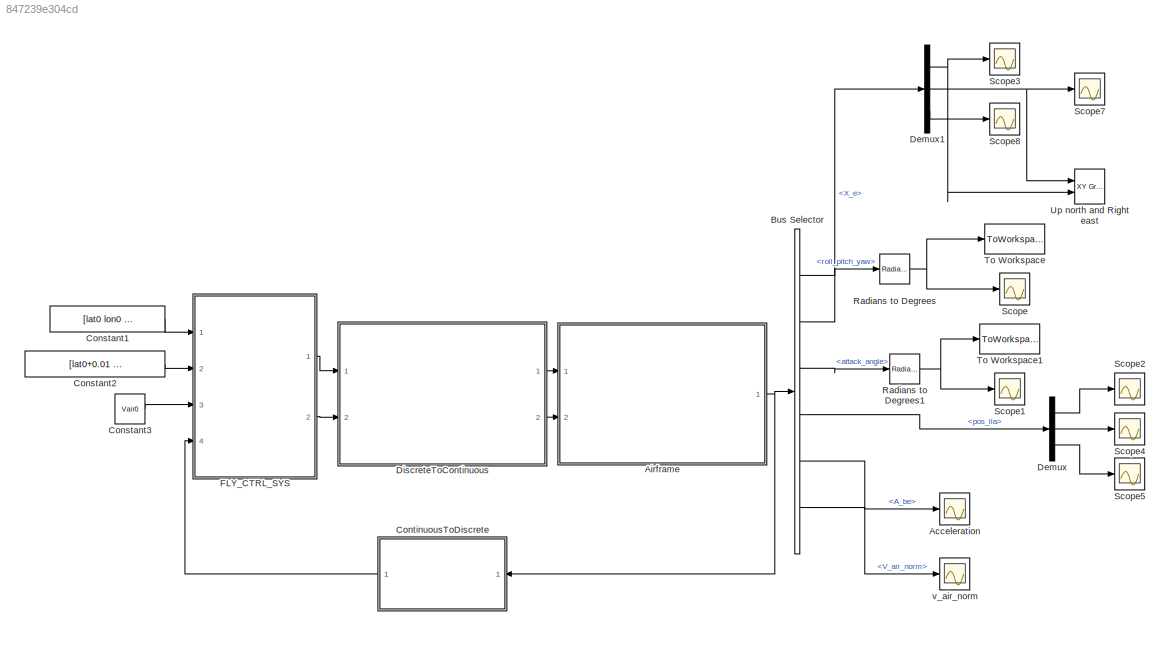
MODEL slx_847239e304cd
KIND model
CONFIG AbsTol = auto
CONFIG EnableMultiTasking = off
CONFIG FixedStep = dt
CONFIG MaxStep = auto
CONFIG MinStep = auto
CONFIG RelTol = 1e-3
CONFIG SampleTimeConstraint = Unconstrained
CONFIG Solver = FixedStepAuto
CONFIG SolverName = FixedStepAuto
CONFIG StartTime = 0.0
CONFIG StopTime = 100
BLOCK [Scope] Acceleration
  NumInputPorts = 1
  Ports = [1]
  ScopeSpecificationString = Simulink.scopes.TimeScopeBlockCfg('CurrentConfiguration', extmgr.ConfigurationSet(extmgr.Configuration('Core','General UI',true),extmgr.Configuration('Core','Source UI',true),extmgr.Configuration('Sources','WiredSimulink',true,'DataLoggingVariableName','ScopeData8'),extmgr.Configuration('Visuals','Time Domain',true,'SerializedDisplays',{struct('MinYLimReal','-1.15315','MaxYLimReal','1.57751','YLab...<+1738ch>
BLOCK [SubSystem] Airframe
  Ports = [2, 1]
  RequestExecContextInheritance = off
  Variant = off
BLOCK [Reference] Airframe/6DOF (Quaternion)  REF=shared6dof/6DOF (Euler Angles)
  Ports = [2, 9]
  SourceBlock = shared6dof/6DOF (Euler Angles)
  SourceProductBaseCode = AE
  SourceProductName = Aerospace Blockset
  SourceType = 6DOF EoM (Body Axis)
BLOCK [Inport] Airframe/ActuatorSurfaceInDegree
  IconDisplay = Port number
  OutDataTypeStr = Bus: ControlSurfaceInDegree
BLOCK [Sum] Airframe/Add
  InputSameDT = off
  Inputs = +++
  OutDataTypeStr = Inherit: Inherit via internal rule
  Ports = [3, 1]
  SaturateOnIntegerOverflow = off
BLOCK [BusCreator] Airframe/Bus Creator
  DisplayOption = bar
  InheritFromInputs = on
  Inputs = 13
  OutDataTypeStr = Bus: airframe
  Ports = [13, 1]
BLOCK [BusSelector] Airframe/Bus Selector
  OutputAsBus = off
  OutputSignals = DCM_be,V_air_norm,attack_angle,V_air_norm,omega_b
  Ports = [1, 5]
BLOCK [Constant] Airframe/Constant
  Value = 0
BLOCK [Constant] Airframe/Constant8
  Value = [0 0 mass0*g]
BLOCK [SubSystem] Airframe/FWAerodynamicsProduceForceAndMoment
  Ports = [4, 2]
  RequestExecContextInheritance = off
  Variant = off
BLOCK [Inport] Airframe/FWAerodynamicsProduceForceAndMoment/ActuatorSurfaceInDegree
  IconDisplay = Port number
  OutDataTypeStr = Bus: ControlSurfaceInDegree
BLOCK [Inport] Airframe/FWAerodynamicsProduceForceAndMoment/AlphaBetaInRadius
  IconDisplay = Port number
  Port = 2
BLOCK [BusSelector] Airframe/FWAerodynamicsProduceForceAndMoment/Bus Selector
  OutputAsBus = off
  OutputSignals = d_ea_l,d_ea_r,d_ca_l,d_ca_r,d_r_l,d_r_r
  Ports = [1, 6]
BLOCK [SubSystem] Airframe/FWAerodynamicsProduceForceAndMoment/CG position correction
  Ports = [5, 6]
  RequestExecContextInheritance = off
  Variant = off
BLOCK [Sum] Airframe/FWAerodynamicsProduceForceAndMoment/CG position correction/Add
  InputSameDT = off
  OutDataTypeStr = Inherit: Inherit via internal rule
  Ports = [2, 1]
  SaturateOnIntegerOverflow = off
BLOCK [Sum] Airframe/FWAerodynamicsProduceForceAndMoment/CG position correction/Add1
  InputSameDT = off
  OutDataTypeStr = Inherit: Inherit via internal rule
  Ports = [2, 1]
  SaturateOnIntegerOverflow = off
BLOCK [Sum] Airframe/FWAerodynamicsProduceForceAndMoment/CG position correction/Add2
  InputSameDT = off
  Inputs = +++
  OutDataTypeStr = Inherit: Inherit via internal rule
  Ports = [3, 1]
  SaturateOnIntegerOverflow = off
BLOCK [Sum] Airframe/FWAerodynamicsProduceForceAndMoment/CG position correction/Add3
  InputSameDT = off
  OutDataTypeStr = Inherit: Inherit via internal rule
  Ports = [2, 1]
  SaturateOnIntegerOverflow = off
BLOCK [Sum] Airframe/FWAerodynamicsProduceForceAndMoment/CG position correction/Add4
  InputSameDT = off
  Inputs = +-
  OutDataTypeStr = Inherit: Inherit via internal rule
  Ports = [2, 1]
  SaturateOnIntegerOverflow = off
BLOCK [Outport] Airframe/FWAerodynamicsProduceForceAndMoment/CG position correction/CD
  IconDisplay = Port number
  Port = 2
BLOCK [Outport] Airframe/FWAerodynamicsProduceForceAndMoment/CG position correction/CL
  IconDisplay = Port number
BLOCK [Outport] Airframe/FWAerodynamicsProduceForceAndMoment/CG position correction/CY
  IconDisplay = Port number
  Port = 3
BLOCK [Outport] Airframe/FWAerodynamicsProduceForceAndMoment/CG position correction/Cl
  IconDisplay = Port number
  Port = 4
BLOCK [Outport] Airframe/FWAerodynamicsProduceForceAndMoment/CG position correction/Cm
  IconDisplay = Port number
  Port = 5
BLOCK [Outport] Airframe/FWAerodynamicsProduceForceAndMoment/CG position correction/Cn
  IconDisplay = Port number
  Port = 6
BLOCK [Constant] Airframe/FWAerodynamicsProduceForceAndMoment/CG position correction/Constant1
  OutDataTypeStr = single
  Value = b_ref
BLOCK [Constant] Airframe/FWAerodynamicsProduceForceAndMoment/CG position correction/Constant2
  OutDataTypeStr = single
  Value = CG_ref_x
BLOCK [Constant] Airframe/FWAerodynamicsProduceForceAndMoment/CG position correction/Constant3
  OutDataTypeStr = single
  Value = c_bar
BLOCK [Constant] Airframe/FWAerodynamicsProduceForceAndMoment/CG position correction/Constant4
  OutDataTypeStr = single
  Value = CG_ref_z
BLOCK [Trigonometry] Airframe/FWAerodynamicsProduceForceAndMoment/CG position correction/Cos
  Operator = cos
  Ports = [1, 1]
BLOCK [Trigonometry] Airframe/FWAerodynamicsProduceForceAndMoment/CG position correction/Cos1
  Operator = cos
  Ports = [1, 1]
BLOCK [Reference] Airframe/FWAerodynamicsProduceForceAndMoment/CG position correction/Degrees to Radians  REF=simulink_extras/Transformations/Degrees to
Radians
  Ports = [1, 1]
  SourceBlock = simulink_extras/Transformations/Degrees to\nRadians
  SourceProductBaseCode = SL
  SourceProductName = Simulink
  SourceType = DegreesToRadians
BLOCK [Reference] Airframe/FWAerodynamicsProduceForceAndMoment/CG position correction/Degrees to Radians1  REF=simulink_extras/Transformations/Degrees to
Radians
  Ports = [1, 1]
  SourceBlock = simulink_extras/Transformations/Degrees to\nRadians
  SourceProductBaseCode = SL
  SourceProductName = Simulink
  SourceType = DegreesToRadians
BLOCK [Demux] Airframe/FWAerodynamicsProduceForceAndMoment/CG position correction/Demux
  DisplayOption = bar
  Outputs = 6
  Ports = [1, 6]
BLOCK [Product] Airframe/FWAerodynamicsProduceForceAndMoment/CG position correction/Divide1
  InputSameDT = off
  Inputs = */
  OutDataTypeStr = Inherit: Inherit via internal rule
  Ports = [2, 1]
  RndMeth = Floor
  SaturateOnIntegerOverflow = off
BLOCK [Product] Airframe/FWAerodynamicsProduceForceAndMoment/CG position correction/Divide2
  InputSameDT = off
  Inputs = */
  OutDataTypeStr = Inherit: Inherit via internal rule
  Ports = [2, 1]
  RndMeth = Floor
  SaturateOnIntegerOverflow = off
BLOCK [Product] Airframe/FWAerodynamicsProduceForceAndMoment/CG position correction/Divide3
  InputSameDT = off
  Inputs = */
  OutDataTypeStr = Inherit: Inherit via internal rule
  Ports = [2, 1]
  RndMeth = Floor
  SaturateOnIntegerOverflow = off
BLOCK [Product] Airframe/FWAerodynamicsProduceForceAndMoment/CG position correction/Divide4
  InputSameDT = off
  Inputs = */
  OutDataTypeStr = Inherit: Inherit via internal rule
  Ports = [2, 1]
  RndMeth = Floor
  SaturateOnIntegerOverflow = off
BLOCK [From] Airframe/FWAerodynamicsProduceForceAndMoment/CG position correction/From
  GotoTag = CL
BLOCK [From] Airframe/FWAerodynamicsProduceForceAndMoment/CG position correction/From1
  GotoTag = alpha
BLOCK [From] Airframe/FWAerodynamicsProduceForceAndMoment/CG position correction/From10
  GotoTag = CD
BLOCK [From] Airframe/FWAerodynamicsProduceForceAndMoment/CG position correction/From11
  GotoTag = CY
BLOCK [From] Airframe/FWAerodynamicsProduceForceAndMoment/CG position correction/From12
  GotoTag = z_CG
BLOCK [From] Airframe/FWAerodynamicsProduceForceAndMoment/CG position correction/From13
  GotoTag = CY
BLOCK [From] Airframe/FWAerodynamicsProduceForceAndMoment/CG position correction/From14
  GotoTag = CAX
BLOCK [From] Airframe/FWAerodynamicsProduceForceAndMoment/CG position correction/From2
  GotoTag = beta
BLOCK [From] Airframe/FWAerodynamicsProduceForceAndMoment/CG position correction/From3
  GotoTag = CD
BLOCK [From] Airframe/FWAerodynamicsProduceForceAndMoment/CG position correction/From4
  GotoTag = negative_CZ
BLOCK [From] Airframe/FWAerodynamicsProduceForceAndMoment/CG position correction/From5
  GotoTag = CY
BLOCK [From] Airframe/FWAerodynamicsProduceForceAndMoment/CG position correction/From6
  GotoTag = Cn
BLOCK [From] Airframe/FWAerodynamicsProduceForceAndMoment/CG position correction/From7
  GotoTag = Cm
BLOCK [From] Airframe/FWAerodynamicsProduceForceAndMoment/CG position correction/From76
  GotoTag = x_CG
BLOCK [From] Airframe/FWAerodynamicsProduceForceAndMoment/CG position correction/From8
  GotoTag = Cl
BLOCK [From] Airframe/FWAerodynamicsProduceForceAndMoment/CG position correction/From9
  GotoTag = CL
BLOCK [Goto] Airframe/FWAerodynamicsProduceForceAndMoment/CG position correction/Goto1
  GotoTag = CL
BLOCK [Goto] Airframe/FWAerodynamicsProduceForceAndMoment/CG position correction/Goto2
  GotoTag = CD
BLOCK [Goto] Airframe/FWAerodynamicsProduceForceAndMoment/CG position correction/Goto3
  GotoTag = negative_CZ
BLOCK [Goto] Airframe/FWAerodynamicsProduceForceAndMoment/CG position correction/Goto4
  GotoTag = CY
BLOCK [Goto] Airframe/FWAerodynamicsProduceForceAndMoment/CG position correction/Goto5
  GotoTag = Cl
BLOCK [Goto] Airframe/FWAerodynamicsProduceForceAndMoment/CG position correction/Goto6
  GotoTag = Cm
BLOCK [Goto] Airframe/FWAerodynamicsProduceForceAndMoment/CG position correction/Goto64
  GotoTag = alpha
BLOCK [Goto] Airframe/FWAerodynamicsProduceForceAndMoment/CG position correction/Goto65
  GotoTag = beta
BLOCK [Goto] Airframe/FWAerodynamicsProduceForceAndMoment/CG position correction/Goto66
  GotoTag = x_CG
BLOCK [Goto] Airframe/FWAerodynamicsProduceForceAndMoment/CG position correction/Goto7
  GotoTag = Cn
BLOCK [Goto] Airframe/FWAerodynamicsProduceForceAndMoment/CG position correction/Goto8
  GotoTag = z_CG
BLOCK [Goto] Airframe/FWAerodynamicsProduceForceAndMoment/CG position correction/Goto9
  GotoTag = CAX
BLOCK [Product] Airframe/FWAerodynamicsProduceForceAndMoment/CG position correction/Product
  InputSameDT = off
  OutDataTypeStr = Inherit: Inherit via internal rule
  Ports = [2, 1]
  RndMeth = Floor
  SaturateOnIntegerOverflow = off
BLOCK [Product] Airframe/FWAerodynamicsProduceForceAndMoment/CG position correction/Product1
  InputSameDT = off
  Inputs = 3
  OutDataTypeStr = Inherit: Inherit via internal rule
  Ports = [3, 1]
  RndMeth = Floor
  SaturateOnIntegerOverflow = off
BLOCK [Product] Airframe/FWAerodynamicsProduceForceAndMoment/CG position correction/Product2
  InputSameDT = off
  OutDataTypeStr = Inherit: Inherit via internal rule
  Ports = [2, 1]
  RndMeth = Floor
  SaturateOnIntegerOverflow = off
BLOCK [Product] Airframe/FWAerodynamicsProduceForceAndMoment/CG position correction/Product3
  InputSameDT = off
  OutDataTypeStr = Inherit: Inherit via internal rule
  Ports = [2, 1]
  RndMeth = Floor
  SaturateOnIntegerOverflow = off
BLOCK [Product] Airframe/FWAerodynamicsProduceForceAndMoment/CG position correction/Product4
  InputSameDT = off
  OutDataTypeStr = Inherit: Inherit via internal rule
  Ports = [2, 1]
  RndMeth = Floor
  SaturateOnIntegerOverflow = off
BLOCK [Product] Airframe/FWAerodynamicsProduceForceAndMoment/CG position correction/Product5
  InputSameDT = off
  Inputs = 3
  OutDataTypeStr = Inherit: Inherit via internal rule
  Ports = [3, 1]
  RndMeth = Floor
  SaturateOnIntegerOverflow = off
BLOCK [Product] Airframe/FWAerodynamicsProduceForceAndMoment/CG position correction/Product6
  InputSameDT = off
  OutDataTypeStr = Inherit: Inherit via internal rule
  Ports = [2, 1]
  RndMeth = Floor
  SaturateOnIntegerOverflow = off
BLOCK [Product] Airframe/FWAerodynamicsProduceForceAndMoment/CG position correction/Product7
  InputSameDT = off
  OutDataTypeStr = Inherit: Inherit via internal rule
  Ports = [2, 1]
  RndMeth = Floor
  SaturateOnIntegerOverflow = off
BLOCK [Sum] Airframe/FWAerodynamicsProduceForceAndMoment/CG position correction/Sum
  IconShape = round
  InputSameDT = off
  Inputs = |+-
  OutDataTypeStr = Inherit: Inherit via internal rule
  Ports = [2, 1]
  SaturateOnIntegerOverflow = off
BLOCK [Sum] Airframe/FWAerodynamicsProduceForceAndMoment/CG position correction/Sum1
  IconShape = round
  InputSameDT = off
  Inputs = |+-
  OutDataTypeStr = single
  Ports = [2, 1]
  SaturateOnIntegerOverflow = off
BLOCK [Trigonometry] Airframe/FWAerodynamicsProduceForceAndMoment/CG position correction/Trigonometric Function
  Ports = [1, 1]
BLOCK [Inport] Airframe/FWAerodynamicsProduceForceAndMoment/CG position correction/alpha
  IconDisplay = Port number
BLOCK [Inport] Airframe/FWAerodynamicsProduceForceAndMoment/CG position correction/beta
  IconDisplay = Port number
  Port = 2
BLOCK [Inport] Airframe/FWAerodynamicsProduceForceAndMoment/CG position correction/coef
  IconDisplay = Port number
  Port = 3
BLOCK [Inport] Airframe/FWAerodynamicsProduceForceAndMoment/CG position correction/x_CG
  IconDisplay = Port number
  Port = 4
BLOCK [Inport] Airframe/FWAerodynamicsProduceForceAndMoment/CG position correction/z_CG
  IconDisplay = Port number
  Port = 5
BLOCK [Constant] Airframe/FWAerodynamicsProduceForceAndMoment/Constant
  Value = x_CG
BLOCK [Constant] Airframe/FWAerodynamicsProduceForceAndMoment/Constant1
  Value = z_CG
BLOCK [Constant] Airframe/FWAerodynamicsProduceForceAndMoment/Constant3
  Value = rho
BLOCK [DataTypeConversion] Airframe/FWAerodynamicsProduceForceAndMoment/Data Type Conversion1
  OutDataTypeStr = single
  RndMeth = Floor
  SaturateOnIntegerOverflow = off
BLOCK [DataTypeConversion] Airframe/FWAerodynamicsProduceForceAndMoment/Data Type Conversion10
  OutDataTypeStr = single
  RndMeth = Floor
  SaturateOnIntegerOverflow = off
BLOCK [DataTypeConversion] Airframe/FWAerodynamicsProduceForceAndMoment/Data Type Conversion11
  OutDataTypeStr = single
  RndMeth = Floor
  SaturateOnIntegerOverflow = off
BLOCK [DataTypeConversion] Airframe/FWAerodynamicsProduceForceAndMoment/Data Type Conversion12
  OutDataTypeStr = single
  RndMeth = Floor
  SaturateOnIntegerOverflow = off
BLOCK [DataTypeConversion] Airframe/FWAerodynamicsProduceForceAndMoment/Data Type Conversion13
  OutDataTypeStr = single
  RndMeth = Floor
  SaturateOnIntegerOverflow = off
BLOCK [DataTypeConversion] Airframe/FWAerodynamicsProduceForceAndMoment/Data Type Conversion2
  OutDataTypeStr = double
  RndMeth = Floor
  SaturateOnIntegerOverflow = off
BLOCK [DataTypeConversion] Airframe/FWAerodynamicsProduceForceAndMoment/Data Type Conversion3
  OutDataTypeStr = single
  RndMeth = Floor
  SaturateOnIntegerOverflow = off
BLOCK [DataTypeConversion] Airframe/FWAerodynamicsProduceForceAndMoment/Data Type Conversion4
  OutDataTypeStr = single
  RndMeth = Floor
  SaturateOnIntegerOverflow = off
BLOCK [DataTypeConversion] Airframe/FWAerodynamicsProduceForceAndMoment/Data Type Conversion5
  OutDataTypeStr = single
  RndMeth = Floor
  SaturateOnIntegerOverflow = off
BLOCK [DataTypeConversion] Airframe/FWAerodynamicsProduceForceAndMoment/Data Type Conversion7
  OutDataTypeStr = single
  RndMeth = Floor
  SaturateOnIntegerOverflow = off
BLOCK [DataTypeConversion] Airframe/FWAerodynamicsProduceForceAndMoment/Data Type Conversion8
  OutDataTypeStr = single
  RndMeth = Floor
  SaturateOnIntegerOverflow = off
BLOCK [DataTypeConversion] Airframe/FWAerodynamicsProduceForceAndMoment/Data Type Conversion9
  OutDataTypeStr = single
  RndMeth = Floor
  SaturateOnIntegerOverflow = off
BLOCK [Demux] Airframe/FWAerodynamicsProduceForceAndMoment/Demux
  DisplayOption = bar
  Outputs = 2
  Ports = [1, 2]
BLOCK [Outport] Airframe/FWAerodynamicsProduceForceAndMoment/F_X,Y,Z
  IconDisplay = Port number
BLOCK [From] Airframe/FWAerodynamicsProduceForceAndMoment/From3
  GotoTag = qbar
BLOCK [Gain] Airframe/FWAerodynamicsProduceForceAndMoment/Gain
  Gain = 0.5
  OutDataTypeStr = Inherit: Inherit via internal rule
  ParamDataTypeStr = Inherit: Inherit via internal rule
  SaturateOnIntegerOverflow = off
BLOCK [Goto] Airframe/FWAerodynamicsProduceForceAndMoment/Goto1
  GotoTag = qbar
BLOCK [Outport] Airframe/FWAerodynamicsProduceForceAndMoment/M_L,M,N
  IconDisplay = Port number
  Port = 2
BLOCK [Mux] Airframe/FWAerodynamicsProduceForceAndMoment/Mux
  DisplayOption = bar
  Inputs = 6
  Ports = [6, 1]
BLOCK [Product] Airframe/FWAerodynamicsProduceForceAndMoment/Product
  InputSameDT = off
  OutDataTypeStr = Inherit: Inherit via internal rule
  Ports = [2, 1]
  RndMeth = Floor
  SaturateOnIntegerOverflow = off
BLOCK [Reference] Airframe/FWAerodynamicsProduceForceAndMoment/Radians to Degrees  REF=simulink_extras/Transformations/Radians
to Degrees
  Ports = [1, 1]
  SourceBlock = simulink_extras/Transformations/Radians\nto Degrees
  SourceProductBaseCode = SL
  SourceProductName = Simulink
  SourceType = RadiansToDegrees
BLOCK [Reference] Airframe/FWAerodynamicsProduceForceAndMoment/Radians to Degrees1  REF=simulink_extras/Transformations/Radians
to Degrees
  Ports = [1, 1]
  SourceBlock = simulink_extras/Transformations/Radians\nto Degrees
  SourceProductBaseCode = SL
  SourceProductName = Simulink
  SourceType = RadiansToDegrees
BLOCK [Math] Airframe/FWAerodynamicsProduceForceAndMoment/Square
  Operator = square
  Ports = [1, 1]
  RndMeth = Zero
BLOCK [Inport] Airframe/FWAerodynamicsProduceForceAndMoment/V_air
  IconDisplay = Port number
  Port = 3
BLOCK [SubSystem] Airframe/FWAerodynamicsProduceForceAndMoment/Xishuzhuanliju
  Ports = [3, 2]
  RequestExecContextInheritance = off
  Variant = off
BLOCK [Inport] Airframe/FWAerodynamicsProduceForceAndMoment/Xishuzhuanliju/Aero Coeff
  IconDisplay = Port number
  Port = 3
BLOCK [Outport] Airframe/FWAerodynamicsProduceForceAndMoment/Xishuzhuanliju/Aero F_X,Y,Z
  IconDisplay = Port number
BLOCK [Outport] Airframe/FWAerodynamicsProduceForceAndMoment/Xishuzhuanliju/Aero M_L,M,N
  IconDisplay = Port number
  Port = 2
BLOCK [Constant] Airframe/FWAerodynamicsProduceForceAndMoment/Xishuzhuanliju/Constant
  Value = [b_ref, c_bar, b_ref]
BLOCK [Demux] Airframe/FWAerodynamicsProduceForceAndMoment/Xishuzhuanliju/Demux
  DisplayOption = bar
  Outputs = 3
  Ports = [1, 3]
BLOCK [Demux] Airframe/FWAerodynamicsProduceForceAndMoment/Xishuzhuanliju/Demux3
  Outputs = [3,3]
  Ports = [1, 2]
BLOCK [Demux] Airframe/FWAerodynamicsProduceForceAndMoment/Xishuzhuanliju/Demux4
  DisplayOption = bar
  Outputs = 3
  Ports = [1, 3]
BLOCK [Reference] Airframe/FWAerodynamicsProduceForceAndMoment/Xishuzhuanliju/Direction Cosine Matrix Body to Wind1  REF=aerolibtransform2/Direction Cosine Matrix
Body to Wind
  Ports = [1, 1]
  SourceBlock = aerolibtransform2/Direction Cosine Matrix\nBody to Wind
  SourceProductBaseCode = AE
  SourceProductName = Aerospace Blockset
  SourceType = DCM Body to Wind
BLOCK [From] Airframe/FWAerodynamicsProduceForceAndMoment/Xishuzhuanliju/From
  GotoTag = Lift
BLOCK [From] Airframe/FWAerodynamicsProduceForceAndMoment/Xishuzhuanliju/From1
  GotoTag = FY
BLOCK [From] Airframe/FWAerodynamicsProduceForceAndMoment/Xishuzhuanliju/From2
  GotoTag = Drag
BLOCK [Gain] Airframe/FWAerodynamicsProduceForceAndMoment/Xishuzhuanliju/Gain
  Gain = -1
  OutDataTypeStr = Inherit: Inherit via internal rule
  ParamDataTypeStr = Inherit: Inherit via internal rule
  SaturateOnIntegerOverflow = off
BLOCK [Gain] Airframe/FWAerodynamicsProduceForceAndMoment/Xishuzhuanliju/Gain1
  Gain = -1
  OutDataTypeStr = Inherit: Inherit via internal rule
  ParamDataTypeStr = Inherit: Inherit via internal rule
  SaturateOnIntegerOverflow = off
BLOCK [Goto] Airframe/FWAerodynamicsProduceForceAndMoment/Xishuzhuanliju/Goto1
  GotoTag = FY
BLOCK [Goto] Airframe/FWAerodynamicsProduceForceAndMoment/Xishuzhuanliju/Goto2
  GotoTag = Lift
BLOCK [Goto] Airframe/FWAerodynamicsProduceForceAndMoment/Xishuzhuanliju/Goto3
  GotoTag = Drag
BLOCK [Mux] Airframe/FWAerodynamicsProduceForceAndMoment/Xishuzhuanliju/Mux1
  DisplayOption = bar
  Inputs = 3
  Ports = [3, 1]
BLOCK [Mux] Airframe/FWAerodynamicsProduceForceAndMoment/Xishuzhuanliju/Mux3
  DisplayOption = bar
  Inputs = 3
  Ports = [3, 1]
BLOCK [Product] Airframe/FWAerodynamicsProduceForceAndMoment/Xishuzhuanliju/Product1
  Ports = [2, 1]
  RndMeth = Floor
BLOCK [Product] Airframe/FWAerodynamicsProduceForceAndMoment/Xishuzhuanliju/Product4
  Ports = [2, 1]
  RndMeth = Floor
BLOCK [Product] Airframe/FWAerodynamicsProduceForceAndMoment/Xishuzhuanliju/Product5
  Multiplication = Matrix(*)
  Ports = [2, 1]
  RndMeth = Floor
BLOCK [Terminator] Airframe/FWAerodynamicsProduceForceAndMoment/Xishuzhuanliju/Terminator
BLOCK [Math] Airframe/FWAerodynamicsProduceForceAndMoment/Xishuzhuanliju/Transpose1
  Operator = transpose
  Ports = [1, 1]
BLOCK [Constant] Airframe/FWAerodynamicsProduceForceAndMoment/Xishuzhuanliju/Virtual CY
  Value = 0
BLOCK [Inport] Airframe/FWAerodynamicsProduceForceAndMoment/Xishuzhuanliju/alpha & bet
  IconDisplay = Port number
BLOCK [Inport] Airframe/FWAerodynamicsProduceForceAndMoment/Xishuzhuanliju/qbar
  IconDisplay = Port number
  Port = 2
BLOCK [Gain] Airframe/FWAerodynamicsProduceForceAndMoment/Xishuzhuanliju/r
  Gain = S_ref
BLOCK [SubSystem] Airframe/FWAerodynamicsProduceForceAndMoment/alpha & beta only lookup
  Ports = [2, 2]
  RequestExecContextInheritance = off
  Variant = off
BLOCK [BusSelector] Airframe/FWAerodynamicsProduceForceAndMoment/alpha & beta only lookup/Bus Selector
  OutputAsBus = off
  OutputSignals = signal1,signal2
  Ports = [1, 2]
BLOCK [BusSelector] Airframe/FWAerodynamicsProduceForceAndMoment/alpha & beta only lookup/Bus Selector1
  OutputAsBus = off
  OutputSignals = signal1,signal2
  Ports = [1, 2]
BLOCK [Interpolation_n-D] Airframe/FWAerodynamicsProduceForceAndMoment/alpha & beta only lookup/CD_alpha_beta
  InputPortMap = u0,u1,u2,u3
  IntermediateResultsDataTypeStr = Inherit: Inherit via internal rule
  OutDataTypeStr = single
  Ports = [4, 1]
  Table = DCX_beta{2}
BLOCK [Interpolation_n-D] Airframe/FWAerodynamicsProduceForceAndMoment/alpha & beta only lookup/CD_alpha_lookup
  InputPortMap = u0,u1
  IntermediateResultsDataTypeStr = Inherit: Inherit via internal rule
  NumberOfTableDimensions = 1
  OutDataTypeStr = single
  Ports = [2, 1]
  Table = DCD_alpha
BLOCK [Interpolation_n-D] Airframe/FWAerodynamicsProduceForceAndMoment/alpha & beta only lookup/CL_alpha_beta
  InputPortMap = u0,u1,u2,u3
  IntermediateResultsDataTypeStr = Inherit: Inherit via internal rule
  OutDataTypeStr = single
  Ports = [4, 1]
  Table = DCX_beta{1}
BLOCK [Interpolation_n-D] Airframe/FWAerodynamicsProduceForceAndMoment/alpha & beta only lookup/CY_alpha_beta
  InputPortMap = u0,u1,u2,u3
  IntermediateResultsDataTypeStr = Inherit: Inherit via internal rule
  OutDataTypeStr = single
  Ports = [4, 1]
  Table = DCX_beta{4}
BLOCK [Interpolation_n-D] Airframe/FWAerodynamicsProduceForceAndMoment/alpha & beta only lookup/Cl_alpha_beta
  InputPortMap = u0,u1,u2,u3
  IntermediateResultsDataTypeStr = Inherit: Inherit via internal rule
  OutDataTypeStr = single
  Ports = [4, 1]
  Table = DCX_beta{6}
BLOCK [Interpolation_n-D] Airframe/FWAerodynamicsProduceForceAndMoment/alpha & beta only lookup/Cm_alpha_beta
  InputPortMap = u0,u1,u2,u3
  IntermediateResultsDataTypeStr = Inherit: Inherit via internal rule
  OutDataTypeStr = single
  Ports = [4, 1]
  Table = DCX_beta{3}
BLOCK [Interpolation_n-D] Airframe/FWAerodynamicsProduceForceAndMoment/alpha & beta only lookup/Cn_alpha_beta
  InputPortMap = u0,u1,u2,u3
  IntermediateResultsDataTypeStr = Inherit: Inherit via internal rule
  OutDataTypeStr = single
  Ports = [4, 1]
  Table = DCX_beta{5}
BLOCK [Interpolation_n-D] Airframe/FWAerodynamicsProduceForceAndMoment/alpha & beta only lookup/DCL_alpha_lookup
  InputPortMap = u0,u1
  IntermediateResultsDataTypeStr = Inherit: Inherit via internal rule
  NumberOfTableDimensions = 1
  OutDataTypeStr = single
  Ports = [2, 1]
  Table = D_CL_alpha
BLOCK [Outport] Airframe/FWAerodynamicsProduceForceAndMoment/alpha & beta only lookup/DCX_alpha
  IconDisplay = Port number
BLOCK [Outport] Airframe/FWAerodynamicsProduceForceAndMoment/alpha & beta only lookup/DCX_beta
  IconDisplay = Port number
  Port = 2
BLOCK [Interpolation_n-D] Airframe/FWAerodynamicsProduceForceAndMoment/alpha & beta only lookup/DCm_alpha_lookup
  InputPortMap = u0,u1
  IntermediateResultsDataTypeStr = Inherit: Inherit via internal rule
  NumberOfTableDimensions = 1
  OutDataTypeStr = single
  Ports = [2, 1]
  Table = D_Cm_alpha
BLOCK [From] Airframe/FWAerodynamicsProduceForceAndMoment/alpha & beta only lookup/From
  GotoTag = alpha_k
BLOCK [From] Airframe/FWAerodynamicsProduceForceAndMoment/alpha & beta only lookup/From1
  GotoTag = alpha_k
BLOCK [From] Airframe/FWAerodynamicsProduceForceAndMoment/alpha & beta only lookup/From10
  GotoTag = alpha_f
BLOCK [From] Airframe/FWAerodynamicsProduceForceAndMoment/alpha & beta only lookup/From11
  GotoTag = alpha_f
BLOCK [From] Airframe/FWAerodynamicsProduceForceAndMoment/alpha & beta only lookup/From12
  GotoTag = beta_k
BLOCK [From] Airframe/FWAerodynamicsProduceForceAndMoment/alpha & beta only lookup/From13
  GotoTag = beta_k
BLOCK [From] Airframe/FWAerodynamicsProduceForceAndMoment/alpha & beta only lookup/From14
  GotoTag = beta_k
BLOCK [From] Airframe/FWAerodynamicsProduceForceAndMoment/alpha & beta only lookup/From15
  GotoTag = beta_k
BLOCK [From] Airframe/FWAerodynamicsProduceForceAndMoment/alpha & beta only lookup/From16
  GotoTag = beta_k
BLOCK [From] Airframe/FWAerodynamicsProduceForceAndMoment/alpha & beta only lookup/From17
  GotoTag = beta_k
BLOCK [From] Airframe/FWAerodynamicsProduceForceAndMoment/alpha & beta only lookup/From18
  GotoTag = beta_f
BLOCK [From] Airframe/FWAerodynamicsProduceForceAndMoment/alpha & beta only lookup/From19
  GotoTag = beta_f
BLOCK [From] Airframe/FWAerodynamicsProduceForceAndMoment/alpha & beta only lookup/From2
  GotoTag = alpha_k
BLOCK [From] Airframe/FWAerodynamicsProduceForceAndMoment/alpha & beta only lookup/From20
  GotoTag = beta_f
BLOCK [From] Airframe/FWAerodynamicsProduceForceAndMoment/alpha & beta only lookup/From21
  GotoTag = beta_f
BLOCK [From] Airframe/FWAerodynamicsProduceForceAndMoment/alpha & beta only lookup/From22
  GotoTag = beta_f
BLOCK [From] Airframe/FWAerodynamicsProduceForceAndMoment/alpha & beta only lookup/From23
  GotoTag = beta_f
BLOCK [From] Airframe/FWAerodynamicsProduceForceAndMoment/alpha & beta only lookup/From24
  GotoTag = alpha_k
BLOCK [From] Airframe/FWAerodynamicsProduceForceAndMoment/alpha & beta only lookup/From25
  GotoTag = alpha_f
BLOCK [From] Airframe/FWAerodynamicsProduceForceAndMoment/alpha & beta only lookup/From26
  GotoTag = alpha_k
BLOCK [From] Airframe/FWAerodynamicsProduceForceAndMoment/alpha & beta only lookup/From27
  GotoTag = alpha_f
BLOCK [From] Airframe/FWAerodynamicsProduceForceAndMoment/alpha & beta only lookup/From28
  GotoTag = alpha_k
BLOCK [From] Airframe/FWAerodynamicsProduceForceAndMoment/alpha & beta only lookup/From29
  GotoTag = alpha_f
BLOCK [From] Airframe/FWAerodynamicsProduceForceAndMoment/alpha & beta only lookup/From3
  GotoTag = alpha_k
BLOCK [From] Airframe/FWAerodynamicsProduceForceAndMoment/alpha & beta only lookup/From30
  GotoTag = DCL_beta
BLOCK [From] Airframe/FWAerodynamicsProduceForceAndMoment/alpha & beta only lookup/From31
  GotoTag = DCD_beta
BLOCK [From] Airframe/FWAerodynamicsProduceForceAndMoment/alpha & beta only lookup/From32
  GotoTag = DCY_beta
BLOCK [From] Airframe/FWAerodynamicsProduceForceAndMoment/alpha & beta only lookup/From33
  GotoTag = DCl_beta
BLOCK [From] Airframe/FWAerodynamicsProduceForceAndMoment/alpha & beta only lookup/From34
  GotoTag = DCm_beta
BLOCK [From] Airframe/FWAerodynamicsProduceForceAndMoment/alpha & beta only lookup/From35
  GotoTag = DCn_beta
BLOCK [From] Airframe/FWAerodynamicsProduceForceAndMoment/alpha & beta only lookup/From4
  GotoTag = alpha_k
BLOCK [From] Airframe/FWAerodynamicsProduceForceAndMoment/alpha & beta only lookup/From5
  GotoTag = alpha_k
BLOCK [From] Airframe/FWAerodynamicsProduceForceAndMoment/alpha & beta only lookup/From6
  GotoTag = alpha_f
BLOCK [From] Airframe/FWAerodynamicsProduceForceAndMoment/alpha & beta only lookup/From7
  GotoTag = alpha_f
BLOCK [From] Airframe/FWAerodynamicsProduceForceAndMoment/alpha & beta only lookup/From8
  GotoTag = alpha_f
BLOCK [From] Airframe/FWAerodynamicsProduceForceAndMoment/alpha & beta only lookup/From9
  GotoTag = alpha_f
BLOCK [Goto] Airframe/FWAerodynamicsProduceForceAndMoment/alpha & beta only lookup/Goto1
  GotoTag = DCL_beta
BLOCK [Goto] Airframe/FWAerodynamicsProduceForceAndMoment/alpha & beta only lookup/Goto10
  GotoTag = beta_k
BLOCK [Goto] Airframe/FWAerodynamicsProduceForceAndMoment/alpha & beta only lookup/Goto11
  GotoTag = beta_f
BLOCK [Goto] Airframe/FWAerodynamicsProduceForceAndMoment/alpha & beta only lookup/Goto2
  GotoTag = DCD_beta
BLOCK [Goto] Airframe/FWAerodynamicsProduceForceAndMoment/alpha & beta only lookup/Goto3
  GotoTag = DCY_beta
BLOCK [Goto] Airframe/FWAerodynamicsProduceForceAndMoment/alpha & beta only lookup/Goto4
  GotoTag = DCl_beta
BLOCK [Goto] Airframe/FWAerodynamicsProduceForceAndMoment/alpha & beta only lookup/Goto5
  GotoTag = DCm_beta
BLOCK [Goto] Airframe/FWAerodynamicsProduceForceAndMoment/alpha & beta only lookup/Goto6
  GotoTag = DCn_beta
BLOCK [Goto] Airframe/FWAerodynamicsProduceForceAndMoment/alpha & beta only lookup/Goto8
  GotoTag = alpha_k
BLOCK [Goto] Airframe/FWAerodynamicsProduceForceAndMoment/alpha & beta only lookup/Goto9
  GotoTag = alpha_f
BLOCK [Mux] Airframe/FWAerodynamicsProduceForceAndMoment/alpha & beta only lookup/Mux
  DisplayOption = bar
  Inputs = 3
  Ports = [3, 1]
BLOCK [Mux] Airframe/FWAerodynamicsProduceForceAndMoment/alpha & beta only lookup/Mux1
  DisplayOption = bar
  Inputs = 6
  Ports = [6, 1]
BLOCK [Inport] Airframe/FWAerodynamicsProduceForceAndMoment/alpha & beta only lookup/pre_alpha
  IconDisplay = Port number
BLOCK [Inport] Airframe/FWAerodynamicsProduceForceAndMoment/alpha & beta only lookup/pre_beta
  IconDisplay = Port number
  Port = 2
BLOCK [SubSystem] Airframe/FWAerodynamicsProduceForceAndMoment/control surfaces look up
  Ports = [3, 1]
  RequestExecContextInheritance = off
  Variant = off
BLOCK [BusSelector] Airframe/FWAerodynamicsProduceForceAndMoment/control surfaces look up/Bus Selector
  OutputAsBus = off
  OutputSignals = pre_d_ea_l,pre_d_ea_r,pre_d_ca_l,pre_d_ca_r,pre_d_r_l,pre_d_r_r
  Ports = [1, 6]
BLOCK [Outport] Airframe/FWAerodynamicsProduceForceAndMoment/control surfaces look up/DCX_actuators
  IconDisplay = Port number
BLOCK [From] Airframe/FWAerodynamicsProduceForceAndMoment/control surfaces look up/From
  GotoTag = D_ra_l
BLOCK [From] Airframe/FWAerodynamicsProduceForceAndMoment/control surfaces look up/From1
  GotoTag = D_ea_l
BLOCK [From] Airframe/FWAerodynamicsProduceForceAndMoment/control surfaces look up/From10
  GotoTag = pre_d_ea_r
BLOCK [From] Airframe/FWAerodynamicsProduceForceAndMoment/control surfaces look up/From12
  GotoTag = D_ra_r
BLOCK [From] Airframe/FWAerodynamicsProduceForceAndMoment/control surfaces look up/From13
  GotoTag = pre_d_r_r
BLOCK [From] Airframe/FWAerodynamicsProduceForceAndMoment/control surfaces look up/From16
  GotoTag = pre_d_ca_l
BLOCK [From] Airframe/FWAerodynamicsProduceForceAndMoment/control surfaces look up/From19
  GotoTag = pre_d_ca_r
BLOCK [From] Airframe/FWAerodynamicsProduceForceAndMoment/control surfaces look up/From20
  GotoTag = D_ea_r
BLOCK [From] Airframe/FWAerodynamicsProduceForceAndMoment/control surfaces look up/From22
  GotoTag = D_ca_l
BLOCK [From] Airframe/FWAerodynamicsProduceForceAndMoment/control surfaces look up/From23
  GotoTag = D_ca_r
BLOCK [From] Airframe/FWAerodynamicsProduceForceAndMoment/control surfaces look up/From4
  GotoTag = pre_d_r_l
BLOCK [From] Airframe/FWAerodynamicsProduceForceAndMoment/control surfaces look up/From7
  GotoTag = pre_d_ea_l
BLOCK [Gain] Airframe/FWAerodynamicsProduceForceAndMoment/control surfaces look up/Gain
  Gain = 0.5
  OutDataTypeStr = Inherit: Inherit via internal rule
  ParamDataTypeStr = Inherit: Inherit via internal rule
  SaturateOnIntegerOverflow = off
BLOCK [Gain] Airframe/FWAerodynamicsProduceForceAndMoment/control surfaces look up/Gain1
  Gain = 0.5
  OutDataTypeStr = Inherit: Inherit via internal rule
  ParamDataTypeStr = Inherit: Inherit via internal rule
  SaturateOnIntegerOverflow = off
BLOCK [Goto] Airframe/FWAerodynamicsProduceForceAndMoment/control surfaces look up/Goto10
  GotoTag = D_ca_l
BLOCK [Goto] Airframe/FWAerodynamicsProduceForceAndMoment/control surfaces look up/Goto12
  GotoTag = D_ea_l
BLOCK [Goto] Airframe/FWAerodynamicsProduceForceAndMoment/control surfaces look up/Goto13
  GotoTag = D_ca_r
BLOCK [Goto] Airframe/FWAerodynamicsProduceForceAndMoment/control surfaces look up/Goto17
  GotoTag = D_ra_r
BLOCK [Goto] Airframe/FWAerodynamicsProduceForceAndMoment/control surfaces look up/Goto2
  GotoTag = pre_d_r_l
BLOCK [Goto] Airframe/FWAerodynamicsProduceForceAndMoment/control surfaces look up/Goto3
  GotoTag = pre_d_ea_l
BLOCK [Goto] Airframe/FWAerodynamicsProduceForceAndMoment/control surfaces look up/Goto4
  GotoTag = pre_d_ea_r
BLOCK [Goto] Airframe/FWAerodynamicsProduceForceAndMoment/control surfaces look up/Goto5
  GotoTag = pre_d_r_r
BLOCK [Goto] Airframe/FWAerodynamicsProduceForceAndMoment/control surfaces look up/Goto6
  GotoTag = pre_d_ca_l
BLOCK [Goto] Airframe/FWAerodynamicsProduceForceAndMoment/control surfaces look up/Goto7
  GotoTag = pre_d_ca_r
BLOCK [Goto] Airframe/FWAerodynamicsProduceForceAndMoment/control surfaces look up/Goto8
  GotoTag = D_ra_l
BLOCK [Goto] Airframe/FWAerodynamicsProduceForceAndMoment/control surfaces look up/Goto9
  GotoTag = D_ea_r
BLOCK [Mux] Airframe/FWAerodynamicsProduceForceAndMoment/control surfaces look up/Mux1
  DisplayOption = bar
  Inputs = 6
  Ports = [6, 1]
BLOCK [Mux] Airframe/FWAerodynamicsProduceForceAndMoment/control surfaces look up/Mux2
  DisplayOption = bar
  Inputs = 6
  Ports = [6, 1]
BLOCK [Mux] Airframe/FWAerodynamicsProduceForceAndMoment/control surfaces look up/Mux3
  DisplayOption = bar
  Inputs = 6
  Ports = [6, 1]
BLOCK [Mux] Airframe/FWAerodynamicsProduceForceAndMoment/control surfaces look up/Mux4
  DisplayOption = bar
  Inputs = 6
  Ports = [6, 1]
BLOCK [Mux] Airframe/FWAerodynamicsProduceForceAndMoment/control surfaces look up/Mux5
  DisplayOption = bar
  Inputs = 6
  Ports = [6, 1]
BLOCK [Mux] Airframe/FWAerodynamicsProduceForceAndMoment/control surfaces look up/Mux6
  DisplayOption = bar
  Inputs = 6
  Ports = [6, 1]
BLOCK [Mux] Airframe/FWAerodynamicsProduceForceAndMoment/control surfaces look up/Mux8
  DisplayOption = bar
  Inputs = 6
  Ports = [6, 1]
BLOCK [SubSystem] Airframe/FWAerodynamicsProduceForceAndMoment/control surfaces look up/canard_left
  Ports = [3, 6]
  RequestExecContextInheritance = off
  Variant = off
BLOCK [BusSelector] Airframe/FWAerodynamicsProduceForceAndMoment/control surfaces look up/canard_left/Bus Selector
  OutputAsBus = off
  OutputSignals = signal1,signal2
  Ports = [1, 2]
BLOCK [BusSelector] Airframe/FWAerodynamicsProduceForceAndMoment/control surfaces look up/canard_left/Bus Selector1
  OutputAsBus = off
  OutputSignals = signal1,signal2
  Ports = [1, 2]
BLOCK [BusSelector] Airframe/FWAerodynamicsProduceForceAndMoment/control surfaces look up/canard_left/Bus Selector2
  OutputAsBus = off
  OutputSignals = signal1,signal2
  Ports = [1, 2]
BLOCK [Interpolation_n-D] Airframe/FWAerodynamicsProduceForceAndMoment/control surfaces look up/canard_left/DCD(alpha,beta,d_ca_l)
  InputPortMap = u0,u1,u2,u3,u4,u5
  IntermediateResultsDataTypeStr = Inherit: Inherit via internal rule
  NumberOfTableDimensions = 3
  OutDataTypeStr = single
  Ports = [6, 1]
  Table = CX_d_ca_l{2}
BLOCK [Outport] Airframe/FWAerodynamicsProduceForceAndMoment/control surfaces look up/canard_left/DCD_d_ca_l
  IconDisplay = Port number
  Port = 2
BLOCK [Interpolation_n-D] Airframe/FWAerodynamicsProduceForceAndMoment/control surfaces look up/canard_left/DCL(alpha,beta,d_ca_l)
  InputPortMap = u0,u1,u2,u3,u4,u5
  IntermediateResultsDataTypeStr = Inherit: Inherit via internal rule
  NumberOfTableDimensions = 3
  OutDataTypeStr = single
  Ports = [6, 1]
  Table = CX_d_ca_l{1}
BLOCK [Outport] Airframe/FWAerodynamicsProduceForceAndMoment/control surfaces look up/canard_left/DCL_d_ca_l
  IconDisplay = Port number
BLOCK [Interpolation_n-D] Airframe/FWAerodynamicsProduceForceAndMoment/control surfaces look up/canard_left/DCY(alpha,beta,d_ca_l)
  InputPortMap = u0,u1,u2,u3,u4,u5
  IntermediateResultsDataTypeStr = Inherit: Inherit via internal rule
  NumberOfTableDimensions = 3
  OutDataTypeStr = single
  Ports = [6, 1]
  Table = CX_d_ca_l{4}
BLOCK [Outport] Airframe/FWAerodynamicsProduceForceAndMoment/control surfaces look up/canard_left/DCY_d_ca_l
  IconDisplay = Port number
  Port = 3
BLOCK [Interpolation_n-D] Airframe/FWAerodynamicsProduceForceAndMoment/control surfaces look up/canard_left/DCl(alpha,beta,d_ca_l)
  InputPortMap = u0,u1,u2,u3,u4,u5
  IntermediateResultsDataTypeStr = Inherit: Inherit via internal rule
  NumberOfTableDimensions = 3
  OutDataTypeStr = single
  Ports = [6, 1]
  Table = CX_d_ca_l{6}
BLOCK [Outport] Airframe/FWAerodynamicsProduceForceAndMoment/control surfaces look up/canard_left/DCl_d_ca_l
  IconDisplay = Port number
  Port = 4
BLOCK [Interpolation_n-D] Airframe/FWAerodynamicsProduceForceAndMoment/control surfaces look up/canard_left/DCm(alpha,beta,d_ca_l)
  InputPortMap = u0,u1,u2,u3,u4,u5
  IntermediateResultsDataTypeStr = Inherit: Inherit via internal rule
  NumberOfTableDimensions = 3
  OutDataTypeStr = single
  Ports = [6, 1]
  Table = CX_d_ca_l{3}
BLOCK [Outport] Airframe/FWAerodynamicsProduceForceAndMoment/control surfaces look up/canard_left/DCm_d_ca_l
  IconDisplay = Port number
  Port = 5
BLOCK [Interpolation_n-D] Airframe/FWAerodynamicsProduceForceAndMoment/control surfaces look up/canard_left/DCn(alpha,beta,d_ca_l)
  InputPortMap = u0,u1,u2,u3,u4,u5
  IntermediateResultsDataTypeStr = Inherit: Inherit via internal rule
  NumberOfTableDimensions = 3
  OutDataTypeStr = single
  Ports = [6, 1]
  Table = CX_d_ca_l{5}
BLOCK [Outport] Airframe/FWAerodynamicsProduceForceAndMoment/control surfaces look up/canard_left/DCn_d_ca_l
  IconDisplay = Port number
  Port = 6
BLOCK [From] Airframe/FWAerodynamicsProduceForceAndMoment/control surfaces look up/canard_left/From
  GotoTag = d_ca_l_k
BLOCK [From] Airframe/FWAerodynamicsProduceForceAndMoment/control surfaces look up/canard_left/From1
  GotoTag = d_ca_l_f
BLOCK [From] Airframe/FWAerodynamicsProduceForceAndMoment/control surfaces look up/canard_left/From10
  GotoTag = alpha_f
BLOCK [From] Airframe/FWAerodynamicsProduceForceAndMoment/control surfaces look up/canard_left/From11
  GotoTag = alpha_f
BLOCK [From] Airframe/FWAerodynamicsProduceForceAndMoment/control surfaces look up/canard_left/From12
  GotoTag = alpha_f
BLOCK [From] Airframe/FWAerodynamicsProduceForceAndMoment/control surfaces look up/canard_left/From13
  GotoTag = alpha_f
BLOCK [From] Airframe/FWAerodynamicsProduceForceAndMoment/control surfaces look up/canard_left/From14
  GotoTag = beta_k
BLOCK [From] Airframe/FWAerodynamicsProduceForceAndMoment/control surfaces look up/canard_left/From15
  GotoTag = beta_k
BLOCK [From] Airframe/FWAerodynamicsProduceForceAndMoment/control surfaces look up/canard_left/From16
  GotoTag = beta_k
BLOCK [From] Airframe/FWAerodynamicsProduceForceAndMoment/control surfaces look up/canard_left/From17
  GotoTag = beta_k
BLOCK [From] Airframe/FWAerodynamicsProduceForceAndMoment/control surfaces look up/canard_left/From18
  GotoTag = beta_k
BLOCK [From] Airframe/FWAerodynamicsProduceForceAndMoment/control surfaces look up/canard_left/From19
  GotoTag = beta_k
BLOCK [From] Airframe/FWAerodynamicsProduceForceAndMoment/control surfaces look up/canard_left/From2
  GotoTag = alpha_k
BLOCK [From] Airframe/FWAerodynamicsProduceForceAndMoment/control surfaces look up/canard_left/From20
  GotoTag = beta_f
BLOCK [From] Airframe/FWAerodynamicsProduceForceAndMoment/control surfaces look up/canard_left/From21
  GotoTag = beta_f
BLOCK [From] Airframe/FWAerodynamicsProduceForceAndMoment/control surfaces look up/canard_left/From22
  GotoTag = beta_f
BLOCK [From] Airframe/FWAerodynamicsProduceForceAndMoment/control surfaces look up/canard_left/From23
  GotoTag = beta_f
BLOCK [From] Airframe/FWAerodynamicsProduceForceAndMoment/control surfaces look up/canard_left/From24
  GotoTag = beta_f
BLOCK [From] Airframe/FWAerodynamicsProduceForceAndMoment/control surfaces look up/canard_left/From25
  GotoTag = beta_f
BLOCK [From] Airframe/FWAerodynamicsProduceForceAndMoment/control surfaces look up/canard_left/From26
  GotoTag = d_ca_l_k
BLOCK [From] Airframe/FWAerodynamicsProduceForceAndMoment/control surfaces look up/canard_left/From27
  GotoTag = d_ca_l_f
BLOCK [From] Airframe/FWAerodynamicsProduceForceAndMoment/control surfaces look up/canard_left/From28
  GotoTag = d_ca_l_k
BLOCK [From] Airframe/FWAerodynamicsProduceForceAndMoment/control surfaces look up/canard_left/From29
  GotoTag = d_ca_l_f
BLOCK [From] Airframe/FWAerodynamicsProduceForceAndMoment/control surfaces look up/canard_left/From3
  GotoTag = alpha_k
BLOCK [From] Airframe/FWAerodynamicsProduceForceAndMoment/control surfaces look up/canard_left/From30
  GotoTag = d_ca_l_k
BLOCK [From] Airframe/FWAerodynamicsProduceForceAndMoment/control surfaces look up/canard_left/From31
  GotoTag = d_ca_l_f
BLOCK [From] Airframe/FWAerodynamicsProduceForceAndMoment/control surfaces look up/canard_left/From32
  GotoTag = d_ca_l_k
BLOCK [From] Airframe/FWAerodynamicsProduceForceAndMoment/control surfaces look up/canard_left/From33
  GotoTag = d_ca_l_f
BLOCK [From] Airframe/FWAerodynamicsProduceForceAndMoment/control surfaces look up/canard_left/From34
  GotoTag = d_ca_l_k
BLOCK [From] Airframe/FWAerodynamicsProduceForceAndMoment/control surfaces look up/canard_left/From35
  GotoTag = d_ca_l_f
BLOCK [From] Airframe/FWAerodynamicsProduceForceAndMoment/control surfaces look up/canard_left/From4
  GotoTag = alpha_k
BLOCK [From] Airframe/FWAerodynamicsProduceForceAndMoment/control surfaces look up/canard_left/From5
  GotoTag = alpha_k
BLOCK [From] Airframe/FWAerodynamicsProduceForceAndMoment/control surfaces look up/canard_left/From6
  GotoTag = alpha_k
BLOCK [From] Airframe/FWAerodynamicsProduceForceAndMoment/control surfaces look up/canard_left/From7
  GotoTag = alpha_k
BLOCK [From] Airframe/FWAerodynamicsProduceForceAndMoment/control surfaces look up/canard_left/From8
  GotoTag = alpha_f
BLOCK [From] Airframe/FWAerodynamicsProduceForceAndMoment/control surfaces look up/canard_left/From9
  GotoTag = alpha_f
BLOCK [Goto] Airframe/FWAerodynamicsProduceForceAndMoment/control surfaces look up/canard_left/Goto14
  GotoTag = alpha_k
BLOCK [Goto] Airframe/FWAerodynamicsProduceForceAndMoment/control surfaces look up/canard_left/Goto15
  GotoTag = alpha_f
BLOCK [Goto] Airframe/FWAerodynamicsProduceForceAndMoment/control surfaces look up/canard_left/Goto16
  GotoTag = beta_k
BLOCK [Goto] Airframe/FWAerodynamicsProduceForceAndMoment/control surfaces look up/canard_left/Goto17
  GotoTag = beta_f
BLOCK [Goto] Airframe/FWAerodynamicsProduceForceAndMoment/control surfaces look up/canard_left/Goto18
  GotoTag = d_ca_l_k
BLOCK [Goto] Airframe/FWAerodynamicsProduceForceAndMoment/control surfaces look up/canard_left/Goto19
  GotoTag = d_ca_l_f
BLOCK [Inport] Airframe/FWAerodynamicsProduceForceAndMoment/control surfaces look up/canard_left/pre_alpha
  IconDisplay = Port number
BLOCK [Inport] Airframe/FWAerodynamicsProduceForceAndMoment/control surfaces look up/canard_left/pre_beta
  IconDisplay = Port number
  Port = 2
BLOCK [Inport] Airframe/FWAerodynamicsProduceForceAndMoment/control surfaces look up/canard_left/pre_d_ca_l
  IconDisplay = Port number
  Port = 3
BLOCK [SubSystem] Airframe/FWAerodynamicsProduceForceAndMoment/control surfaces look up/canard_right
  Ports = [3, 6]
  RequestExecContextInheritance = off
  Variant = off
BLOCK [BusSelector] Airframe/FWAerodynamicsProduceForceAndMoment/control surfaces look up/canard_right/Bus Selector
  OutputAsBus = off
  OutputSignals = signal1,signal2
  Ports = [1, 2]
BLOCK [BusSelector] Airframe/FWAerodynamicsProduceForceAndMoment/control surfaces look up/canard_right/Bus Selector1
  OutputAsBus = off
  OutputSignals = signal1,signal2
  Ports = [1, 2]
BLOCK [BusSelector] Airframe/FWAerodynamicsProduceForceAndMoment/control surfaces look up/canard_right/Bus Selector2
  OutputAsBus = off
  OutputSignals = signal1,signal2
  Ports = [1, 2]
BLOCK [Interpolation_n-D] Airframe/FWAerodynamicsProduceForceAndMoment/control surfaces look up/canard_right/DCD(alpha,beta,d_ca_r)
  InputPortMap = u0,u1,u2,u3,u4,u5
  IntermediateResultsDataTypeStr = Inherit: Inherit via internal rule
  NumberOfTableDimensions = 3
  OutDataTypeStr = single
  Ports = [6, 1]
  Table = CX_d_ca_r{2}
BLOCK [Outport] Airframe/FWAerodynamicsProduceForceAndMoment/control surfaces look up/canard_right/DCD_d_ca_r
  IconDisplay = Port number
  Port = 2
BLOCK [Interpolation_n-D] Airframe/FWAerodynamicsProduceForceAndMoment/control surfaces look up/canard_right/DCL(alpha,beta,d_ca_r)
  InputPortMap = u0,u1,u2,u3,u4,u5
  IntermediateResultsDataTypeStr = Inherit: Inherit via internal rule
  NumberOfTableDimensions = 3
  OutDataTypeStr = single
  Ports = [6, 1]
  Table = CX_d_ca_r{1}
BLOCK [Outport] Airframe/FWAerodynamicsProduceForceAndMoment/control surfaces look up/canard_right/DCL_d_ca_r
  IconDisplay = Port number
BLOCK [Interpolation_n-D] Airframe/FWAerodynamicsProduceForceAndMoment/control surfaces look up/canard_right/DCY(alpha,beta,d_ca_r)
  InputPortMap = u0,u1,u2,u3,u4,u5
  IntermediateResultsDataTypeStr = Inherit: Inherit via internal rule
  NumberOfTableDimensions = 3
  OutDataTypeStr = single
  Ports = [6, 1]
  Table = CX_d_ca_r{4}
BLOCK [Outport] Airframe/FWAerodynamicsProduceForceAndMoment/control surfaces look up/canard_right/DCY_d_ca_r
  IconDisplay = Port number
  Port = 3
BLOCK [Interpolation_n-D] Airframe/FWAerodynamicsProduceForceAndMoment/control surfaces look up/canard_right/DCl(alpha,beta,d_ca_r)
  InputPortMap = u0,u1,u2,u3,u4,u5
  IntermediateResultsDataTypeStr = Inherit: Inherit via internal rule
  NumberOfTableDimensions = 3
  OutDataTypeStr = single
  Ports = [6, 1]
  Table = CX_d_ca_r{6}
BLOCK [Outport] Airframe/FWAerodynamicsProduceForceAndMoment/control surfaces look up/canard_right/DCl_d_ca_r
  IconDisplay = Port number
  Port = 4
BLOCK [Interpolation_n-D] Airframe/FWAerodynamicsProduceForceAndMoment/control surfaces look up/canard_right/DCm(alpha,beta,d_ca_r)
  InputPortMap = u0,u1,u2,u3,u4,u5
  IntermediateResultsDataTypeStr = Inherit: Inherit via internal rule
  NumberOfTableDimensions = 3
  OutDataTypeStr = single
  Ports = [6, 1]
  Table = CX_d_ca_r{3}
BLOCK [Outport] Airframe/FWAerodynamicsProduceForceAndMoment/control surfaces look up/canard_right/DCm_d_ca_r
  IconDisplay = Port number
  Port = 5
BLOCK [Interpolation_n-D] Airframe/FWAerodynamicsProduceForceAndMoment/control surfaces look up/canard_right/DCn(alpha,beta,d_ca_r)
  InputPortMap = u0,u1,u2,u3,u4,u5
  IntermediateResultsDataTypeStr = Inherit: Inherit via internal rule
  NumberOfTableDimensions = 3
  OutDataTypeStr = single
  Ports = [6, 1]
  Table = CX_d_ca_r{5}
BLOCK [Outport] Airframe/FWAerodynamicsProduceForceAndMoment/control surfaces look up/canard_right/DCn_d_ca_r
  IconDisplay = Port number
  Port = 6
BLOCK [From] Airframe/FWAerodynamicsProduceForceAndMoment/control surfaces look up/canard_right/From
  GotoTag = d_ca_r_k
BLOCK [From] Airframe/FWAerodynamicsProduceForceAndMoment/control surfaces look up/canard_right/From1
  GotoTag = d_ca_r_f
BLOCK [From] Airframe/FWAerodynamicsProduceForceAndMoment/control surfaces look up/canard_right/From10
  GotoTag = alpha_f
BLOCK [From] Airframe/FWAerodynamicsProduceForceAndMoment/control surfaces look up/canard_right/From11
  GotoTag = alpha_f
BLOCK [From] Airframe/FWAerodynamicsProduceForceAndMoment/control surfaces look up/canard_right/From12
  GotoTag = alpha_f
BLOCK [From] Airframe/FWAerodynamicsProduceForceAndMoment/control surfaces look up/canard_right/From13
  GotoTag = alpha_f
BLOCK [From] Airframe/FWAerodynamicsProduceForceAndMoment/control surfaces look up/canard_right/From14
  GotoTag = beta_k
BLOCK [From] Airframe/FWAerodynamicsProduceForceAndMoment/control surfaces look up/canard_right/From15
  GotoTag = beta_k
BLOCK [From] Airframe/FWAerodynamicsProduceForceAndMoment/control surfaces look up/canard_right/From16
  GotoTag = beta_k
BLOCK [From] Airframe/FWAerodynamicsProduceForceAndMoment/control surfaces look up/canard_right/From17
  GotoTag = beta_k
BLOCK [From] Airframe/FWAerodynamicsProduceForceAndMoment/control surfaces look up/canard_right/From18
  GotoTag = beta_k
BLOCK [From] Airframe/FWAerodynamicsProduceForceAndMoment/control surfaces look up/canard_right/From19
  GotoTag = beta_k
BLOCK [From] Airframe/FWAerodynamicsProduceForceAndMoment/control surfaces look up/canard_right/From2
  GotoTag = alpha_k
BLOCK [From] Airframe/FWAerodynamicsProduceForceAndMoment/control surfaces look up/canard_right/From20
  GotoTag = beta_f
BLOCK [From] Airframe/FWAerodynamicsProduceForceAndMoment/control surfaces look up/canard_right/From21
  GotoTag = beta_f
BLOCK [From] Airframe/FWAerodynamicsProduceForceAndMoment/control surfaces look up/canard_right/From22
  GotoTag = beta_f
BLOCK [From] Airframe/FWAerodynamicsProduceForceAndMoment/control surfaces look up/canard_right/From23
  GotoTag = beta_f
BLOCK [From] Airframe/FWAerodynamicsProduceForceAndMoment/control surfaces look up/canard_right/From24
  GotoTag = beta_f
BLOCK [From] Airframe/FWAerodynamicsProduceForceAndMoment/control surfaces look up/canard_right/From25
  GotoTag = beta_f
BLOCK [From] Airframe/FWAerodynamicsProduceForceAndMoment/control surfaces look up/canard_right/From26
  GotoTag = d_ca_r_k
BLOCK [From] Airframe/FWAerodynamicsProduceForceAndMoment/control surfaces look up/canard_right/From27
  GotoTag = d_ca_r_f
BLOCK [From] Airframe/FWAerodynamicsProduceForceAndMoment/control surfaces look up/canard_right/From28
  GotoTag = d_ca_r_k
BLOCK [From] Airframe/FWAerodynamicsProduceForceAndMoment/control surfaces look up/canard_right/From29
  GotoTag = d_ca_r_f
BLOCK [From] Airframe/FWAerodynamicsProduceForceAndMoment/control surfaces look up/canard_right/From3
  GotoTag = alpha_k
BLOCK [From] Airframe/FWAerodynamicsProduceForceAndMoment/control surfaces look up/canard_right/From30
  GotoTag = d_ca_r_k
BLOCK [From] Airframe/FWAerodynamicsProduceForceAndMoment/control surfaces look up/canard_right/From31
  GotoTag = d_ca_r_f
BLOCK [From] Airframe/FWAerodynamicsProduceForceAndMoment/control surfaces look up/canard_right/From32
  GotoTag = d_ca_r_k
BLOCK [From] Airframe/FWAerodynamicsProduceForceAndMoment/control surfaces look up/canard_right/From33
  GotoTag = d_ca_r_f
BLOCK [From] Airframe/FWAerodynamicsProduceForceAndMoment/control surfaces look up/canard_right/From34
  GotoTag = d_ca_r_k
BLOCK [From] Airframe/FWAerodynamicsProduceForceAndMoment/control surfaces look up/canard_right/From35
  GotoTag = d_ca_r_f
BLOCK [From] Airframe/FWAerodynamicsProduceForceAndMoment/control surfaces look up/canard_right/From4
  GotoTag = alpha_k
BLOCK [From] Airframe/FWAerodynamicsProduceForceAndMoment/control surfaces look up/canard_right/From5
  GotoTag = alpha_k
BLOCK [From] Airframe/FWAerodynamicsProduceForceAndMoment/control surfaces look up/canard_right/From6
  GotoTag = alpha_k
BLOCK [From] Airframe/FWAerodynamicsProduceForceAndMoment/control surfaces look up/canard_right/From7
  GotoTag = alpha_k
BLOCK [From] Airframe/FWAerodynamicsProduceForceAndMoment/control surfaces look up/canard_right/From8
  GotoTag = alpha_f
BLOCK [From] Airframe/FWAerodynamicsProduceForceAndMoment/control surfaces look up/canard_right/From9
  GotoTag = alpha_f
BLOCK [Goto] Airframe/FWAerodynamicsProduceForceAndMoment/control surfaces look up/canard_right/Goto14
  GotoTag = alpha_k
BLOCK [Goto] Airframe/FWAerodynamicsProduceForceAndMoment/control surfaces look up/canard_right/Goto15
  GotoTag = alpha_f
BLOCK [Goto] Airframe/FWAerodynamicsProduceForceAndMoment/control surfaces look up/canard_right/Goto16
  GotoTag = beta_k
BLOCK [Goto] Airframe/FWAerodynamicsProduceForceAndMoment/control surfaces look up/canard_right/Goto17
  GotoTag = beta_f
BLOCK [Goto] Airframe/FWAerodynamicsProduceForceAndMoment/control surfaces look up/canard_right/Goto18
  GotoTag = d_ca_r_k
BLOCK [Goto] Airframe/FWAerodynamicsProduceForceAndMoment/control surfaces look up/canard_right/Goto19
  GotoTag = d_ca_r_f
BLOCK [Inport] Airframe/FWAerodynamicsProduceForceAndMoment/control surfaces look up/canard_right/pre_alpha
  IconDisplay = Port number
BLOCK [Inport] Airframe/FWAerodynamicsProduceForceAndMoment/control surfaces look up/canard_right/pre_beta
  IconDisplay = Port number
  Port = 2
BLOCK [Inport] Airframe/FWAerodynamicsProduceForceAndMoment/control surfaces look up/canard_right/pre_d_ca_r
  IconDisplay = Port number
  Port = 3
BLOCK [SubSystem] Airframe/FWAerodynamicsProduceForceAndMoment/control surfaces look up/elevon_left 
  Ports = [3, 6]
  RequestExecContextInheritance = off
  Variant = off
BLOCK [BusSelector] Airframe/FWAerodynamicsProduceForceAndMoment/control surfaces look up/elevon_left /Bus Selector
  OutputAsBus = off
  OutputSignals = signal1,signal2
  Ports = [1, 2]
BLOCK [BusSelector] Airframe/FWAerodynamicsProduceForceAndMoment/control surfaces look up/elevon_left /Bus Selector1
  OutputAsBus = off
  OutputSignals = signal1,signal2
  Ports = [1, 2]
BLOCK [BusSelector] Airframe/FWAerodynamicsProduceForceAndMoment/control surfaces look up/elevon_left /Bus Selector2
  OutputAsBus = off
  OutputSignals = signal1,signal2
  Ports = [1, 2]
BLOCK [Interpolation_n-D] Airframe/FWAerodynamicsProduceForceAndMoment/control surfaces look up/elevon_left /DCD(alpha,beta,d_ea_l)
  InputPortMap = u0,u1,u2,u3,u4,u5
  IntermediateResultsDataTypeStr = Inherit: Inherit via internal rule
  NumberOfTableDimensions = 3
  OutDataTypeStr = single
  Ports = [6, 1]
  Table = CX_d_ea_l{2}
BLOCK [Outport] Airframe/FWAerodynamicsProduceForceAndMoment/control surfaces look up/elevon_left /DCD_d_ea_l
  IconDisplay = Port number
  Port = 2
BLOCK [Interpolation_n-D] Airframe/FWAerodynamicsProduceForceAndMoment/control surfaces look up/elevon_left /DCL(alpha,beta,d_ea_l)
  InputPortMap = u0,u1,u2,u3,u4,u5
  IntermediateResultsDataTypeStr = Inherit: Inherit via internal rule
  NumberOfTableDimensions = 3
  OutDataTypeStr = single
  Ports = [6, 1]
  Table = CX_d_ea_l{1}
BLOCK [Outport] Airframe/FWAerodynamicsProduceForceAndMoment/control surfaces look up/elevon_left /DCL_d_ea_l
  IconDisplay = Port number
BLOCK [Interpolation_n-D] Airframe/FWAerodynamicsProduceForceAndMoment/control surfaces look up/elevon_left /DCY(alpha,beta,d_ea_l)
  InputPortMap = u0,u1,u2,u3,u4,u5
  IntermediateResultsDataTypeStr = Inherit: Inherit via internal rule
  NumberOfTableDimensions = 3
  OutDataTypeStr = single
  Ports = [6, 1]
  Table = CX_d_ea_l{4}
BLOCK [Outport] Airframe/FWAerodynamicsProduceForceAndMoment/control surfaces look up/elevon_left /DCY_d_ea_l
  IconDisplay = Port number
  Port = 3
BLOCK [Interpolation_n-D] Airframe/FWAerodynamicsProduceForceAndMoment/control surfaces look up/elevon_left /DCl(alpha,beta,d_ea_l)
  InputPortMap = u0,u1,u2,u3,u4,u5
  IntermediateResultsDataTypeStr = Inherit: Inherit via internal rule
  NumberOfTableDimensions = 3
  OutDataTypeStr = single
  Ports = [6, 1]
  Table = CX_d_ea_l{6}
BLOCK [Outport] Airframe/FWAerodynamicsProduceForceAndMoment/control surfaces look up/elevon_left /DCl_d_ea_l
  IconDisplay = Port number
  Port = 4
BLOCK [Interpolation_n-D] Airframe/FWAerodynamicsProduceForceAndMoment/control surfaces look up/elevon_left /DCm(alpha,beta,d_ea_l)
  InputPortMap = u0,u1,u2,u3,u4,u5
  IntermediateResultsDataTypeStr = Inherit: Inherit via internal rule
  NumberOfTableDimensions = 3
  OutDataTypeStr = single
  Ports = [6, 1]
  Table = CX_d_ea_l{3}
BLOCK [Outport] Airframe/FWAerodynamicsProduceForceAndMoment/control surfaces look up/elevon_left /DCm_d_ea_l
  IconDisplay = Port number
  Port = 5
BLOCK [Interpolation_n-D] Airframe/FWAerodynamicsProduceForceAndMoment/control surfaces look up/elevon_left /DCn(alpha,beta,d_ea_l)
  InputPortMap = u0,u1,u2,u3,u4,u5
  IntermediateResultsDataTypeStr = Inherit: Inherit via internal rule
  NumberOfTableDimensions = 3
  OutDataTypeStr = single
  Ports = [6, 1]
  Table = CX_d_ea_l{5}
BLOCK [Outport] Airframe/FWAerodynamicsProduceForceAndMoment/control surfaces look up/elevon_left /DCn_d_ea_l
  IconDisplay = Port number
  Port = 6
BLOCK [From] Airframe/FWAerodynamicsProduceForceAndMoment/control surfaces look up/elevon_left /From
  GotoTag = d_ea_l_k
BLOCK [From] Airframe/FWAerodynamicsProduceForceAndMoment/control surfaces look up/elevon_left /From1
  GotoTag = d_ea_l_f
BLOCK [From] Airframe/FWAerodynamicsProduceForceAndMoment/control surfaces look up/elevon_left /From10
  GotoTag = alpha_f
BLOCK [From] Airframe/FWAerodynamicsProduceForceAndMoment/control surfaces look up/elevon_left /From11
  GotoTag = alpha_f
BLOCK [From] Airframe/FWAerodynamicsProduceForceAndMoment/control surfaces look up/elevon_left /From12
  GotoTag = alpha_f
BLOCK [From] Airframe/FWAerodynamicsProduceForceAndMoment/control surfaces look up/elevon_left /From13
  GotoTag = alpha_f
BLOCK [From] Airframe/FWAerodynamicsProduceForceAndMoment/control surfaces look up/elevon_left /From14
  GotoTag = beta_k
BLOCK [From] Airframe/FWAerodynamicsProduceForceAndMoment/control surfaces look up/elevon_left /From15
  GotoTag = beta_k
BLOCK [From] Airframe/FWAerodynamicsProduceForceAndMoment/control surfaces look up/elevon_left /From16
  GotoTag = beta_k
BLOCK [From] Airframe/FWAerodynamicsProduceForceAndMoment/control surfaces look up/elevon_left /From17
  GotoTag = beta_k
BLOCK [From] Airframe/FWAerodynamicsProduceForceAndMoment/control surfaces look up/elevon_left /From18
  GotoTag = beta_k
BLOCK [From] Airframe/FWAerodynamicsProduceForceAndMoment/control surfaces look up/elevon_left /From19
  GotoTag = beta_k
BLOCK [From] Airframe/FWAerodynamicsProduceForceAndMoment/control surfaces look up/elevon_left /From2
  GotoTag = alpha_k
BLOCK [From] Airframe/FWAerodynamicsProduceForceAndMoment/control surfaces look up/elevon_left /From20
  GotoTag = beta_f
BLOCK [From] Airframe/FWAerodynamicsProduceForceAndMoment/control surfaces look up/elevon_left /From21
  GotoTag = beta_f
BLOCK [From] Airframe/FWAerodynamicsProduceForceAndMoment/control surfaces look up/elevon_left /From22
  GotoTag = beta_f
BLOCK [From] Airframe/FWAerodynamicsProduceForceAndMoment/control surfaces look up/elevon_left /From23
  GotoTag = beta_f
BLOCK [From] Airframe/FWAerodynamicsProduceForceAndMoment/control surfaces look up/elevon_left /From24
  GotoTag = beta_f
BLOCK [From] Airframe/FWAerodynamicsProduceForceAndMoment/control surfaces look up/elevon_left /From25
  GotoTag = beta_f
BLOCK [From] Airframe/FWAerodynamicsProduceForceAndMoment/control surfaces look up/elevon_left /From26
  GotoTag = d_ea_l_k
BLOCK [From] Airframe/FWAerodynamicsProduceForceAndMoment/control surfaces look up/elevon_left /From27
  GotoTag = d_ea_l_f
BLOCK [From] Airframe/FWAerodynamicsProduceForceAndMoment/control surfaces look up/elevon_left /From28
  GotoTag = d_ea_l_k
BLOCK [From] Airframe/FWAerodynamicsProduceForceAndMoment/control surfaces look up/elevon_left /From29
  GotoTag = d_ea_l_f
BLOCK [From] Airframe/FWAerodynamicsProduceForceAndMoment/control surfaces look up/elevon_left /From3
  GotoTag = alpha_k
BLOCK [From] Airframe/FWAerodynamicsProduceForceAndMoment/control surfaces look up/elevon_left /From30
  GotoTag = d_ea_l_k
BLOCK [From] Airframe/FWAerodynamicsProduceForceAndMoment/control surfaces look up/elevon_left /From31
  GotoTag = d_ea_l_f
BLOCK [From] Airframe/FWAerodynamicsProduceForceAndMoment/control surfaces look up/elevon_left /From32
  GotoTag = d_ea_l_k
BLOCK [From] Airframe/FWAerodynamicsProduceForceAndMoment/control surfaces look up/elevon_left /From33
  GotoTag = d_ea_l_f
BLOCK [From] Airframe/FWAerodynamicsProduceForceAndMoment/control surfaces look up/elevon_left /From34
  GotoTag = d_ea_l_k
BLOCK [From] Airframe/FWAerodynamicsProduceForceAndMoment/control surfaces look up/elevon_left /From35
  GotoTag = d_ea_l_f
BLOCK [From] Airframe/FWAerodynamicsProduceForceAndMoment/control surfaces look up/elevon_left /From4
  GotoTag = alpha_k
BLOCK [From] Airframe/FWAerodynamicsProduceForceAndMoment/control surfaces look up/elevon_left /From5
  GotoTag = alpha_k
BLOCK [From] Airframe/FWAerodynamicsProduceForceAndMoment/control surfaces look up/elevon_left /From6
  GotoTag = alpha_k
BLOCK [From] Airframe/FWAerodynamicsProduceForceAndMoment/control surfaces look up/elevon_left /From7
  GotoTag = alpha_k
BLOCK [From] Airframe/FWAerodynamicsProduceForceAndMoment/control surfaces look up/elevon_left /From8
  GotoTag = alpha_f
BLOCK [From] Airframe/FWAerodynamicsProduceForceAndMoment/control surfaces look up/elevon_left /From9
  GotoTag = alpha_f
BLOCK [Goto] Airframe/FWAerodynamicsProduceForceAndMoment/control surfaces look up/elevon_left /Goto14
  GotoTag = alpha_k
BLOCK [Goto] Airframe/FWAerodynamicsProduceForceAndMoment/control surfaces look up/elevon_left /Goto15
  GotoTag = alpha_f
BLOCK [Goto] Airframe/FWAerodynamicsProduceForceAndMoment/control surfaces look up/elevon_left /Goto16
  GotoTag = beta_k
BLOCK [Goto] Airframe/FWAerodynamicsProduceForceAndMoment/control surfaces look up/elevon_left /Goto17
  GotoTag = beta_f
BLOCK [Goto] Airframe/FWAerodynamicsProduceForceAndMoment/control surfaces look up/elevon_left /Goto18
  GotoTag = d_ea_l_k
BLOCK [Goto] Airframe/FWAerodynamicsProduceForceAndMoment/control surfaces look up/elevon_left /Goto19
  GotoTag = d_ea_l_f
BLOCK [Inport] Airframe/FWAerodynamicsProduceForceAndMoment/control surfaces look up/elevon_left /pre_alpha
  IconDisplay = Port number
BLOCK [Inport] Airframe/FWAerodynamicsProduceForceAndMoment/control surfaces look up/elevon_left /pre_beta
  IconDisplay = Port number
  Port = 2
BLOCK [Inport] Airframe/FWAerodynamicsProduceForceAndMoment/control surfaces look up/elevon_left /pre_d_ea_l
  IconDisplay = Port number
  Port = 3
BLOCK [SubSystem] Airframe/FWAerodynamicsProduceForceAndMoment/control surfaces look up/elevon_right 
  Ports = [3, 6]
  RequestExecContextInheritance = off
  Variant = off
BLOCK [BusSelector] Airframe/FWAerodynamicsProduceForceAndMoment/control surfaces look up/elevon_right /Bus Selector
  OutputAsBus = off
  OutputSignals = signal1,signal2
  Ports = [1, 2]
BLOCK [BusSelector] Airframe/FWAerodynamicsProduceForceAndMoment/control surfaces look up/elevon_right /Bus Selector1
  OutputAsBus = off
  OutputSignals = signal1,signal2
  Ports = [1, 2]
BLOCK [BusSelector] Airframe/FWAerodynamicsProduceForceAndMoment/control surfaces look up/elevon_right /Bus Selector2
  OutputAsBus = off
  OutputSignals = signal1,signal2
  Ports = [1, 2]
BLOCK [Interpolation_n-D] Airframe/FWAerodynamicsProduceForceAndMoment/control surfaces look up/elevon_right /DCD(alpha,beta,d_ea_r)
  InputPortMap = u0,u1,u2,u3,u4,u5
  IntermediateResultsDataTypeStr = Inherit: Inherit via internal rule
  NumberOfTableDimensions = 3
  OutDataTypeStr = single
  Ports = [6, 1]
  Table = CX_d_ea_r{2}
BLOCK [Outport] Airframe/FWAerodynamicsProduceForceAndMoment/control surfaces look up/elevon_right /DCD_d_ea_r
  IconDisplay = Port number
  Port = 2
BLOCK [Interpolation_n-D] Airframe/FWAerodynamicsProduceForceAndMoment/control surfaces look up/elevon_right /DCL(alpha,beta,d_ea_r)
  InputPortMap = u0,u1,u2,u3,u4,u5
  IntermediateResultsDataTypeStr = Inherit: Inherit via internal rule
  NumberOfTableDimensions = 3
  OutDataTypeStr = single
  Ports = [6, 1]
  Table = CX_d_ea_r{1}
BLOCK [Outport] Airframe/FWAerodynamicsProduceForceAndMoment/control surfaces look up/elevon_right /DCL_d_ea_r
  IconDisplay = Port number
BLOCK [Interpolation_n-D] Airframe/FWAerodynamicsProduceForceAndMoment/control surfaces look up/elevon_right /DCY(alpha,beta,d_ea_r)
  InputPortMap = u0,u1,u2,u3,u4,u5
  IntermediateResultsDataTypeStr = Inherit: Inherit via internal rule
  NumberOfTableDimensions = 3
  OutDataTypeStr = single
  Ports = [6, 1]
  Table = CX_d_ea_r{4}
BLOCK [Outport] Airframe/FWAerodynamicsProduceForceAndMoment/control surfaces look up/elevon_right /DCY_d_ea_r
  IconDisplay = Port number
  Port = 3
BLOCK [Interpolation_n-D] Airframe/FWAerodynamicsProduceForceAndMoment/control surfaces look up/elevon_right /DCl(alpha,beta,d_ea_r)
  InputPortMap = u0,u1,u2,u3,u4,u5
  IntermediateResultsDataTypeStr = Inherit: Inherit via internal rule
  NumberOfTableDimensions = 3
  OutDataTypeStr = single
  Ports = [6, 1]
  Table = CX_d_ea_r{6}
BLOCK [Outport] Airframe/FWAerodynamicsProduceForceAndMoment/control surfaces look up/elevon_right /DCl_d_ea_r
  IconDisplay = Port number
  Port = 4
BLOCK [Interpolation_n-D] Airframe/FWAerodynamicsProduceForceAndMoment/control surfaces look up/elevon_right /DCm(alpha,beta,d_ea_r)
  InputPortMap = u0,u1,u2,u3,u4,u5
  IntermediateResultsDataTypeStr = Inherit: Inherit via internal rule
  NumberOfTableDimensions = 3
  OutDataTypeStr = single
  Ports = [6, 1]
  Table = CX_d_ea_r{3}
BLOCK [Outport] Airframe/FWAerodynamicsProduceForceAndMoment/control surfaces look up/elevon_right /DCm_d_ea_r
  IconDisplay = Port number
  Port = 5
BLOCK [Interpolation_n-D] Airframe/FWAerodynamicsProduceForceAndMoment/control surfaces look up/elevon_right /DCn(alpha,beta,d_ea_r)
  InputPortMap = u0,u1,u2,u3,u4,u5
  IntermediateResultsDataTypeStr = Inherit: Inherit via internal rule
  NumberOfTableDimensions = 3
  OutDataTypeStr = single
  Ports = [6, 1]
  Table = CX_d_ea_r{5}
BLOCK [Outport] Airframe/FWAerodynamicsProduceForceAndMoment/control surfaces look up/elevon_right /DCn_d_ea_r
  IconDisplay = Port number
  Port = 6
BLOCK [From] Airframe/FWAerodynamicsProduceForceAndMoment/control surfaces look up/elevon_right /From
  GotoTag = d_ea_r_k
BLOCK [From] Airframe/FWAerodynamicsProduceForceAndMoment/control surfaces look up/elevon_right /From1
  GotoTag = d_ea_r_f
BLOCK [From] Airframe/FWAerodynamicsProduceForceAndMoment/control surfaces look up/elevon_right /From10
  GotoTag = alpha_f
BLOCK [From] Airframe/FWAerodynamicsProduceForceAndMoment/control surfaces look up/elevon_right /From11
  GotoTag = alpha_f
BLOCK [From] Airframe/FWAerodynamicsProduceForceAndMoment/control surfaces look up/elevon_right /From12
  GotoTag = alpha_f
BLOCK [From] Airframe/FWAerodynamicsProduceForceAndMoment/control surfaces look up/elevon_right /From13
  GotoTag = alpha_f
BLOCK [From] Airframe/FWAerodynamicsProduceForceAndMoment/control surfaces look up/elevon_right /From14
  GotoTag = beta_k
BLOCK [From] Airframe/FWAerodynamicsProduceForceAndMoment/control surfaces look up/elevon_right /From15
  GotoTag = beta_k
BLOCK [From] Airframe/FWAerodynamicsProduceForceAndMoment/control surfaces look up/elevon_right /From16
  GotoTag = beta_k
BLOCK [From] Airframe/FWAerodynamicsProduceForceAndMoment/control surfaces look up/elevon_right /From17
  GotoTag = beta_k
BLOCK [From] Airframe/FWAerodynamicsProduceForceAndMoment/control surfaces look up/elevon_right /From18
  GotoTag = beta_k
BLOCK [From] Airframe/FWAerodynamicsProduceForceAndMoment/control surfaces look up/elevon_right /From19
  GotoTag = beta_k
BLOCK [From] Airframe/FWAerodynamicsProduceForceAndMoment/control surfaces look up/elevon_right /From2
  GotoTag = alpha_k
BLOCK [From] Airframe/FWAerodynamicsProduceForceAndMoment/control surfaces look up/elevon_right /From20
  GotoTag = beta_f
BLOCK [From] Airframe/FWAerodynamicsProduceForceAndMoment/control surfaces look up/elevon_right /From21
  GotoTag = beta_f
BLOCK [From] Airframe/FWAerodynamicsProduceForceAndMoment/control surfaces look up/elevon_right /From22
  GotoTag = beta_f
BLOCK [From] Airframe/FWAerodynamicsProduceForceAndMoment/control surfaces look up/elevon_right /From23
  GotoTag = beta_f
BLOCK [From] Airframe/FWAerodynamicsProduceForceAndMoment/control surfaces look up/elevon_right /From24
  GotoTag = beta_f
BLOCK [From] Airframe/FWAerodynamicsProduceForceAndMoment/control surfaces look up/elevon_right /From25
  GotoTag = beta_f
BLOCK [From] Airframe/FWAerodynamicsProduceForceAndMoment/control surfaces look up/elevon_right /From26
  GotoTag = d_ea_r_k
BLOCK [From] Airframe/FWAerodynamicsProduceForceAndMoment/control surfaces look up/elevon_right /From27
  GotoTag = d_ea_r_f
BLOCK [From] Airframe/FWAerodynamicsProduceForceAndMoment/control surfaces look up/elevon_right /From28
  GotoTag = d_ea_r_k
BLOCK [From] Airframe/FWAerodynamicsProduceForceAndMoment/control surfaces look up/elevon_right /From29
  GotoTag = d_ea_r_f
BLOCK [From] Airframe/FWAerodynamicsProduceForceAndMoment/control surfaces look up/elevon_right /From3
  GotoTag = alpha_k
BLOCK [From] Airframe/FWAerodynamicsProduceForceAndMoment/control surfaces look up/elevon_right /From30
  GotoTag = d_ea_r_k
BLOCK [From] Airframe/FWAerodynamicsProduceForceAndMoment/control surfaces look up/elevon_right /From31
  GotoTag = d_ea_r_f
BLOCK [From] Airframe/FWAerodynamicsProduceForceAndMoment/control surfaces look up/elevon_right /From32
  GotoTag = d_ea_r_k
BLOCK [From] Airframe/FWAerodynamicsProduceForceAndMoment/control surfaces look up/elevon_right /From33
  GotoTag = d_ea_r_f
BLOCK [From] Airframe/FWAerodynamicsProduceForceAndMoment/control surfaces look up/elevon_right /From34
  GotoTag = d_ea_r_k
BLOCK [From] Airframe/FWAerodynamicsProduceForceAndMoment/control surfaces look up/elevon_right /From35
  GotoTag = d_ea_r_f
BLOCK [From] Airframe/FWAerodynamicsProduceForceAndMoment/control surfaces look up/elevon_right /From4
  GotoTag = alpha_k
BLOCK [From] Airframe/FWAerodynamicsProduceForceAndMoment/control surfaces look up/elevon_right /From5
  GotoTag = alpha_k
BLOCK [From] Airframe/FWAerodynamicsProduceForceAndMoment/control surfaces look up/elevon_right /From6
  GotoTag = alpha_k
BLOCK [From] Airframe/FWAerodynamicsProduceForceAndMoment/control surfaces look up/elevon_right /From7
  GotoTag = alpha_k
BLOCK [From] Airframe/FWAerodynamicsProduceForceAndMoment/control surfaces look up/elevon_right /From8
  GotoTag = alpha_f
BLOCK [From] Airframe/FWAerodynamicsProduceForceAndMoment/control surfaces look up/elevon_right /From9
  GotoTag = alpha_f
BLOCK [Goto] Airframe/FWAerodynamicsProduceForceAndMoment/control surfaces look up/elevon_right /Goto14
  GotoTag = alpha_k
BLOCK [Goto] Airframe/FWAerodynamicsProduceForceAndMoment/control surfaces look up/elevon_right /Goto15
  GotoTag = alpha_f
BLOCK [Goto] Airframe/FWAerodynamicsProduceForceAndMoment/control surfaces look up/elevon_right /Goto16
  GotoTag = beta_k
BLOCK [Goto] Airframe/FWAerodynamicsProduceForceAndMoment/control surfaces look up/elevon_right /Goto17
  GotoTag = beta_f
BLOCK [Goto] Airframe/FWAerodynamicsProduceForceAndMoment/control surfaces look up/elevon_right /Goto18
  GotoTag = d_ea_r_k
BLOCK [Goto] Airframe/FWAerodynamicsProduceForceAndMoment/control surfaces look up/elevon_right /Goto19
  GotoTag = d_ea_r_f
BLOCK [Inport] Airframe/FWAerodynamicsProduceForceAndMoment/control surfaces look up/elevon_right /pre_alpha
  IconDisplay = Port number
BLOCK [Inport] Airframe/FWAerodynamicsProduceForceAndMoment/control surfaces look up/elevon_right /pre_beta
  IconDisplay = Port number
  Port = 2
BLOCK [Inport] Airframe/FWAerodynamicsProduceForceAndMoment/control surfaces look up/elevon_right /pre_d_ea_r
  IconDisplay = Port number
  Port = 3
BLOCK [Inport] Airframe/FWAerodynamicsProduceForceAndMoment/control surfaces look up/pre_actuators
  IconDisplay = Port number
  Port = 3
BLOCK [Inport] Airframe/FWAerodynamicsProduceForceAndMoment/control surfaces look up/pre_alpha
  IconDisplay = Port number
BLOCK [Inport] Airframe/FWAerodynamicsProduceForceAndMoment/control surfaces look up/pre_beta
  IconDisplay = Port number
  Port = 2
BLOCK [SubSystem] Airframe/FWAerodynamicsProduceForceAndMoment/control surfaces look up/rudder_left
  Ports = [3, 6]
  RequestExecContextInheritance = off
  Variant = off
BLOCK [BusSelector] Airframe/FWAerodynamicsProduceForceAndMoment/control surfaces look up/rudder_left/Bus Selector
  OutputAsBus = off
  OutputSignals = signal1,signal2
  Ports = [1, 2]
BLOCK [BusSelector] Airframe/FWAerodynamicsProduceForceAndMoment/control surfaces look up/rudder_left/Bus Selector1
  OutputAsBus = off
  OutputSignals = signal1,signal2
  Ports = [1, 2]
BLOCK [BusSelector] Airframe/FWAerodynamicsProduceForceAndMoment/control surfaces look up/rudder_left/Bus Selector2
  OutputAsBus = off
  OutputSignals = signal1,signal2
  Ports = [1, 2]
BLOCK [Interpolation_n-D] Airframe/FWAerodynamicsProduceForceAndMoment/control surfaces look up/rudder_left/DCD(alpha,beta,d_r)
  InputPortMap = u0,u1,u2,u3,u4,u5
  IntermediateResultsDataTypeStr = Inherit: Inherit via internal rule
  NumberOfTableDimensions = 3
  OutDataTypeStr = single
  Ports = [6, 1]
  Table = CX_d_r{2}
BLOCK [Outport] Airframe/FWAerodynamicsProduceForceAndMoment/control surfaces look up/rudder_left/DCD_d_r
  IconDisplay = Port number
  Port = 2
BLOCK [Interpolation_n-D] Airframe/FWAerodynamicsProduceForceAndMoment/control surfaces look up/rudder_left/DCL(alpha,beta,d_r)
  InputPortMap = u0,u1,u2,u3,u4,u5
  IntermediateResultsDataTypeStr = Inherit: Inherit via internal rule
  NumberOfTableDimensions = 3
  OutDataTypeStr = single
  Ports = [6, 1]
  Table = CX_d_r{1}
BLOCK [Outport] Airframe/FWAerodynamicsProduceForceAndMoment/control surfaces look up/rudder_left/DCL_d_r
  IconDisplay = Port number
BLOCK [Interpolation_n-D] Airframe/FWAerodynamicsProduceForceAndMoment/control surfaces look up/rudder_left/DCY(alpha,beta,d_r)
  InputPortMap = u0,u1,u2,u3,u4,u5
  IntermediateResultsDataTypeStr = Inherit: Inherit via internal rule
  NumberOfTableDimensions = 3
  OutDataTypeStr = single
  Ports = [6, 1]
  Table = CX_d_r{4}
BLOCK [Outport] Airframe/FWAerodynamicsProduceForceAndMoment/control surfaces look up/rudder_left/DCY_d_r
  IconDisplay = Port number
  Port = 3
BLOCK [Interpolation_n-D] Airframe/FWAerodynamicsProduceForceAndMoment/control surfaces look up/rudder_left/DCl(alpha,beta,d_r)
  InputPortMap = u0,u1,u2,u3,u4,u5
  IntermediateResultsDataTypeStr = Inherit: Inherit via internal rule
  NumberOfTableDimensions = 3
  OutDataTypeStr = single
  Ports = [6, 1]
  Table = CX_d_r{6}
BLOCK [Outport] Airframe/FWAerodynamicsProduceForceAndMoment/control surfaces look up/rudder_left/DCl_d_r
  IconDisplay = Port number
  Port = 4
BLOCK [Interpolation_n-D] Airframe/FWAerodynamicsProduceForceAndMoment/control surfaces look up/rudder_left/DCm(alpha,beta,d_r)
  InputPortMap = u0,u1,u2,u3,u4,u5
  IntermediateResultsDataTypeStr = Inherit: Inherit via internal rule
  NumberOfTableDimensions = 3
  OutDataTypeStr = single
  Ports = [6, 1]
  Table = CX_d_r{3}
BLOCK [Outport] Airframe/FWAerodynamicsProduceForceAndMoment/control surfaces look up/rudder_left/DCm_d_r
  IconDisplay = Port number
  Port = 5
BLOCK [Interpolation_n-D] Airframe/FWAerodynamicsProduceForceAndMoment/control surfaces look up/rudder_left/DCn(alpha,beta,d_r)
  InputPortMap = u0,u1,u2,u3,u4,u5
  IntermediateResultsDataTypeStr = Inherit: Inherit via internal rule
  NumberOfTableDimensions = 3
  OutDataTypeStr = single
  Ports = [6, 1]
  Table = CX_d_r{5}
BLOCK [Outport] Airframe/FWAerodynamicsProduceForceAndMoment/control surfaces look up/rudder_left/DCn_d_r
  IconDisplay = Port number
  Port = 6
BLOCK [From] Airframe/FWAerodynamicsProduceForceAndMoment/control surfaces look up/rudder_left/From10
  GotoTag = alpha_f
BLOCK [From] Airframe/FWAerodynamicsProduceForceAndMoment/control surfaces look up/rudder_left/From11
  GotoTag = alpha_f
BLOCK [From] Airframe/FWAerodynamicsProduceForceAndMoment/control surfaces look up/rudder_left/From12
  GotoTag = alpha_f
BLOCK [From] Airframe/FWAerodynamicsProduceForceAndMoment/control surfaces look up/rudder_left/From13
  GotoTag = alpha_f
BLOCK [From] Airframe/FWAerodynamicsProduceForceAndMoment/control surfaces look up/rudder_left/From14
  GotoTag = beta_k
BLOCK [From] Airframe/FWAerodynamicsProduceForceAndMoment/control surfaces look up/rudder_left/From15
  GotoTag = beta_k
BLOCK [From] Airframe/FWAerodynamicsProduceForceAndMoment/control surfaces look up/rudder_left/From16
  GotoTag = beta_k
BLOCK [From] Airframe/FWAerodynamicsProduceForceAndMoment/control surfaces look up/rudder_left/From17
  GotoTag = beta_k
BLOCK [From] Airframe/FWAerodynamicsProduceForceAndMoment/control surfaces look up/rudder_left/From18
  GotoTag = beta_k
BLOCK [From] Airframe/FWAerodynamicsProduceForceAndMoment/control surfaces look up/rudder_left/From19
  GotoTag = beta_k
BLOCK [From] Airframe/FWAerodynamicsProduceForceAndMoment/control surfaces look up/rudder_left/From2
  GotoTag = alpha_k
BLOCK [From] Airframe/FWAerodynamicsProduceForceAndMoment/control surfaces look up/rudder_left/From20
  GotoTag = beta_f
BLOCK [From] Airframe/FWAerodynamicsProduceForceAndMoment/control surfaces look up/rudder_left/From21
  GotoTag = beta_f
BLOCK [From] Airframe/FWAerodynamicsProduceForceAndMoment/control surfaces look up/rudder_left/From22
  GotoTag = beta_f
BLOCK [From] Airframe/FWAerodynamicsProduceForceAndMoment/control surfaces look up/rudder_left/From23
  GotoTag = beta_f
BLOCK [From] Airframe/FWAerodynamicsProduceForceAndMoment/control surfaces look up/rudder_left/From24
  GotoTag = beta_f
BLOCK [From] Airframe/FWAerodynamicsProduceForceAndMoment/control surfaces look up/rudder_left/From25
  GotoTag = beta_f
BLOCK [From] Airframe/FWAerodynamicsProduceForceAndMoment/control surfaces look up/rudder_left/From26
  GotoTag = d_r_k
BLOCK [From] Airframe/FWAerodynamicsProduceForceAndMoment/control surfaces look up/rudder_left/From27
  GotoTag = d_r_k
BLOCK [From] Airframe/FWAerodynamicsProduceForceAndMoment/control surfaces look up/rudder_left/From28
  GotoTag = d_r_k
BLOCK [From] Airframe/FWAerodynamicsProduceForceAndMoment/control surfaces look up/rudder_left/From29
  GotoTag = d_r_k
BLOCK [From] Airframe/FWAerodynamicsProduceForceAndMoment/control surfaces look up/rudder_left/From3
  GotoTag = alpha_k
BLOCK [From] Airframe/FWAerodynamicsProduceForceAndMoment/control surfaces look up/rudder_left/From30
  GotoTag = d_r_k
BLOCK [From] Airframe/FWAerodynamicsProduceForceAndMoment/control surfaces look up/rudder_left/From31
  GotoTag = d_r_k
BLOCK [From] Airframe/FWAerodynamicsProduceForceAndMoment/control surfaces look up/rudder_left/From32
  GotoTag = d_r_f
BLOCK [From] Airframe/FWAerodynamicsProduceForceAndMoment/control surfaces look up/rudder_left/From33
  GotoTag = d_r_f
BLOCK [From] Airframe/FWAerodynamicsProduceForceAndMoment/control surfaces look up/rudder_left/From34
  GotoTag = d_r_f
BLOCK [From] Airframe/FWAerodynamicsProduceForceAndMoment/control surfaces look up/rudder_left/From35
  GotoTag = d_r_f
BLOCK [From] Airframe/FWAerodynamicsProduceForceAndMoment/control surfaces look up/rudder_left/From36
  GotoTag = d_r_f
BLOCK [From] Airframe/FWAerodynamicsProduceForceAndMoment/control surfaces look up/rudder_left/From37
  GotoTag = d_r_f
BLOCK [From] Airframe/FWAerodynamicsProduceForceAndMoment/control surfaces look up/rudder_left/From4
  GotoTag = alpha_k
BLOCK [From] Airframe/FWAerodynamicsProduceForceAndMoment/control surfaces look up/rudder_left/From5
  GotoTag = alpha_k
BLOCK [From] Airframe/FWAerodynamicsProduceForceAndMoment/control surfaces look up/rudder_left/From6
  GotoTag = alpha_k
BLOCK [From] Airframe/FWAerodynamicsProduceForceAndMoment/control surfaces look up/rudder_left/From7
  GotoTag = alpha_k
BLOCK [From] Airframe/FWAerodynamicsProduceForceAndMoment/control surfaces look up/rudder_left/From8
  GotoTag = alpha_f
BLOCK [From] Airframe/FWAerodynamicsProduceForceAndMoment/control surfaces look up/rudder_left/From9
  GotoTag = alpha_f
BLOCK [Goto] Airframe/FWAerodynamicsProduceForceAndMoment/control surfaces look up/rudder_left/Goto14
  GotoTag = alpha_k
BLOCK [Goto] Airframe/FWAerodynamicsProduceForceAndMoment/control surfaces look up/rudder_left/Goto15
  GotoTag = alpha_f
BLOCK [Goto] Airframe/FWAerodynamicsProduceForceAndMoment/control surfaces look up/rudder_left/Goto16
  GotoTag = beta_k
BLOCK [Goto] Airframe/FWAerodynamicsProduceForceAndMoment/control surfaces look up/rudder_left/Goto17
  GotoTag = beta_f
BLOCK [Goto] Airframe/FWAerodynamicsProduceForceAndMoment/control surfaces look up/rudder_left/Goto18
  GotoTag = d_r_k
BLOCK [Goto] Airframe/FWAerodynamicsProduceForceAndMoment/control surfaces look up/rudder_left/Goto19
  GotoTag = d_r_f
BLOCK [Inport] Airframe/FWAerodynamicsProduceForceAndMoment/control surfaces look up/rudder_left/pre_alpha
  IconDisplay = Port number
BLOCK [Inport] Airframe/FWAerodynamicsProduceForceAndMoment/control surfaces look up/rudder_left/pre_beta
  IconDisplay = Port number
  Port = 2
BLOCK [Inport] Airframe/FWAerodynamicsProduceForceAndMoment/control surfaces look up/rudder_left/pre_d_r
  IconDisplay = Port number
  Port = 3
BLOCK [SubSystem] Airframe/FWAerodynamicsProduceForceAndMoment/control surfaces look up/rudder_right
  Ports = [3, 6]
  RequestExecContextInheritance = off
  Variant = off
BLOCK [BusSelector] Airframe/FWAerodynamicsProduceForceAndMoment/control surfaces look up/rudder_right/Bus Selector
  OutputAsBus = off
  OutputSignals = signal1,signal2
  Ports = [1, 2]
BLOCK [BusSelector] Airframe/FWAerodynamicsProduceForceAndMoment/control surfaces look up/rudder_right/Bus Selector1
  OutputAsBus = off
  OutputSignals = signal1,signal2
  Ports = [1, 2]
BLOCK [BusSelector] Airframe/FWAerodynamicsProduceForceAndMoment/control surfaces look up/rudder_right/Bus Selector2
  OutputAsBus = off
  OutputSignals = signal1,signal2
  Ports = [1, 2]
BLOCK [Interpolation_n-D] Airframe/FWAerodynamicsProduceForceAndMoment/control surfaces look up/rudder_right/DCD(alpha,beta,d_r)
  InputPortMap = u0,u1,u2,u3,u4,u5
  IntermediateResultsDataTypeStr = Inherit: Inherit via internal rule
  NumberOfTableDimensions = 3
  OutDataTypeStr = single
  Ports = [6, 1]
  Table = CX_d_r{2}
BLOCK [Outport] Airframe/FWAerodynamicsProduceForceAndMoment/control surfaces look up/rudder_right/DCD_d_r
  IconDisplay = Port number
  Port = 2
BLOCK [Interpolation_n-D] Airframe/FWAerodynamicsProduceForceAndMoment/control surfaces look up/rudder_right/DCL(alpha,beta,d_r)
  InputPortMap = u0,u1,u2,u3,u4,u5
  IntermediateResultsDataTypeStr = Inherit: Inherit via internal rule
  NumberOfTableDimensions = 3
  OutDataTypeStr = single
  Ports = [6, 1]
  Table = CX_d_r{1}
BLOCK [Outport] Airframe/FWAerodynamicsProduceForceAndMoment/control surfaces look up/rudder_right/DCL_d_r
  IconDisplay = Port number
BLOCK [Interpolation_n-D] Airframe/FWAerodynamicsProduceForceAndMoment/control surfaces look up/rudder_right/DCY(alpha,beta,d_r)
  InputPortMap = u0,u1,u2,u3,u4,u5
  IntermediateResultsDataTypeStr = Inherit: Inherit via internal rule
  NumberOfTableDimensions = 3
  OutDataTypeStr = single
  Ports = [6, 1]
  Table = CX_d_r{4}
BLOCK [Outport] Airframe/FWAerodynamicsProduceForceAndMoment/control surfaces look up/rudder_right/DCY_d_r
  IconDisplay = Port number
  Port = 3
BLOCK [Interpolation_n-D] Airframe/FWAerodynamicsProduceForceAndMoment/control surfaces look up/rudder_right/DCl(alpha,beta,d_r)
  InputPortMap = u0,u1,u2,u3,u4,u5
  IntermediateResultsDataTypeStr = Inherit: Inherit via internal rule
  NumberOfTableDimensions = 3
  OutDataTypeStr = single
  Ports = [6, 1]
  Table = CX_d_r{6}
BLOCK [Outport] Airframe/FWAerodynamicsProduceForceAndMoment/control surfaces look up/rudder_right/DCl_d_r
  IconDisplay = Port number
  Port = 4
BLOCK [Interpolation_n-D] Airframe/FWAerodynamicsProduceForceAndMoment/control surfaces look up/rudder_right/DCm(alpha,beta,d_r)
  InputPortMap = u0,u1,u2,u3,u4,u5
  IntermediateResultsDataTypeStr = Inherit: Inherit via internal rule
  NumberOfTableDimensions = 3
  OutDataTypeStr = single
  Ports = [6, 1]
  Table = CX_d_r{3}
BLOCK [Outport] Airframe/FWAerodynamicsProduceForceAndMoment/control surfaces look up/rudder_right/DCm_d_r
  IconDisplay = Port number
  Port = 5
BLOCK [Interpolation_n-D] Airframe/FWAerodynamicsProduceForceAndMoment/control surfaces look up/rudder_right/DCn(alpha,beta,d_r)
  InputPortMap = u0,u1,u2,u3,u4,u5
  IntermediateResultsDataTypeStr = Inherit: Inherit via internal rule
  NumberOfTableDimensions = 3
  OutDataTypeStr = single
  Ports = [6, 1]
  Table = CX_d_r{5}
BLOCK [Outport] Airframe/FWAerodynamicsProduceForceAndMoment/control surfaces look up/rudder_right/DCn_d_r
  IconDisplay = Port number
  Port = 6
BLOCK [From] Airframe/FWAerodynamicsProduceForceAndMoment/control surfaces look up/rudder_right/From10
  GotoTag = alpha_f
BLOCK [From] Airframe/FWAerodynamicsProduceForceAndMoment/control surfaces look up/rudder_right/From11
  GotoTag = alpha_f
BLOCK [From] Airframe/FWAerodynamicsProduceForceAndMoment/control surfaces look up/rudder_right/From12
  GotoTag = alpha_f
BLOCK [From] Airframe/FWAerodynamicsProduceForceAndMoment/control surfaces look up/rudder_right/From13
  GotoTag = alpha_f
BLOCK [From] Airframe/FWAerodynamicsProduceForceAndMoment/control surfaces look up/rudder_right/From14
  GotoTag = beta_k
BLOCK [From] Airframe/FWAerodynamicsProduceForceAndMoment/control surfaces look up/rudder_right/From15
  GotoTag = beta_k
BLOCK [From] Airframe/FWAerodynamicsProduceForceAndMoment/control surfaces look up/rudder_right/From16
  GotoTag = beta_k
BLOCK [From] Airframe/FWAerodynamicsProduceForceAndMoment/control surfaces look up/rudder_right/From17
  GotoTag = beta_k
BLOCK [From] Airframe/FWAerodynamicsProduceForceAndMoment/control surfaces look up/rudder_right/From18
  GotoTag = beta_k
BLOCK [From] Airframe/FWAerodynamicsProduceForceAndMoment/control surfaces look up/rudder_right/From19
  GotoTag = beta_k
BLOCK [From] Airframe/FWAerodynamicsProduceForceAndMoment/control surfaces look up/rudder_right/From2
  GotoTag = alpha_k
BLOCK [From] Airframe/FWAerodynamicsProduceForceAndMoment/control surfaces look up/rudder_right/From20
  GotoTag = beta_f
BLOCK [From] Airframe/FWAerodynamicsProduceForceAndMoment/control surfaces look up/rudder_right/From21
  GotoTag = beta_f
BLOCK [From] Airframe/FWAerodynamicsProduceForceAndMoment/control surfaces look up/rudder_right/From22
  GotoTag = beta_f
BLOCK [From] Airframe/FWAerodynamicsProduceForceAndMoment/control surfaces look up/rudder_right/From23
  GotoTag = beta_f
BLOCK [From] Airframe/FWAerodynamicsProduceForceAndMoment/control surfaces look up/rudder_right/From24
  GotoTag = beta_f
BLOCK [From] Airframe/FWAerodynamicsProduceForceAndMoment/control surfaces look up/rudder_right/From25
  GotoTag = beta_f
BLOCK [From] Airframe/FWAerodynamicsProduceForceAndMoment/control surfaces look up/rudder_right/From26
  GotoTag = d_r_k
BLOCK [From] Airframe/FWAerodynamicsProduceForceAndMoment/control surfaces look up/rudder_right/From27
  GotoTag = d_r_k
BLOCK [From] Airframe/FWAerodynamicsProduceForceAndMoment/control surfaces look up/rudder_right/From28
  GotoTag = d_r_k
BLOCK [From] Airframe/FWAerodynamicsProduceForceAndMoment/control surfaces look up/rudder_right/From29
  GotoTag = d_r_k
BLOCK [From] Airframe/FWAerodynamicsProduceForceAndMoment/control surfaces look up/rudder_right/From3
  GotoTag = alpha_k
BLOCK [From] Airframe/FWAerodynamicsProduceForceAndMoment/control surfaces look up/rudder_right/From30
  GotoTag = d_r_k
BLOCK [From] Airframe/FWAerodynamicsProduceForceAndMoment/control surfaces look up/rudder_right/From31
  GotoTag = d_r_k
BLOCK [From] Airframe/FWAerodynamicsProduceForceAndMoment/control surfaces look up/rudder_right/From32
  GotoTag = d_r_f
BLOCK [From] Airframe/FWAerodynamicsProduceForceAndMoment/control surfaces look up/rudder_right/From33
  GotoTag = d_r_f
BLOCK [From] Airframe/FWAerodynamicsProduceForceAndMoment/control surfaces look up/rudder_right/From34
  GotoTag = d_r_f
BLOCK [From] Airframe/FWAerodynamicsProduceForceAndMoment/control surfaces look up/rudder_right/From35
  GotoTag = d_r_f
BLOCK [From] Airframe/FWAerodynamicsProduceForceAndMoment/control surfaces look up/rudder_right/From36
  GotoTag = d_r_f
BLOCK [From] Airframe/FWAerodynamicsProduceForceAndMoment/control surfaces look up/rudder_right/From37
  GotoTag = d_r_f
BLOCK [From] Airframe/FWAerodynamicsProduceForceAndMoment/control surfaces look up/rudder_right/From4
  GotoTag = alpha_k
BLOCK [From] Airframe/FWAerodynamicsProduceForceAndMoment/control surfaces look up/rudder_right/From5
  GotoTag = alpha_k
BLOCK [From] Airframe/FWAerodynamicsProduceForceAndMoment/control surfaces look up/rudder_right/From6
  GotoTag = alpha_k
BLOCK [From] Airframe/FWAerodynamicsProduceForceAndMoment/control surfaces look up/rudder_right/From7
  GotoTag = alpha_k
BLOCK [From] Airframe/FWAerodynamicsProduceForceAndMoment/control surfaces look up/rudder_right/From8
  GotoTag = alpha_f
BLOCK [From] Airframe/FWAerodynamicsProduceForceAndMoment/control surfaces look up/rudder_right/From9
  GotoTag = alpha_f
BLOCK [Goto] Airframe/FWAerodynamicsProduceForceAndMoment/control surfaces look up/rudder_right/Goto14
  GotoTag = alpha_k
BLOCK [Goto] Airframe/FWAerodynamicsProduceForceAndMoment/control surfaces look up/rudder_right/Goto15
  GotoTag = alpha_f
BLOCK [Goto] Airframe/FWAerodynamicsProduceForceAndMoment/control surfaces look up/rudder_right/Goto16
  GotoTag = beta_k
BLOCK [Goto] Airframe/FWAerodynamicsProduceForceAndMoment/control surfaces look up/rudder_right/Goto17
  GotoTag = beta_f
BLOCK [Goto] Airframe/FWAerodynamicsProduceForceAndMoment/control surfaces look up/rudder_right/Goto18
  GotoTag = d_r_k
BLOCK [Goto] Airframe/FWAerodynamicsProduceForceAndMoment/control surfaces look up/rudder_right/Goto19
  GotoTag = d_r_f
BLOCK [Inport] Airframe/FWAerodynamicsProduceForceAndMoment/control surfaces look up/rudder_right/pre_alpha
  IconDisplay = Port number
BLOCK [Inport] Airframe/FWAerodynamicsProduceForceAndMoment/control surfaces look up/rudder_right/pre_beta
  IconDisplay = Port number
  Port = 2
BLOCK [Inport] Airframe/FWAerodynamicsProduceForceAndMoment/control surfaces look up/rudder_right/pre_d_r
  IconDisplay = Port number
  Port = 3
BLOCK [SubSystem] Airframe/FWAerodynamicsProduceForceAndMoment/dynamic derivatives
  Ports = [2, 1]
  RequestExecContextInheritance = off
  Variant = off
BLOCK [Sum] Airframe/FWAerodynamicsProduceForceAndMoment/dynamic derivatives/Add
  InputSameDT = off
  OutDataTypeStr = Inherit: Inherit via internal rule
  Ports = [2, 1]
  SaturateOnIntegerOverflow = off
BLOCK [Sum] Airframe/FWAerodynamicsProduceForceAndMoment/dynamic derivatives/Add1
  InputSameDT = off
  OutDataTypeStr = Inherit: Inherit via internal rule
  Ports = [2, 1]
  SaturateOnIntegerOverflow = off
BLOCK [Outport] Airframe/FWAerodynamicsProduceForceAndMoment/dynamic derivatives/Clmn_pqr
  IconDisplay = Port number
BLOCK [Demux] Airframe/FWAerodynamicsProduceForceAndMoment/dynamic derivatives/Demux
  DisplayOption = bar
  Outputs = 3
  Ports = [1, 3]
BLOCK [Product] Airframe/FWAerodynamicsProduceForceAndMoment/dynamic derivatives/Divide
  InputSameDT = off
  Inputs = */
  OutDataTypeStr = double
  Ports = [2, 1]
  RndMeth = Floor
  SaturateOnIntegerOverflow = off
BLOCK [Product] Airframe/FWAerodynamicsProduceForceAndMoment/dynamic derivatives/Divide1
  InputSameDT = off
  Inputs = */
  OutDataTypeStr = double
  Ports = [2, 1]
  RndMeth = Floor
  SaturateOnIntegerOverflow = off
BLOCK [Product] Airframe/FWAerodynamicsProduceForceAndMoment/dynamic derivatives/Divide2
  InputSameDT = off
  Inputs = */
  OutDataTypeStr = double
  Ports = [2, 1]
  RndMeth = Floor
  SaturateOnIntegerOverflow = off
BLOCK [From] Airframe/FWAerodynamicsProduceForceAndMoment/dynamic derivatives/From1
  GotoTag = V_air_mol
BLOCK [From] Airframe/FWAerodynamicsProduceForceAndMoment/dynamic derivatives/From3
  GotoTag = V_air_mol
BLOCK [From] Airframe/FWAerodynamicsProduceForceAndMoment/dynamic derivatives/From6
  GotoTag = V_air_mol
BLOCK [Gain] Airframe/FWAerodynamicsProduceForceAndMoment/dynamic derivatives/Gain
  Gain = Cmq
  OutDataTypeStr = Inherit: Inherit via internal rule
  ParamDataTypeStr = Inherit: Inherit via internal rule
  SaturateOnIntegerOverflow = off
BLOCK [Gain] Airframe/FWAerodynamicsProduceForceAndMoment/dynamic derivatives/Gain1
  Gain = b_ref
  OutDataTypeStr = Inherit: Inherit via internal rule
  ParamDataTypeStr = Inherit: Inherit via internal rule
  SaturateOnIntegerOverflow = off
BLOCK [Gain] Airframe/FWAerodynamicsProduceForceAndMoment/dynamic derivatives/Gain10
  Gain = 0.5
  OutDataTypeStr = Inherit: Inherit via internal rule
  ParamDataTypeStr = Inherit: Inherit via internal rule
  SaturateOnIntegerOverflow = off
BLOCK [Gain] Airframe/FWAerodynamicsProduceForceAndMoment/dynamic derivatives/Gain2
  Gain = Clp
  OutDataTypeStr = Inherit: Inherit via internal rule
  ParamDataTypeStr = Inherit: Inherit via internal rule
  SaturateOnIntegerOverflow = off
BLOCK [Gain] Airframe/FWAerodynamicsProduceForceAndMoment/dynamic derivatives/Gain3
  Gain = Clr
  OutDataTypeStr = Inherit: Inherit via internal rule
  ParamDataTypeStr = Inherit: Inherit via internal rule
  SaturateOnIntegerOverflow = off
BLOCK [Gain] Airframe/FWAerodynamicsProduceForceAndMoment/dynamic derivatives/Gain4
  Gain = b_ref
  OutDataTypeStr = Inherit: Inherit via internal rule
  ParamDataTypeStr = Inherit: Inherit via internal rule
  SaturateOnIntegerOverflow = off
BLOCK [Gain] Airframe/FWAerodynamicsProduceForceAndMoment/dynamic derivatives/Gain5
  Gain = Cnp
  OutDataTypeStr = Inherit: Inherit via internal rule
  ParamDataTypeStr = Inherit: Inherit via internal rule
  SaturateOnIntegerOverflow = off
BLOCK [Gain] Airframe/FWAerodynamicsProduceForceAndMoment/dynamic derivatives/Gain6
  Gain = Cnr
  OutDataTypeStr = Inherit: Inherit via internal rule
  ParamDataTypeStr = Inherit: Inherit via internal rule
  SaturateOnIntegerOverflow = off
BLOCK [Gain] Airframe/FWAerodynamicsProduceForceAndMoment/dynamic derivatives/Gain7
  Gain = 0.5
  OutDataTypeStr = Inherit: Inherit via internal rule
  ParamDataTypeStr = Inherit: Inherit via internal rule
  SaturateOnIntegerOverflow = off
BLOCK [Gain] Airframe/FWAerodynamicsProduceForceAndMoment/dynamic derivatives/Gain8
  Gain = 0.5
  OutDataTypeStr = Inherit: Inherit via internal rule
  ParamDataTypeStr = Inherit: Inherit via internal rule
  SaturateOnIntegerOverflow = off
BLOCK [Gain] Airframe/FWAerodynamicsProduceForceAndMoment/dynamic derivatives/Gain9
  Gain = c_bar
  OutDataTypeStr = Inherit: Inherit via internal rule
  ParamDataTypeStr = Inherit: Inherit via internal rule
  SaturateOnIntegerOverflow = off
BLOCK [Goto] Airframe/FWAerodynamicsProduceForceAndMoment/dynamic derivatives/Goto3
  GotoTag = V_air_mol
BLOCK [Mux] Airframe/FWAerodynamicsProduceForceAndMoment/dynamic derivatives/Mux
  DisplayOption = bar
  Inputs = 3
  Ports = [3, 1]
BLOCK [Inport] Airframe/FWAerodynamicsProduceForceAndMoment/dynamic derivatives/V_air_mol
  IconDisplay = Port number
  Port = 2
BLOCK [Inport] Airframe/FWAerodynamicsProduceForceAndMoment/dynamic derivatives/pqr
  IconDisplay = Port number
BLOCK [Inport] Airframe/FWAerodynamicsProduceForceAndMoment/pqr
  IconDisplay = Port number
  Port = 4
BLOCK [SubSystem] Airframe/FWAerodynamicsProduceForceAndMoment/prelookup
  Ports = [8, 3]
  RequestExecContextInheritance = off
  Variant = off
BLOCK [BusCreator] Airframe/FWAerodynamicsProduceForceAndMoment/prelookup/Bus Creator
  DisplayOption = bar
  InheritFromInputs = on
  Inputs = 2
  Ports = [2, 1]
BLOCK [BusCreator] Airframe/FWAerodynamicsProduceForceAndMoment/prelookup/Bus Creator1
  DisplayOption = bar
  InheritFromInputs = on
  Inputs = 2
  Ports = [2, 1]
BLOCK [BusCreator] Airframe/FWAerodynamicsProduceForceAndMoment/prelookup/Bus Creator10
  DisplayOption = bar
  InheritFromInputs = on
  Inputs = 2
  Ports = [2, 1]
BLOCK [BusCreator] Airframe/FWAerodynamicsProduceForceAndMoment/prelookup/Bus Creator2
  DisplayOption = bar
  InheritFromInputs = on
  Inputs = 2
  Ports = [2, 1]
BLOCK [BusCreator] Airframe/FWAerodynamicsProduceForceAndMoment/prelookup/Bus Creator3
  DisplayOption = bar
  InheritFromInputs = on
  Inputs = 2
  Ports = [2, 1]
BLOCK [BusCreator] Airframe/FWAerodynamicsProduceForceAndMoment/prelookup/Bus Creator4
  DisplayOption = bar
  InheritFromInputs = on
  Inputs = 2
  Ports = [2, 1]
BLOCK [BusCreator] Airframe/FWAerodynamicsProduceForceAndMoment/prelookup/Bus Creator6
  DisplayOption = bar
  InheritFromInputs = on
  Inputs = 2
  Ports = [2, 1]
BLOCK [BusCreator] Airframe/FWAerodynamicsProduceForceAndMoment/prelookup/Bus Creator7
  DisplayOption = bar
  InheritFromInputs = on
  Inputs = 2
  Ports = [2, 1]
BLOCK [BusCreator] Airframe/FWAerodynamicsProduceForceAndMoment/prelookup/Bus Creator8
  DisplayOption = bar
  InheritFromInputs = on
  Inputs = 6
  Ports = [6, 1]
BLOCK [Inport] Airframe/FWAerodynamicsProduceForceAndMoment/prelookup/alpha
  IconDisplay = Port number
  Port = 7
BLOCK [PreLookup] Airframe/FWAerodynamicsProduceForceAndMoment/prelookup/alpha prelookup
  BeginIndexSearchUsingPreviousIndexResult = on
  BreakpointsData = alpha_breakpoints
  ExtrapMethod = Linear
  InputPortMap = u0
  Ports = [1, 2]
  UseLastBreakpoint = on
BLOCK [Inport] Airframe/FWAerodynamicsProduceForceAndMoment/prelookup/beta
  IconDisplay = Port number
  Port = 8
BLOCK [PreLookup] Airframe/FWAerodynamicsProduceForceAndMoment/prelookup/beta prelookup
  BeginIndexSearchUsingPreviousIndexResult = on
  BreakpointsData = beta_breakpoints
  ExtrapMethod = Linear
  InputPortMap = u0
  Ports = [1, 2]
  UseLastBreakpoint = on
BLOCK [Inport] Airframe/FWAerodynamicsProduceForceAndMoment/prelookup/d_ca_l
  IconDisplay = Port number
  Port = 3
BLOCK [PreLookup] Airframe/FWAerodynamicsProduceForceAndMoment/prelookup/d_ca_l prelookup
  BeginIndexSearchUsingPreviousIndexResult = on
  BreakpointsData = delta_breakpoints
  ExtrapMethod = Linear
  InputPortMap = u0
  Ports = [1, 2]
  UseLastBreakpoint = on
BLOCK [Inport] Airframe/FWAerodynamicsProduceForceAndMoment/prelookup/d_ca_r
  IconDisplay = Port number
  Port = 4
BLOCK [PreLookup] Airframe/FWAerodynamicsProduceForceAndMoment/prelookup/d_ca_r prelookup
  BeginIndexSearchUsingPreviousIndexResult = on
  BreakpointsData = delta_breakpoints
  ExtrapMethod = Linear
  InputPortMap = u0
  Ports = [1, 2]
  UseLastBreakpoint = on
BLOCK [Inport] Airframe/FWAerodynamicsProduceForceAndMoment/prelookup/d_ea_l
  IconDisplay = Port number
BLOCK [PreLookup] Airframe/FWAerodynamicsProduceForceAndMoment/prelookup/d_ea_l prelookup
  BeginIndexSearchUsingPreviousIndexResult = on
  BreakpointsData = delta_breakpoints
  ExtrapMethod = Linear
  InputPortMap = u0
  Ports = [1, 2]
  UseLastBreakpoint = on
BLOCK [Inport] Airframe/FWAerodynamicsProduceForceAndMoment/prelookup/d_ea_r
  IconDisplay = Port number
  Port = 2
BLOCK [PreLookup] Airframe/FWAerodynamicsProduceForceAndMoment/prelookup/d_ea_r prelookup
  BeginIndexSearchUsingPreviousIndexResult = on
  BreakpointsData = delta_breakpoints
  ExtrapMethod = Linear
  InputPortMap = u0
  Ports = [1, 2]
  UseLastBreakpoint = on
BLOCK [Inport] Airframe/FWAerodynamicsProduceForceAndMoment/prelookup/d_r_l
  IconDisplay = Port number
  Port = 5
BLOCK [PreLookup] Airframe/FWAerodynamicsProduceForceAndMoment/prelookup/d_r_l prelookup
  BeginIndexSearchUsingPreviousIndexResult = on
  BreakpointsData = delta_breakpoints
  ExtrapMethod = Linear
  InputPortMap = u0
  Ports = [1, 2]
  UseLastBreakpoint = on
BLOCK [Inport] Airframe/FWAerodynamicsProduceForceAndMoment/prelookup/d_r_r
  IconDisplay = Port number
  Port = 6
BLOCK [PreLookup] Airframe/FWAerodynamicsProduceForceAndMoment/prelookup/d_r_r prelookup1
  BeginIndexSearchUsingPreviousIndexResult = on
  BreakpointsData = delta_breakpoints
  ExtrapMethod = Linear
  InputPortMap = u0
  Ports = [1, 2]
  UseLastBreakpoint = on
BLOCK [Outport] Airframe/FWAerodynamicsProduceForceAndMoment/prelookup/pre_actuators
  IconDisplay = Port number
  Port = 3
BLOCK [Outport] Airframe/FWAerodynamicsProduceForceAndMoment/prelookup/pre_alpha
  IconDisplay = Port number
BLOCK [Outport] Airframe/FWAerodynamicsProduceForceAndMoment/prelookup/pre_beta
  IconDisplay = Port number
  Port = 2
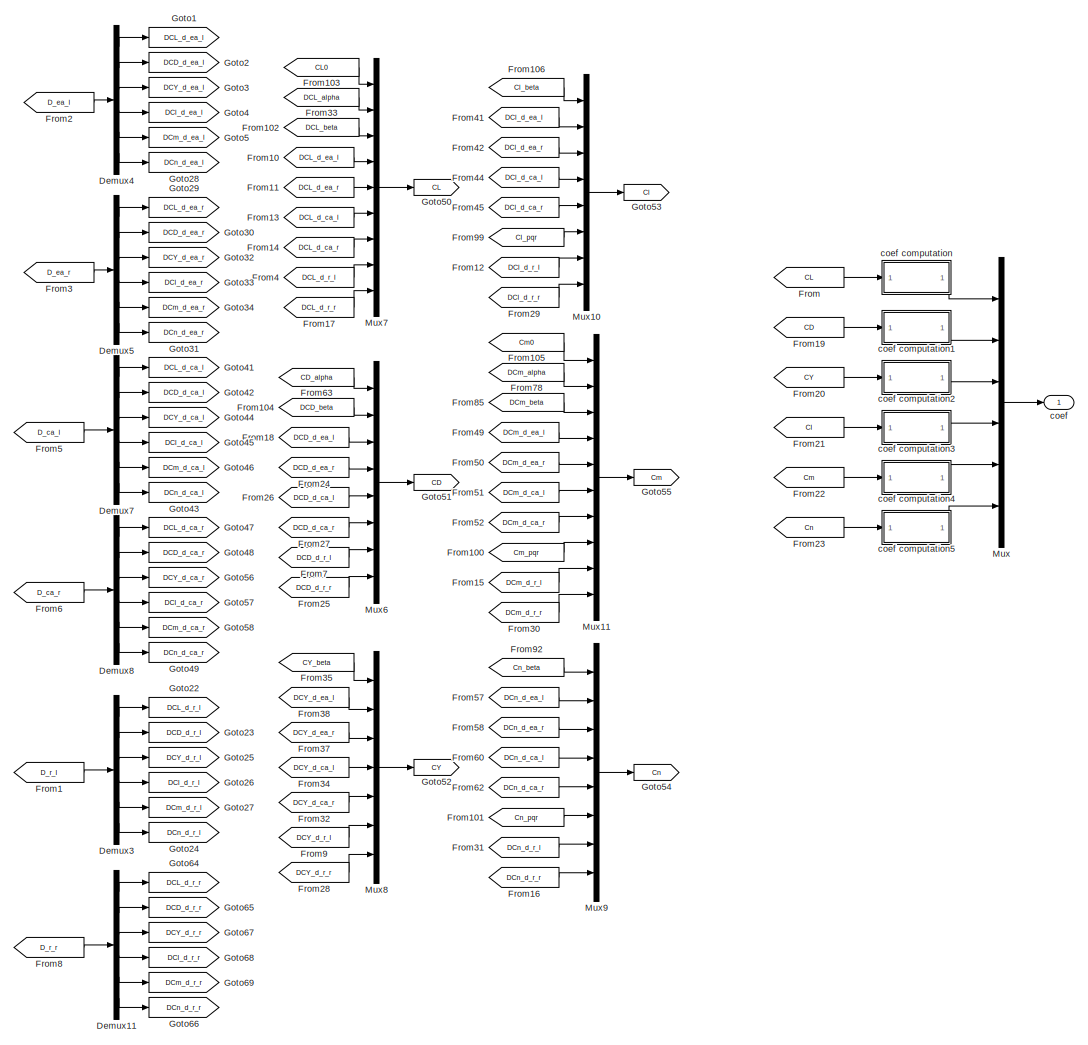
[diagram: Airframe/FWAerodynamicsProduceForceAndMoment/summation - part 1/2, most of the canvas]
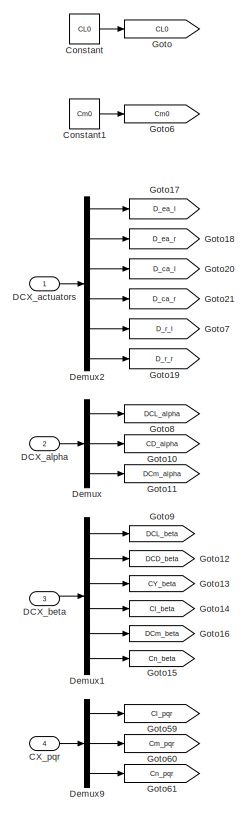
[diagram: Airframe/FWAerodynamicsProduceForceAndMoment/summation - part 2/2, left side, full height]
BLOCK [SubSystem] Airframe/FWAerodynamicsProduceForceAndMoment/summation
  Ports = [4, 1]
  RequestExecContextInheritance = off
  Variant = off
BLOCK [Inport] Airframe/FWAerodynamicsProduceForceAndMoment/summation/CX_pqr
  IconDisplay = Port number
  Port = 4
BLOCK [Constant] Airframe/FWAerodynamicsProduceForceAndMoment/summation/Constant
  OutDataTypeStr = single
  Value = CL0
BLOCK [Constant] Airframe/FWAerodynamicsProduceForceAndMoment/summation/Constant1
  OutDataTypeStr = single
  Value = Cm0
BLOCK [Inport] Airframe/FWAerodynamicsProduceForceAndMoment/summation/DCX_actuators
  IconDisplay = Port number
BLOCK [Inport] Airframe/FWAerodynamicsProduceForceAndMoment/summation/DCX_alpha
  IconDisplay = Port number
  Port = 2
BLOCK [Inport] Airframe/FWAerodynamicsProduceForceAndMoment/summation/DCX_beta
  IconDisplay = Port number
  Port = 3
BLOCK [Demux] Airframe/FWAerodynamicsProduceForceAndMoment/summation/Demux
  DisplayOption = bar
  Outputs = 3
  Ports = [1, 3]
BLOCK [Demux] Airframe/FWAerodynamicsProduceForceAndMoment/summation/Demux1
  DisplayOption = bar
  Outputs = 6
  Ports = [1, 6]
BLOCK [Demux] Airframe/FWAerodynamicsProduceForceAndMoment/summation/Demux11
  DisplayOption = bar
  Outputs = 6
  Ports = [1, 6]
BLOCK [Demux] Airframe/FWAerodynamicsProduceForceAndMoment/summation/Demux2
  DisplayOption = bar
  Outputs = 6
  Ports = [1, 6]
BLOCK [Demux] Airframe/FWAerodynamicsProduceForceAndMoment/summation/Demux3
  DisplayOption = bar
  Outputs = 6
  Ports = [1, 6]
BLOCK [Demux] Airframe/FWAerodynamicsProduceForceAndMoment/summation/Demux4
  DisplayOption = bar
  Outputs = 6
  Ports = [1, 6]
BLOCK [Demux] Airframe/FWAerodynamicsProduceForceAndMoment/summation/Demux5
  DisplayOption = bar
  Outputs = 6
  Ports = [1, 6]
BLOCK [Demux] Airframe/FWAerodynamicsProduceForceAndMoment/summation/Demux7
  DisplayOption = bar
  Outputs = 6
  Ports = [1, 6]
BLOCK [Demux] Airframe/FWAerodynamicsProduceForceAndMoment/summation/Demux8
  DisplayOption = bar
  Outputs = 6
  Ports = [1, 6]
BLOCK [Demux] Airframe/FWAerodynamicsProduceForceAndMoment/summation/Demux9
  DisplayOption = bar
  Outputs = 3
  Ports = [1, 3]
BLOCK [From] Airframe/FWAerodynamicsProduceForceAndMoment/summation/From
  GotoTag = CL
BLOCK [From] Airframe/FWAerodynamicsProduceForceAndMoment/summation/From1
  GotoTag = D_r_l
BLOCK [From] Airframe/FWAerodynamicsProduceForceAndMoment/summation/From10
  GotoTag = DCL_d_ea_l
BLOCK [From] Airframe/FWAerodynamicsProduceForceAndMoment/summation/From100
  GotoTag = Cm_pqr
BLOCK [From] Airframe/FWAerodynamicsProduceForceAndMoment/summation/From101
  GotoTag = Cn_pqr
BLOCK [From] Airframe/FWAerodynamicsProduceForceAndMoment/summation/From102
  GotoTag = DCL_beta
BLOCK [From] Airframe/FWAerodynamicsProduceForceAndMoment/summation/From103
  GotoTag = CL0
BLOCK [From] Airframe/FWAerodynamicsProduceForceAndMoment/summation/From104
  GotoTag = DCD_beta
BLOCK [From] Airframe/FWAerodynamicsProduceForceAndMoment/summation/From105
  GotoTag = Cm0
BLOCK [From] Airframe/FWAerodynamicsProduceForceAndMoment/summation/From106
  GotoTag = Cl_beta
BLOCK [From] Airframe/FWAerodynamicsProduceForceAndMoment/summation/From11
  GotoTag = DCL_d_ea_r
BLOCK [From] Airframe/FWAerodynamicsProduceForceAndMoment/summation/From12
  GotoTag = DCl_d_r_l
BLOCK [From] Airframe/FWAerodynamicsProduceForceAndMoment/summation/From13
  GotoTag = DCL_d_ca_l
BLOCK [From] Airframe/FWAerodynamicsProduceForceAndMoment/summation/From14
  GotoTag = DCL_d_ca_r
BLOCK [From] Airframe/FWAerodynamicsProduceForceAndMoment/summation/From15
  GotoTag = DCm_d_r_l
BLOCK [From] Airframe/FWAerodynamicsProduceForceAndMoment/summation/From16
  GotoTag = DCn_d_r_r
BLOCK [From] Airframe/FWAerodynamicsProduceForceAndMoment/summation/From17
  GotoTag = DCL_d_r_r
BLOCK [From] Airframe/FWAerodynamicsProduceForceAndMoment/summation/From18
  GotoTag = DCD_d_ea_l
BLOCK [From] Airframe/FWAerodynamicsProduceForceAndMoment/summation/From19
  GotoTag = CD
BLOCK [From] Airframe/FWAerodynamicsProduceForceAndMoment/summation/From2
  GotoTag = D_ea_l
BLOCK [From] Airframe/FWAerodynamicsProduceForceAndMoment/summation/From20
  GotoTag = CY
BLOCK [From] Airframe/FWAerodynamicsProduceForceAndMoment/summation/From21
  GotoTag = Cl
BLOCK [From] Airframe/FWAerodynamicsProduceForceAndMoment/summation/From22
  GotoTag = Cm
BLOCK [From] Airframe/FWAerodynamicsProduceForceAndMoment/summation/From23
  GotoTag = Cn
BLOCK [From] Airframe/FWAerodynamicsProduceForceAndMoment/summation/From24
  GotoTag = DCD_d_ea_r
BLOCK [From] Airframe/FWAerodynamicsProduceForceAndMoment/summation/From25
  GotoTag = DCD_d_r_r
BLOCK [From] Airframe/FWAerodynamicsProduceForceAndMoment/summation/From26
  GotoTag = DCD_d_ca_l
BLOCK [From] Airframe/FWAerodynamicsProduceForceAndMoment/summation/From27
  GotoTag = DCD_d_ca_r
BLOCK [From] Airframe/FWAerodynamicsProduceForceAndMoment/summation/From28
  GotoTag = DCY_d_r_r
BLOCK [From] Airframe/FWAerodynamicsProduceForceAndMoment/summation/From29
  GotoTag = DCl_d_r_r
BLOCK [From] Airframe/FWAerodynamicsProduceForceAndMoment/summation/From3
  GotoTag = D_ea_r
BLOCK [From] Airframe/FWAerodynamicsProduceForceAndMoment/summation/From30
  GotoTag = DCm_d_r_r
BLOCK [From] Airframe/FWAerodynamicsProduceForceAndMoment/summation/From31
  GotoTag = DCn_d_r_l
BLOCK [From] Airframe/FWAerodynamicsProduceForceAndMoment/summation/From32
  GotoTag = DCY_d_ca_r
BLOCK [From] Airframe/FWAerodynamicsProduceForceAndMoment/summation/From33
  GotoTag = DCL_alpha
BLOCK [From] Airframe/FWAerodynamicsProduceForceAndMoment/summation/From34
  GotoTag = DCY_d_ca_l
BLOCK [From] Airframe/FWAerodynamicsProduceForceAndMoment/summation/From35
  GotoTag = CY_beta
BLOCK [From] Airframe/FWAerodynamicsProduceForceAndMoment/summation/From37
  GotoTag = DCY_d_ea_r
BLOCK [From] Airframe/FWAerodynamicsProduceForceAndMoment/summation/From38
  GotoTag = DCY_d_ea_l
BLOCK [From] Airframe/FWAerodynamicsProduceForceAndMoment/summation/From4
  GotoTag = DCL_d_r_l
BLOCK [From] Airframe/FWAerodynamicsProduceForceAndMoment/summation/From41
  GotoTag = DCl_d_ea_l
BLOCK [From] Airframe/FWAerodynamicsProduceForceAndMoment/summation/From42
  GotoTag = DCl_d_ea_r
BLOCK [From] Airframe/FWAerodynamicsProduceForceAndMoment/summation/From44
  GotoTag = DCl_d_ca_l
BLOCK [From] Airframe/FWAerodynamicsProduceForceAndMoment/summation/From45
  GotoTag = DCl_d_ca_r
BLOCK [From] Airframe/FWAerodynamicsProduceForceAndMoment/summation/From49
  GotoTag = DCm_d_ea_l
BLOCK [From] Airframe/FWAerodynamicsProduceForceAndMoment/summation/From5
  GotoTag = D_ca_l
BLOCK [From] Airframe/FWAerodynamicsProduceForceAndMoment/summation/From50
  GotoTag = DCm_d_ea_r
BLOCK [From] Airframe/FWAerodynamicsProduceForceAndMoment/summation/From51
  GotoTag = DCm_d_ca_l
BLOCK [From] Airframe/FWAerodynamicsProduceForceAndMoment/summation/From52
  GotoTag = DCm_d_ca_r
BLOCK [From] Airframe/FWAerodynamicsProduceForceAndMoment/summation/From57
  GotoTag = DCn_d_ea_l
BLOCK [From] Airframe/FWAerodynamicsProduceForceAndMoment/summation/From58
  GotoTag = DCn_d_ea_r
BLOCK [From] Airframe/FWAerodynamicsProduceForceAndMoment/summation/From6
  GotoTag = D_ca_r
BLOCK [From] Airframe/FWAerodynamicsProduceForceAndMoment/summation/From60
  GotoTag = DCn_d_ca_l
BLOCK [From] Airframe/FWAerodynamicsProduceForceAndMoment/summation/From62
  GotoTag = DCn_d_ca_r
BLOCK [From] Airframe/FWAerodynamicsProduceForceAndMoment/summation/From63
  GotoTag = CD_alpha
BLOCK [From] Airframe/FWAerodynamicsProduceForceAndMoment/summation/From7
  GotoTag = DCD_d_r_l
BLOCK [From] Airframe/FWAerodynamicsProduceForceAndMoment/summation/From78
  GotoTag = DCm_alpha
BLOCK [From] Airframe/FWAerodynamicsProduceForceAndMoment/summation/From8
  GotoTag = D_r_r
BLOCK [From] Airframe/FWAerodynamicsProduceForceAndMoment/summation/From85
  GotoTag = DCm_beta
BLOCK [From] Airframe/FWAerodynamicsProduceForceAndMoment/summation/From9
  GotoTag = DCY_d_r_l
BLOCK [From] Airframe/FWAerodynamicsProduceForceAndMoment/summation/From92
  GotoTag = Cn_beta
BLOCK [From] Airframe/FWAerodynamicsProduceForceAndMoment/summation/From99
  GotoTag = Cl_pqr
BLOCK [Goto] Airframe/FWAerodynamicsProduceForceAndMoment/summation/Goto
  GotoTag = CL0
BLOCK [Goto] Airframe/FWAerodynamicsProduceForceAndMoment/summation/Goto1
  GotoTag = DCL_d_ea_l
BLOCK [Goto] Airframe/FWAerodynamicsProduceForceAndMoment/summation/Goto10
  GotoTag = CD_alpha
BLOCK [Goto] Airframe/FWAerodynamicsProduceForceAndMoment/summation/Goto11
  GotoTag = DCm_alpha
BLOCK [Goto] Airframe/FWAerodynamicsProduceForceAndMoment/summation/Goto12
  GotoTag = DCD_beta
BLOCK [Goto] Airframe/FWAerodynamicsProduceForceAndMoment/summation/Goto13
  GotoTag = CY_beta
BLOCK [Goto] Airframe/FWAerodynamicsProduceForceAndMoment/summation/Goto14
  GotoTag = Cl_beta
BLOCK [Goto] Airframe/FWAerodynamicsProduceForceAndMoment/summation/Goto15
  GotoTag = Cn_beta
BLOCK [Goto] Airframe/FWAerodynamicsProduceForceAndMoment/summation/Goto16
  GotoTag = DCm_beta
BLOCK [Goto] Airframe/FWAerodynamicsProduceForceAndMoment/summation/Goto17
  GotoTag = D_ea_l
BLOCK [Goto] Airframe/FWAerodynamicsProduceForceAndMoment/summation/Goto18
  GotoTag = D_ea_r
BLOCK [Goto] Airframe/FWAerodynamicsProduceForceAndMoment/summation/Goto19
  GotoTag = D_r_r
BLOCK [Goto] Airframe/FWAerodynamicsProduceForceAndMoment/summation/Goto2
  GotoTag = DCD_d_ea_l
BLOCK [Goto] Airframe/FWAerodynamicsProduceForceAndMoment/summation/Goto20
  GotoTag = D_ca_l
BLOCK [Goto] Airframe/FWAerodynamicsProduceForceAndMoment/summation/Goto21
  GotoTag = D_ca_r
BLOCK [Goto] Airframe/FWAerodynamicsProduceForceAndMoment/summation/Goto22
  GotoTag = DCL_d_r_l
BLOCK [Goto] Airframe/FWAerodynamicsProduceForceAndMoment/summation/Goto23
  GotoTag = DCD_d_r_l
BLOCK [Goto] Airframe/FWAerodynamicsProduceForceAndMoment/summation/Goto24
  GotoTag = DCn_d_r_l
BLOCK [Goto] Airframe/FWAerodynamicsProduceForceAndMoment/summation/Goto25
  GotoTag = DCY_d_r_l
BLOCK [Goto] Airframe/FWAerodynamicsProduceForceAndMoment/summation/Goto26
  GotoTag = DCl_d_r_l
BLOCK [Goto] Airframe/FWAerodynamicsProduceForceAndMoment/summation/Goto27
  GotoTag = DCm_d_r_l
BLOCK [Goto] Airframe/FWAerodynamicsProduceForceAndMoment/summation/Goto28
  GotoTag = DCn_d_ea_l
BLOCK [Goto] Airframe/FWAerodynamicsProduceForceAndMoment/summation/Goto29
  GotoTag = DCL_d_ea_r
BLOCK [Goto] Airframe/FWAerodynamicsProduceForceAndMoment/summation/Goto3
  GotoTag = DCY_d_ea_l
BLOCK [Goto] Airframe/FWAerodynamicsProduceForceAndMoment/summation/Goto30
  GotoTag = DCD_d_ea_r
BLOCK [Goto] Airframe/FWAerodynamicsProduceForceAndMoment/summation/Goto31
  GotoTag = DCn_d_ea_r
BLOCK [Goto] Airframe/FWAerodynamicsProduceForceAndMoment/summation/Goto32
  GotoTag = DCY_d_ea_r
BLOCK [Goto] Airframe/FWAerodynamicsProduceForceAndMoment/summation/Goto33
  GotoTag = DCl_d_ea_r
BLOCK [Goto] Airframe/FWAerodynamicsProduceForceAndMoment/summation/Goto34
  GotoTag = DCm_d_ea_r
BLOCK [Goto] Airframe/FWAerodynamicsProduceForceAndMoment/summation/Goto4
  GotoTag = DCl_d_ea_l
BLOCK [Goto] Airframe/FWAerodynamicsProduceForceAndMoment/summation/Goto41
  GotoTag = DCL_d_ca_l
BLOCK [Goto] Airframe/FWAerodynamicsProduceForceAndMoment/summation/Goto42
  GotoTag = DCD_d_ca_l
BLOCK [Goto] Airframe/FWAerodynamicsProduceForceAndMoment/summation/Goto43
  GotoTag = DCn_d_ca_l
BLOCK [Goto] Airframe/FWAerodynamicsProduceForceAndMoment/summation/Goto44
  GotoTag = DCY_d_ca_l
BLOCK [Goto] Airframe/FWAerodynamicsProduceForceAndMoment/summation/Goto45
  GotoTag = DCl_d_ca_l
BLOCK [Goto] Airframe/FWAerodynamicsProduceForceAndMoment/summation/Goto46
  GotoTag = DCm_d_ca_l
BLOCK [Goto] Airframe/FWAerodynamicsProduceForceAndMoment/summation/Goto47
  GotoTag = DCL_d_ca_r
BLOCK [Goto] Airframe/FWAerodynamicsProduceForceAndMoment/summation/Goto48
  GotoTag = DCD_d_ca_r
BLOCK [Goto] Airframe/FWAerodynamicsProduceForceAndMoment/summation/Goto49
  GotoTag = DCn_d_ca_r
BLOCK [Goto] Airframe/FWAerodynamicsProduceForceAndMoment/summation/Goto5
  GotoTag = DCm_d_ea_l
BLOCK [Goto] Airframe/FWAerodynamicsProduceForceAndMoment/summation/Goto50
  GotoTag = CL
BLOCK [Goto] Airframe/FWAerodynamicsProduceForceAndMoment/summation/Goto51
  GotoTag = CD
BLOCK [Goto] Airframe/FWAerodynamicsProduceForceAndMoment/summation/Goto52
  GotoTag = CY
BLOCK [Goto] Airframe/FWAerodynamicsProduceForceAndMoment/summation/Goto53
  GotoTag = Cl
BLOCK [Goto] Airframe/FWAerodynamicsProduceForceAndMoment/summation/Goto54
  GotoTag = Cn
BLOCK [Goto] Airframe/FWAerodynamicsProduceForceAndMoment/summation/Goto55
  GotoTag = Cm
BLOCK [Goto] Airframe/FWAerodynamicsProduceForceAndMoment/summation/Goto56
  GotoTag = DCY_d_ca_r
BLOCK [Goto] Airframe/FWAerodynamicsProduceForceAndMoment/summation/Goto57
  GotoTag = DCl_d_ca_r
BLOCK [Goto] Airframe/FWAerodynamicsProduceForceAndMoment/summation/Goto58
  GotoTag = DCm_d_ca_r
BLOCK [Goto] Airframe/FWAerodynamicsProduceForceAndMoment/summation/Goto59
  GotoTag = Cl_pqr
BLOCK [Goto] Airframe/FWAerodynamicsProduceForceAndMoment/summation/Goto6
  GotoTag = Cm0
BLOCK [Goto] Airframe/FWAerodynamicsProduceForceAndMoment/summation/Goto60
  GotoTag = Cm_pqr
BLOCK [Goto] Airframe/FWAerodynamicsProduceForceAndMoment/summation/Goto61
  GotoTag = Cn_pqr
BLOCK [Goto] Airframe/FWAerodynamicsProduceForceAndMoment/summation/Goto64
  GotoTag = DCL_d_r_r
BLOCK [Goto] Airframe/FWAerodynamicsProduceForceAndMoment/summation/Goto65
  GotoTag = DCD_d_r_r
BLOCK [Goto] Airframe/FWAerodynamicsProduceForceAndMoment/summation/Goto66
  GotoTag = DCn_d_r_r
BLOCK [Goto] Airframe/FWAerodynamicsProduceForceAndMoment/summation/Goto67
  GotoTag = DCY_d_r_r
BLOCK [Goto] Airframe/FWAerodynamicsProduceForceAndMoment/summation/Goto68
  GotoTag = DCl_d_r_r
BLOCK [Goto] Airframe/FWAerodynamicsProduceForceAndMoment/summation/Goto69
  GotoTag = DCm_d_r_r
BLOCK [Goto] Airframe/FWAerodynamicsProduceForceAndMoment/summation/Goto7
  GotoTag = D_r_l
BLOCK [Goto] Airframe/FWAerodynamicsProduceForceAndMoment/summation/Goto8
  GotoTag = DCL_alpha
BLOCK [Goto] Airframe/FWAerodynamicsProduceForceAndMoment/summation/Goto9
  GotoTag = DCL_beta
BLOCK [Mux] Airframe/FWAerodynamicsProduceForceAndMoment/summation/Mux
  DisplayOption = bar
  Inputs = 6
  Ports = [6, 1]
BLOCK [Mux] Airframe/FWAerodynamicsProduceForceAndMoment/summation/Mux10
  DisplayOption = bar
  Inputs = 8
  Ports = [8, 1]
BLOCK [Mux] Airframe/FWAerodynamicsProduceForceAndMoment/summation/Mux11
  DisplayOption = bar
  Inputs = 10
  Ports = [10, 1]
BLOCK [Mux] Airframe/FWAerodynamicsProduceForceAndMoment/summation/Mux6
  DisplayOption = bar
  Inputs = 8
  Ports = [8, 1]
BLOCK [Mux] Airframe/FWAerodynamicsProduceForceAndMoment/summation/Mux7
  DisplayOption = bar
  Inputs = 9
  Ports = [9, 1]
BLOCK [Mux] Airframe/FWAerodynamicsProduceForceAndMoment/summation/Mux8
  DisplayOption = bar
  Inputs = 7
  Ports = [7, 1]
BLOCK [Mux] Airframe/FWAerodynamicsProduceForceAndMoment/summation/Mux9
  DisplayOption = bar
  Inputs = 8
  Ports = [8, 1]
BLOCK [Outport] Airframe/FWAerodynamicsProduceForceAndMoment/summation/coef
  IconDisplay = Port number
BLOCK [SubSystem] Airframe/FWAerodynamicsProduceForceAndMoment/summation/coef computation
  Ports = [1, 1]
  RequestExecContextInheritance = off
  Variant = off
BLOCK [Sum] Airframe/FWAerodynamicsProduceForceAndMoment/summation/coef computation/Add1
  InputSameDT = off
  Inputs = +++++++++
  OutDataTypeStr = Inherit: Inherit via internal rule
  Ports = [9, 1]
  SaturateOnIntegerOverflow = off
BLOCK [Demux] Airframe/FWAerodynamicsProduceForceAndMoment/summation/coef computation/Demux
  DisplayOption = bar
  Outputs = 9
  Ports = [1, 9]
BLOCK [Inport] Airframe/FWAerodynamicsProduceForceAndMoment/summation/coef computation/In
  IconDisplay = Port number
BLOCK [Outport] Airframe/FWAerodynamicsProduceForceAndMoment/summation/coef computation/Out
  IconDisplay = Port number
BLOCK [SubSystem] Airframe/FWAerodynamicsProduceForceAndMoment/summation/coef computation1
  Ports = [1, 1]
  RequestExecContextInheritance = off
  Variant = off
BLOCK [Sum] Airframe/FWAerodynamicsProduceForceAndMoment/summation/coef computation1/Add1
  InputSameDT = off
  Inputs = ++++++++
  OutDataTypeStr = Inherit: Inherit via internal rule
  Ports = [8, 1]
  SaturateOnIntegerOverflow = off
BLOCK [Demux] Airframe/FWAerodynamicsProduceForceAndMoment/summation/coef computation1/Demux
  DisplayOption = bar
  Outputs = 8
  Ports = [1, 8]
BLOCK [Inport] Airframe/FWAerodynamicsProduceForceAndMoment/summation/coef computation1/In
  IconDisplay = Port number
BLOCK [Outport] Airframe/FWAerodynamicsProduceForceAndMoment/summation/coef computation1/Out
  IconDisplay = Port number
BLOCK [SubSystem] Airframe/FWAerodynamicsProduceForceAndMoment/summation/coef computation2
  Ports = [1, 1]
  RequestExecContextInheritance = off
  Variant = off
BLOCK [Sum] Airframe/FWAerodynamicsProduceForceAndMoment/summation/coef computation2/Add1
  InputSameDT = off
  Inputs = +++++++
  OutDataTypeStr = Inherit: Inherit via internal rule
  Ports = [7, 1]
  SaturateOnIntegerOverflow = off
BLOCK [Demux] Airframe/FWAerodynamicsProduceForceAndMoment/summation/coef computation2/Demux
  DisplayOption = bar
  Outputs = 7
  Ports = [1, 7]
BLOCK [Inport] Airframe/FWAerodynamicsProduceForceAndMoment/summation/coef computation2/In
  IconDisplay = Port number
BLOCK [Outport] Airframe/FWAerodynamicsProduceForceAndMoment/summation/coef computation2/Out
  IconDisplay = Port number
BLOCK [SubSystem] Airframe/FWAerodynamicsProduceForceAndMoment/summation/coef computation3
  Ports = [1, 1]
  RequestExecContextInheritance = off
  Variant = off
BLOCK [Sum] Airframe/FWAerodynamicsProduceForceAndMoment/summation/coef computation3/Add1
  InputSameDT = off
  Inputs = ++++++++
  OutDataTypeStr = Inherit: Inherit via internal rule
  Ports = [8, 1]
  SaturateOnIntegerOverflow = off
BLOCK [Demux] Airframe/FWAerodynamicsProduceForceAndMoment/summation/coef computation3/Demux
  DisplayOption = bar
  Outputs = 8
  Ports = [1, 8]
BLOCK [Inport] Airframe/FWAerodynamicsProduceForceAndMoment/summation/coef computation3/In
  IconDisplay = Port number
BLOCK [Outport] Airframe/FWAerodynamicsProduceForceAndMoment/summation/coef computation3/Out
  IconDisplay = Port number
BLOCK [SubSystem] Airframe/FWAerodynamicsProduceForceAndMoment/summation/coef computation4
  Ports = [1, 1]
  RequestExecContextInheritance = off
  Variant = off
BLOCK [Sum] Airframe/FWAerodynamicsProduceForceAndMoment/summation/coef computation4/Add1
  InputSameDT = off
  Inputs = ++++++++++
  OutDataTypeStr = Inherit: Inherit via internal rule
  Ports = [10, 1]
  SaturateOnIntegerOverflow = off
BLOCK [Demux] Airframe/FWAerodynamicsProduceForceAndMoment/summation/coef computation4/Demux
  DisplayOption = bar
  Outputs = 10
  Ports = [1, 10]
BLOCK [Inport] Airframe/FWAerodynamicsProduceForceAndMoment/summation/coef computation4/In
  IconDisplay = Port number
BLOCK [Outport] Airframe/FWAerodynamicsProduceForceAndMoment/summation/coef computation4/Out
  IconDisplay = Port number
BLOCK [SubSystem] Airframe/FWAerodynamicsProduceForceAndMoment/summation/coef computation5
  Ports = [1, 1]
  RequestExecContextInheritance = off
  Variant = off
BLOCK [Sum] Airframe/FWAerodynamicsProduceForceAndMoment/summation/coef computation5/Add1
  InputSameDT = off
  Inputs = ++++++++
  OutDataTypeStr = Inherit: Inherit via internal rule
  Ports = [8, 1]
  SaturateOnIntegerOverflow = off
BLOCK [Demux] Airframe/FWAerodynamicsProduceForceAndMoment/summation/coef computation5/Demux
  DisplayOption = bar
  Outputs = 8
  Ports = [1, 8]
BLOCK [Inport] Airframe/FWAerodynamicsProduceForceAndMoment/summation/coef computation5/In
  IconDisplay = Port number
BLOCK [Outport] Airframe/FWAerodynamicsProduceForceAndMoment/summation/coef computation5/Out
  IconDisplay = Port number
BLOCK [Reference] Airframe/Flat Earth to LLA  REF=aerolibtransform2/Flat Earth to LLA
  Ports = [2, 2]
  SourceBlock = aerolibtransform2/Flat Earth to LLA
  SourceProductBaseCode = AE
  SourceProductName = Aerospace Blockset
  SourceType = Flat Earth to LLA
BLOCK [Product] Airframe/Matrix Multiply1
  InputSameDT = off
  Multiplication = Matrix(*)
  OutDataTypeStr = Inherit: Inherit via internal rule
  Ports = [2, 1]
  RndMeth = Floor
  SaturateOnIntegerOverflow = off
BLOCK [Mux] Airframe/Mux
  DisplayOption = bar
  Inputs = 2
  Ports = [2, 1]
BLOCK [Mux] Airframe/Mux2
  DisplayOption = bar
  Inputs = 2
  Ports = [2, 1]
BLOCK [SubSystem] Airframe/Subsystem2
  Ports = [2, 4]
  RequestExecContextInheritance = off
  Variant = off
BLOCK [Sqrt] Airframe/Subsystem2/Airspeed
  AlgorithmType = Newton-Raphson
BLOCK [Demux] Airframe/Subsystem2/Demux1
  Outputs = 3
  Ports = [1, 3]
BLOCK [From] Airframe/Subsystem2/From
  GotoTag = u
BLOCK [From] Airframe/Subsystem2/From1
  GotoTag = v
BLOCK [From] Airframe/Subsystem2/From2
  GotoTag = w
BLOCK [From] Airframe/Subsystem2/From3
  GotoTag = u
BLOCK [From] Airframe/Subsystem2/From4
  GotoTag = w
BLOCK [From] Airframe/Subsystem2/From5
  GotoTag = v
BLOCK [Goto] Airframe/Subsystem2/Goto
  GotoTag = u
BLOCK [Goto] Airframe/Subsystem2/Goto1
  GotoTag = v
BLOCK [Goto] Airframe/Subsystem2/Goto2
  GotoTag = w
BLOCK [Trigonometry] Airframe/Subsystem2/Incidence
  Operator = atan2
  Ports = [2, 1]
BLOCK [Product] Airframe/Subsystem2/Product1
  InputSameDT = off
  OutDataTypeStr = Inherit: Inherit via internal rule
  Ports = [2, 1]
  SaturateOnIntegerOverflow = off
BLOCK [Product] Airframe/Subsystem2/Product2
  InputSameDT = off
  OutDataTypeStr = Inherit: Inherit via internal rule
  Ports = [2, 1]
  SaturateOnIntegerOverflow = off
BLOCK [Product] Airframe/Subsystem2/Product3
  InputSameDT = off
  OutDataTypeStr = Inherit: Inherit via internal rule
  Ports = [2, 1]
  SaturateOnIntegerOverflow = off
BLOCK [Product] Airframe/Subsystem2/Product4
  InputSameDT = off
  Inputs = */
  Ports = [2, 1]
  RndMeth = Floor
BLOCK [Trigonometry] Airframe/Subsystem2/Sideslip
  Operator = asin
  Ports = [1, 1]
BLOCK [Sum] Airframe/Subsystem2/Sum
  IconShape = round
  InputSameDT = off
  Inputs = +++
  OutDataTypeStr = Inherit: Inherit via internal rule
  Ports = [3, 1]
  SaturateOnIntegerOverflow = off
BLOCK [Sum] Airframe/Subsystem2/Sum1
  IconShape = round
  Inputs = |+-
  Ports = [2, 1]
BLOCK [Outport] Airframe/Subsystem2/V_air
  IconDisplay = Port number
  Port = 3
BLOCK [Outport] Airframe/Subsystem2/V_air_norm
  IconDisplay = Port number
  Port = 4
BLOCK [Inport] Airframe/Subsystem2/V_b
  IconDisplay = Port number
BLOCK [Inport] Airframe/Subsystem2/V_wind
  IconDisplay = Port number
  Port = 2
BLOCK [Outport] Airframe/Subsystem2/alpha
  IconDisplay = Port number
BLOCK [Outport] Airframe/Subsystem2/beta
  IconDisplay = Port number
  Port = 2
BLOCK [Outport] Airframe/SuperMonitor
  IconDisplay = Port number
  OutDataTypeStr = Bus: airframe
BLOCK [SubSystem] Airframe/TilePropellerForce
  Ports = [2, 1]
  RequestExecContextInheritance = off
  Variant = off
BLOCK [Sum] Airframe/TilePropellerForce/Add1
  InputSameDT = off
  OutDataTypeStr = Inherit: Inherit via internal rule
  Ports = [2, 1]
  SaturateOnIntegerOverflow = off
BLOCK [Constant] Airframe/TilePropellerForce/Constant
  Value = 0
BLOCK [Gain] Airframe/TilePropellerForce/Gain2
  Gain = 0.0382
  OutDataTypeStr = Inherit: Inherit via internal rule
  ParamDataTypeStr = Inherit: Inherit via internal rule
  SaturateOnIntegerOverflow = off
BLOCK [Gain] Airframe/TilePropellerForce/Gain3
  Gain = -0.1314
  OutDataTypeStr = Inherit: Inherit via internal rule
  ParamDataTypeStr = Inherit: Inherit via internal rule
  SaturateOnIntegerOverflow = off
BLOCK [Math] Airframe/TilePropellerForce/Math Function
  Operator = square
  Ports = [1, 1]
BLOCK [Mux] Airframe/TilePropellerForce/Mux
  DisplayOption = bar
  Inputs = 3
  Ports = [3, 1]
BLOCK [Product] Airframe/TilePropellerForce/Product
  InputSameDT = off
  OutDataTypeStr = Inherit: Inherit via internal rule
  Ports = [2, 1]
  RndMeth = Floor
  SaturateOnIntegerOverflow = off
BLOCK [Inport] Airframe/TilePropellerForce/RPS
  IconDisplay = Port number
BLOCK [Outport] Airframe/TilePropellerForce/ThrustForce
  IconDisplay = Port number
BLOCK [Inport] Airframe/TilePropellerForce/V_air_norm
  IconDisplay = Port number
  Port = 2
BLOCK [Inport] Airframe/TilePropellerRPS
  IconDisplay = Port number
  Port = 2
BLOCK [Constant] Airframe/v_wind
  Value = [0 0 0]
BLOCK [BusSelector] Bus Selector
  OutputAsBus = off
  OutputSignals = X_e,roll_pitch_yaw,attack_angle,pos_lla,A_be,V_air_norm
  Ports = [1, 6]
BLOCK [Constant] Constant1
  Value = [lat0 lon0 h0]
BLOCK [Constant] Constant2
  Value = [lat0+0.01 lon0+0.01 h0+50]
BLOCK [Constant] Constant3
  Value = Vair0
BLOCK [SubSystem] ContinuousToDiscrete
  Ports = [1, 1]
  RequestExecContextInheritance = off
  Variant = off
BLOCK [BusCreator] ContinuousToDiscrete/Bus Creator
  DisplayOption = bar
  InheritFromInputs = off
  Inputs = 13
  OutDataTypeStr = Bus: airframe
  Ports = [13, 1]
BLOCK [BusSelector] ContinuousToDiscrete/Bus Selector1
  OutputAsBus = off
  OutputSignals = V_e,X_e,roll_pitch_yaw,DCM_be,V_b,omega_b,omega_b_dot,A_bb,A_be,attack_angle,v_air,V_air_norm,pos_lla
  Ports = [1, 13]
BLOCK [Inport] ContinuousToDiscrete/In1
  IconDisplay = Port number
BLOCK [Outport] ContinuousToDiscrete/Out1
  IconDisplay = Port number
  OutDataTypeStr = Bus: airframe
BLOCK [Quantizer] ContinuousToDiscrete/Quantizer
  QuantizationInterval = 1/2000
BLOCK [Quantizer] ContinuousToDiscrete/Quantizer1
  QuantizationInterval = 1/2000
BLOCK [Quantizer] ContinuousToDiscrete/Quantizer10
  QuantizationInterval = 1/2000
BLOCK [Quantizer] ContinuousToDiscrete/Quantizer11
  QuantizationInterval = 1/2000
BLOCK [Quantizer] ContinuousToDiscrete/Quantizer12
  QuantizationInterval = 1/2000
BLOCK [Quantizer] ContinuousToDiscrete/Quantizer2
  QuantizationInterval = 1/2000
BLOCK [Quantizer] ContinuousToDiscrete/Quantizer3
  QuantizationInterval = 1/2000
BLOCK [Quantizer] ContinuousToDiscrete/Quantizer4
  QuantizationInterval = 1/2000
BLOCK [Quantizer] ContinuousToDiscrete/Quantizer5
  QuantizationInterval = 1/2000
BLOCK [Quantizer] ContinuousToDiscrete/Quantizer6
  QuantizationInterval = 1/2000
BLOCK [Quantizer] ContinuousToDiscrete/Quantizer7
  QuantizationInterval = 1/2000
BLOCK [Quantizer] ContinuousToDiscrete/Quantizer8
  QuantizationInterval = 1/2000
BLOCK [Quantizer] ContinuousToDiscrete/Quantizer9
  QuantizationInterval = 1/2000
BLOCK [Demux] Demux
  DisplayOption = bar
  Outputs = 3
  Ports = [1, 3]
BLOCK [Demux] Demux1
  DisplayOption = bar
  Outputs = 3
  Ports = [1, 3]
BLOCK [SubSystem] DiscreteToContinuous
  Ports = [2, 2]
  RequestExecContextInheritance = off
  Variant = off
BLOCK [Sum] DiscreteToContinuous/Add
  InputSameDT = off
  OutDataTypeStr = Inherit: Inherit via internal rule
  Ports = [2, 1]
  SaturateOnIntegerOverflow = off
BLOCK [BusCreator] DiscreteToContinuous/Bus Creator
  DisplayOption = bar
  InheritFromInputs = off
  Inputs = 6
  OutDataTypeStr = Bus: ControlSurfaceInDegree
  Ports = [6, 1]
BLOCK [Constant] DiscreteToContinuous/Constant3
  Value = 54
BLOCK [Outport] DiscreteToContinuous/CtSurfaceInDegree
  IconDisplay = Port number
  OutDataTypeStr = Bus: ControlSurfaceInDegree
BLOCK [Demux] DiscreteToContinuous/Demux
  DisplayOption = bar
  Outputs = 6
  Ports = [1, 6]
BLOCK [Inport] DiscreteToContinuous/DtSurfaceInDegree
  IconDisplay = Port number
BLOCK [Inport] DiscreteToContinuous/DtThrottle_sp -1 ~ 1
  IconDisplay = Port number
  Port = 2
BLOCK [Gain] DiscreteToContinuous/Gain1
  Gain = 54
  OutDataTypeStr = Inherit: Inherit via internal rule
  ParamDataTypeStr = Inherit: Inherit via internal rule
  SaturateOnIntegerOverflow = off
BLOCK [Outport] DiscreteToContinuous/Propeller_RPS
  IconDisplay = Port number
  Port = 2
BLOCK [TransferFcn] DiscreteToContinuous/canard_l
  Denominator = [t_dca 1]
BLOCK [TransferFcn] DiscreteToContinuous/canard_r
  Denominator = [t_dca 1]
BLOCK [TransferFcn] DiscreteToContinuous/elevator_l
  Denominator = [t_dea 1]
BLOCK [TransferFcn] DiscreteToContinuous/elevator_r
  Denominator = [t_dea 1]
BLOCK [TransferFcn] DiscreteToContinuous/rud_l
  Denominator = [t_dr 1]
BLOCK [TransferFcn] DiscreteToContinuous/rud_r
  Denominator = [t_dr 1]
BLOCK [SubSystem] FLY_CTRL_SYS
  Ports = [4, 2]
  RequestExecContextInheritance = off
  Variant = off
BLOCK [Inport] FLY_CTRL_SYS/AIRFRAME_BUS
  IconDisplay = Port number
  OutDataTypeStr = Bus: airframe
  Port = 4
BLOCK [SubSystem] FLY_CTRL_SYS/ATT_CTRL(PID)
  Ports = [2, 1]
  RequestExecContextInheritance = off
  Variant = off
BLOCK [Inport] FLY_CTRL_SYS/ATT_CTRL(PID)/AIRFRAME_BUS
  IconDisplay = Port number
  Port = 2
BLOCK [Inport] FLY_CTRL_SYS/ATT_CTRL(PID)/Att_sp
  IconDisplay = Port number
BLOCK [BusSelector] FLY_CTRL_SYS/ATT_CTRL(PID)/Bus Selector
  OutputAsBus = off
  OutputSignals = roll_pitch_yaw,V_b,omega_b
  Ports = [1, 3]
BLOCK [Outport] FLY_CTRL_SYS/ATT_CTRL(PID)/ControlSurfaceInDegree
  IconDisplay = Port number
  OutDataTypeStr = Bus: ControlSurfaceInDegree
BLOCK [SubSystem] FLY_CTRL_SYS/ATT_CTRL(PID)/Mixer
  Ports = [1, 1]
  RequestExecContextInheritance = off
  Variant = off
BLOCK [BusCreator] FLY_CTRL_SYS/ATT_CTRL(PID)/Mixer/Bus Creator
  DisplayOption = bar
  InheritFromInputs = off
  Inputs = 6
  OutDataTypeStr = Bus: ControlSurfaceInDegree
  Ports = [6, 1]
BLOCK [Constant] FLY_CTRL_SYS/ATT_CTRL(PID)/Mixer/Constant1
  Value = [0 d_ca_trim 0]
BLOCK [Demux] FLY_CTRL_SYS/ATT_CTRL(PID)/Mixer/Demux
  DisplayOption = bar
  Outputs = 3
  Ports = [1, 3]
BLOCK [Demux] FLY_CTRL_SYS/ATT_CTRL(PID)/Mixer/Demux1
  DisplayOption = bar
  Outputs = 3
  Ports = [1, 3]
BLOCK [Gain] FLY_CTRL_SYS/ATT_CTRL(PID)/Mixer/Gain
  Gain = 30
  OutDataTypeStr = Inherit: Inherit via internal rule
  ParamDataTypeStr = Inherit: Inherit via internal rule
  SaturateOnIntegerOverflow = off
BLOCK [Gain] FLY_CTRL_SYS/ATT_CTRL(PID)/Mixer/Gain1
  Gain = -30
  OutDataTypeStr = Inherit: Inherit via internal rule
  ParamDataTypeStr = Inherit: Inherit via internal rule
  SaturateOnIntegerOverflow = off
BLOCK [Gain] FLY_CTRL_SYS/ATT_CTRL(PID)/Mixer/Gain2
  Gain = -30
  OutDataTypeStr = Inherit: Inherit via internal rule
  ParamDataTypeStr = Inherit: Inherit via internal rule
  SaturateOnIntegerOverflow = off
BLOCK [Gain] FLY_CTRL_SYS/ATT_CTRL(PID)/Mixer/Gain3
  Gain = -1
  OutDataTypeStr = Inherit: Inherit via internal rule
  ParamDataTypeStr = Inherit: Inherit via internal rule
  SaturateOnIntegerOverflow = off
BLOCK [Gain] FLY_CTRL_SYS/ATT_CTRL(PID)/Mixer/Gain4
  Gain = -1
  OutDataTypeStr = Inherit: Inherit via internal rule
  ParamDataTypeStr = Inherit: Inherit via internal rule
  SaturateOnIntegerOverflow = off
BLOCK [Reference] FLY_CTRL_SYS/ATT_CTRL(PID)/Mixer/Model Info  REF=simulink/Model-Wide
Utilities/Model Info
  Ports = []
  SourceBlock = simulink/Model-Wide\nUtilities/Model Info
  SourceProductBaseCode = SL
  SourceProductName = Simulink
  SourceType = CMBlock
BLOCK [Mux] FLY_CTRL_SYS/ATT_CTRL(PID)/Mixer/Mux
  DisplayOption = bar
  Inputs = 3
  Ports = [3, 1]
BLOCK [Saturate] FLY_CTRL_SYS/ATT_CTRL(PID)/Mixer/Physical restriction
  InputPortMap = u0
  LowerLimit = -30
  Ports = [1, 1]
  UpperLimit = 30
BLOCK [Outport] FLY_CTRL_SYS/ATT_CTRL(PID)/Mixer/Rudder Ctrl
  IconDisplay = Port number
BLOCK [Scope] FLY_CTRL_SYS/ATT_CTRL(PID)/Mixer/Scope
  NumInputPorts = 1
  Ports = [1]
  ScopeSpecificationString = Simulink.scopes.TimeScopeBlockCfg('CurrentConfiguration', extmgr.ConfigurationSet(extmgr.Configuration('Core','General UI',true),extmgr.Configuration('Core','Source UI',true),extmgr.Configuration('Sources','WiredSimulink',true,'DataLoggingVariableName','ScopeData2'),extmgr.Configuration('Visuals','Time Domain',true,'SerializedDisplays',{struct('MinYLimReal','1.96368','MaxYLimReal','2.78181','YLabe...<+1412ch>
BLOCK [Sum] FLY_CTRL_SYS/ATT_CTRL(PID)/Mixer/Sum
  IconShape = round
  InputSameDT = off
  Inputs = |++
  OutDataTypeStr = Inherit: Inherit via internal rule
  Ports = [2, 1]
  SaturateOnIntegerOverflow = off
BLOCK [Inport] FLY_CTRL_SYS/ATT_CTRL(PID)/Mixer/U_SURF
  IconDisplay = Port number
BLOCK [SubSystem] FLY_CTRL_SYS/ATT_CTRL(PID)/U_SURF
  Ports = [2, 1]
  RequestExecContextInheritance = off
  Variant = off
BLOCK [Demux] FLY_CTRL_SYS/ATT_CTRL(PID)/U_SURF/Demux
  DisplayOption = bar
  Outputs = 3
  Ports = [1, 3]
BLOCK [Demux] FLY_CTRL_SYS/ATT_CTRL(PID)/U_SURF/Demux1
  DisplayOption = bar
  Outputs = 3
  Ports = [1, 3]
BLOCK [Mux] FLY_CTRL_SYS/ATT_CTRL(PID)/U_SURF/Mux
  DisplayOption = bar
  Inputs = 3
  Ports = [3, 1]
BLOCK [Scope] FLY_CTRL_SYS/ATT_CTRL(PID)/U_SURF/Scope
  NumInputPorts = 1
  Ports = [1]
  ScopeSpecificationString = Simulink.scopes.TimeScopeBlockCfg('CurrentConfiguration', extmgr.ConfigurationSet(extmgr.Configuration('Core','General UI',true),extmgr.Configuration('Core','Source UI',true),extmgr.Configuration('Sources','WiredSimulink',true,'DataLoggingVariableName','ScopeData3'),extmgr.Configuration('Visuals','Time Domain',true,'SerializedDisplays',{struct('MinYLimReal','-0.49172','MaxYLimReal','0.12702','YLab...<+1421ch>
BLOCK [Outport] FLY_CTRL_SYS/ATT_CTRL(PID)/U_SURF/U_SURF
  IconDisplay = Port number
BLOCK [Inport] FLY_CTRL_SYS/ATT_CTRL(PID)/U_SURF/euler_rate_est
  IconDisplay = Port number
  Port = 2
BLOCK [Inport] FLY_CTRL_SYS/ATT_CTRL(PID)/U_SURF/euler_rate_sp
  IconDisplay = Port number
BLOCK [SubSystem] FLY_CTRL_SYS/ATT_CTRL(PID)/U_SURF/pitch_rate_ctrl
  Ports = [2, 1]
  RequestExecContextInheritance = off
  Variant = off
BLOCK [Gain] FLY_CTRL_SYS/ATT_CTRL(PID)/U_SURF/pitch_rate_ctrl/FW_PR_FF
  Gain = FW_PR_FF
  OutDataTypeStr = Inherit: Inherit via internal rule
  ParamDataTypeStr = Inherit: Inherit via internal rule
  SaturateOnIntegerOverflow = off
BLOCK [Gain] FLY_CTRL_SYS/ATT_CTRL(PID)/U_SURF/pitch_rate_ctrl/FW_PR_I
  Gain = FW_PR_I
  OutDataTypeStr = Inherit: Inherit via internal rule
  ParamDataTypeStr = Inherit: Inherit via internal rule
  SaturateOnIntegerOverflow = off
BLOCK [Gain] FLY_CTRL_SYS/ATT_CTRL(PID)/U_SURF/pitch_rate_ctrl/FW_PR_P
  Gain = FW_PR_P
  OutDataTypeStr = Inherit: Inherit via internal rule
  ParamDataTypeStr = Inherit: Inherit via internal rule
  SaturateOnIntegerOverflow = off
BLOCK [Integrator] FLY_CTRL_SYS/ATT_CTRL(PID)/U_SURF/pitch_rate_ctrl/Integrator Limited1
  LimitOutput = on
  LowerSaturationLimit = -FW_PR_IMAX
  Ports = [1, 1]
  UpperSaturationLimit = FW_PR_IMAX
BLOCK [Saturate] FLY_CTRL_SYS/ATT_CTRL(PID)/U_SURF/pitch_rate_ctrl/Saturation3
  InputPortMap = u0
  LowerLimit = -1
  Ports = [1, 1]
  UpperLimit = 1
BLOCK [Sum] FLY_CTRL_SYS/ATT_CTRL(PID)/U_SURF/pitch_rate_ctrl/Sum4
  IconShape = round
  InputSameDT = off
  Inputs = |+-
  OutDataTypeStr = Inherit: Inherit via internal rule
  Ports = [2, 1]
  SaturateOnIntegerOverflow = off
BLOCK [Sum] FLY_CTRL_SYS/ATT_CTRL(PID)/U_SURF/pitch_rate_ctrl/Sum5
  IconShape = round
  InputSameDT = off
  Inputs = +++
  OutDataTypeStr = Inherit: Inherit via internal rule
  Ports = [3, 1]
  SaturateOnIntegerOverflow = off
BLOCK [Inport] FLY_CTRL_SYS/ATT_CTRL(PID)/U_SURF/pitch_rate_ctrl/pitch_rate_est
  IconDisplay = Port number
  Port = 2
BLOCK [Inport] FLY_CTRL_SYS/ATT_CTRL(PID)/U_SURF/pitch_rate_ctrl/pitch_rate_sp
  IconDisplay = Port number
BLOCK [Outport] FLY_CTRL_SYS/ATT_CTRL(PID)/U_SURF/pitch_rate_ctrl/u_pitch
  IconDisplay = Port number
BLOCK [SubSystem] FLY_CTRL_SYS/ATT_CTRL(PID)/U_SURF/roll_rate_ctrl
  Ports = [2, 1]
  RequestExecContextInheritance = off
  Variant = off
BLOCK [Gain] FLY_CTRL_SYS/ATT_CTRL(PID)/U_SURF/roll_rate_ctrl/FW_RR_FF
  Gain = FW_RR_FF
  OutDataTypeStr = Inherit: Inherit via internal rule
  ParamDataTypeStr = Inherit: Inherit via internal rule
  SaturateOnIntegerOverflow = off
BLOCK [Gain] FLY_CTRL_SYS/ATT_CTRL(PID)/U_SURF/roll_rate_ctrl/FW_RR_I
  Gain = FW_RR_I
  OutDataTypeStr = Inherit: Inherit via internal rule
  ParamDataTypeStr = Inherit: Inherit via internal rule
  SaturateOnIntegerOverflow = off
BLOCK [Gain] FLY_CTRL_SYS/ATT_CTRL(PID)/U_SURF/roll_rate_ctrl/FW_RR_P
  Gain = FW_RR_P
  OutDataTypeStr = Inherit: Inherit via internal rule
  ParamDataTypeStr = Inherit: Inherit via internal rule
  SaturateOnIntegerOverflow = off
BLOCK [Integrator] FLY_CTRL_SYS/ATT_CTRL(PID)/U_SURF/roll_rate_ctrl/Integrator Limited1
  LimitOutput = on
  LowerSaturationLimit = -FW_RR_IMAX
  Ports = [1, 1]
  UpperSaturationLimit = FW_RR_IMAX
BLOCK [Saturate] FLY_CTRL_SYS/ATT_CTRL(PID)/U_SURF/roll_rate_ctrl/Saturation3
  InputPortMap = u0
  LowerLimit = -1
  Ports = [1, 1]
  UpperLimit = 1
BLOCK [Sum] FLY_CTRL_SYS/ATT_CTRL(PID)/U_SURF/roll_rate_ctrl/Sum4
  IconShape = round
  InputSameDT = off
  Inputs = |+-
  OutDataTypeStr = Inherit: Inherit via internal rule
  Ports = [2, 1]
  SaturateOnIntegerOverflow = off
BLOCK [Sum] FLY_CTRL_SYS/ATT_CTRL(PID)/U_SURF/roll_rate_ctrl/Sum5
  IconShape = round
  InputSameDT = off
  Inputs = +++
  OutDataTypeStr = Inherit: Inherit via internal rule
  Ports = [3, 1]
  SaturateOnIntegerOverflow = off
BLOCK [Inport] FLY_CTRL_SYS/ATT_CTRL(PID)/U_SURF/roll_rate_ctrl/roll_rate_est
  IconDisplay = Port number
  Port = 2
BLOCK [Inport] FLY_CTRL_SYS/ATT_CTRL(PID)/U_SURF/roll_rate_ctrl/roll_rate_sp
  IconDisplay = Port number
BLOCK [Outport] FLY_CTRL_SYS/ATT_CTRL(PID)/U_SURF/roll_rate_ctrl/u_roll
  IconDisplay = Port number
BLOCK [SubSystem] FLY_CTRL_SYS/ATT_CTRL(PID)/U_SURF/yaw_rate_ctrl
  Ports = [2, 1]
  RequestExecContextInheritance = off
  Variant = off
BLOCK [Gain] FLY_CTRL_SYS/ATT_CTRL(PID)/U_SURF/yaw_rate_ctrl/FW_YR_FF
  Gain = FW_YR_FF
  OutDataTypeStr = Inherit: Inherit via internal rule
  ParamDataTypeStr = Inherit: Inherit via internal rule
  SaturateOnIntegerOverflow = off
BLOCK [Gain] FLY_CTRL_SYS/ATT_CTRL(PID)/U_SURF/yaw_rate_ctrl/FW_YR_I
  Gain = FW_YR_I
  OutDataTypeStr = Inherit: Inherit via internal rule
  ParamDataTypeStr = Inherit: Inherit via internal rule
  SaturateOnIntegerOverflow = off
BLOCK [Gain] FLY_CTRL_SYS/ATT_CTRL(PID)/U_SURF/yaw_rate_ctrl/FW_YR_P
  Gain = FW_YR_P
  OutDataTypeStr = Inherit: Inherit via internal rule
  ParamDataTypeStr = Inherit: Inherit via internal rule
  SaturateOnIntegerOverflow = off
BLOCK [Integrator] FLY_CTRL_SYS/ATT_CTRL(PID)/U_SURF/yaw_rate_ctrl/Integrator Limited1
  LimitOutput = on
  LowerSaturationLimit = -FW_YR_IMAX
  Ports = [1, 1]
  UpperSaturationLimit = FW_YR_IMAX
BLOCK [Saturate] FLY_CTRL_SYS/ATT_CTRL(PID)/U_SURF/yaw_rate_ctrl/Saturation3
  InputPortMap = u0
  LowerLimit = -1
  Ports = [1, 1]
  UpperLimit = 1
BLOCK [Sum] FLY_CTRL_SYS/ATT_CTRL(PID)/U_SURF/yaw_rate_ctrl/Sum4
  IconShape = round
  InputSameDT = off
  Inputs = |+-
  OutDataTypeStr = Inherit: Inherit via internal rule
  Ports = [2, 1]
  SaturateOnIntegerOverflow = off
BLOCK [Sum] FLY_CTRL_SYS/ATT_CTRL(PID)/U_SURF/yaw_rate_ctrl/Sum5
  IconShape = round
  InputSameDT = off
  Inputs = +++
  OutDataTypeStr = Inherit: Inherit via internal rule
  Ports = [3, 1]
  SaturateOnIntegerOverflow = off
BLOCK [Outport] FLY_CTRL_SYS/ATT_CTRL(PID)/U_SURF/yaw_rate_ctrl/u_yaw
  IconDisplay = Port number
BLOCK [Inport] FLY_CTRL_SYS/ATT_CTRL(PID)/U_SURF/yaw_rate_ctrl/yaw_rate_est
  IconDisplay = Port number
  Port = 2
BLOCK [Inport] FLY_CTRL_SYS/ATT_CTRL(PID)/U_SURF/yaw_rate_ctrl/yaw_rate_sp
  IconDisplay = Port number
BLOCK [SubSystem] FLY_CTRL_SYS/ATT_CTRL(PID)/euler_rate_sp
  Ports = [3, 1]
  RequestExecContextInheritance = off
  Variant = off
BLOCK [Inport] FLY_CTRL_SYS/ATT_CTRL(PID)/euler_rate_sp/Att_est(roll,pitch,yaw)
  IconDisplay = Port number
  Port = 2
BLOCK [Inport] FLY_CTRL_SYS/ATT_CTRL(PID)/euler_rate_sp/Att_sp(roll,pitch,yaw)
  IconDisplay = Port number
BLOCK [Constant] FLY_CTRL_SYS/ATT_CTRL(PID)/euler_rate_sp/Constant
  Value = g
BLOCK [SubSystem] FLY_CTRL_SYS/ATT_CTRL(PID)/euler_rate_sp/Euler_err to Euler_Rate
  ErrorFcn = Stateflow.Translate.translate
  PermitHierarchicalResolution = ExplicitOnly
  Ports = [2, 1]
  RequestExecContextInheritance = off
  SFBlockType = MATLAB Function
  TreatAsAtomicUnit = on
  Variant = off
BLOCK [Demux] FLY_CTRL_SYS/ATT_CTRL(PID)/euler_rate_sp/Euler_err to Euler_Rate/ Demux 
  Outputs = 1
  Ports = [1, 1]
BLOCK [S-Function] FLY_CTRL_SYS/ATT_CTRL(PID)/euler_rate_sp/Euler_err to Euler_Rate/ SFunction 
  EnableBusSupport = on
  FunctionName = sf_sfun
  PortCounts = [2 2]
  Ports = [2, 2]
  SFcnIsStateOwnerBlock = off
  SFunctionDeploymentMode = off
  Tag = Stateflow S-Function V40 10
BLOCK [Terminator] FLY_CTRL_SYS/ATT_CTRL(PID)/euler_rate_sp/Euler_err to Euler_Rate/ Terminator 
BLOCK [Inport] FLY_CTRL_SYS/ATT_CTRL(PID)/euler_rate_sp/Euler_err to Euler_Rate/euler_angle
  IconDisplay = Port number
  Port = 2
BLOCK [Inport] FLY_CTRL_SYS/ATT_CTRL(PID)/euler_rate_sp/Euler_err to Euler_Rate/euler_err
  IconDisplay = Port number
BLOCK [Outport] FLY_CTRL_SYS/ATT_CTRL(PID)/euler_rate_sp/Euler_err to Euler_Rate/euler_rate_sp
  IconDisplay = Port number
BLOCK [Gain] FLY_CTRL_SYS/ATT_CTRL(PID)/euler_rate_sp/Kp_Pitch
  Gain = 1/FW_P_TC
  OutDataTypeStr = Inherit: Inherit via internal rule
  ParamDataTypeStr = Inherit: Inherit via internal rule
  SaturateOnIntegerOverflow = off
BLOCK [Gain] FLY_CTRL_SYS/ATT_CTRL(PID)/euler_rate_sp/Kp_Roll
  Gain = 1/FW_R_TC
  OutDataTypeStr = Inherit: Inherit via internal rule
  ParamDataTypeStr = Inherit: Inherit via internal rule
  SaturateOnIntegerOverflow = off
BLOCK [Mux] FLY_CTRL_SYS/ATT_CTRL(PID)/euler_rate_sp/Mux
  DisplayOption = bar
  Inputs = 3
  Ports = [3, 1]
BLOCK [Saturate] FLY_CTRL_SYS/ATT_CTRL(PID)/euler_rate_sp/Saturation
  InputPortMap = u0
  LowerLimit = -FW_R_RMAX
  Ports = [1, 1]
  UpperLimit = FW_R_RMAX
BLOCK [Saturate] FLY_CTRL_SYS/ATT_CTRL(PID)/euler_rate_sp/Saturation2
  InputPortMap = u0
  LowerLimit = -FW_P_RMAX_POS
  Ports = [1, 1]
  UpperLimit = FW_P_RMAX_POS
BLOCK [Scope] FLY_CTRL_SYS/ATT_CTRL(PID)/euler_rate_sp/Scope
  NumInputPorts = 1
  Ports = [1]
  ScopeSpecificationString = Simulink.scopes.TimeScopeBlockCfg('CurrentConfiguration', extmgr.ConfigurationSet(extmgr.Configuration('Core','General UI',true),extmgr.Configuration('Core','Source UI',true),extmgr.Configuration('Sources','WiredSimulink',true,'DataLoggingVariableName','ScopeData4'),extmgr.Configuration('Visuals','Time Domain',true,'SerializedDisplays',{struct('MinYLimReal','-0.02372','MaxYLimReal','0.06101','YLab...<+1398ch>
BLOCK [Scope] FLY_CTRL_SYS/ATT_CTRL(PID)/euler_rate_sp/Scope1
  NumInputPorts = 1
  Ports = [1]
  ScopeSpecificationString = Simulink.scopes.TimeScopeBlockCfg('CurrentConfiguration', extmgr.ConfigurationSet(extmgr.Configuration('Core','General UI',true),extmgr.Configuration('Core','Source UI',true),extmgr.Configuration('Sources','WiredSimulink',true,'DataLoggingVariableName','ScopeData5'),extmgr.Configuration('Visuals','Time Domain',true,'SerializedDisplays',{struct('MinYLimReal','-0.06563','MaxYLimReal','0.49211','YLab...<+1394ch>
BLOCK [Scope] FLY_CTRL_SYS/ATT_CTRL(PID)/euler_rate_sp/Scope2
  NumInputPorts = 1
  Ports = [1]
  ScopeSpecificationString = Simulink.scopes.TimeScopeBlockCfg('CurrentConfiguration', extmgr.ConfigurationSet(extmgr.Configuration('Core','General UI',true),extmgr.Configuration('Core','Source UI',true),extmgr.Configuration('Sources','WiredSimulink',true,'DataLoggingVariableName','ScopeData4'),extmgr.Configuration('Visuals','Time Domain',true,'SerializedDisplays',{struct('MinYLimReal','-0.02143','MaxYLimReal','0.19287','YLab...<+1465ch>
BLOCK [Selector] FLY_CTRL_SYS/ATT_CTRL(PID)/euler_rate_sp/Selector
  IndexOptions = Index vector (dialog)
  Indices = [1]
  InputPortWidth = 3
  OutputSizes = 1
  Ports = [1, 1]
BLOCK [Selector] FLY_CTRL_SYS/ATT_CTRL(PID)/euler_rate_sp/Selector1
  IndexOptions = Index vector (dialog)
  Indices = [1]
  InputPortWidth = 3
  OutputSizes = 1
  Ports = [1, 1]
BLOCK [Selector] FLY_CTRL_SYS/ATT_CTRL(PID)/euler_rate_sp/Selector2
  IndexOptions = Index vector (dialog)
  Indices = [2]
  InputPortWidth = 3
  OutputSizes = 1
  Ports = [1, 1]
BLOCK [Selector] FLY_CTRL_SYS/ATT_CTRL(PID)/euler_rate_sp/Selector3
  IndexOptions = Index vector (dialog)
  Indices = [2]
  InputPortWidth = 3
  OutputSizes = 1
  Ports = [1, 1]
BLOCK [Sum] FLY_CTRL_SYS/ATT_CTRL(PID)/euler_rate_sp/Sum
  IconShape = round
  InputSameDT = off
  Inputs = |+-
  OutDataTypeStr = Inherit: Inherit via internal rule
  Ports = [2, 1]
  SaturateOnIntegerOverflow = off
BLOCK [Sum] FLY_CTRL_SYS/ATT_CTRL(PID)/euler_rate_sp/Sum3
  IconShape = round
  InputSameDT = off
  Inputs = |+-
  OutDataTypeStr = Inherit: Inherit via internal rule
  Ports = [2, 1]
  SaturateOnIntegerOverflow = off
BLOCK [Inport] FLY_CTRL_SYS/ATT_CTRL(PID)/euler_rate_sp/Vb
  IconDisplay = Port number
  Port = 3
BLOCK [Outport] FLY_CTRL_SYS/ATT_CTRL(PID)/euler_rate_sp/euler_rate_sp
  IconDisplay = Port number
BLOCK [SubSystem] FLY_CTRL_SYS/ATT_CTRL(PID)/euler_rate_sp/yaw rate for coordinated flight
  ErrorFcn = Stateflow.Translate.translate
  PermitHierarchicalResolution = ExplicitOnly
  Ports = [3, 1]
  RequestExecContextInheritance = off
  SFBlockType = MATLAB Function
  TreatAsAtomicUnit = on
  Variant = off
BLOCK [Demux] FLY_CTRL_SYS/ATT_CTRL(PID)/euler_rate_sp/yaw rate for coordinated flight/ Demux 
  Outputs = 1
  Ports = [1, 1]
BLOCK [S-Function] FLY_CTRL_SYS/ATT_CTRL(PID)/euler_rate_sp/yaw rate for coordinated flight/ SFunction 
  EnableBusSupport = on
  FunctionName = sf_sfun
  PortCounts = [3 2]
  Ports = [3, 2]
  SFcnIsStateOwnerBlock = off
  SFunctionDeploymentMode = off
  Tag = Stateflow S-Function V40 5
BLOCK [Terminator] FLY_CTRL_SYS/ATT_CTRL(PID)/euler_rate_sp/yaw rate for coordinated flight/ Terminator 
BLOCK [Inport] FLY_CTRL_SYS/ATT_CTRL(PID)/euler_rate_sp/yaw rate for coordinated flight/Vb
  IconDisplay = Port number
  Port = 2
BLOCK [Inport] FLY_CTRL_SYS/ATT_CTRL(PID)/euler_rate_sp/yaw rate for coordinated flight/euler
  IconDisplay = Port number
BLOCK [Inport] FLY_CTRL_SYS/ATT_CTRL(PID)/euler_rate_sp/yaw rate for coordinated flight/g
  IconDisplay = Port number
  Port = 3
BLOCK [Outport] FLY_CTRL_SYS/ATT_CTRL(PID)/euler_rate_sp/yaw rate for coordinated flight/yaw_rate_sp
  IconDisplay = Port number
BLOCK [Constant] FLY_CTRL_SYS/Constant9
  Value = [roll0 pitch0 yaw0]
BLOCK [Outport] FLY_CTRL_SYS/ControlSurfaceInDegree
  IconDisplay = Port number
  OutDataTypeStr = Bus: ControlSurfaceInDegree
BLOCK [SubSystem] FLY_CTRL_SYS/Guidance_Law
  Ports = [4, 2]
  RequestExecContextInheritance = off
  Variant = off
BLOCK [Inport] FLY_CTRL_SYS/Guidance_Law/AIRFRAME_BUS
  IconDisplay = Port number
  OutDataTypeStr = Bus: airframe
  Port = 4
BLOCK [Outport] FLY_CTRL_SYS/Guidance_Law/ATT_sp
  IconDisplay = Port number
BLOCK [BusSelector] FLY_CTRL_SYS/Guidance_Law/Bus Selector
  OutputAsBus = off
  OutputSignals = pos_lla,V_e
  Ports = [1, 2]
BLOCK [From] FLY_CTRL_SYS/Guidance_Law/From
  GotoTag = curr_wp
BLOCK [Goto] FLY_CTRL_SYS/Guidance_Law/Goto
  GotoTag = curr_wp
BLOCK [SubSystem] FLY_CTRL_SYS/Guidance_Law/L1
  Ports = [4, 2]
  RequestExecContextInheritance = off
  Variant = off
BLOCK [Sum] FLY_CTRL_SYS/Guidance_Law/L1/Add
  InputSameDT = off
  OutDataTypeStr = Inherit: Inherit via internal rule
  Ports = [2, 1]
  SaturateOnIntegerOverflow = off
BLOCK [Constant] FLY_CTRL_SYS/Guidance_Law/L1/Constant
  Value = L1_ratio
BLOCK [Constant] FLY_CTRL_SYS/Guidance_Law/L1/Constant1
  Value = g
BLOCK [Demux] FLY_CTRL_SYS/Guidance_Law/L1/Demux
  DisplayOption = bar
  Outputs = 2
  Ports = [1, 2]
BLOCK [Product] FLY_CTRL_SYS/Guidance_Law/L1/Divide
  InputSameDT = off
  Inputs = **/
  OutDataTypeStr = Inherit: Inherit via internal rule
  Ports = [3, 1]
  RndMeth = Floor
  SaturateOnIntegerOverflow = off
BLOCK [Product] FLY_CTRL_SYS/Guidance_Law/L1/Divide1
  InputSameDT = off
  Inputs = */
  OutDataTypeStr = Inherit: Inherit via internal rule
  Ports = [2, 1]
  RndMeth = Floor
  SaturateOnIntegerOverflow = off
BLOCK [DotProduct] FLY_CTRL_SYS/Guidance_Law/L1/Dot Product
  OutDataTypeStr = Inherit: Inherit via internal rule
BLOCK [DotProduct] FLY_CTRL_SYS/Guidance_Law/L1/Dot Product1
  OutDataTypeStr = Inherit: Inherit via internal rule
BLOCK [DotProduct] FLY_CTRL_SYS/Guidance_Law/L1/Dot Product2
  OutDataTypeStr = Inherit: Inherit via internal rule
BLOCK [From] FLY_CTRL_SYS/Guidance_Law/L1/From
  GotoTag = vec_AB_UNIT
BLOCK [From] FLY_CTRL_SYS/Guidance_Law/L1/From1
  GotoTag = ground_v_UNIT
BLOCK [From] FLY_CTRL_SYS/Guidance_Law/L1/From10
  GotoTag = ground_v_2d
BLOCK [From] FLY_CTRL_SYS/Guidance_Law/L1/From11
  GotoTag = vec_A2plane_UNIT
BLOCK [From] FLY_CTRL_SYS/Guidance_Law/L1/From12
  GotoTag = vec_B2plane_UNIT
BLOCK [From] FLY_CTRL_SYS/Guidance_Law/L1/From13
  GotoTag = ground_v_2d
BLOCK [From] FLY_CTRL_SYS/Guidance_Law/L1/From14
  GotoTag = vec_AB_UNIT
BLOCK [From] FLY_CTRL_SYS/Guidance_Law/L1/From15
  GotoTag = vec_A2plane
BLOCK [From] FLY_CTRL_SYS/Guidance_Law/L1/From16
  GotoTag = ground_v_2d
BLOCK [From] FLY_CTRL_SYS/Guidance_Law/L1/From17
  GotoTag = L1_distance
BLOCK [From] FLY_CTRL_SYS/Guidance_Law/L1/From18
  GotoTag = ground_v_mol
BLOCK [From] FLY_CTRL_SYS/Guidance_Law/L1/From19
  GotoTag = L1_distance
BLOCK [From] FLY_CTRL_SYS/Guidance_Law/L1/From2
  GotoTag = dis_A2plane
BLOCK [From] FLY_CTRL_SYS/Guidance_Law/L1/From3
  GotoTag = vec_AB_UNIT
BLOCK [From] FLY_CTRL_SYS/Guidance_Law/L1/From4
  GotoTag = L1_distance
BLOCK [From] FLY_CTRL_SYS/Guidance_Law/L1/From5
  GotoTag = alongTrackDist
BLOCK [From] FLY_CTRL_SYS/Guidance_Law/L1/From6
  GotoTag = AB2BP_bearing
BLOCK [From] FLY_CTRL_SYS/Guidance_Law/L1/From7
  GotoTag = V2AB_bearing
BLOCK [From] FLY_CTRL_SYS/Guidance_Law/L1/From8
  GotoTag = vec_B2plane_UNIT
BLOCK [From] FLY_CTRL_SYS/Guidance_Law/L1/From9
  GotoTag = vec_A2plane
BLOCK [Gain] FLY_CTRL_SYS/Guidance_Law/L1/Gain
  Gain = K_L1
  OutDataTypeStr = Inherit: Inherit via internal rule
  ParamDataTypeStr = Inherit: Inherit via internal rule
  SaturateOnIntegerOverflow = off
BLOCK [Gain] FLY_CTRL_SYS/Guidance_Law/L1/Gain1
  OutDataTypeStr = Inherit: Inherit via internal rule
  ParamDataTypeStr = Inherit: Inherit via internal rule
  SaturateOnIntegerOverflow = off
BLOCK [Goto] FLY_CTRL_SYS/Guidance_Law/L1/Goto
  GotoTag = dis_A2plane
BLOCK [Goto] FLY_CTRL_SYS/Guidance_Law/L1/Goto1
  GotoTag = L1_distance
BLOCK [Goto] FLY_CTRL_SYS/Guidance_Law/L1/Goto10
  GotoTag = vec_A2plane_UNIT
BLOCK [Goto] FLY_CTRL_SYS/Guidance_Law/L1/Goto11
  GotoTag = vec_B2plane_UNIT
BLOCK [Goto] FLY_CTRL_SYS/Guidance_Law/L1/Goto12
  GotoTag = ground_v_mol
BLOCK [Goto] FLY_CTRL_SYS/Guidance_Law/L1/Goto3
  GotoTag = vec_AB_UNIT
BLOCK [Goto] FLY_CTRL_SYS/Guidance_Law/L1/Goto4
  GotoTag = alongTrackDist
BLOCK [Goto] FLY_CTRL_SYS/Guidance_Law/L1/Goto5
  GotoTag = ground_v_UNIT
BLOCK [Goto] FLY_CTRL_SYS/Guidance_Law/L1/Goto6
  GotoTag = AB2BP_bearing
BLOCK [Goto] FLY_CTRL_SYS/Guidance_Law/L1/Goto7
  GotoTag = V2AB_bearing
BLOCK [Goto] FLY_CTRL_SYS/Guidance_Law/L1/Goto8
  GotoTag = vec_A2plane
BLOCK [Goto] FLY_CTRL_SYS/Guidance_Law/L1/Goto9
  GotoTag = ground_v_2d
BLOCK [SubSystem] FLY_CTRL_SYS/Guidance_Law/L1/MATLAB Function
  ErrorFcn = Stateflow.Translate.translate
  PermitHierarchicalResolution = ExplicitOnly
  Ports = [2, 1]
  RequestExecContextInheritance = off
  SFBlockType = MATLAB Function
  TreatAsAtomicUnit = on
  Variant = off
BLOCK [Demux] FLY_CTRL_SYS/Guidance_Law/L1/MATLAB Function/ Demux 
  Outputs = 1
  Ports = [1, 1]
BLOCK [S-Function] FLY_CTRL_SYS/Guidance_Law/L1/MATLAB Function/ SFunction 
  EnableBusSupport = on
  FunctionName = sf_sfun
  PortCounts = [2 2]
  Ports = [2, 2]
  SFcnIsStateOwnerBlock = off
  SFunctionDeploymentMode = off
  Tag = Stateflow S-Function V40 16
BLOCK [Terminator] FLY_CTRL_SYS/Guidance_Law/L1/MATLAB Function/ Terminator 
BLOCK [Inport] FLY_CTRL_SYS/Guidance_Law/L1/MATLAB Function/PointA
  IconDisplay = Port number
BLOCK [Inport] FLY_CTRL_SYS/Guidance_Law/L1/MATLAB Function/PointB
  IconDisplay = Port number
  Port = 2
BLOCK [Outport] FLY_CTRL_SYS/Guidance_Law/L1/MATLAB Function/Vec
  IconDisplay = Port number
BLOCK [SubSystem] FLY_CTRL_SYS/Guidance_Law/L1/MATLAB Function1
  ErrorFcn = Stateflow.Translate.translate
  PermitHierarchicalResolution = ExplicitOnly
  Ports = [2, 1]
  RequestExecContextInheritance = off
  SFBlockType = MATLAB Function
  TreatAsAtomicUnit = on
  Variant = off
BLOCK [Demux] FLY_CTRL_SYS/Guidance_Law/L1/MATLAB Function1/ Demux 
  Outputs = 1
  Ports = [1, 1]
BLOCK [S-Function] FLY_CTRL_SYS/Guidance_Law/L1/MATLAB Function1/ SFunction 
  EnableBusSupport = on
  FunctionName = sf_sfun
  PortCounts = [2 2]
  Ports = [2, 2]
  SFcnIsStateOwnerBlock = off
  SFunctionDeploymentMode = off
  Tag = Stateflow S-Function V40 17
BLOCK [Terminator] FLY_CTRL_SYS/Guidance_Law/L1/MATLAB Function1/ Terminator 
BLOCK [Inport] FLY_CTRL_SYS/Guidance_Law/L1/MATLAB Function1/PointA
  IconDisplay = Port number
BLOCK [Inport] FLY_CTRL_SYS/Guidance_Law/L1/MATLAB Function1/PointB
  IconDisplay = Port number
  Port = 2
BLOCK [Outport] FLY_CTRL_SYS/Guidance_Law/L1/MATLAB Function1/Vec
  IconDisplay = Port number
BLOCK [SubSystem] FLY_CTRL_SYS/Guidance_Law/L1/MATLAB Function2
  ErrorFcn = Stateflow.Translate.translate
  PermitHierarchicalResolution = ExplicitOnly
  Ports = [2, 1]
  RequestExecContextInheritance = off
  SFBlockType = MATLAB Function
  TreatAsAtomicUnit = on
  Variant = off
BLOCK [Demux] FLY_CTRL_SYS/Guidance_Law/L1/MATLAB Function2/ Demux 
  Outputs = 1
  Ports = [1, 1]
BLOCK [S-Function] FLY_CTRL_SYS/Guidance_Law/L1/MATLAB Function2/ SFunction 
  EnableBusSupport = on
  FunctionName = sf_sfun
  PortCounts = [2 2]
  Ports = [2, 2]
  SFcnIsStateOwnerBlock = off
  SFunctionDeploymentMode = off
  Tag = Stateflow S-Function V40 18
BLOCK [Terminator] FLY_CTRL_SYS/Guidance_Law/L1/MATLAB Function2/ Terminator 
BLOCK [Inport] FLY_CTRL_SYS/Guidance_Law/L1/MATLAB Function2/vec1
  IconDisplay = Port number
BLOCK [Inport] FLY_CTRL_SYS/Guidance_Law/L1/MATLAB Function2/vec2
  IconDisplay = Port number
  Port = 2
BLOCK [Outport] FLY_CTRL_SYS/Guidance_Law/L1/MATLAB Function2/vec_mol
  IconDisplay = Port number
BLOCK [SubSystem] FLY_CTRL_SYS/Guidance_Law/L1/MATLAB Function3
  ErrorFcn = Stateflow.Translate.translate
  PermitHierarchicalResolution = ExplicitOnly
  Ports = [2, 1]
  RequestExecContextInheritance = off
  SFBlockType = MATLAB Function
  TreatAsAtomicUnit = on
  Variant = off
BLOCK [Demux] FLY_CTRL_SYS/Guidance_Law/L1/MATLAB Function3/ Demux 
  Outputs = 1
  Ports = [1, 1]
BLOCK [S-Function] FLY_CTRL_SYS/Guidance_Law/L1/MATLAB Function3/ SFunction 
  EnableBusSupport = on
  FunctionName = sf_sfun
  PortCounts = [2 2]
  Ports = [2, 2]
  SFcnIsStateOwnerBlock = off
  SFunctionDeploymentMode = off
  Tag = Stateflow S-Function V40 19
BLOCK [Terminator] FLY_CTRL_SYS/Guidance_Law/L1/MATLAB Function3/ Terminator 
BLOCK [Inport] FLY_CTRL_SYS/Guidance_Law/L1/MATLAB Function3/PointA
  IconDisplay = Port number
BLOCK [Inport] FLY_CTRL_SYS/Guidance_Law/L1/MATLAB Function3/PointB
  IconDisplay = Port number
  Port = 2
BLOCK [Outport] FLY_CTRL_SYS/Guidance_Law/L1/MATLAB Function3/Vec
  IconDisplay = Port number
BLOCK [SubSystem] FLY_CTRL_SYS/Guidance_Law/L1/MATLAB Function4
  ErrorFcn = Stateflow.Translate.translate
  PermitHierarchicalResolution = ExplicitOnly
  Ports = [2, 1]
  RequestExecContextInheritance = off
  SFBlockType = MATLAB Function
  TreatAsAtomicUnit = on
  Variant = off
BLOCK [Demux] FLY_CTRL_SYS/Guidance_Law/L1/MATLAB Function4/ Demux 
  Outputs = 1
  Ports = [1, 1]
BLOCK [S-Function] FLY_CTRL_SYS/Guidance_Law/L1/MATLAB Function4/ SFunction 
  EnableBusSupport = on
  FunctionName = sf_sfun
  PortCounts = [2 2]
  Ports = [2, 2]
  SFcnIsStateOwnerBlock = off
  SFunctionDeploymentMode = off
  Tag = Stateflow S-Function V40 20
BLOCK [Terminator] FLY_CTRL_SYS/Guidance_Law/L1/MATLAB Function4/ Terminator 
BLOCK [Inport] FLY_CTRL_SYS/Guidance_Law/L1/MATLAB Function4/PointA
  IconDisplay = Port number
BLOCK [Inport] FLY_CTRL_SYS/Guidance_Law/L1/MATLAB Function4/PointB
  IconDisplay = Port number
  Port = 2
BLOCK [Outport] FLY_CTRL_SYS/Guidance_Law/L1/MATLAB Function4/Vec
  IconDisplay = Port number
BLOCK [SubSystem] FLY_CTRL_SYS/Guidance_Law/L1/MATLAB Function5
  ErrorFcn = Stateflow.Translate.translate
  PermitHierarchicalResolution = ExplicitOnly
  Ports = [2, 1]
  RequestExecContextInheritance = off
  SFBlockType = MATLAB Function
  TreatAsAtomicUnit = on
  Variant = off
BLOCK [Demux] FLY_CTRL_SYS/Guidance_Law/L1/MATLAB Function5/ Demux 
  Outputs = 1
  Ports = [1, 1]
BLOCK [S-Function] FLY_CTRL_SYS/Guidance_Law/L1/MATLAB Function5/ SFunction 
  EnableBusSupport = on
  FunctionName = sf_sfun
  PortCounts = [2 2]
  Ports = [2, 2]
  SFcnIsStateOwnerBlock = off
  SFunctionDeploymentMode = off
  Tag = Stateflow S-Function V40 21
BLOCK [Terminator] FLY_CTRL_SYS/Guidance_Law/L1/MATLAB Function5/ Terminator 
BLOCK [Inport] FLY_CTRL_SYS/Guidance_Law/L1/MATLAB Function5/vec1
  IconDisplay = Port number
BLOCK [Inport] FLY_CTRL_SYS/Guidance_Law/L1/MATLAB Function5/vec2
  IconDisplay = Port number
  Port = 2
BLOCK [Outport] FLY_CTRL_SYS/Guidance_Law/L1/MATLAB Function5/vec_mol
  IconDisplay = Port number
BLOCK [SubSystem] FLY_CTRL_SYS/Guidance_Law/L1/MATLAB Function6
  ErrorFcn = Stateflow.Translate.translate
  PermitHierarchicalResolution = ExplicitOnly
  Ports = [5, 1]
  RequestExecContextInheritance = off
  SFBlockType = MATLAB Function
  TreatAsAtomicUnit = on
  Variant = off
BLOCK [Demux] FLY_CTRL_SYS/Guidance_Law/L1/MATLAB Function6/ Demux 
  Outputs = 1
  Ports = [1, 1]
BLOCK [S-Function] FLY_CTRL_SYS/Guidance_Law/L1/MATLAB Function6/ SFunction 
  EnableBusSupport = on
  FunctionName = sf_sfun
  PortCounts = [5 2]
  Ports = [5, 2]
  SFcnIsStateOwnerBlock = off
  SFunctionDeploymentMode = off
  Tag = Stateflow S-Function V40 22
BLOCK [Terminator] FLY_CTRL_SYS/Guidance_Law/L1/MATLAB Function6/ Terminator 
BLOCK [Inport] FLY_CTRL_SYS/Guidance_Law/L1/MATLAB Function6/AB2BP_bearing
  IconDisplay = Port number
  Port = 4
BLOCK [Inport] FLY_CTRL_SYS/Guidance_Law/L1/MATLAB Function6/L1_dis
  IconDisplay = Port number
  Port = 2
BLOCK [Outport] FLY_CTRL_SYS/Guidance_Law/L1/MATLAB Function6/LogicCase
  IconDisplay = Port number
BLOCK [Inport] FLY_CTRL_SYS/Guidance_Law/L1/MATLAB Function6/V2AB_bearing
  IconDisplay = Port number
  Port = 5
BLOCK [Inport] FLY_CTRL_SYS/Guidance_Law/L1/MATLAB Function6/alongTrackDis
  IconDisplay = Port number
  Port = 3
BLOCK [Inport] FLY_CTRL_SYS/Guidance_Law/L1/MATLAB Function6/disA2P
  IconDisplay = Port number
BLOCK [Math] FLY_CTRL_SYS/Guidance_Law/L1/Math Function
  Operator = square
  Ports = [1, 1]
BLOCK [Merge] FLY_CTRL_SYS/Guidance_Law/L1/Merge
  Inputs = 3
  Ports = [3, 1]
BLOCK [Merge] FLY_CTRL_SYS/Guidance_Law/L1/Merge1
  Inputs = 3
  Ports = [3, 1]
BLOCK [Product] FLY_CTRL_SYS/Guidance_Law/L1/Product
  InputSameDT = off
  OutDataTypeStr = Inherit: Inherit via internal rule
  Ports = [2, 1]
  RndMeth = Floor
  SaturateOnIntegerOverflow = off
BLOCK [Product] FLY_CTRL_SYS/Guidance_Law/L1/Product1
  InputSameDT = off
  OutDataTypeStr = Inherit: Inherit via internal rule
  Ports = [2, 1]
  RndMeth = Floor
  SaturateOnIntegerOverflow = off
BLOCK [Product] FLY_CTRL_SYS/Guidance_Law/L1/Product2
  InputSameDT = off
  OutDataTypeStr = Inherit: Inherit via internal rule
  Ports = [2, 1]
  RndMeth = Floor
  SaturateOnIntegerOverflow = off
BLOCK [Saturate] FLY_CTRL_SYS/Guidance_Law/L1/Saturation
  InputPortMap = u0
  LowerLimit = -pi/2.0
  Ports = [1, 1]
  UpperLimit = pi/2.0
BLOCK [Saturate] FLY_CTRL_SYS/Guidance_Law/L1/Saturation1
  InputPortMap = u0
  LowerLimit = -roll_lim_rad
  Ports = [1, 1]
  UpperLimit = roll_lim_rad
BLOCK [Scope] FLY_CTRL_SYS/Guidance_Law/L1/Scope
  NumInputPorts = 1
  Ports = [1]
  ScopeSpecificationString = Simulink.scopes.TimeScopeBlockCfg('CurrentConfiguration', extmgr.ConfigurationSet(extmgr.Configuration('Core','General UI',true),extmgr.Configuration('Core','Source UI',true),extmgr.Configuration('Sources','WiredSimulink',true,'DataLoggingVariableName','ScopeData4'),extmgr.Configuration('Visuals','Time Domain',true,'SerializedDisplays',{struct('MinYLimReal','2.00000','MaxYLimReal','4.00000','YLabe...<+1402ch>
BLOCK [Scope] FLY_CTRL_SYS/Guidance_Law/L1/Scope1
  NumInputPorts = 1
  Ports = [1]
  ScopeSpecificationString = Simulink.scopes.TimeScopeBlockCfg('CurrentConfiguration', extmgr.ConfigurationSet(extmgr.Configuration('Core','General UI',true),extmgr.Configuration('Core','Source UI',true),extmgr.Configuration('Sources','WiredSimulink',true,'DataLoggingVariableName','ScopeData1'),extmgr.Configuration('Visuals','Time Domain',true,'SerializedDisplays',{struct('MinYLimReal','5739.70068','MaxYLimReal','7739.70068',...<+1432ch>
BLOCK [Scope] FLY_CTRL_SYS/Guidance_Law/L1/Scope2
  NumInputPorts = 1
  Ports = [1]
  ScopeSpecificationString = Simulink.scopes.TimeScopeBlockCfg('CurrentConfiguration', extmgr.ConfigurationSet(extmgr.Configuration('Core','General UI',true),extmgr.Configuration('Core','Source UI',true),extmgr.Configuration('Sources','WiredSimulink',true,'DataLoggingVariableName','ScopeData2'),extmgr.Configuration('Visuals','Time Domain',true,'SerializedDisplays',{struct('MinYLimReal','-18.63716','MaxYLimReal','76.5877','YLa...<+1456ch>
BLOCK [Scope] FLY_CTRL_SYS/Guidance_Law/L1/Scope3
  NumInputPorts = 1
  Ports = [1]
  ScopeSpecificationString = Simulink.scopes.TimeScopeBlockCfg('CurrentConfiguration', extmgr.ConfigurationSet(extmgr.Configuration('Core','General UI',true),extmgr.Configuration('Core','Source UI',true),extmgr.Configuration('Sources','WiredSimulink',true,'DataLoggingVariableName','ScopeData3'),extmgr.Configuration('Visuals','Time Domain',true,'SerializedDisplays',{struct('MinYLimReal','-625.59737','MaxYLimReal','5630.37634',...<+1418ch>
BLOCK [Switch] FLY_CTRL_SYS/Guidance_Law/L1/Switch
  InputSameDT = off
  SaturateOnIntegerOverflow = off
  Threshold = 0.000001
BLOCK [SwitchCase] FLY_CTRL_SYS/Guidance_Law/L1/Switch Case
  CaseConditions = {1,2,3}
  Ports = [1, 3]
  ShowDefaultCase = off
BLOCK [SubSystem] FLY_CTRL_SYS/Guidance_Law/L1/Switch Case Action Subsystem
  Ports = [2, 2, 0, 0, 0, 0, 0, 1]
  RequestExecContextInheritance = off
  TreatAsAtomicUnit = on
  Variant = off
BLOCK [ActionPort] FLY_CTRL_SYS/Guidance_Law/L1/Switch Case Action Subsystem/Action Port
  ActionType = case
BLOCK [Demux] FLY_CTRL_SYS/Guidance_Law/L1/Switch Case Action Subsystem/Demux
  DisplayOption = bar
  Outputs = 2
  Ports = [1, 2]
BLOCK [DotProduct] FLY_CTRL_SYS/Guidance_Law/L1/Switch Case Action Subsystem/Dot Product1
  OutDataTypeStr = Inherit: Inherit via internal rule
BLOCK [Gain] FLY_CTRL_SYS/Guidance_Law/L1/Switch Case Action Subsystem/Gain
  Gain = -1
  OutDataTypeStr = Inherit: Inherit via internal rule
  ParamDataTypeStr = Inherit: Inherit via internal rule
  SaturateOnIntegerOverflow = off
BLOCK [SubSystem] FLY_CTRL_SYS/Guidance_Law/L1/Switch Case Action Subsystem/MATLAB Function5
  ErrorFcn = Stateflow.Translate.translate
  PermitHierarchicalResolution = ExplicitOnly
  Ports = [2, 1]
  RequestExecContextInheritance = off
  SFBlockType = MATLAB Function
  TreatAsAtomicUnit = on
  Variant = off
BLOCK [Demux] FLY_CTRL_SYS/Guidance_Law/L1/Switch Case Action Subsystem/MATLAB Function5/ Demux 
  Outputs = 1
  Ports = [1, 1]
BLOCK [S-Function] FLY_CTRL_SYS/Guidance_Law/L1/Switch Case Action Subsystem/MATLAB Function5/ SFunction 
  EnableBusSupport = on
  FunctionName = sf_sfun
  PortCounts = [2 2]
  Ports = [2, 2]
  SFcnIsStateOwnerBlock = off
  SFunctionDeploymentMode = off
  Tag = Stateflow S-Function V40 23
BLOCK [Terminator] FLY_CTRL_SYS/Guidance_Law/L1/Switch Case Action Subsystem/MATLAB Function5/ Terminator 
BLOCK [Inport] FLY_CTRL_SYS/Guidance_Law/L1/Switch Case Action Subsystem/MATLAB Function5/vec1
  IconDisplay = Port number
BLOCK [Inport] FLY_CTRL_SYS/Guidance_Law/L1/Switch Case Action Subsystem/MATLAB Function5/vec2
  IconDisplay = Port number
  Port = 2
BLOCK [Outport] FLY_CTRL_SYS/Guidance_Law/L1/Switch Case Action Subsystem/MATLAB Function5/vec_mol
  IconDisplay = Port number
BLOCK [Trigonometry] FLY_CTRL_SYS/Guidance_Law/L1/Switch Case Action Subsystem/Trigonometric Function
  Operator = atan2
  Ports = [2, 1]
BLOCK [Trigonometry] FLY_CTRL_SYS/Guidance_Law/L1/Switch Case Action Subsystem/Trigonometric Function1
  Operator = atan2
  Ports = [2, 1]
BLOCK [Outport] FLY_CTRL_SYS/Guidance_Law/L1/Switch Case Action Subsystem/eta
  IconDisplay = Port number
BLOCK [Inport] FLY_CTRL_SYS/Guidance_Law/L1/Switch Case Action Subsystem/ground_v_2d
  IconDisplay = Port number
  Port = 2
BLOCK [Outport] FLY_CTRL_SYS/Guidance_Law/L1/Switch Case Action Subsystem/nav_bearing
  IconDisplay = Port number
  Port = 2
BLOCK [Inport] FLY_CTRL_SYS/Guidance_Law/L1/Switch Case Action Subsystem/vec_A2plane_UNIT
  IconDisplay = Port number
BLOCK [SubSystem] FLY_CTRL_SYS/Guidance_Law/L1/Switch Case Action Subsystem1
  Ports = [2, 2, 0, 0, 0, 0, 0, 1]
  RequestExecContextInheritance = off
  TreatAsAtomicUnit = on
  Variant = off
BLOCK [ActionPort] FLY_CTRL_SYS/Guidance_Law/L1/Switch Case Action Subsystem1/Action Port
  ActionType = case
BLOCK [Demux] FLY_CTRL_SYS/Guidance_Law/L1/Switch Case Action Subsystem1/Demux
  DisplayOption = bar
  Outputs = 2
  Ports = [1, 2]
BLOCK [DotProduct] FLY_CTRL_SYS/Guidance_Law/L1/Switch Case Action Subsystem1/Dot Product1
  OutDataTypeStr = Inherit: Inherit via internal rule
BLOCK [Gain] FLY_CTRL_SYS/Guidance_Law/L1/Switch Case Action Subsystem1/Gain
  Gain = -1
  OutDataTypeStr = Inherit: Inherit via internal rule
  ParamDataTypeStr = Inherit: Inherit via internal rule
  SaturateOnIntegerOverflow = off
BLOCK [SubSystem] FLY_CTRL_SYS/Guidance_Law/L1/Switch Case Action Subsystem1/MATLAB Function5
  ErrorFcn = Stateflow.Translate.translate
  PermitHierarchicalResolution = ExplicitOnly
  Ports = [2, 1]
  RequestExecContextInheritance = off
  SFBlockType = MATLAB Function
  TreatAsAtomicUnit = on
  Variant = off
BLOCK [Demux] FLY_CTRL_SYS/Guidance_Law/L1/Switch Case Action Subsystem1/MATLAB Function5/ Demux 
  Outputs = 1
  Ports = [1, 1]
BLOCK [S-Function] FLY_CTRL_SYS/Guidance_Law/L1/Switch Case Action Subsystem1/MATLAB Function5/ SFunction 
  EnableBusSupport = on
  FunctionName = sf_sfun
  PortCounts = [2 2]
  Ports = [2, 2]
  SFcnIsStateOwnerBlock = off
  SFunctionDeploymentMode = off
  Tag = Stateflow S-Function V40 24
BLOCK [Terminator] FLY_CTRL_SYS/Guidance_Law/L1/Switch Case Action Subsystem1/MATLAB Function5/ Terminator 
BLOCK [Inport] FLY_CTRL_SYS/Guidance_Law/L1/Switch Case Action Subsystem1/MATLAB Function5/vec1
  IconDisplay = Port number
BLOCK [Inport] FLY_CTRL_SYS/Guidance_Law/L1/Switch Case Action Subsystem1/MATLAB Function5/vec2
  IconDisplay = Port number
  Port = 2
BLOCK [Outport] FLY_CTRL_SYS/Guidance_Law/L1/Switch Case Action Subsystem1/MATLAB Function5/vec_mol
  IconDisplay = Port number
BLOCK [Trigonometry] FLY_CTRL_SYS/Guidance_Law/L1/Switch Case Action Subsystem1/Trigonometric Function
  Operator = atan2
  Ports = [2, 1]
BLOCK [Trigonometry] FLY_CTRL_SYS/Guidance_Law/L1/Switch Case Action Subsystem1/Trigonometric Function1
  Operator = atan2
  Ports = [2, 1]
BLOCK [Outport] FLY_CTRL_SYS/Guidance_Law/L1/Switch Case Action Subsystem1/eta
  IconDisplay = Port number
BLOCK [Inport] FLY_CTRL_SYS/Guidance_Law/L1/Switch Case Action Subsystem1/ground_v_2d
  IconDisplay = Port number
  Port = 2
BLOCK [Outport] FLY_CTRL_SYS/Guidance_Law/L1/Switch Case Action Subsystem1/nav_bearing
  IconDisplay = Port number
  Port = 2
BLOCK [Inport] FLY_CTRL_SYS/Guidance_Law/L1/Switch Case Action Subsystem1/vec_B2plane_UNIT
  IconDisplay = Port number
BLOCK [SubSystem] FLY_CTRL_SYS/Guidance_Law/L1/Switch Case Action Subsystem2
  Ports = [4, 2, 0, 0, 0, 0, 0, 1]
  RequestExecContextInheritance = off
  TreatAsAtomicUnit = on
  Variant = off
BLOCK [ActionPort] FLY_CTRL_SYS/Guidance_Law/L1/Switch Case Action Subsystem2/Action Port
  ActionType = case
BLOCK [Sum] FLY_CTRL_SYS/Guidance_Law/L1/Switch Case Action Subsystem2/Add
  InputSameDT = off
  OutDataTypeStr = Inherit: Inherit via internal rule
  Ports = [2, 1]
  SaturateOnIntegerOverflow = off
BLOCK [Sum] FLY_CTRL_SYS/Guidance_Law/L1/Switch Case Action Subsystem2/Add1
  InputSameDT = off
  OutDataTypeStr = Inherit: Inherit via internal rule
  Ports = [2, 1]
  SaturateOnIntegerOverflow = off
BLOCK [Constant] FLY_CTRL_SYS/Guidance_Law/L1/Switch Case Action Subsystem2/Constant
  Value = 0.1
BLOCK [Demux] FLY_CTRL_SYS/Guidance_Law/L1/Switch Case Action Subsystem2/Demux
  DisplayOption = bar
  Outputs = 2
  Ports = [1, 2]
BLOCK [Product] FLY_CTRL_SYS/Guidance_Law/L1/Switch Case Action Subsystem2/Divide
  InputSameDT = off
  Inputs = */
  OutDataTypeStr = Inherit: Inherit via internal rule
  Ports = [2, 1]
  RndMeth = Floor
  SaturateOnIntegerOverflow = off
BLOCK [DotProduct] FLY_CTRL_SYS/Guidance_Law/L1/Switch Case Action Subsystem2/Dot Product1
  OutDataTypeStr = Inherit: Inherit via internal rule
BLOCK [Inport] FLY_CTRL_SYS/Guidance_Law/L1/Switch Case Action Subsystem2/L1_distance
  IconDisplay = Port number
  Port = 4
BLOCK [SubSystem] FLY_CTRL_SYS/Guidance_Law/L1/Switch Case Action Subsystem2/MATLAB Function1
  ErrorFcn = Stateflow.Translate.translate
  PermitHierarchicalResolution = ExplicitOnly
  Ports = [2, 1]
  RequestExecContextInheritance = off
  SFBlockType = MATLAB Function
  TreatAsAtomicUnit = on
  Variant = off
BLOCK [Demux] FLY_CTRL_SYS/Guidance_Law/L1/Switch Case Action Subsystem2/MATLAB Function1/ Demux 
  Outputs = 1
  Ports = [1, 1]
BLOCK [S-Function] FLY_CTRL_SYS/Guidance_Law/L1/Switch Case Action Subsystem2/MATLAB Function1/ SFunction 
  EnableBusSupport = on
  FunctionName = sf_sfun
  PortCounts = [2 2]
  Ports = [2, 2]
  SFcnIsStateOwnerBlock = off
  SFunctionDeploymentMode = off
  Tag = Stateflow S-Function V40 25
BLOCK [Terminator] FLY_CTRL_SYS/Guidance_Law/L1/Switch Case Action Subsystem2/MATLAB Function1/ Terminator 
BLOCK [Inport] FLY_CTRL_SYS/Guidance_Law/L1/Switch Case Action Subsystem2/MATLAB Function1/vec1
  IconDisplay = Port number
BLOCK [Inport] FLY_CTRL_SYS/Guidance_Law/L1/Switch Case Action Subsystem2/MATLAB Function1/vec2
  IconDisplay = Port number
  Port = 2
BLOCK [Outport] FLY_CTRL_SYS/Guidance_Law/L1/Switch Case Action Subsystem2/MATLAB Function1/vec_mol
  IconDisplay = Port number
BLOCK [SubSystem] FLY_CTRL_SYS/Guidance_Law/L1/Switch Case Action Subsystem2/MATLAB Function5
  ErrorFcn = Stateflow.Translate.translate
  PermitHierarchicalResolution = ExplicitOnly
  Ports = [2, 1]
  RequestExecContextInheritance = off
  SFBlockType = MATLAB Function
  TreatAsAtomicUnit = on
  Variant = off
BLOCK [Demux] FLY_CTRL_SYS/Guidance_Law/L1/Switch Case Action Subsystem2/MATLAB Function5/ Demux 
  Outputs = 1
  Ports = [1, 1]
BLOCK [S-Function] FLY_CTRL_SYS/Guidance_Law/L1/Switch Case Action Subsystem2/MATLAB Function5/ SFunction 
  EnableBusSupport = on
  FunctionName = sf_sfun
  PortCounts = [2 2]
  Ports = [2, 2]
  SFcnIsStateOwnerBlock = off
  SFunctionDeploymentMode = off
  Tag = Stateflow S-Function V40 26
BLOCK [Terminator] FLY_CTRL_SYS/Guidance_Law/L1/Switch Case Action Subsystem2/MATLAB Function5/ Terminator 
BLOCK [Inport] FLY_CTRL_SYS/Guidance_Law/L1/Switch Case Action Subsystem2/MATLAB Function5/vec1
  IconDisplay = Port number
BLOCK [Inport] FLY_CTRL_SYS/Guidance_Law/L1/Switch Case Action Subsystem2/MATLAB Function5/vec2
  IconDisplay = Port number
  Port = 2
BLOCK [Outport] FLY_CTRL_SYS/Guidance_Law/L1/Switch Case Action Subsystem2/MATLAB Function5/vec_mol
  IconDisplay = Port number
BLOCK [Saturate] FLY_CTRL_SYS/Guidance_Law/L1/Switch Case Action Subsystem2/Saturation
  InputPortMap = u0
  LowerLimit = -0.7071
  Ports = [1, 1]
  UpperLimit = 0.7071
BLOCK [Switch] FLY_CTRL_SYS/Guidance_Law/L1/Switch Case Action Subsystem2/Switch
  Criteria = u2 > Threshold
  InputSameDT = off
  SaturateOnIntegerOverflow = off
  Threshold = 0.1
BLOCK [Trigonometry] FLY_CTRL_SYS/Guidance_Law/L1/Switch Case Action Subsystem2/Trigonometric Function
  Operator = atan2
  Ports = [2, 1]
BLOCK [Trigonometry] FLY_CTRL_SYS/Guidance_Law/L1/Switch Case Action Subsystem2/Trigonometric Function1
  Operator = asin
  Ports = [1, 1]
BLOCK [Trigonometry] FLY_CTRL_SYS/Guidance_Law/L1/Switch Case Action Subsystem2/Trigonometric Function2
  Operator = atan2
  Ports = [2, 1]
BLOCK [Outport] FLY_CTRL_SYS/Guidance_Law/L1/Switch Case Action Subsystem2/eta
  IconDisplay = Port number
BLOCK [Inport] FLY_CTRL_SYS/Guidance_Law/L1/Switch Case Action Subsystem2/ground_v_2d
  IconDisplay = Port number
  Port = 3
BLOCK [Outport] FLY_CTRL_SYS/Guidance_Law/L1/Switch Case Action Subsystem2/nav_bearing
  IconDisplay = Port number
  Port = 2
BLOCK [Inport] FLY_CTRL_SYS/Guidance_Law/L1/Switch Case Action Subsystem2/vec_A2plane
  IconDisplay = Port number
  Port = 2
BLOCK [Inport] FLY_CTRL_SYS/Guidance_Law/L1/Switch Case Action Subsystem2/vec_AB_UNIT
  IconDisplay = Port number
BLOCK [Terminator] FLY_CTRL_SYS/Guidance_Law/L1/Terminator
BLOCK [Terminator] FLY_CTRL_SYS/Guidance_Law/L1/Terminator1
BLOCK [Terminator] FLY_CTRL_SYS/Guidance_Law/L1/Terminator3
BLOCK [Trigonometry] FLY_CTRL_SYS/Guidance_Law/L1/Trigonometric Function
  Operator = atan2
  Ports = [2, 1]
BLOCK [Trigonometry] FLY_CTRL_SYS/Guidance_Law/L1/Trigonometric Function1
  Operator = acos
  Ports = [1, 1]
BLOCK [Trigonometry] FLY_CTRL_SYS/Guidance_Law/L1/Trigonometric Function2
  Ports = [1, 1]
BLOCK [Trigonometry] FLY_CTRL_SYS/Guidance_Law/L1/Trigonometric Function3
  Operator = atan
  Ports = [1, 1]
BLOCK [ModelReference] FLY_CTRL_SYS/Guidance_Law/L1/cal_length&norm_2d
  ModelNameDialog = cal_length_norm_2d
  ModelReferenceVersion = 1.3
  Ports = [1, 2]
  Variant = off
BLOCK [ModelReference] FLY_CTRL_SYS/Guidance_Law/L1/cal_length&norm_2d1
  ModelNameDialog = cal_length_norm_2d
  ModelReferenceVersion = 1.3
  Ports = [1, 2]
  Variant = off
BLOCK [ModelReference] FLY_CTRL_SYS/Guidance_Law/L1/cal_length&norm_2d2
  ModelNameDialog = cal_length_norm_2d
  ModelReferenceVersion = 1.3
  Ports = [1, 2]
  Variant = off
BLOCK [ModelReference] FLY_CTRL_SYS/Guidance_Law/L1/cal_length&norm_2d3
  ModelNameDialog = cal_length_norm_2d
  ModelReferenceVersion = 1.3
  Ports = [1, 2]
  Variant = off
BLOCK [Inport] FLY_CTRL_SYS/Guidance_Law/L1/curr_pos
  IconDisplay = Port number
  Port = 3
BLOCK [Inport] FLY_CTRL_SYS/Guidance_Law/L1/curr_wp
  IconDisplay = Port number
  Port = 2
BLOCK [Inport] FLY_CTRL_SYS/Guidance_Law/L1/ground_v_2d
  IconDisplay = Port number
  Port = 4
BLOCK [Outport] FLY_CTRL_SYS/Guidance_Law/L1/nav_bearing
  IconDisplay = Port number
  Port = 2
BLOCK [Outport] FLY_CTRL_SYS/Guidance_Law/L1/nav_roll
  IconDisplay = Port number
BLOCK [Inport] FLY_CTRL_SYS/Guidance_Law/L1/prev_wp
  IconDisplay = Port number
BLOCK [ModelReference] FLY_CTRL_SYS/Guidance_Law/Model
  Commented = on
  ModelNameDialog = NewDesignTECS
  ModelReferenceVersion = 1.6
  Ports = [3, 2]
  Variant = off
BLOCK [Mux] FLY_CTRL_SYS/Guidance_Law/Mux
  DisplayOption = bar
  Inputs = 3
  Ports = [3, 1]
BLOCK [Reference] FLY_CTRL_SYS/Guidance_Law/Radians to Degrees  REF=simulink_extras/Transformations/Radians
to Degrees
  Ports = [1, 1]
  SourceBlock = simulink_extras/Transformations/Radians\nto Degrees
  SourceProductBaseCode = SL
  SourceProductName = Simulink
  SourceType = RadiansToDegrees
BLOCK [Scope] FLY_CTRL_SYS/Guidance_Law/Scope1
  NumInputPorts = 1
  Ports = [1]
  ScopeSpecificationString = Simulink.scopes.TimeScopeBlockCfg('CurrentConfiguration', extmgr.ConfigurationSet(extmgr.Configuration('Core','General UI',true),extmgr.Configuration('Core','Source UI',true),extmgr.Configuration('Sources','WiredSimulink',true,'DataLoggingVariableName','ScopeData2'),extmgr.Configuration('Visuals','Time Domain',true,'SerializedDisplays',{struct('MinYLimReal','-1.00000','MaxYLimReal','1.00000','YLab...<+1431ch>
BLOCK [Selector] FLY_CTRL_SYS/Guidance_Law/Selector
  IndexOptions = Index vector (dialog)
  Indices = [1 2]
  InputPortWidth = 3
  OutputSizes = 1
  Ports = [1, 1]
BLOCK [Selector] FLY_CTRL_SYS/Guidance_Law/Selector1
  IndexOptions = Index vector (dialog)
  Indices = [1 2]
  InputPortWidth = 3
  OutputSizes = 1
  Ports = [1, 1]
BLOCK [Selector] FLY_CTRL_SYS/Guidance_Law/Selector2
  IndexOptions = Index vector (dialog)
  Indices = [1 2]
  InputPortWidth = 3
  OutputSizes = 1
  Ports = [1, 1]
BLOCK [Selector] FLY_CTRL_SYS/Guidance_Law/Selector3
  IndexOptions = Index vector (dialog)
  Indices = [1 2]
  InputPortWidth = 3
  OutputSizes = 1
  Ports = [1, 1]
BLOCK [Selector] FLY_CTRL_SYS/Guidance_Law/Selector4
  IndexOptions = Index vector (dialog)
  Indices = [3]
  InputPortWidth = 3
  OutputSizes = 1
  Ports = [1, 1]
BLOCK [Inport] FLY_CTRL_SYS/Guidance_Law/TAS_sp
  IconDisplay = Port number
  Port = 3
BLOCK [SubSystem] FLY_CTRL_SYS/Guidance_Law/TECS
  Ports = [3, 2]
  RequestExecContextInheritance = off
  Variant = off
BLOCK [Inport] FLY_CTRL_SYS/Guidance_Law/TECS/AIRFRAME_BUS
  IconDisplay = Port number
  OutDataTypeStr = Bus: airframe
  Port = 3
BLOCK [BusSelector] FLY_CTRL_SYS/Guidance_Law/TECS/Bus Selector
  OutputAsBus = off
  OutputSignals = pos_lla,V_air_norm,V_e,A_bb
  Ports = [1, 4]
BLOCK [Constant] FLY_CTRL_SYS/Guidance_Law/TECS/Constant
  Value = throttle_cruise
BLOCK [Constant] FLY_CTRL_SYS/Guidance_Law/TECS/Constant1
  Value = STE_rate_max
BLOCK [Constant] FLY_CTRL_SYS/Guidance_Law/TECS/Constant2
  Value = STE_rate_min
BLOCK [Constant] FLY_CTRL_SYS/Guidance_Law/TECS/Constant3
BLOCK [Product] FLY_CTRL_SYS/Guidance_Law/TECS/Divide
  InputSameDT = off
  Inputs = */
  OutDataTypeStr = Inherit: Inherit via internal rule
  Ports = [2, 1]
  RndMeth = Floor
  SaturateOnIntegerOverflow = off
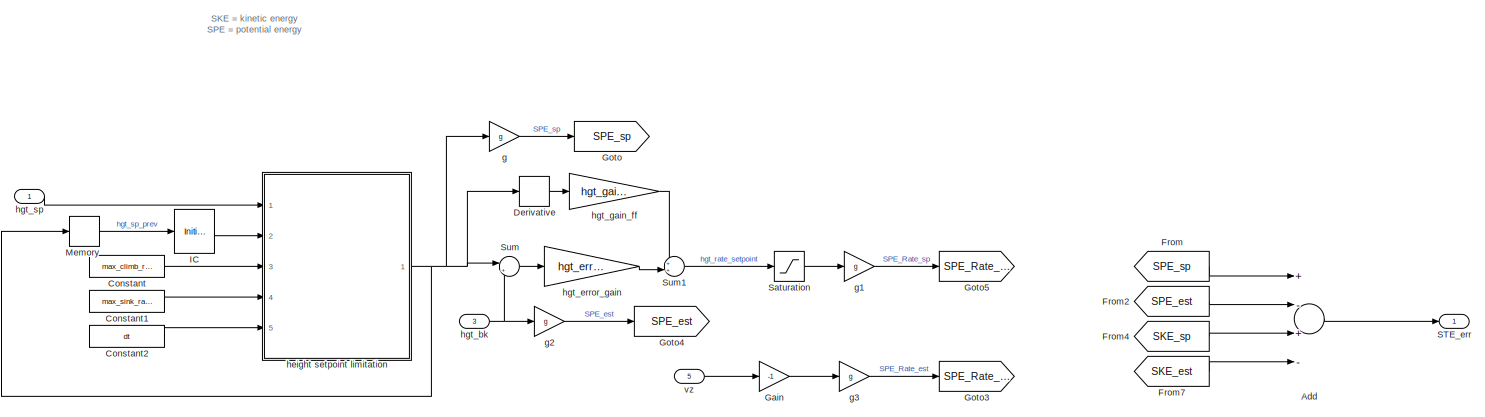
[diagram: FLY_CTRL_SYS/Guidance_Law/TECS/Energy Cal - part 1/2, full width, top band]
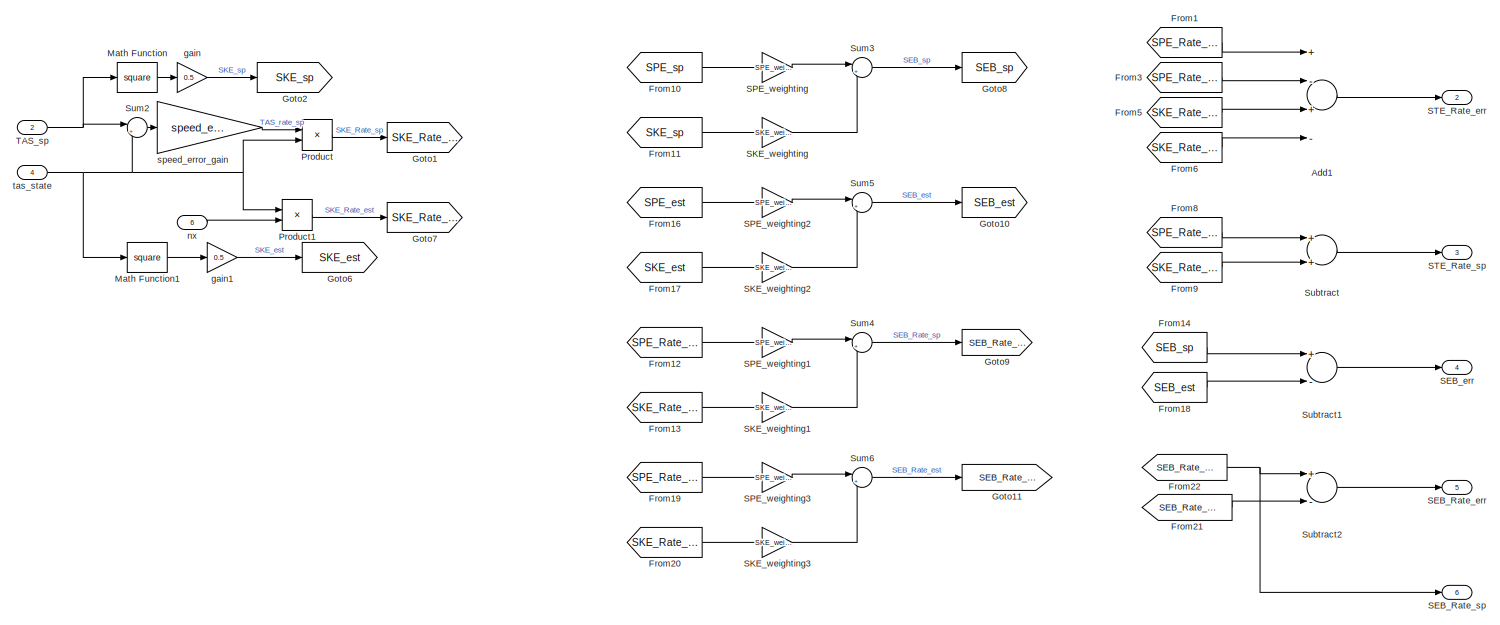
[diagram: FLY_CTRL_SYS/Guidance_Law/TECS/Energy Cal - part 2/2, full width, bottom band]
BLOCK [SubSystem] FLY_CTRL_SYS/Guidance_Law/TECS/Energy Cal
  Ports = [6, 6]
  RequestExecContextInheritance = off
  Variant = off
BLOCK [Sum] FLY_CTRL_SYS/Guidance_Law/TECS/Energy Cal/Add
  InputSameDT = off
  Inputs = +-+-
  OutDataTypeStr = Inherit: Inherit via internal rule
  Ports = [4, 1]
  SaturateOnIntegerOverflow = off
BLOCK [Sum] FLY_CTRL_SYS/Guidance_Law/TECS/Energy Cal/Add1
  InputSameDT = off
  Inputs = +-+-
  OutDataTypeStr = Inherit: Inherit via internal rule
  Ports = [4, 1]
  SaturateOnIntegerOverflow = off
BLOCK [Constant] FLY_CTRL_SYS/Guidance_Law/TECS/Energy Cal/Constant
  Value = max_climb_rate
BLOCK [Constant] FLY_CTRL_SYS/Guidance_Law/TECS/Energy Cal/Constant1
  Value = max_sink_rate
BLOCK [Constant] FLY_CTRL_SYS/Guidance_Law/TECS/Energy Cal/Constant2
  Value = dt
BLOCK [Derivative] FLY_CTRL_SYS/Guidance_Law/TECS/Energy Cal/Derivative
BLOCK [From] FLY_CTRL_SYS/Guidance_Law/TECS/Energy Cal/From
  GotoTag = SPE_sp
BLOCK [From] FLY_CTRL_SYS/Guidance_Law/TECS/Energy Cal/From1
  GotoTag = SPE_Rate_sp
BLOCK [From] FLY_CTRL_SYS/Guidance_Law/TECS/Energy Cal/From10
  GotoTag = SPE_sp
BLOCK [From] FLY_CTRL_SYS/Guidance_Law/TECS/Energy Cal/From11
  GotoTag = SKE_sp
BLOCK [From] FLY_CTRL_SYS/Guidance_Law/TECS/Energy Cal/From12
  GotoTag = SPE_Rate_sp
BLOCK [From] FLY_CTRL_SYS/Guidance_Law/TECS/Energy Cal/From13
  GotoTag = SKE_Rate_sp
BLOCK [From] FLY_CTRL_SYS/Guidance_Law/TECS/Energy Cal/From14
  GotoTag = SEB_sp
BLOCK [From] FLY_CTRL_SYS/Guidance_Law/TECS/Energy Cal/From16
  GotoTag = SPE_est
BLOCK [From] FLY_CTRL_SYS/Guidance_Law/TECS/Energy Cal/From17
  GotoTag = SKE_est
BLOCK [From] FLY_CTRL_SYS/Guidance_Law/TECS/Energy Cal/From18
  GotoTag = SEB_est
BLOCK [From] FLY_CTRL_SYS/Guidance_Law/TECS/Energy Cal/From19
  GotoTag = SPE_Rate_est
BLOCK [From] FLY_CTRL_SYS/Guidance_Law/TECS/Energy Cal/From2
  GotoTag = SPE_est
BLOCK [From] FLY_CTRL_SYS/Guidance_Law/TECS/Energy Cal/From20
  GotoTag = SKE_Rate_est
BLOCK [From] FLY_CTRL_SYS/Guidance_Law/TECS/Energy Cal/From21
  GotoTag = SEB_Rate_est
BLOCK [From] FLY_CTRL_SYS/Guidance_Law/TECS/Energy Cal/From22
  GotoTag = SEB_Rate_sp
BLOCK [From] FLY_CTRL_SYS/Guidance_Law/TECS/Energy Cal/From3
  GotoTag = SPE_Rate_est
BLOCK [From] FLY_CTRL_SYS/Guidance_Law/TECS/Energy Cal/From4
  GotoTag = SKE_sp
BLOCK [From] FLY_CTRL_SYS/Guidance_Law/TECS/Energy Cal/From5
  GotoTag = SKE_Rate_sp
BLOCK [From] FLY_CTRL_SYS/Guidance_Law/TECS/Energy Cal/From6
  GotoTag = SKE_Rate_est
BLOCK [From] FLY_CTRL_SYS/Guidance_Law/TECS/Energy Cal/From7
  GotoTag = SKE_est
BLOCK [From] FLY_CTRL_SYS/Guidance_Law/TECS/Energy Cal/From8
  GotoTag = SPE_Rate_sp
BLOCK [From] FLY_CTRL_SYS/Guidance_Law/TECS/Energy Cal/From9
  GotoTag = SKE_Rate_sp
BLOCK [Gain] FLY_CTRL_SYS/Guidance_Law/TECS/Energy Cal/Gain
  Gain = -1
  OutDataTypeStr = Inherit: Inherit via internal rule
  ParamDataTypeStr = Inherit: Inherit via internal rule
  SaturateOnIntegerOverflow = off
BLOCK [Goto] FLY_CTRL_SYS/Guidance_Law/TECS/Energy Cal/Goto
  GotoTag = SPE_sp
BLOCK [Goto] FLY_CTRL_SYS/Guidance_Law/TECS/Energy Cal/Goto1
  GotoTag = SKE_Rate_sp
BLOCK [Goto] FLY_CTRL_SYS/Guidance_Law/TECS/Energy Cal/Goto10
  GotoTag = SEB_est
BLOCK [Goto] FLY_CTRL_SYS/Guidance_Law/TECS/Energy Cal/Goto11
  GotoTag = SEB_Rate_est
BLOCK [Goto] FLY_CTRL_SYS/Guidance_Law/TECS/Energy Cal/Goto2
  GotoTag = SKE_sp
BLOCK [Goto] FLY_CTRL_SYS/Guidance_Law/TECS/Energy Cal/Goto3
  GotoTag = SPE_Rate_est
BLOCK [Goto] FLY_CTRL_SYS/Guidance_Law/TECS/Energy Cal/Goto4
  GotoTag = SPE_est
BLOCK [Goto] FLY_CTRL_SYS/Guidance_Law/TECS/Energy Cal/Goto5
  GotoTag = SPE_Rate_sp
BLOCK [Goto] FLY_CTRL_SYS/Guidance_Law/TECS/Energy Cal/Goto6
  GotoTag = SKE_est
BLOCK [Goto] FLY_CTRL_SYS/Guidance_Law/TECS/Energy Cal/Goto7
  GotoTag = SKE_Rate_est
BLOCK [Goto] FLY_CTRL_SYS/Guidance_Law/TECS/Energy Cal/Goto8
  GotoTag = SEB_sp
BLOCK [Goto] FLY_CTRL_SYS/Guidance_Law/TECS/Energy Cal/Goto9
  GotoTag = SEB_Rate_sp
BLOCK [InitialCondition] FLY_CTRL_SYS/Guidance_Law/TECS/Energy Cal/IC
  Value = -z0
BLOCK [Math] FLY_CTRL_SYS/Guidance_Law/TECS/Energy Cal/Math Function
  Operator = square
  Ports = [1, 1]
BLOCK [Math] FLY_CTRL_SYS/Guidance_Law/TECS/Energy Cal/Math Function1
  Operator = square
  Ports = [1, 1]
BLOCK [Memory] FLY_CTRL_SYS/Guidance_Law/TECS/Energy Cal/Memory
BLOCK [Product] FLY_CTRL_SYS/Guidance_Law/TECS/Energy Cal/Product
  InputSameDT = off
  OutDataTypeStr = Inherit: Inherit via internal rule
  Ports = [2, 1]
  RndMeth = Floor
  SaturateOnIntegerOverflow = off
BLOCK [Product] FLY_CTRL_SYS/Guidance_Law/TECS/Energy Cal/Product1
  InputSameDT = off
  OutDataTypeStr = Inherit: Inherit via internal rule
  Ports = [2, 1]
  RndMeth = Floor
  SaturateOnIntegerOverflow = off
BLOCK [Outport] FLY_CTRL_SYS/Guidance_Law/TECS/Energy Cal/SEB_Rate_err
  IconDisplay = Port number
  Port = 5
BLOCK [Outport] FLY_CTRL_SYS/Guidance_Law/TECS/Energy Cal/SEB_Rate_sp
  IconDisplay = Port number
  Port = 6
BLOCK [Outport] FLY_CTRL_SYS/Guidance_Law/TECS/Energy Cal/SEB_err
  IconDisplay = Port number
  Port = 4
BLOCK [Gain] FLY_CTRL_SYS/Guidance_Law/TECS/Energy Cal/SKE_weighting
  Gain = SKE_weighting
  OutDataTypeStr = Inherit: Inherit via internal rule
  ParamDataTypeStr = Inherit: Inherit via internal rule
  SaturateOnIntegerOverflow = off
BLOCK [Gain] FLY_CTRL_SYS/Guidance_Law/TECS/Energy Cal/SKE_weighting1
  Gain = SKE_weighting
  OutDataTypeStr = Inherit: Inherit via internal rule
  ParamDataTypeStr = Inherit: Inherit via internal rule
  SaturateOnIntegerOverflow = off
BLOCK [Gain] FLY_CTRL_SYS/Guidance_Law/TECS/Energy Cal/SKE_weighting2
  Gain = SKE_weighting
  OutDataTypeStr = Inherit: Inherit via internal rule
  ParamDataTypeStr = Inherit: Inherit via internal rule
  SaturateOnIntegerOverflow = off
BLOCK [Gain] FLY_CTRL_SYS/Guidance_Law/TECS/Energy Cal/SKE_weighting3
  Gain = SKE_weighting
  OutDataTypeStr = Inherit: Inherit via internal rule
  ParamDataTypeStr = Inherit: Inherit via internal rule
  SaturateOnIntegerOverflow = off
BLOCK [Gain] FLY_CTRL_SYS/Guidance_Law/TECS/Energy Cal/SPE_weighting
  Gain = SPE_weighting
  OutDataTypeStr = Inherit: Inherit via internal rule
  ParamDataTypeStr = Inherit: Inherit via internal rule
  SaturateOnIntegerOverflow = off
BLOCK [Gain] FLY_CTRL_SYS/Guidance_Law/TECS/Energy Cal/SPE_weighting1
  Gain = SPE_weighting
  OutDataTypeStr = Inherit: Inherit via internal rule
  ParamDataTypeStr = Inherit: Inherit via internal rule
  SaturateOnIntegerOverflow = off
BLOCK [Gain] FLY_CTRL_SYS/Guidance_Law/TECS/Energy Cal/SPE_weighting2
  Gain = SPE_weighting
  OutDataTypeStr = Inherit: Inherit via internal rule
  ParamDataTypeStr = Inherit: Inherit via internal rule
  SaturateOnIntegerOverflow = off
BLOCK [Gain] FLY_CTRL_SYS/Guidance_Law/TECS/Energy Cal/SPE_weighting3
  Gain = SPE_weighting
  OutDataTypeStr = Inherit: Inherit via internal rule
  ParamDataTypeStr = Inherit: Inherit via internal rule
  SaturateOnIntegerOverflow = off
BLOCK [Outport] FLY_CTRL_SYS/Guidance_Law/TECS/Energy Cal/STE_Rate_err
  IconDisplay = Port number
  Port = 2
BLOCK [Outport] FLY_CTRL_SYS/Guidance_Law/TECS/Energy Cal/STE_Rate_sp
  IconDisplay = Port number
  Port = 3
BLOCK [Outport] FLY_CTRL_SYS/Guidance_Law/TECS/Energy Cal/STE_err
  IconDisplay = Port number
BLOCK [Saturate] FLY_CTRL_SYS/Guidance_Law/TECS/Energy Cal/Saturation
  InputPortMap = u0
  LowerLimit = -min_sink_rate
  Ports = [1, 1]
  UpperLimit = max_climb_rate
BLOCK [Sum] FLY_CTRL_SYS/Guidance_Law/TECS/Energy Cal/Subtract
  InputSameDT = off
  OutDataTypeStr = Inherit: Inherit via internal rule
  Ports = [2, 1]
  SaturateOnIntegerOverflow = off
BLOCK [Sum] FLY_CTRL_SYS/Guidance_Law/TECS/Energy Cal/Subtract1
  InputSameDT = off
  Inputs = +-
  OutDataTypeStr = Inherit: Inherit via internal rule
  Ports = [2, 1]
  SaturateOnIntegerOverflow = off
BLOCK [Sum] FLY_CTRL_SYS/Guidance_Law/TECS/Energy Cal/Subtract2
  InputSameDT = off
  Inputs = +-
  OutDataTypeStr = Inherit: Inherit via internal rule
  Ports = [2, 1]
  SaturateOnIntegerOverflow = off
BLOCK [Sum] FLY_CTRL_SYS/Guidance_Law/TECS/Energy Cal/Sum
  IconShape = round
  InputSameDT = off
  Inputs = |+-
  OutDataTypeStr = Inherit: Inherit via internal rule
  Ports = [2, 1]
  SaturateOnIntegerOverflow = off
BLOCK [Sum] FLY_CTRL_SYS/Guidance_Law/TECS/Energy Cal/Sum1
  IconShape = round
  InputSameDT = off
  Inputs = ++|
  OutDataTypeStr = Inherit: Inherit via internal rule
  Ports = [2, 1]
  SaturateOnIntegerOverflow = off
BLOCK [Sum] FLY_CTRL_SYS/Guidance_Law/TECS/Energy Cal/Sum2
  IconShape = round
  InputSameDT = off
  Inputs = |+-
  OutDataTypeStr = Inherit: Inherit via internal rule
  Ports = [2, 1]
  SaturateOnIntegerOverflow = off
BLOCK [Sum] FLY_CTRL_SYS/Guidance_Law/TECS/Energy Cal/Sum3
  IconShape = round
  InputSameDT = off
  Inputs = |+-
  OutDataTypeStr = Inherit: Inherit via internal rule
  Ports = [2, 1]
  SaturateOnIntegerOverflow = off
BLOCK [Sum] FLY_CTRL_SYS/Guidance_Law/TECS/Energy Cal/Sum4
  IconShape = round
  InputSameDT = off
  Inputs = |+-
  OutDataTypeStr = Inherit: Inherit via internal rule
  Ports = [2, 1]
  SaturateOnIntegerOverflow = off
BLOCK [Sum] FLY_CTRL_SYS/Guidance_Law/TECS/Energy Cal/Sum5
  IconShape = round
  InputSameDT = off
  Inputs = |+-
  OutDataTypeStr = Inherit: Inherit via internal rule
  Ports = [2, 1]
  SaturateOnIntegerOverflow = off
BLOCK [Sum] FLY_CTRL_SYS/Guidance_Law/TECS/Energy Cal/Sum6
  IconShape = round
  InputSameDT = off
  Inputs = |+-
  OutDataTypeStr = Inherit: Inherit via internal rule
  Ports = [2, 1]
  SaturateOnIntegerOverflow = off
BLOCK [Inport] FLY_CTRL_SYS/Guidance_Law/TECS/Energy Cal/TAS_sp
  IconDisplay = Port number
  Port = 2
BLOCK [Gain] FLY_CTRL_SYS/Guidance_Law/TECS/Energy Cal/g
  Gain = g
  OutDataTypeStr = Inherit: Inherit via internal rule
  ParamDataTypeStr = Inherit: Inherit via internal rule
  SaturateOnIntegerOverflow = off
BLOCK [Gain] FLY_CTRL_SYS/Guidance_Law/TECS/Energy Cal/g1
  Gain = g
  OutDataTypeStr = Inherit: Inherit via internal rule
  ParamDataTypeStr = Inherit: Inherit via internal rule
  SaturateOnIntegerOverflow = off
BLOCK [Gain] FLY_CTRL_SYS/Guidance_Law/TECS/Energy Cal/g2
  Gain = g
  OutDataTypeStr = Inherit: Inherit via internal rule
  ParamDataTypeStr = Inherit: Inherit via internal rule
  SaturateOnIntegerOverflow = off
BLOCK [Gain] FLY_CTRL_SYS/Guidance_Law/TECS/Energy Cal/g3
  Gain = g
  OutDataTypeStr = Inherit: Inherit via internal rule
  ParamDataTypeStr = Inherit: Inherit via internal rule
  SaturateOnIntegerOverflow = off
BLOCK [Gain] FLY_CTRL_SYS/Guidance_Law/TECS/Energy Cal/gain
  Gain = 0.5
  OutDataTypeStr = Inherit: Inherit via internal rule
  ParamDataTypeStr = Inherit: Inherit via internal rule
  SaturateOnIntegerOverflow = off
BLOCK [Gain] FLY_CTRL_SYS/Guidance_Law/TECS/Energy Cal/gain1
  Gain = 0.5
  OutDataTypeStr = Inherit: Inherit via internal rule
  ParamDataTypeStr = Inherit: Inherit via internal rule
  SaturateOnIntegerOverflow = off
BLOCK [SubSystem] FLY_CTRL_SYS/Guidance_Law/TECS/Energy Cal/height setpoint limitation
  ErrorFcn = Stateflow.Translate.translate
  PermitHierarchicalResolution = ExplicitOnly
  Ports = [5, 1]
  RequestExecContextInheritance = off
  SFBlockType = MATLAB Function
  TreatAsAtomicUnit = on
  Variant = off
BLOCK [Demux] FLY_CTRL_SYS/Guidance_Law/TECS/Energy Cal/height setpoint limitation/ Demux 
  Outputs = 1
  Ports = [1, 1]
BLOCK [S-Function] FLY_CTRL_SYS/Guidance_Law/TECS/Energy Cal/height setpoint limitation/ SFunction 
  EnableBusSupport = on
  FunctionName = sf_sfun
  PortCounts = [5 2]
  Ports = [5, 2]
  SFcnIsStateOwnerBlock = off
  SFunctionDeploymentMode = off
  Tag = Stateflow S-Function V40 27
BLOCK [Terminator] FLY_CTRL_SYS/Guidance_Law/TECS/Energy Cal/height setpoint limitation/ Terminator 
BLOCK [Inport] FLY_CTRL_SYS/Guidance_Law/TECS/Energy Cal/height setpoint limitation/dt
  IconDisplay = Port number
  Port = 5
BLOCK [Inport] FLY_CTRL_SYS/Guidance_Law/TECS/Energy Cal/height setpoint limitation/hgt_sp
  IconDisplay = Port number
BLOCK [Outport] FLY_CTRL_SYS/Guidance_Law/TECS/Energy Cal/height setpoint limitation/hgt_sp_adj
  IconDisplay = Port number
BLOCK [Inport] FLY_CTRL_SYS/Guidance_Law/TECS/Energy Cal/height setpoint limitation/hgt_sp_prev
  IconDisplay = Port number
  Port = 2
BLOCK [Inport] FLY_CTRL_SYS/Guidance_Law/TECS/Energy Cal/height setpoint limitation/max_climb_rate
  IconDisplay = Port number
  Port = 3
BLOCK [Inport] FLY_CTRL_SYS/Guidance_Law/TECS/Energy Cal/height setpoint limitation/max_sink_rate
  IconDisplay = Port number
  Port = 4
BLOCK [Inport] FLY_CTRL_SYS/Guidance_Law/TECS/Energy Cal/hgt_bk
  IconDisplay = Port number
  Port = 3
BLOCK [Gain] FLY_CTRL_SYS/Guidance_Law/TECS/Energy Cal/hgt_error_gain
  Gain = hgt_error_gain
  OutDataTypeStr = Inherit: Inherit via internal rule
  ParamDataTypeStr = Inherit: Inherit via internal rule
  SaturateOnIntegerOverflow = off
BLOCK [Gain] FLY_CTRL_SYS/Guidance_Law/TECS/Energy Cal/hgt_gain_ff
  Gain = hgt_gain_ff
  OutDataTypeStr = Inherit: Inherit via internal rule
  ParamDataTypeStr = Inherit: Inherit via internal rule
  SaturateOnIntegerOverflow = off
BLOCK [Inport] FLY_CTRL_SYS/Guidance_Law/TECS/Energy Cal/hgt_sp
  IconDisplay = Port number
BLOCK [Inport] FLY_CTRL_SYS/Guidance_Law/TECS/Energy Cal/nx
  IconDisplay = Port number
  Port = 6
BLOCK [Gain] FLY_CTRL_SYS/Guidance_Law/TECS/Energy Cal/speed_error_gain
  Gain = speed_error_gain
  OutDataTypeStr = Inherit: Inherit via internal rule
  ParamDataTypeStr = Inherit: Inherit via internal rule
  SaturateOnIntegerOverflow = off
BLOCK [Inport] FLY_CTRL_SYS/Guidance_Law/TECS/Energy Cal/tas_state
  IconDisplay = Port number
  Port = 4
BLOCK [Inport] FLY_CTRL_SYS/Guidance_Law/TECS/Energy Cal/vz
  IconDisplay = Port number
  Port = 5
BLOCK [From] FLY_CTRL_SYS/Guidance_Law/TECS/From
  GotoTag = tas_state
BLOCK [Gain] FLY_CTRL_SYS/Guidance_Law/TECS/Gain
  Gain = 1.0
  OutDataTypeStr = Inherit: Inherit via internal rule
  ParamDataTypeStr = Inherit: Inherit via internal rule
  SaturateOnIntegerOverflow = off
BLOCK [Gain] FLY_CTRL_SYS/Guidance_Law/TECS/Gain1
  Gain = 2
  OutDataTypeStr = Inherit: Inherit via internal rule
  ParamDataTypeStr = Inherit: Inherit via internal rule
  SaturateOnIntegerOverflow = off
BLOCK [Goto] FLY_CTRL_SYS/Guidance_Law/TECS/Goto
  GotoTag = tas_state
BLOCK [Integrator] FLY_CTRL_SYS/Guidance_Law/TECS/Integrator
  Ports = [1, 1]
BLOCK [Integrator] FLY_CTRL_SYS/Guidance_Law/TECS/Integrator1
  Ports = [1, 1]
BLOCK [SubSystem] FLY_CTRL_SYS/Guidance_Law/TECS/MATLAB Function
  ErrorFcn = Stateflow.Translate.translate
  PermitHierarchicalResolution = ExplicitOnly
  Ports = [4, 1]
  RequestExecContextInheritance = off
  SFBlockType = MATLAB Function
  TreatAsAtomicUnit = on
  Variant = off
BLOCK [Demux] FLY_CTRL_SYS/Guidance_Law/TECS/MATLAB Function/ Demux 
  Outputs = 1
  Ports = [1, 1]
BLOCK [S-Function] FLY_CTRL_SYS/Guidance_Law/TECS/MATLAB Function/ SFunction 
  EnableBusSupport = on
  FunctionName = sf_sfun
  PortCounts = [4 2]
  Ports = [4, 2]
  SFcnIsStateOwnerBlock = off
  SFunctionDeploymentMode = off
  Tag = Stateflow S-Function V40 28
BLOCK [Terminator] FLY_CTRL_SYS/Guidance_Law/TECS/MATLAB Function/ Terminator 
BLOCK [Inport] FLY_CTRL_SYS/Guidance_Law/TECS/MATLAB Function/STE_rate_max
  IconDisplay = Port number
  Port = 3
BLOCK [Inport] FLY_CTRL_SYS/Guidance_Law/TECS/MATLAB Function/STE_rate_min
  IconDisplay = Port number
  Port = 4
BLOCK [Inport] FLY_CTRL_SYS/Guidance_Law/TECS/MATLAB Function/STE_rate_setpoint
  IconDisplay = Port number
BLOCK [Inport] FLY_CTRL_SYS/Guidance_Law/TECS/MATLAB Function/throttle_cruise
  IconDisplay = Port number
  Port = 2
BLOCK [Outport] FLY_CTRL_SYS/Guidance_Law/TECS/MATLAB Function/throttle_predicted
  IconDisplay = Port number
BLOCK [Memory] FLY_CTRL_SYS/Guidance_Law/TECS/Memory3
BLOCK [Gain] FLY_CTRL_SYS/Guidance_Law/TECS/Pitch_Kd
  Gain = Pitch_Kd
  OutDataTypeStr = Inherit: Inherit via internal rule
  ParamDataTypeStr = Inherit: Inherit via internal rule
  SaturateOnIntegerOverflow = off
BLOCK [Gain] FLY_CTRL_SYS/Guidance_Law/TECS/Pitch_Ki
  Gain = Pitch_Ki
  OutDataTypeStr = Inherit: Inherit via internal rule
  ParamDataTypeStr = Inherit: Inherit via internal rule
  SaturateOnIntegerOverflow = off
BLOCK [Gain] FLY_CTRL_SYS/Guidance_Law/TECS/STE_to_throttle
  Gain = STE_to_throttle
  OutDataTypeStr = Inherit: Inherit via internal rule
  ParamDataTypeStr = Inherit: Inherit via internal rule
  SaturateOnIntegerOverflow = off
BLOCK [Saturate] FLY_CTRL_SYS/Guidance_Law/TECS/Saturation
  InputPortMap = u0
  LowerLimit = -pitch_sp_limit
  Ports = [1, 1]
  UpperLimit = pitch_sp_limit
BLOCK [Saturate] FLY_CTRL_SYS/Guidance_Law/TECS/Saturation1
  InputPortMap = u0
  LowerLimit = 0
  Ports = [1, 1]
  UpperLimit = 1
BLOCK [Scope] FLY_CTRL_SYS/Guidance_Law/TECS/Scope
  NumInputPorts = 1
  Ports = [1]
  ScopeSpecificationString = Simulink.scopes.TimeScopeBlockCfg('CurrentConfiguration', extmgr.ConfigurationSet(extmgr.Configuration('Core','General UI',true),extmgr.Configuration('Core','Source UI',true),extmgr.Configuration('Sources','WiredSimulink',true,'DataLoggingVariableName','ScopeData5'),extmgr.Configuration('Visuals','Time Domain',true,'SerializedDisplays',{struct('MinYLimReal','24.47454','MaxYLimReal','25.05838','YLa...<+1405ch>
BLOCK [Scope] FLY_CTRL_SYS/Guidance_Law/TECS/Scope1
  NumInputPorts = 1
  Ports = [1]
  ScopeSpecificationString = Simulink.scopes.TimeScopeBlockCfg('CurrentConfiguration', extmgr.ConfigurationSet(extmgr.Configuration('Core','General UI',true),extmgr.Configuration('Core','Source UI',true),extmgr.Configuration('Sources','WiredSimulink',true,'DataLoggingVariableName','ScopeData6'),extmgr.Configuration('Visuals','Time Domain',true,'SerializedDisplays',{struct('MinYLimReal','15.00000','MaxYLimReal','35.00000','YLa...<+1400ch>
BLOCK [Selector] FLY_CTRL_SYS/Guidance_Law/TECS/Selector
  IndexOptions = Index vector (dialog)
  Indices = 3
  InputPortWidth = 3
  OutputSizes = 1
  Ports = [1, 1]
BLOCK [Selector] FLY_CTRL_SYS/Guidance_Law/TECS/Selector1
  IndexOptions = Index vector (dialog)
  Indices = 3
  InputPortWidth = 3
  OutputSizes = 1
  Ports = [1, 1]
BLOCK [Selector] FLY_CTRL_SYS/Guidance_Law/TECS/Selector2
  IndexOptions = Index vector (dialog)
  Indices = 1
  InputPortWidth = 3
  OutputSizes = 1
  Ports = [1, 1]
BLOCK [Sum] FLY_CTRL_SYS/Guidance_Law/TECS/Sum
  IconShape = round
  InputSameDT = off
  Inputs = +++
  OutDataTypeStr = Inherit: Inherit via internal rule
  Ports = [3, 1]
  SaturateOnIntegerOverflow = off
BLOCK [Sum] FLY_CTRL_SYS/Guidance_Law/TECS/Sum1
  IconShape = round
  InputSameDT = off
  Inputs = +++
  OutDataTypeStr = Inherit: Inherit via internal rule
  Ports = [3, 1]
  SaturateOnIntegerOverflow = off
BLOCK [Sum] FLY_CTRL_SYS/Guidance_Law/TECS/Sum2
  IconShape = round
  InputSameDT = off
  Inputs = |++
  OutDataTypeStr = Inherit: Inherit via internal rule
  Ports = [2, 1]
  SaturateOnIntegerOverflow = off
BLOCK [Sum] FLY_CTRL_SYS/Guidance_Law/TECS/Sum3
  IconShape = round
  InputSameDT = off
  Inputs = ++|
  OutDataTypeStr = Inherit: Inherit via internal rule
  Ports = [2, 1]
  SaturateOnIntegerOverflow = off
BLOCK [Sum] FLY_CTRL_SYS/Guidance_Law/TECS/Sum4
  IconShape = round
  InputSameDT = off
  Inputs = |+-
  OutDataTypeStr = Inherit: Inherit via internal rule
  Ports = [2, 1]
  SaturateOnIntegerOverflow = off
BLOCK [Inport] FLY_CTRL_SYS/Guidance_Law/TECS/TAS_sp
  IconDisplay = Port number
  Port = 2
BLOCK [Gain] FLY_CTRL_SYS/Guidance_Law/TECS/THR_Kd
  Gain = THR_Kd
  OutDataTypeStr = Inherit: Inherit via internal rule
  ParamDataTypeStr = Inherit: Inherit via internal rule
  SaturateOnIntegerOverflow = off
BLOCK [Gain] FLY_CTRL_SYS/Guidance_Law/TECS/THR_Ki
  Gain = THR_Ki
  OutDataTypeStr = Inherit: Inherit via internal rule
  ParamDataTypeStr = Inherit: Inherit via internal rule
  SaturateOnIntegerOverflow = off
BLOCK [Gain] FLY_CTRL_SYS/Guidance_Law/TECS/g
  Gain = g
  OutDataTypeStr = Inherit: Inherit via internal rule
  ParamDataTypeStr = Inherit: Inherit via internal rule
  SaturateOnIntegerOverflow = off
BLOCK [Inport] FLY_CTRL_SYS/Guidance_Law/TECS/hgt_sp
  IconDisplay = Port number
BLOCK [Outport] FLY_CTRL_SYS/Guidance_Law/TECS/pitch_sp
  IconDisplay = Port number
BLOCK [Gain] FLY_CTRL_SYS/Guidance_Law/TECS/pitch_time_constant
  Gain = pitch_time_constant
  OutDataTypeStr = Inherit: Inherit via internal rule
  ParamDataTypeStr = Inherit: Inherit via internal rule
  SaturateOnIntegerOverflow = off
BLOCK [Gain] FLY_CTRL_SYS/Guidance_Law/TECS/pitch_time_constant1
  Gain = pitch_time_constant
  OutDataTypeStr = Inherit: Inherit via internal rule
  ParamDataTypeStr = Inherit: Inherit via internal rule
  SaturateOnIntegerOverflow = off
BLOCK [Outport] FLY_CTRL_SYS/Guidance_Law/TECS/throttle_sp
  IconDisplay = Port number
  OutMax = 1
  OutMin = 0
  Port = 2
  PortDimensions = 1
  SignalType = real
  VarSizeSig = No
BLOCK [Inport] FLY_CTRL_SYS/Guidance_Law/curr_wp
  IconDisplay = Port number
  Port = 2
BLOCK [Inport] FLY_CTRL_SYS/Guidance_Law/prev_wp
  IconDisplay = Port number
BLOCK [Outport] FLY_CTRL_SYS/Guidance_Law/throttle_sp
  IconDisplay = Port number
  Port = 2
BLOCK [Sum] FLY_CTRL_SYS/Sum
  IconShape = round
  InputSameDT = off
  Inputs = ++|
  OutDataTypeStr = Inherit: Inherit via internal rule
  Ports = [2, 1]
  SaturateOnIntegerOverflow = off
BLOCK [Inport] FLY_CTRL_SYS/TAS_sp
  IconDisplay = Port number
  Port = 3
BLOCK [Inport] FLY_CTRL_SYS/curr_wp
  IconDisplay = Port number
  Port = 2
BLOCK [Inport] FLY_CTRL_SYS/prev_wp
  IconDisplay = Port number
BLOCK [Outport] FLY_CTRL_SYS/throttle_sp
  IconDisplay = Port number
  Port = 2
BLOCK [Reference] Radians to Degrees  REF=simulink_extras/Transformations/Radians
to Degrees
  Ports = [1, 1]
  SourceBlock = simulink_extras/Transformations/Radians\nto Degrees
  SourceProductBaseCode = SL
  SourceProductName = Simulink
  SourceType = RadiansToDegrees
BLOCK [Reference] Radians to Degrees1  REF=simulink_extras/Transformations/Radians
to Degrees
  Ports = [1, 1]
  SourceBlock = simulink_extras/Transformations/Radians\nto Degrees
  SourceProductBaseCode = SL
  SourceProductName = Simulink
  SourceType = RadiansToDegrees
BLOCK [Scope] Scope
  NumInputPorts = 1
  Ports = [1]
  ScopeSpecificationString = Simulink.scopes.TimeScopeBlockCfg('CurrentConfiguration', extmgr.ConfigurationSet(extmgr.Configuration('Core','General UI',true),extmgr.Configuration('Core','Source UI',true),extmgr.Configuration('Sources','WiredSimulink',true,'DataLoggingVariableName','ScopeData1'),extmgr.Configuration('Visuals','Time Domain',true,'SerializedDisplays',{struct('MinYLimReal','-25.69596','MaxYLimReal','36.11529','YL...<+1824ch>
BLOCK [Scope] Scope1
  NumInputPorts = 1
  Ports = [1]
  ScopeSpecificationString = Simulink.scopes.TimeScopeBlockCfg('CurrentConfiguration', extmgr.ConfigurationSet(extmgr.Configuration('Core','General UI',true),extmgr.Configuration('Core','Source UI',true),extmgr.Configuration('Sources','WiredSimulink',true,'DataLoggingVariableName','ScopeData2'),extmgr.Configuration('Visuals','Time Domain',true,'SerializedDisplays',{struct('MinYLimReal','-0.63079','MaxYLimReal','5.6771','YLabe...<+1774ch>
BLOCK [Scope] Scope2
  NumInputPorts = 1
  Ports = [1]
  ScopeSpecificationString = Simulink.scopes.TimeScopeBlockCfg('CurrentConfiguration', extmgr.ConfigurationSet(extmgr.Configuration('Core','General UI',true),extmgr.Configuration('Core','Source UI',true),extmgr.Configuration('Sources','WiredSimulink',true,'DataLoggingVariableName','ScopeData1'),extmgr.Configuration('Visuals','Time Domain',true,'SerializedDisplays',{struct('MinYLimReal','30.80976','MaxYLimReal','30.82316','YLa...<+1699ch>
BLOCK [Scope] Scope3
  NumInputPorts = 1
  Ports = [1]
  ScopeSpecificationString = Simulink.scopes.TimeScopeBlockCfg('CurrentConfiguration', extmgr.ConfigurationSet(extmgr.Configuration('Core','General UI',true),extmgr.Configuration('Core','Source UI',true),extmgr.Configuration('Sources','WiredSimulink',true,'DataLoggingVariableName','ScopeData1'),extmgr.Configuration('Visuals','Time Domain',true,'SerializedDisplays',{struct('MinYLimReal','-66.31879','MaxYLimReal','596.86915','Y...<+1405ch>
BLOCK [Scope] Scope4
  NumInputPorts = 1
  Ports = [1]
  ScopeSpecificationString = Simulink.scopes.TimeScopeBlockCfg('CurrentConfiguration', extmgr.ConfigurationSet(extmgr.Configuration('Core','General UI',true),extmgr.Configuration('Core','Source UI',true),extmgr.Configuration('Sources','WiredSimulink',true,'DataLoggingVariableName','ScopeData6'),extmgr.Configuration('Visuals','Time Domain',true,'SerializedDisplays',{struct('MinYLimReal','21.35523','MaxYLimReal','221.35523','YL...<+1692ch>
BLOCK [Scope] Scope5
  NumInputPorts = 1
  Ports = [1]
  ScopeSpecificationString = Simulink.scopes.TimeScopeBlockCfg('CurrentConfiguration', extmgr.ConfigurationSet(extmgr.Configuration('Core','General UI',true),extmgr.Configuration('Core','Source UI',true),extmgr.Configuration('Sources','WiredSimulink',true,'DataLoggingVariableName','ScopeData7'),extmgr.Configuration('Visuals','Time Domain',true,'SerializedDisplays',{struct('MinYLimReal','192.57817','MaxYLimReal','261.63856','Y...<+1721ch>
BLOCK [Scope] Scope7
  NumInputPorts = 1
  Ports = [1]
  ScopeSpecificationString = Simulink.scopes.TimeScopeBlockCfg('CurrentConfiguration', extmgr.ConfigurationSet(extmgr.Configuration('Core','General UI',true),extmgr.Configuration('Core','Source UI',true),extmgr.Configuration('Sources','WiredSimulink',true,'DataLoggingVariableName','ScopeData2'),extmgr.Configuration('Visuals','Time Domain',true,'SerializedDisplays',{struct('MinYLimReal','-1.00000','MaxYLimReal','1.00000','YLab...<+1395ch>
BLOCK [Scope] Scope8
  NumInputPorts = 1
  Ports = [1]
  ScopeSpecificationString = Simulink.scopes.TimeScopeBlockCfg('CurrentConfiguration', extmgr.ConfigurationSet(extmgr.Configuration('Core','General UI',true),extmgr.Configuration('Core','Source UI',true),extmgr.Configuration('Sources','WiredSimulink',true,'DataLoggingVariableName','ScopeData3'),extmgr.Configuration('Visuals','Time Domain',true,'SerializedDisplays',{struct('MinYLimReal','-263.11022','MaxYLimReal','-192.34225',...<+1455ch>
BLOCK [ToWorkspace] To Workspace
  FixptAsFi = on
  MaxDataPoints = inf
  Ports = [1]
  SampleTime = -1
  Save2DSignal = 3-D array (concatenate along third dimension)
  SaveFormat = Timeseries
  VariableName = RPY
BLOCK [ToWorkspace] To Workspace1
  FixptAsFi = on
  MaxDataPoints = inf
  Ports = [1]
  SampleTime = -1
  Save2DSignal = 3-D array (concatenate along third dimension)
  SaveFormat = Timeseries
  VariableName = AOA
BLOCK [Reference] Up north and Right east  REF=simulink/Sinks/XY Graph
  Ports = [2]
  SourceBlock = simulink/Sinks/XY Graph
  SourceProductBaseCode = SL
  SourceProductName = Simulink
  SourceType = XY scope.
BLOCK [Scope] v_air_norm
  NumInputPorts = 1
  Ports = [1]
  ScopeSpecificationString = Simulink.scopes.TimeScopeBlockCfg('CurrentConfiguration', extmgr.ConfigurationSet(extmgr.Configuration('Core','General UI',true),extmgr.Configuration('Core','Source UI',true),extmgr.Configuration('Sources','WiredSimulink',true,'DataLoggingVariableName','ScopeData4'),extmgr.Configuration('Visuals','Time Domain',true),extmgr.Configuration('Tools','Plot Navigation',true),extmgr.Configuration('Tools',...<+40ch>
ANNOTATION DiscreteToContinuous: This model is identified by ken. <email>
ANNOTATION FLY_CTRL_SYS/Guidance_Law: throttle_sp is in the range of -1 ~ 1
ANNOTATION FLY_CTRL_SYS/Guidance_Law/TECS/Energy Cal: SKE = kinetic energy SPE = potential energy
LINE Airframe/6DOF (Quaternion):1 -> Airframe/Bus Creator:1
NET Airframe/6DOF (Quaternion):2 -> Airframe/Bus Creator:2, Airframe/Flat Earth to LLA:1
LINE Airframe/6DOF (Quaternion):3 -> Airframe/Bus Creator:3
LINE Airframe/6DOF (Quaternion):4 -> Airframe/Bus Creator:4
NET Airframe/6DOF (Quaternion):5 -> Airframe/Bus Creator:5, Airframe/Subsystem2:1
LINE Airframe/6DOF (Quaternion):6 -> Airframe/Bus Creator:6
LINE Airframe/6DOF (Quaternion):7 -> Airframe/Bus Creator:7
LINE Airframe/6DOF (Quaternion):8 -> Airframe/Bus Creator:8
LINE Airframe/6DOF (Quaternion):9 -> Airframe/Bus Creator:9
LINE Airframe/ActuatorSurfaceInDegree:1 -> Airframe/FWAerodynamicsProduceForceAndMoment:1
LINE Airframe/Add:1 -> Airframe/6DOF (Quaternion):1
NET Airframe/Bus Creator:1 -> Airframe/Bus Selector:1, Airframe/SuperMonitor:1
LINE Airframe/Bus Selector:1 -> Airframe/Matrix Multiply1:1
LINE Airframe/Bus Selector:2 -> Airframe/TilePropellerForce:2
LINE Airframe/Bus Selector:3 -> Airframe/FWAerodynamicsProduceForceAndMoment:2
LINE Airframe/Bus Selector:4 -> Airframe/FWAerodynamicsProduceForceAndMoment:3
LINE Airframe/Bus Selector:5 -> Airframe/FWAerodynamicsProduceForceAndMoment:4
LINE Airframe/Constant8:1 -> Airframe/Matrix Multiply1:2
LINE Airframe/Constant:1 -> Airframe/Flat Earth to LLA:2
LINE Airframe/FWAerodynamicsProduceForceAndMoment/ActuatorSurfaceInDegree:1 -> Airframe/FWAerodynamicsProduceForceAndMoment/Bus Selector:1
NET Airframe/FWAerodynamicsProduceForceAndMoment/AlphaBetaInRadius:1 -> Airframe/FWAerodynamicsProduceForceAndMoment/Demux:1, Airframe/FWAerodynamicsProduceForceAndMoment/Xishuzhuanliju:1
LINE Airframe/FWAerodynamicsProduceForceAndMoment/Bus Selector:1 -> Airframe/FWAerodynamicsProduceForceAndMoment/Data Type Conversion1:1
LINE Airframe/FWAerodynamicsProduceForceAndMoment/Bus Selector:2 -> Airframe/FWAerodynamicsProduceForceAndMoment/Data Type Conversion7:1
LINE Airframe/FWAerodynamicsProduceForceAndMoment/Bus Selector:3 -> Airframe/FWAerodynamicsProduceForceAndMoment/Data Type Conversion8:1
LINE Airframe/FWAerodynamicsProduceForceAndMoment/Bus Selector:4 -> Airframe/FWAerodynamicsProduceForceAndMoment/Data Type Conversion9:1
LINE Airframe/FWAerodynamicsProduceForceAndMoment/Bus Selector:5 -> Airframe/FWAerodynamicsProduceForceAndMoment/Data Type Conversion10:1
LINE Airframe/FWAerodynamicsProduceForceAndMoment/Bus Selector:6 -> Airframe/FWAerodynamicsProduceForceAndMoment/Data Type Conversion11:1
LINE Airframe/FWAerodynamicsProduceForceAndMoment/CG position correction/Add1:1 -> Airframe/FWAerodynamicsProduceForceAndMoment/CG position correction/Cn:1
LINE Airframe/FWAerodynamicsProduceForceAndMoment/CG position correction/Add2:1 -> Airframe/FWAerodynamicsProduceForceAndMoment/CG position correction/Cm:1
LINE Airframe/FWAerodynamicsProduceForceAndMoment/CG position correction/Add3:1 -> Airframe/FWAerodynamicsProduceForceAndMoment/CG position correction/Cl:1
LINE Airframe/FWAerodynamicsProduceForceAndMoment/CG position correction/Add4:1 -> Airframe/FWAerodynamicsProduceForceAndMoment/CG position correction/Goto9:1
LINE Airframe/FWAerodynamicsProduceForceAndMoment/CG position correction/Add:1 -> Airframe/FWAerodynamicsProduceForceAndMoment/CG position correction/Goto3:1
NET Airframe/FWAerodynamicsProduceForceAndMoment/CG position correction/Constant1:1 -> Airframe/FWAerodynamicsProduceForceAndMoment/CG position correction/Divide1:2, Airframe/FWAerodynamicsProduceForceAndMoment/CG position correction/Divide2:2
LINE Airframe/FWAerodynamicsProduceForceAndMoment/CG position correction/Constant2:1 -> Airframe/FWAerodynamicsProduceForceAndMoment/CG position correction/Sum:2
NET Airframe/FWAerodynamicsProduceForceAndMoment/CG position correction/Constant3:1 -> Airframe/FWAerodynamicsProduceForceAndMoment/CG position correction/Divide3:2, Airframe/FWAerodynamicsProduceForceAndMoment/CG position correction/Divide4:2
LINE Airframe/FWAerodynamicsProduceForceAndMoment/CG position correction/Constant4:1 -> Airframe/FWAerodynamicsProduceForceAndMoment/CG position correction/Sum1:2
NET Airframe/FWAerodynamicsProduceForceAndMoment/CG position correction/Cos1:1 -> Airframe/FWAerodynamicsProduceForceAndMoment/CG position correction/Product1:3, Airframe/FWAerodynamicsProduceForceAndMoment/CG position correction/Product5:3
NET Airframe/FWAerodynamicsProduceForceAndMoment/CG position correction/Cos:1 -> Airframe/FWAerodynamicsProduceForceAndMoment/CG position correction/Product5:2, Airframe/FWAerodynamicsProduceForceAndMoment/CG position correction/Product:2
LINE Airframe/FWAerodynamicsProduceForceAndMoment/CG position correction/Degrees to Radians1:1 -> Airframe/FWAerodynamicsProduceForceAndMoment/CG position correction/Goto65:1
LINE Airframe/FWAerodynamicsProduceForceAndMoment/CG position correction/Degrees to Radians:1 -> Airframe/FWAerodynamicsProduceForceAndMoment/CG position correction/Goto64:1
LINE Airframe/FWAerodynamicsProduceForceAndMoment/CG position correction/Demux:1 -> Airframe/FWAerodynamicsProduceForceAndMoment/CG position correction/Goto1:1
LINE Airframe/FWAerodynamicsProduceForceAndMoment/CG position correction/Demux:2 -> Airframe/FWAerodynamicsProduceForceAndMoment/CG position correction/Goto2:1
LINE Airframe/FWAerodynamicsProduceForceAndMoment/CG position correction/Demux:3 -> Airframe/FWAerodynamicsProduceForceAndMoment/CG position correction/Goto4:1
LINE Airframe/FWAerodynamicsProduceForceAndMoment/CG position correction/Demux:4 -> Airframe/FWAerodynamicsProduceForceAndMoment/CG position correction/Goto5:1
LINE Airframe/FWAerodynamicsProduceForceAndMoment/CG position correction/Demux:5 -> Airframe/FWAerodynamicsProduceForceAndMoment/CG position correction/Goto6:1
LINE Airframe/FWAerodynamicsProduceForceAndMoment/CG position correction/Demux:6 -> Airframe/FWAerodynamicsProduceForceAndMoment/CG position correction/Goto7:1
LINE Airframe/FWAerodynamicsProduceForceAndMoment/CG position correction/Divide1:1 -> Airframe/FWAerodynamicsProduceForceAndMoment/CG position correction/Product3:2
LINE Airframe/FWAerodynamicsProduceForceAndMoment/CG position correction/Divide2:1 -> Airframe/FWAerodynamicsProduceForceAndMoment/CG position correction/Product4:2
LINE Airframe/FWAerodynamicsProduceForceAndMoment/CG position correction/Divide3:1 -> Airframe/FWAerodynamicsProduceForceAndMoment/CG position correction/Product2:1
LINE Airframe/FWAerodynamicsProduceForceAndMoment/CG position correction/Divide4:1 -> Airframe/FWAerodynamicsProduceForceAndMoment/CG position correction/Product7:2
LINE Airframe/FWAerodynamicsProduceForceAndMoment/CG position correction/From10:1 -> Airframe/FWAerodynamicsProduceForceAndMoment/CG position correction/CD:1
LINE Airframe/FWAerodynamicsProduceForceAndMoment/CG position correction/From11:1 -> Airframe/FWAerodynamicsProduceForceAndMoment/CG position correction/CY:1
LINE Airframe/FWAerodynamicsProduceForceAndMoment/CG position correction/From12:1 -> Airframe/FWAerodynamicsProduceForceAndMoment/CG position correction/Sum1:1
LINE Airframe/FWAerodynamicsProduceForceAndMoment/CG position correction/From13:1 -> Airframe/FWAerodynamicsProduceForceAndMoment/CG position correction/Product4:1
LINE Airframe/FWAerodynamicsProduceForceAndMoment/CG position correction/From14:1 -> Airframe/FWAerodynamicsProduceForceAndMoment/CG position correction/Product7:1
NET Airframe/FWAerodynamicsProduceForceAndMoment/CG position correction/From1:1 -> Airframe/FWAerodynamicsProduceForceAndMoment/CG position correction/Cos:1, Airframe/FWAerodynamicsProduceForceAndMoment/CG position correction/Trigonometric Function:1
LINE Airframe/FWAerodynamicsProduceForceAndMoment/CG position correction/From2:1 -> Airframe/FWAerodynamicsProduceForceAndMoment/CG position correction/Cos1:1
NET Airframe/FWAerodynamicsProduceForceAndMoment/CG position correction/From3:1 -> Airframe/FWAerodynamicsProduceForceAndMoment/CG position correction/Product1:1, Airframe/FWAerodynamicsProduceForceAndMoment/CG position correction/Product5:1
LINE Airframe/FWAerodynamicsProduceForceAndMoment/CG position correction/From4:1 -> Airframe/FWAerodynamicsProduceForceAndMoment/CG position correction/Product2:2
LINE Airframe/FWAerodynamicsProduceForceAndMoment/CG position correction/From5:1 -> Airframe/FWAerodynamicsProduceForceAndMoment/CG position correction/Product3:1
LINE Airframe/FWAerodynamicsProduceForceAndMoment/CG position correction/From6:1 -> Airframe/FWAerodynamicsProduceForceAndMoment/CG position correction/Add1:1
LINE Airframe/FWAerodynamicsProduceForceAndMoment/CG position correction/From76:1 -> Airframe/FWAerodynamicsProduceForceAndMoment/CG position correction/Sum:1
LINE Airframe/FWAerodynamicsProduceForceAndMoment/CG position correction/From7:1 -> Airframe/FWAerodynamicsProduceForceAndMoment/CG position correction/Add2:1
LINE Airframe/FWAerodynamicsProduceForceAndMoment/CG position correction/From8:1 -> Airframe/FWAerodynamicsProduceForceAndMoment/CG position correction/Add3:1
LINE Airframe/FWAerodynamicsProduceForceAndMoment/CG position correction/From9:1 -> Airframe/FWAerodynamicsProduceForceAndMoment/CG position correction/CL:1
NET Airframe/FWAerodynamicsProduceForceAndMoment/CG position correction/From:1 -> Airframe/FWAerodynamicsProduceForceAndMoment/CG position correction/Product6:2, Airframe/FWAerodynamicsProduceForceAndMoment/CG position correction/Product:1
LINE Airframe/FWAerodynamicsProduceForceAndMoment/CG position correction/Product1:1 -> Airframe/FWAerodynamicsProduceForceAndMoment/CG position correction/Add:2
LINE Airframe/FWAerodynamicsProduceForceAndMoment/CG position correction/Product2:1 -> Airframe/FWAerodynamicsProduceForceAndMoment/CG position correction/Add2:2
LINE Airframe/FWAerodynamicsProduceForceAndMoment/CG position correction/Product3:1 -> Airframe/FWAerodynamicsProduceForceAndMoment/CG position correction/Add1:2
LINE Airframe/FWAerodynamicsProduceForceAndMoment/CG position correction/Product4:1 -> Airframe/FWAerodynamicsProduceForceAndMoment/CG position correction/Add3:2
LINE Airframe/FWAerodynamicsProduceForceAndMoment/CG position correction/Product5:1 -> Airframe/FWAerodynamicsProduceForceAndMoment/CG position correction/Add4:1
LINE Airframe/FWAerodynamicsProduceForceAndMoment/CG position correction/Product6:1 -> Airframe/FWAerodynamicsProduceForceAndMoment/CG position correction/Add4:2
LINE Airframe/FWAerodynamicsProduceForceAndMoment/CG position correction/Product7:1 -> Airframe/FWAerodynamicsProduceForceAndMoment/CG position correction/Add2:3
LINE Airframe/FWAerodynamicsProduceForceAndMoment/CG position correction/Product:1 -> Airframe/FWAerodynamicsProduceForceAndMoment/CG position correction/Add:1
NET Airframe/FWAerodynamicsProduceForceAndMoment/CG position correction/Sum1:1 -> Airframe/FWAerodynamicsProduceForceAndMoment/CG position correction/Divide2:1, Airframe/FWAerodynamicsProduceForceAndMoment/CG position correction/Divide4:1
NET Airframe/FWAerodynamicsProduceForceAndMoment/CG position correction/Sum:1 -> Airframe/FWAerodynamicsProduceForceAndMoment/CG position correction/Divide1:1, Airframe/FWAerodynamicsProduceForceAndMoment/CG position correction/Divide3:1
NET Airframe/FWAerodynamicsProduceForceAndMoment/CG position correction/Trigonometric Function:1 -> Airframe/FWAerodynamicsProduceForceAndMoment/CG position correction/Product1:2, Airframe/FWAerodynamicsProduceForceAndMoment/CG position correction/Product6:1
LINE Airframe/FWAerodynamicsProduceForceAndMoment/CG position correction/alpha:1 -> Airframe/FWAerodynamicsProduceForceAndMoment/CG position correction/Degrees to Radians:1
LINE Airframe/FWAerodynamicsProduceForceAndMoment/CG position correction/beta:1 -> Airframe/FWAerodynamicsProduceForceAndMoment/CG position correction/Degrees to Radians1:1
LINE Airframe/FWAerodynamicsProduceForceAndMoment/CG position correction/coef:1 -> Airframe/FWAerodynamicsProduceForceAndMoment/CG position correction/Demux:1
LINE Airframe/FWAerodynamicsProduceForceAndMoment/CG position correction/x_CG:1 -> Airframe/FWAerodynamicsProduceForceAndMoment/CG position correction/Goto66:1
LINE Airframe/FWAerodynamicsProduceForceAndMoment/CG position correction/z_CG:1 -> Airframe/FWAerodynamicsProduceForceAndMoment/CG position correction/Goto8:1
LINE Airframe/FWAerodynamicsProduceForceAndMoment/CG position correction:1 -> Airframe/FWAerodynamicsProduceForceAndMoment/Mux:1
LINE Airframe/FWAerodynamicsProduceForceAndMoment/CG position correction:2 -> Airframe/FWAerodynamicsProduceForceAndMoment/Mux:2
LINE Airframe/FWAerodynamicsProduceForceAndMoment/CG position correction:3 -> Airframe/FWAerodynamicsProduceForceAndMoment/Mux:3
LINE Airframe/FWAerodynamicsProduceForceAndMoment/CG position correction:4 -> Airframe/FWAerodynamicsProduceForceAndMoment/Mux:4
LINE Airframe/FWAerodynamicsProduceForceAndMoment/CG position correction:5 -> Airframe/FWAerodynamicsProduceForceAndMoment/Mux:5
LINE Airframe/FWAerodynamicsProduceForceAndMoment/CG position correction:6 -> Airframe/FWAerodynamicsProduceForceAndMoment/Mux:6
LINE Airframe/FWAerodynamicsProduceForceAndMoment/Constant1:1 -> Airframe/FWAerodynamicsProduceForceAndMoment/Data Type Conversion4:1
LINE Airframe/FWAerodynamicsProduceForceAndMoment/Constant3:1 -> Airframe/FWAerodynamicsProduceForceAndMoment/Gain:1
LINE Airframe/FWAerodynamicsProduceForceAndMoment/Constant:1 -> Airframe/FWAerodynamicsProduceForceAndMoment/Data Type Conversion3:1
LINE Airframe/FWAerodynamicsProduceForceAndMoment/Data Type Conversion10:1 -> Airframe/FWAerodynamicsProduceForceAndMoment/prelookup:5
LINE Airframe/FWAerodynamicsProduceForceAndMoment/Data Type Conversion11:1 -> Airframe/FWAerodynamicsProduceForceAndMoment/prelookup:6
LINE Airframe/FWAerodynamicsProduceForceAndMoment/Data Type Conversion12:1 -> Airframe/FWAerodynamicsProduceForceAndMoment/Radians to Degrees:1
LINE Airframe/FWAerodynamicsProduceForceAndMoment/Data Type Conversion13:1 -> Airframe/FWAerodynamicsProduceForceAndMoment/Radians to Degrees1:1
LINE Airframe/FWAerodynamicsProduceForceAndMoment/Data Type Conversion1:1 -> Airframe/FWAerodynamicsProduceForceAndMoment/prelookup:1
LINE Airframe/FWAerodynamicsProduceForceAndMoment/Data Type Conversion2:1 -> Airframe/FWAerodynamicsProduceForceAndMoment/Xishuzhuanliju:3
LINE Airframe/FWAerodynamicsProduceForceAndMoment/Data Type Conversion3:1 -> Airframe/FWAerodynamicsProduceForceAndMoment/CG position correction:4
LINE Airframe/FWAerodynamicsProduceForceAndMoment/Data Type Conversion4:1 -> Airframe/FWAerodynamicsProduceForceAndMoment/CG position correction:5
LINE Airframe/FWAerodynamicsProduceForceAndMoment/Data Type Conversion5:1 -> Airframe/FWAerodynamicsProduceForceAndMoment/summation:4
LINE Airframe/FWAerodynamicsProduceForceAndMoment/Data Type Conversion7:1 -> Airframe/FWAerodynamicsProduceForceAndMoment/prelookup:2
LINE Airframe/FWAerodynamicsProduceForceAndMoment/Data Type Conversion8:1 -> Airframe/FWAerodynamicsProduceForceAndMoment/prelookup:3
LINE Airframe/FWAerodynamicsProduceForceAndMoment/Data Type Conversion9:1 -> Airframe/FWAerodynamicsProduceForceAndMoment/prelookup:4
LINE Airframe/FWAerodynamicsProduceForceAndMoment/Demux:1 -> Airframe/FWAerodynamicsProduceForceAndMoment/Data Type Conversion12:1
LINE Airframe/FWAerodynamicsProduceForceAndMoment/Demux:2 -> Airframe/FWAerodynamicsProduceForceAndMoment/Data Type Conversion13:1
LINE Airframe/FWAerodynamicsProduceForceAndMoment/From3:1 -> Airframe/FWAerodynamicsProduceForceAndMoment/Xishuzhuanliju:2
LINE Airframe/FWAerodynamicsProduceForceAndMoment/Gain:1 -> Airframe/FWAerodynamicsProduceForceAndMoment/Product:2
LINE Airframe/FWAerodynamicsProduceForceAndMoment/Mux:1 -> Airframe/FWAerodynamicsProduceForceAndMoment/Data Type Conversion2:1
LINE Airframe/FWAerodynamicsProduceForceAndMoment/Product:1 -> Airframe/FWAerodynamicsProduceForceAndMoment/Goto1:1
NET Airframe/FWAerodynamicsProduceForceAndMoment/Radians to Degrees1:1 -> Airframe/FWAerodynamicsProduceForceAndMoment/CG position correction:2, Airframe/FWAerodynamicsProduceForceAndMoment/prelookup:8
NET Airframe/FWAerodynamicsProduceForceAndMoment/Radians to Degrees:1 -> Airframe/FWAerodynamicsProduceForceAndMoment/CG position correction:1, Airframe/FWAerodynamicsProduceForceAndMoment/prelookup:7
LINE Airframe/FWAerodynamicsProduceForceAndMoment/Square:1 -> Airframe/FWAerodynamicsProduceForceAndMoment/Product:1
NET Airframe/FWAerodynamicsProduceForceAndMoment/V_air:1 -> Airframe/FWAerodynamicsProduceForceAndMoment/Square:1, Airframe/FWAerodynamicsProduceForceAndMoment/dynamic derivatives:2
LINE Airframe/FWAerodynamicsProduceForceAndMoment/Xishuzhuanliju/Aero Coeff:1 -> Airframe/FWAerodynamicsProduceForceAndMoment/Xishuzhuanliju/Product4:2
LINE Airframe/FWAerodynamicsProduceForceAndMoment/Xishuzhuanliju/Constant:1 -> Airframe/FWAerodynamicsProduceForceAndMoment/Xishuzhuanliju/Product1:2
LINE Airframe/FWAerodynamicsProduceForceAndMoment/Xishuzhuanliju/Demux3:1 -> Airframe/FWAerodynamicsProduceForceAndMoment/Xishuzhuanliju/Demux4:1
LINE Airframe/FWAerodynamicsProduceForceAndMoment/Xishuzhuanliju/Demux3:2 -> Airframe/FWAerodynamicsProduceForceAndMoment/Xishuzhuanliju/Product1:1
LINE Airframe/FWAerodynamicsProduceForceAndMoment/Xishuzhuanliju/Demux4:1 -> Airframe/FWAerodynamicsProduceForceAndMoment/Xishuzhuanliju/Goto2:1
LINE Airframe/FWAerodynamicsProduceForceAndMoment/Xishuzhuanliju/Demux4:2 -> Airframe/FWAerodynamicsProduceForceAndMoment/Xishuzhuanliju/Goto3:1
LINE Airframe/FWAerodynamicsProduceForceAndMoment/Xishuzhuanliju/Demux4:3 -> Airframe/FWAerodynamicsProduceForceAndMoment/Xishuzhuanliju/Goto1:1
LINE Airframe/FWAerodynamicsProduceForceAndMoment/Xishuzhuanliju/Demux:1 -> Airframe/FWAerodynamicsProduceForceAndMoment/Xishuzhuanliju/Mux1:1
LINE Airframe/FWAerodynamicsProduceForceAndMoment/Xishuzhuanliju/Demux:2 -> Airframe/FWAerodynamicsProduceForceAndMoment/Xishuzhuanliju/Terminator:1
LINE Airframe/FWAerodynamicsProduceForceAndMoment/Xishuzhuanliju/Demux:3 -> Airframe/FWAerodynamicsProduceForceAndMoment/Xishuzhuanliju/Mux1:3
LINE Airframe/FWAerodynamicsProduceForceAndMoment/Xishuzhuanliju/Direction Cosine Matrix Body to Wind1:1 -> Airframe/FWAerodynamicsProduceForceAndMoment/Xishuzhuanliju/Transpose1:1
LINE Airframe/FWAerodynamicsProduceForceAndMoment/Xishuzhuanliju/From1:1 -> Airframe/FWAerodynamicsProduceForceAndMoment/Xishuzhuanliju/Mux1:2
LINE Airframe/FWAerodynamicsProduceForceAndMoment/Xishuzhuanliju/From2:1 -> Airframe/FWAerodynamicsProduceForceAndMoment/Xishuzhuanliju/Gain1:1
LINE Airframe/FWAerodynamicsProduceForceAndMoment/Xishuzhuanliju/From:1 -> Airframe/FWAerodynamicsProduceForceAndMoment/Xishuzhuanliju/Gain:1
LINE Airframe/FWAerodynamicsProduceForceAndMoment/Xishuzhuanliju/Gain1:1 -> Airframe/FWAerodynamicsProduceForceAndMoment/Xishuzhuanliju/Mux3:1
LINE Airframe/FWAerodynamicsProduceForceAndMoment/Xishuzhuanliju/Gain:1 -> Airframe/FWAerodynamicsProduceForceAndMoment/Xishuzhuanliju/Mux3:3
LINE Airframe/FWAerodynamicsProduceForceAndMoment/Xishuzhuanliju/Mux1:1 -> Airframe/FWAerodynamicsProduceForceAndMoment/Xishuzhuanliju/Aero F_X,Y,Z:1
LINE Airframe/FWAerodynamicsProduceForceAndMoment/Xishuzhuanliju/Mux3:1 -> Airframe/FWAerodynamicsProduceForceAndMoment/Xishuzhuanliju/Product5:2
LINE Airframe/FWAerodynamicsProduceForceAndMoment/Xishuzhuanliju/Product1:1 -> Airframe/FWAerodynamicsProduceForceAndMoment/Xishuzhuanliju/Aero M_L,M,N:1
LINE Airframe/FWAerodynamicsProduceForceAndMoment/Xishuzhuanliju/Product4:1 -> Airframe/FWAerodynamicsProduceForceAndMoment/Xishuzhuanliju/Demux3:1
LINE Airframe/FWAerodynamicsProduceForceAndMoment/Xishuzhuanliju/Product5:1 -> Airframe/FWAerodynamicsProduceForceAndMoment/Xishuzhuanliju/Demux:1
LINE Airframe/FWAerodynamicsProduceForceAndMoment/Xishuzhuanliju/Transpose1:1 -> Airframe/FWAerodynamicsProduceForceAndMoment/Xishuzhuanliju/Product5:1
LINE Airframe/FWAerodynamicsProduceForceAndMoment/Xishuzhuanliju/Virtual CY:1 -> Airframe/FWAerodynamicsProduceForceAndMoment/Xishuzhuanliju/Mux3:2
LINE Airframe/FWAerodynamicsProduceForceAndMoment/Xishuzhuanliju/alpha & bet:1 -> Airframe/FWAerodynamicsProduceForceAndMoment/Xishuzhuanliju/Direction Cosine Matrix Body to Wind1:1
LINE Airframe/FWAerodynamicsProduceForceAndMoment/Xishuzhuanliju/qbar:1 -> Airframe/FWAerodynamicsProduceForceAndMoment/Xishuzhuanliju/r:1
LINE Airframe/FWAerodynamicsProduceForceAndMoment/Xishuzhuanliju/r:1 -> Airframe/FWAerodynamicsProduceForceAndMoment/Xishuzhuanliju/Product4:1
LINE Airframe/FWAerodynamicsProduceForceAndMoment/Xishuzhuanliju:1 -> Airframe/FWAerodynamicsProduceForceAndMoment/F_X,Y,Z:1
LINE Airframe/FWAerodynamicsProduceForceAndMoment/Xishuzhuanliju:2 -> Airframe/FWAerodynamicsProduceForceAndMoment/M_L,M,N:1
LINE Airframe/FWAerodynamicsProduceForceAndMoment/alpha & beta only lookup/Bus Selector1:1 -> Airframe/FWAerodynamicsProduceForceAndMoment/alpha & beta only lookup/Goto8:1
LINE Airframe/FWAerodynamicsProduceForceAndMoment/alpha & beta only lookup/Bus Selector1:2 -> Airframe/FWAerodynamicsProduceForceAndMoment/alpha & beta only lookup/Goto9:1
LINE Airframe/FWAerodynamicsProduceForceAndMoment/alpha & beta only lookup/Bus Selector:1 -> Airframe/FWAerodynamicsProduceForceAndMoment/alpha & beta only lookup/Goto10:1
LINE Airframe/FWAerodynamicsProduceForceAndMoment/alpha & beta only lookup/Bus Selector:2 -> Airframe/FWAerodynamicsProduceForceAndMoment/alpha & beta only lookup/Goto11:1
LINE Airframe/FWAerodynamicsProduceForceAndMoment/alpha & beta only lookup/CD_alpha_beta:1 -> Airframe/FWAerodynamicsProduceForceAndMoment/alpha & beta only lookup/Goto2:1
LINE Airframe/FWAerodynamicsProduceForceAndMoment/alpha & beta only lookup/CD_alpha_lookup:1 -> Airframe/FWAerodynamicsProduceForceAndMoment/alpha & beta only lookup/Mux:2
LINE Airframe/FWAerodynamicsProduceForceAndMoment/alpha & beta only lookup/CL_alpha_beta:1 -> Airframe/FWAerodynamicsProduceForceAndMoment/alpha & beta only lookup/Goto1:1
LINE Airframe/FWAerodynamicsProduceForceAndMoment/alpha & beta only lookup/CY_alpha_beta:1 -> Airframe/FWAerodynamicsProduceForceAndMoment/alpha & beta only lookup/Goto3:1
LINE Airframe/FWAerodynamicsProduceForceAndMoment/alpha & beta only lookup/Cl_alpha_beta:1 -> Airframe/FWAerodynamicsProduceForceAndMoment/alpha & beta only lookup/Goto4:1
LINE Airframe/FWAerodynamicsProduceForceAndMoment/alpha & beta only lookup/Cm_alpha_beta:1 -> Airframe/FWAerodynamicsProduceForceAndMoment/alpha & beta only lookup/Goto5:1
LINE Airframe/FWAerodynamicsProduceForceAndMoment/alpha & beta only lookup/Cn_alpha_beta:1 -> Airframe/FWAerodynamicsProduceForceAndMoment/alpha & beta only lookup/Goto6:1
LINE Airframe/FWAerodynamicsProduceForceAndMoment/alpha & beta only lookup/DCL_alpha_lookup:1 -> Airframe/FWAerodynamicsProduceForceAndMoment/alpha & beta only lookup/Mux:1
LINE Airframe/FWAerodynamicsProduceForceAndMoment/alpha & beta only lookup/DCm_alpha_lookup:1 -> Airframe/FWAerodynamicsProduceForceAndMoment/alpha & beta only lookup/Mux:3
LINE Airframe/FWAerodynamicsProduceForceAndMoment/alpha & beta only lookup/From10:1 -> Airframe/FWAerodynamicsProduceForceAndMoment/alpha & beta only lookup/Cl_alpha_beta:4
LINE Airframe/FWAerodynamicsProduceForceAndMoment/alpha & beta only lookup/From11:1 -> Airframe/FWAerodynamicsProduceForceAndMoment/alpha & beta only lookup/Cn_alpha_beta:4
LINE Airframe/FWAerodynamicsProduceForceAndMoment/alpha & beta only lookup/From12:1 -> Airframe/FWAerodynamicsProduceForceAndMoment/alpha & beta only lookup/CL_alpha_beta:1
LINE Airframe/FWAerodynamicsProduceForceAndMoment/alpha & beta only lookup/From13:1 -> Airframe/FWAerodynamicsProduceForceAndMoment/alpha & beta only lookup/Cl_alpha_beta:1
LINE Airframe/FWAerodynamicsProduceForceAndMoment/alpha & beta only lookup/From14:1 -> Airframe/FWAerodynamicsProduceForceAndMoment/alpha & beta only lookup/Cm_alpha_beta:1
LINE Airframe/FWAerodynamicsProduceForceAndMoment/alpha & beta only lookup/From15:1 -> Airframe/FWAerodynamicsProduceForceAndMoment/alpha & beta only lookup/CY_alpha_beta:1
LINE Airframe/FWAerodynamicsProduceForceAndMoment/alpha & beta only lookup/From16:1 -> Airframe/FWAerodynamicsProduceForceAndMoment/alpha & beta only lookup/CD_alpha_beta:1
LINE Airframe/FWAerodynamicsProduceForceAndMoment/alpha & beta only lookup/From17:1 -> Airframe/FWAerodynamicsProduceForceAndMoment/alpha & beta only lookup/Cn_alpha_beta:1
LINE Airframe/FWAerodynamicsProduceForceAndMoment/alpha & beta only lookup/From18:1 -> Airframe/FWAerodynamicsProduceForceAndMoment/alpha & beta only lookup/CL_alpha_beta:2
LINE Airframe/FWAerodynamicsProduceForceAndMoment/alpha & beta only lookup/From19:1 -> Airframe/FWAerodynamicsProduceForceAndMoment/alpha & beta only lookup/CY_alpha_beta:2
LINE Airframe/FWAerodynamicsProduceForceAndMoment/alpha & beta only lookup/From1:1 -> Airframe/FWAerodynamicsProduceForceAndMoment/alpha & beta only lookup/CD_alpha_beta:3
LINE Airframe/FWAerodynamicsProduceForceAndMoment/alpha & beta only lookup/From20:1 -> Airframe/FWAerodynamicsProduceForceAndMoment/alpha & beta only lookup/CD_alpha_beta:2
LINE Airframe/FWAerodynamicsProduceForceAndMoment/alpha & beta only lookup/From21:1 -> Airframe/FWAerodynamicsProduceForceAndMoment/alpha & beta only lookup/Cl_alpha_beta:2
LINE Airframe/FWAerodynamicsProduceForceAndMoment/alpha & beta only lookup/From22:1 -> Airframe/FWAerodynamicsProduceForceAndMoment/alpha & beta only lookup/Cm_alpha_beta:2
LINE Airframe/FWAerodynamicsProduceForceAndMoment/alpha & beta only lookup/From23:1 -> Airframe/FWAerodynamicsProduceForceAndMoment/alpha & beta only lookup/Cn_alpha_beta:2
LINE Airframe/FWAerodynamicsProduceForceAndMoment/alpha & beta only lookup/From24:1 -> Airframe/FWAerodynamicsProduceForceAndMoment/alpha & beta only lookup/DCL_alpha_lookup:1
LINE Airframe/FWAerodynamicsProduceForceAndMoment/alpha & beta only lookup/From25:1 -> Airframe/FWAerodynamicsProduceForceAndMoment/alpha & beta only lookup/DCL_alpha_lookup:2
LINE Airframe/FWAerodynamicsProduceForceAndMoment/alpha & beta only lookup/From26:1 -> Airframe/FWAerodynamicsProduceForceAndMoment/alpha & beta only lookup/DCm_alpha_lookup:1
LINE Airframe/FWAerodynamicsProduceForceAndMoment/alpha & beta only lookup/From27:1 -> Airframe/FWAerodynamicsProduceForceAndMoment/alpha & beta only lookup/DCm_alpha_lookup:2
LINE Airframe/FWAerodynamicsProduceForceAndMoment/alpha & beta only lookup/From28:1 -> Airframe/FWAerodynamicsProduceForceAndMoment/alpha & beta only lookup/CD_alpha_lookup:1
LINE Airframe/FWAerodynamicsProduceForceAndMoment/alpha & beta only lookup/From29:1 -> Airframe/FWAerodynamicsProduceForceAndMoment/alpha & beta only lookup/CD_alpha_lookup:2
LINE Airframe/FWAerodynamicsProduceForceAndMoment/alpha & beta only lookup/From2:1 -> Airframe/FWAerodynamicsProduceForceAndMoment/alpha & beta only lookup/Cm_alpha_beta:3
LINE Airframe/FWAerodynamicsProduceForceAndMoment/alpha & beta only lookup/From30:1 -> Airframe/FWAerodynamicsProduceForceAndMoment/alpha & beta only lookup/Mux1:1
LINE Airframe/FWAerodynamicsProduceForceAndMoment/alpha & beta only lookup/From31:1 -> Airframe/FWAerodynamicsProduceForceAndMoment/alpha & beta only lookup/Mux1:2
LINE Airframe/FWAerodynamicsProduceForceAndMoment/alpha & beta only lookup/From32:1 -> Airframe/FWAerodynamicsProduceForceAndMoment/alpha & beta only lookup/Mux1:3
LINE Airframe/FWAerodynamicsProduceForceAndMoment/alpha & beta only lookup/From33:1 -> Airframe/FWAerodynamicsProduceForceAndMoment/alpha & beta only lookup/Mux1:4
LINE Airframe/FWAerodynamicsProduceForceAndMoment/alpha & beta only lookup/From34:1 -> Airframe/FWAerodynamicsProduceForceAndMoment/alpha & beta only lookup/Mux1:5
LINE Airframe/FWAerodynamicsProduceForceAndMoment/alpha & beta only lookup/From35:1 -> Airframe/FWAerodynamicsProduceForceAndMoment/alpha & beta only lookup/Mux1:6
LINE Airframe/FWAerodynamicsProduceForceAndMoment/alpha & beta only lookup/From3:1 -> Airframe/FWAerodynamicsProduceForceAndMoment/alpha & beta only lookup/CY_alpha_beta:3
LINE Airframe/FWAerodynamicsProduceForceAndMoment/alpha & beta only lookup/From4:1 -> Airframe/FWAerodynamicsProduceForceAndMoment/alpha & beta only lookup/Cl_alpha_beta:3
LINE Airframe/FWAerodynamicsProduceForceAndMoment/alpha & beta only lookup/From5:1 -> Airframe/FWAerodynamicsProduceForceAndMoment/alpha & beta only lookup/Cn_alpha_beta:3
LINE Airframe/FWAerodynamicsProduceForceAndMoment/alpha & beta only lookup/From6:1 -> Airframe/FWAerodynamicsProduceForceAndMoment/alpha & beta only lookup/CL_alpha_beta:4
LINE Airframe/FWAerodynamicsProduceForceAndMoment/alpha & beta only lookup/From7:1 -> Airframe/FWAerodynamicsProduceForceAndMoment/alpha & beta only lookup/CD_alpha_beta:4
LINE Airframe/FWAerodynamicsProduceForceAndMoment/alpha & beta only lookup/From8:1 -> Airframe/FWAerodynamicsProduceForceAndMoment/alpha & beta only lookup/Cm_alpha_beta:4
LINE Airframe/FWAerodynamicsProduceForceAndMoment/alpha & beta only lookup/From9:1 -> Airframe/FWAerodynamicsProduceForceAndMoment/alpha & beta only lookup/CY_alpha_beta:4
LINE Airframe/FWAerodynamicsProduceForceAndMoment/alpha & beta only lookup/From:1 -> Airframe/FWAerodynamicsProduceForceAndMoment/alpha & beta only lookup/CL_alpha_beta:3
LINE Airframe/FWAerodynamicsProduceForceAndMoment/alpha & beta only lookup/Mux1:1 -> Airframe/FWAerodynamicsProduceForceAndMoment/alpha & beta only lookup/DCX_beta:1
LINE Airframe/FWAerodynamicsProduceForceAndMoment/alpha & beta only lookup/Mux:1 -> Airframe/FWAerodynamicsProduceForceAndMoment/alpha & beta only lookup/DCX_alpha:1
LINE Airframe/FWAerodynamicsProduceForceAndMoment/alpha & beta only lookup/pre_alpha:1 -> Airframe/FWAerodynamicsProduceForceAndMoment/alpha & beta only lookup/Bus Selector1:1
LINE Airframe/FWAerodynamicsProduceForceAndMoment/alpha & beta only lookup/pre_beta:1 -> Airframe/FWAerodynamicsProduceForceAndMoment/alpha & beta only lookup/Bus Selector:1
LINE Airframe/FWAerodynamicsProduceForceAndMoment/alpha & beta only lookup:1 -> Airframe/FWAerodynamicsProduceForceAndMoment/summation:2
LINE Airframe/FWAerodynamicsProduceForceAndMoment/alpha & beta only lookup:2 -> Airframe/FWAerodynamicsProduceForceAndMoment/summation:3
LINE Airframe/FWAerodynamicsProduceForceAndMoment/control surfaces look up/Bus Selector:1 -> Airframe/FWAerodynamicsProduceForceAndMoment/control surfaces look up/Goto3:1
LINE Airframe/FWAerodynamicsProduceForceAndMoment/control surfaces look up/Bus Selector:2 -> Airframe/FWAerodynamicsProduceForceAndMoment/control surfaces look up/Goto4:1
LINE Airframe/FWAerodynamicsProduceForceAndMoment/control surfaces look up/Bus Selector:3 -> Airframe/FWAerodynamicsProduceForceAndMoment/control surfaces look up/Goto6:1
LINE Airframe/FWAerodynamicsProduceForceAndMoment/control surfaces look up/Bus Selector:4 -> Airframe/FWAerodynamicsProduceForceAndMoment/control surfaces look up/Goto7:1
LINE Airframe/FWAerodynamicsProduceForceAndMoment/control surfaces look up/Bus Selector:5 -> Airframe/FWAerodynamicsProduceForceAndMoment/control surfaces look up/Goto2:1
LINE Airframe/FWAerodynamicsProduceForceAndMoment/control surfaces look up/Bus Selector:6 -> Airframe/FWAerodynamicsProduceForceAndMoment/control surfaces look up/Goto5:1
LINE Airframe/FWAerodynamicsProduceForceAndMoment/control surfaces look up/From10:1 -> Airframe/FWAerodynamicsProduceForceAndMoment/control surfaces look up/elevon_right :3
LINE Airframe/FWAerodynamicsProduceForceAndMoment/control surfaces look up/From12:1 -> Airframe/FWAerodynamicsProduceForceAndMoment/control surfaces look up/Mux6:6
LINE Airframe/FWAerodynamicsProduceForceAndMoment/control surfaces look up/From13:1 -> Airframe/FWAerodynamicsProduceForceAndMoment/control surfaces look up/rudder_right:3
LINE Airframe/FWAerodynamicsProduceForceAndMoment/control surfaces look up/From16:1 -> Airframe/FWAerodynamicsProduceForceAndMoment/control surfaces look up/canard_left:3
LINE Airframe/FWAerodynamicsProduceForceAndMoment/control surfaces look up/From19:1 -> Airframe/FWAerodynamicsProduceForceAndMoment/control surfaces look up/canard_right:3
LINE Airframe/FWAerodynamicsProduceForceAndMoment/control surfaces look up/From1:1 -> Airframe/FWAerodynamicsProduceForceAndMoment/control surfaces look up/Mux6:1
LINE Airframe/FWAerodynamicsProduceForceAndMoment/control surfaces look up/From20:1 -> Airframe/FWAerodynamicsProduceForceAndMoment/control surfaces look up/Mux6:2
LINE Airframe/FWAerodynamicsProduceForceAndMoment/control surfaces look up/From22:1 -> Airframe/FWAerodynamicsProduceForceAndMoment/control surfaces look up/Mux6:3
LINE Airframe/FWAerodynamicsProduceForceAndMoment/control surfaces look up/From23:1 -> Airframe/FWAerodynamicsProduceForceAndMoment/control surfaces look up/Mux6:4
LINE Airframe/FWAerodynamicsProduceForceAndMoment/control surfaces look up/From4:1 -> Airframe/FWAerodynamicsProduceForceAndMoment/control surfaces look up/rudder_left:3
LINE Airframe/FWAerodynamicsProduceForceAndMoment/control surfaces look up/From7:1 -> Airframe/FWAerodynamicsProduceForceAndMoment/control surfaces look up/elevon_left :3
LINE Airframe/FWAerodynamicsProduceForceAndMoment/control surfaces look up/From:1 -> Airframe/FWAerodynamicsProduceForceAndMoment/control surfaces look up/Mux6:5
LINE Airframe/FWAerodynamicsProduceForceAndMoment/control surfaces look up/Gain1:1 -> Airframe/FWAerodynamicsProduceForceAndMoment/control surfaces look up/Goto17:1
LINE Airframe/FWAerodynamicsProduceForceAndMoment/control surfaces look up/Gain:1 -> Airframe/FWAerodynamicsProduceForceAndMoment/control surfaces look up/Goto8:1
LINE Airframe/FWAerodynamicsProduceForceAndMoment/control surfaces look up/Mux1:1 -> Airframe/FWAerodynamicsProduceForceAndMoment/control surfaces look up/Goto9:1
LINE Airframe/FWAerodynamicsProduceForceAndMoment/control surfaces look up/Mux2:1 -> Airframe/FWAerodynamicsProduceForceAndMoment/control surfaces look up/Goto10:1
LINE Airframe/FWAerodynamicsProduceForceAndMoment/control surfaces look up/Mux3:1 -> Airframe/FWAerodynamicsProduceForceAndMoment/control surfaces look up/Goto12:1
LINE Airframe/FWAerodynamicsProduceForceAndMoment/control surfaces look up/Mux4:1 -> Airframe/FWAerodynamicsProduceForceAndMoment/control surfaces look up/Gain:1
LINE Airframe/FWAerodynamicsProduceForceAndMoment/control surfaces look up/Mux5:1 -> Airframe/FWAerodynamicsProduceForceAndMoment/control surfaces look up/Goto13:1
LINE Airframe/FWAerodynamicsProduceForceAndMoment/control surfaces look up/Mux6:1 -> Airframe/FWAerodynamicsProduceForceAndMoment/control surfaces look up/DCX_actuators:1
LINE Airframe/FWAerodynamicsProduceForceAndMoment/control surfaces look up/Mux8:1 -> Airframe/FWAerodynamicsProduceForceAndMoment/control surfaces look up/Gain1:1
LINE Airframe/FWAerodynamicsProduceForceAndMoment/control surfaces look up/canard_left/Bus Selector1:1 -> Airframe/FWAerodynamicsProduceForceAndMoment/control surfaces look up/canard_left/Goto16:1
LINE Airframe/FWAerodynamicsProduceForceAndMoment/control surfaces look up/canard_left/Bus Selector1:2 -> Airframe/FWAerodynamicsProduceForceAndMoment/control surfaces look up/canard_left/Goto17:1
LINE Airframe/FWAerodynamicsProduceForceAndMoment/control surfaces look up/canard_left/Bus Selector2:1 -> Airframe/FWAerodynamicsProduceForceAndMoment/control surfaces look up/canard_left/Goto14:1
LINE Airframe/FWAerodynamicsProduceForceAndMoment/control surfaces look up/canard_left/Bus Selector2:2 -> Airframe/FWAerodynamicsProduceForceAndMoment/control surfaces look up/canard_left/Goto15:1
LINE Airframe/FWAerodynamicsProduceForceAndMoment/control surfaces look up/canard_left/Bus Selector:1 -> Airframe/FWAerodynamicsProduceForceAndMoment/control surfaces look up/canard_left/Goto18:1
LINE Airframe/FWAerodynamicsProduceForceAndMoment/control surfaces look up/canard_left/Bus Selector:2 -> Airframe/FWAerodynamicsProduceForceAndMoment/control surfaces look up/canard_left/Goto19:1
LINE Airframe/FWAerodynamicsProduceForceAndMoment/control surfaces look up/canard_left/DCD(alpha,beta,d_ca_l):1 -> Airframe/FWAerodynamicsProduceForceAndMoment/control surfaces look up/canard_left/DCD_d_ca_l:1
LINE Airframe/FWAerodynamicsProduceForceAndMoment/control surfaces look up/canard_left/DCL(alpha,beta,d_ca_l):1 -> Airframe/FWAerodynamicsProduceForceAndMoment/control surfaces look up/canard_left/DCL_d_ca_l:1
LINE Airframe/FWAerodynamicsProduceForceAndMoment/control surfaces look up/canard_left/DCY(alpha,beta,d_ca_l):1 -> Airframe/FWAerodynamicsProduceForceAndMoment/control surfaces look up/canard_left/DCY_d_ca_l:1
LINE Airframe/FWAerodynamicsProduceForceAndMoment/control surfaces look up/canard_left/DCl(alpha,beta,d_ca_l):1 -> Airframe/FWAerodynamicsProduceForceAndMoment/control surfaces look up/canard_left/DCl_d_ca_l:1
LINE Airframe/FWAerodynamicsProduceForceAndMoment/control surfaces look up/canard_left/DCm(alpha,beta,d_ca_l):1 -> Airframe/FWAerodynamicsProduceForceAndMoment/control surfaces look up/canard_left/DCm_d_ca_l:1
LINE Airframe/FWAerodynamicsProduceForceAndMoment/control surfaces look up/canard_left/DCn(alpha,beta,d_ca_l):1 -> Airframe/FWAerodynamicsProduceForceAndMoment/control surfaces look up/canard_left/DCn_d_ca_l:1
LINE Airframe/FWAerodynamicsProduceForceAndMoment/control surfaces look up/canard_left/From10:1 -> Airframe/FWAerodynamicsProduceForceAndMoment/control surfaces look up/canard_left/DCY(alpha,beta,d_ca_l):4
LINE Airframe/FWAerodynamicsProduceForceAndMoment/control surfaces look up/canard_left/From11:1 -> Airframe/FWAerodynamicsProduceForceAndMoment/control surfaces look up/canard_left/DCl(alpha,beta,d_ca_l):4
LINE Airframe/FWAerodynamicsProduceForceAndMoment/control surfaces look up/canard_left/From12:1 -> Airframe/FWAerodynamicsProduceForceAndMoment/control surfaces look up/canard_left/DCm(alpha,beta,d_ca_l):4
LINE Airframe/FWAerodynamicsProduceForceAndMoment/control surfaces look up/canard_left/From13:1 -> Airframe/FWAerodynamicsProduceForceAndMoment/control surfaces look up/canard_left/DCn(alpha,beta,d_ca_l):4
LINE Airframe/FWAerodynamicsProduceForceAndMoment/control surfaces look up/canard_left/From14:1 -> Airframe/FWAerodynamicsProduceForceAndMoment/control surfaces look up/canard_left/DCL(alpha,beta,d_ca_l):5
LINE Airframe/FWAerodynamicsProduceForceAndMoment/control surfaces look up/canard_left/From15:1 -> Airframe/FWAerodynamicsProduceForceAndMoment/control surfaces look up/canard_left/DCD(alpha,beta,d_ca_l):5
LINE Airframe/FWAerodynamicsProduceForceAndMoment/control surfaces look up/canard_left/From16:1 -> Airframe/FWAerodynamicsProduceForceAndMoment/control surfaces look up/canard_left/DCY(alpha,beta,d_ca_l):5
LINE Airframe/FWAerodynamicsProduceForceAndMoment/control surfaces look up/canard_left/From17:1 -> Airframe/FWAerodynamicsProduceForceAndMoment/control surfaces look up/canard_left/DCl(alpha,beta,d_ca_l):5
LINE Airframe/FWAerodynamicsProduceForceAndMoment/control surfaces look up/canard_left/From18:1 -> Airframe/FWAerodynamicsProduceForceAndMoment/control surfaces look up/canard_left/DCm(alpha,beta,d_ca_l):5
LINE Airframe/FWAerodynamicsProduceForceAndMoment/control surfaces look up/canard_left/From19:1 -> Airframe/FWAerodynamicsProduceForceAndMoment/control surfaces look up/canard_left/DCn(alpha,beta,d_ca_l):5
LINE Airframe/FWAerodynamicsProduceForceAndMoment/control surfaces look up/canard_left/From1:1 -> Airframe/FWAerodynamicsProduceForceAndMoment/control surfaces look up/canard_left/DCL(alpha,beta,d_ca_l):2
LINE Airframe/FWAerodynamicsProduceForceAndMoment/control surfaces look up/canard_left/From20:1 -> Airframe/FWAerodynamicsProduceForceAndMoment/control surfaces look up/canard_left/DCL(alpha,beta,d_ca_l):6
LINE Airframe/FWAerodynamicsProduceForceAndMoment/control surfaces look up/canard_left/From21:1 -> Airframe/FWAerodynamicsProduceForceAndMoment/control surfaces look up/canard_left/DCD(alpha,beta,d_ca_l):6
LINE Airframe/FWAerodynamicsProduceForceAndMoment/control surfaces look up/canard_left/From22:1 -> Airframe/FWAerodynamicsProduceForceAndMoment/control surfaces look up/canard_left/DCY(alpha,beta,d_ca_l):6
LINE Airframe/FWAerodynamicsProduceForceAndMoment/control surfaces look up/canard_left/From23:1 -> Airframe/FWAerodynamicsProduceForceAndMoment/control surfaces look up/canard_left/DCl(alpha,beta,d_ca_l):6
LINE Airframe/FWAerodynamicsProduceForceAndMoment/control surfaces look up/canard_left/From24:1 -> Airframe/FWAerodynamicsProduceForceAndMoment/control surfaces look up/canard_left/DCm(alpha,beta,d_ca_l):6
LINE Airframe/FWAerodynamicsProduceForceAndMoment/control surfaces look up/canard_left/From25:1 -> Airframe/FWAerodynamicsProduceForceAndMoment/control surfaces look up/canard_left/DCn(alpha,beta,d_ca_l):6
LINE Airframe/FWAerodynamicsProduceForceAndMoment/control surfaces look up/canard_left/From26:1 -> Airframe/FWAerodynamicsProduceForceAndMoment/control surfaces look up/canard_left/DCD(alpha,beta,d_ca_l):1
LINE Airframe/FWAerodynamicsProduceForceAndMoment/control surfaces look up/canard_left/From27:1 -> Airframe/FWAerodynamicsProduceForceAndMoment/control surfaces look up/canard_left/DCD(alpha,beta,d_ca_l):2
LINE Airframe/FWAerodynamicsProduceForceAndMoment/control surfaces look up/canard_left/From28:1 -> Airframe/FWAerodynamicsProduceForceAndMoment/control surfaces look up/canard_left/DCY(alpha,beta,d_ca_l):1
LINE Airframe/FWAerodynamicsProduceForceAndMoment/control surfaces look up/canard_left/From29:1 -> Airframe/FWAerodynamicsProduceForceAndMoment/control surfaces look up/canard_left/DCY(alpha,beta,d_ca_l):2
LINE Airframe/FWAerodynamicsProduceForceAndMoment/control surfaces look up/canard_left/From2:1 -> Airframe/FWAerodynamicsProduceForceAndMoment/control surfaces look up/canard_left/DCL(alpha,beta,d_ca_l):3
LINE Airframe/FWAerodynamicsProduceForceAndMoment/control surfaces look up/canard_left/From30:1 -> Airframe/FWAerodynamicsProduceForceAndMoment/control surfaces look up/canard_left/DCn(alpha,beta,d_ca_l):1
LINE Airframe/FWAerodynamicsProduceForceAndMoment/control surfaces look up/canard_left/From31:1 -> Airframe/FWAerodynamicsProduceForceAndMoment/control surfaces look up/canard_left/DCn(alpha,beta,d_ca_l):2
LINE Airframe/FWAerodynamicsProduceForceAndMoment/control surfaces look up/canard_left/From32:1 -> Airframe/FWAerodynamicsProduceForceAndMoment/control surfaces look up/canard_left/DCm(alpha,beta,d_ca_l):1
LINE Airframe/FWAerodynamicsProduceForceAndMoment/control surfaces look up/canard_left/From33:1 -> Airframe/FWAerodynamicsProduceForceAndMoment/control surfaces look up/canard_left/DCm(alpha,beta,d_ca_l):2
LINE Airframe/FWAerodynamicsProduceForceAndMoment/control surfaces look up/canard_left/From34:1 -> Airframe/FWAerodynamicsProduceForceAndMoment/control surfaces look up/canard_left/DCl(alpha,beta,d_ca_l):1
LINE Airframe/FWAerodynamicsProduceForceAndMoment/control surfaces look up/canard_left/From35:1 -> Airframe/FWAerodynamicsProduceForceAndMoment/control surfaces look up/canard_left/DCl(alpha,beta,d_ca_l):2
LINE Airframe/FWAerodynamicsProduceForceAndMoment/control surfaces look up/canard_left/From3:1 -> Airframe/FWAerodynamicsProduceForceAndMoment/control surfaces look up/canard_left/DCD(alpha,beta,d_ca_l):3
LINE Airframe/FWAerodynamicsProduceForceAndMoment/control surfaces look up/canard_left/From4:1 -> Airframe/FWAerodynamicsProduceForceAndMoment/control surfaces look up/canard_left/DCY(alpha,beta,d_ca_l):3
LINE Airframe/FWAerodynamicsProduceForceAndMoment/control surfaces look up/canard_left/From5:1 -> Airframe/FWAerodynamicsProduceForceAndMoment/control surfaces look up/canard_left/DCl(alpha,beta,d_ca_l):3
LINE Airframe/FWAerodynamicsProduceForceAndMoment/control surfaces look up/canard_left/From6:1 -> Airframe/FWAerodynamicsProduceForceAndMoment/control surfaces look up/canard_left/DCm(alpha,beta,d_ca_l):3
LINE Airframe/FWAerodynamicsProduceForceAndMoment/control surfaces look up/canard_left/From7:1 -> Airframe/FWAerodynamicsProduceForceAndMoment/control surfaces look up/canard_left/DCn(alpha,beta,d_ca_l):3
LINE Airframe/FWAerodynamicsProduceForceAndMoment/control surfaces look up/canard_left/From8:1 -> Airframe/FWAerodynamicsProduceForceAndMoment/control surfaces look up/canard_left/DCL(alpha,beta,d_ca_l):4
LINE Airframe/FWAerodynamicsProduceForceAndMoment/control surfaces look up/canard_left/From9:1 -> Airframe/FWAerodynamicsProduceForceAndMoment/control surfaces look up/canard_left/DCD(alpha,beta,d_ca_l):4
LINE Airframe/FWAerodynamicsProduceForceAndMoment/control surfaces look up/canard_left/From:1 -> Airframe/FWAerodynamicsProduceForceAndMoment/control surfaces look up/canard_left/DCL(alpha,beta,d_ca_l):1
LINE Airframe/FWAerodynamicsProduceForceAndMoment/control surfaces look up/canard_left/pre_alpha:1 -> Airframe/FWAerodynamicsProduceForceAndMoment/control surfaces look up/canard_left/Bus Selector2:1
LINE Airframe/FWAerodynamicsProduceForceAndMoment/control surfaces look up/canard_left/pre_beta:1 -> Airframe/FWAerodynamicsProduceForceAndMoment/control surfaces look up/canard_left/Bus Selector1:1
LINE Airframe/FWAerodynamicsProduceForceAndMoment/control surfaces look up/canard_left/pre_d_ca_l:1 -> Airframe/FWAerodynamicsProduceForceAndMoment/control surfaces look up/canard_left/Bus Selector:1
LINE Airframe/FWAerodynamicsProduceForceAndMoment/control surfaces look up/canard_left:1 -> Airframe/FWAerodynamicsProduceForceAndMoment/control surfaces look up/Mux2:1
LINE Airframe/FWAerodynamicsProduceForceAndMoment/control surfaces look up/canard_left:2 -> Airframe/FWAerodynamicsProduceForceAndMoment/control surfaces look up/Mux2:2
LINE Airframe/FWAerodynamicsProduceForceAndMoment/control surfaces look up/canard_left:3 -> Airframe/FWAerodynamicsProduceForceAndMoment/control surfaces look up/Mux2:3
LINE Airframe/FWAerodynamicsProduceForceAndMoment/control surfaces look up/canard_left:4 -> Airframe/FWAerodynamicsProduceForceAndMoment/control surfaces look up/Mux2:4
LINE Airframe/FWAerodynamicsProduceForceAndMoment/control surfaces look up/canard_left:5 -> Airframe/FWAerodynamicsProduceForceAndMoment/control surfaces look up/Mux2:5
LINE Airframe/FWAerodynamicsProduceForceAndMoment/control surfaces look up/canard_left:6 -> Airframe/FWAerodynamicsProduceForceAndMoment/control surfaces look up/Mux2:6
LINE Airframe/FWAerodynamicsProduceForceAndMoment/control surfaces look up/canard_right/Bus Selector1:1 -> Airframe/FWAerodynamicsProduceForceAndMoment/control surfaces look up/canard_right/Goto16:1
LINE Airframe/FWAerodynamicsProduceForceAndMoment/control surfaces look up/canard_right/Bus Selector1:2 -> Airframe/FWAerodynamicsProduceForceAndMoment/control surfaces look up/canard_right/Goto17:1
LINE Airframe/FWAerodynamicsProduceForceAndMoment/control surfaces look up/canard_right/Bus Selector2:1 -> Airframe/FWAerodynamicsProduceForceAndMoment/control surfaces look up/canard_right/Goto14:1
LINE Airframe/FWAerodynamicsProduceForceAndMoment/control surfaces look up/canard_right/Bus Selector2:2 -> Airframe/FWAerodynamicsProduceForceAndMoment/control surfaces look up/canard_right/Goto15:1
LINE Airframe/FWAerodynamicsProduceForceAndMoment/control surfaces look up/canard_right/Bus Selector:1 -> Airframe/FWAerodynamicsProduceForceAndMoment/control surfaces look up/canard_right/Goto18:1
LINE Airframe/FWAerodynamicsProduceForceAndMoment/control surfaces look up/canard_right/Bus Selector:2 -> Airframe/FWAerodynamicsProduceForceAndMoment/control surfaces look up/canard_right/Goto19:1
LINE Airframe/FWAerodynamicsProduceForceAndMoment/control surfaces look up/canard_right/DCD(alpha,beta,d_ca_r):1 -> Airframe/FWAerodynamicsProduceForceAndMoment/control surfaces look up/canard_right/DCD_d_ca_r:1
LINE Airframe/FWAerodynamicsProduceForceAndMoment/control surfaces look up/canard_right/DCL(alpha,beta,d_ca_r):1 -> Airframe/FWAerodynamicsProduceForceAndMoment/control surfaces look up/canard_right/DCL_d_ca_r:1
LINE Airframe/FWAerodynamicsProduceForceAndMoment/control surfaces look up/canard_right/DCY(alpha,beta,d_ca_r):1 -> Airframe/FWAerodynamicsProduceForceAndMoment/control surfaces look up/canard_right/DCY_d_ca_r:1
LINE Airframe/FWAerodynamicsProduceForceAndMoment/control surfaces look up/canard_right/DCl(alpha,beta,d_ca_r):1 -> Airframe/FWAerodynamicsProduceForceAndMoment/control surfaces look up/canard_right/DCl_d_ca_r:1
LINE Airframe/FWAerodynamicsProduceForceAndMoment/control surfaces look up/canard_right/DCm(alpha,beta,d_ca_r):1 -> Airframe/FWAerodynamicsProduceForceAndMoment/control surfaces look up/canard_right/DCm_d_ca_r:1
LINE Airframe/FWAerodynamicsProduceForceAndMoment/control surfaces look up/canard_right/DCn(alpha,beta,d_ca_r):1 -> Airframe/FWAerodynamicsProduceForceAndMoment/control surfaces look up/canard_right/DCn_d_ca_r:1
LINE Airframe/FWAerodynamicsProduceForceAndMoment/control surfaces look up/canard_right/From10:1 -> Airframe/FWAerodynamicsProduceForceAndMoment/control surfaces look up/canard_right/DCY(alpha,beta,d_ca_r):4
LINE Airframe/FWAerodynamicsProduceForceAndMoment/control surfaces look up/canard_right/From11:1 -> Airframe/FWAerodynamicsProduceForceAndMoment/control surfaces look up/canard_right/DCl(alpha,beta,d_ca_r):4
LINE Airframe/FWAerodynamicsProduceForceAndMoment/control surfaces look up/canard_right/From12:1 -> Airframe/FWAerodynamicsProduceForceAndMoment/control surfaces look up/canard_right/DCm(alpha,beta,d_ca_r):4
LINE Airframe/FWAerodynamicsProduceForceAndMoment/control surfaces look up/canard_right/From13:1 -> Airframe/FWAerodynamicsProduceForceAndMoment/control surfaces look up/canard_right/DCn(alpha,beta,d_ca_r):4
LINE Airframe/FWAerodynamicsProduceForceAndMoment/control surfaces look up/canard_right/From14:1 -> Airframe/FWAerodynamicsProduceForceAndMoment/control surfaces look up/canard_right/DCL(alpha,beta,d_ca_r):5
LINE Airframe/FWAerodynamicsProduceForceAndMoment/control surfaces look up/canard_right/From15:1 -> Airframe/FWAerodynamicsProduceForceAndMoment/control surfaces look up/canard_right/DCD(alpha,beta,d_ca_r):5
LINE Airframe/FWAerodynamicsProduceForceAndMoment/control surfaces look up/canard_right/From16:1 -> Airframe/FWAerodynamicsProduceForceAndMoment/control surfaces look up/canard_right/DCY(alpha,beta,d_ca_r):5
LINE Airframe/FWAerodynamicsProduceForceAndMoment/control surfaces look up/canard_right/From17:1 -> Airframe/FWAerodynamicsProduceForceAndMoment/control surfaces look up/canard_right/DCl(alpha,beta,d_ca_r):5
LINE Airframe/FWAerodynamicsProduceForceAndMoment/control surfaces look up/canard_right/From18:1 -> Airframe/FWAerodynamicsProduceForceAndMoment/control surfaces look up/canard_right/DCm(alpha,beta,d_ca_r):5
LINE Airframe/FWAerodynamicsProduceForceAndMoment/control surfaces look up/canard_right/From19:1 -> Airframe/FWAerodynamicsProduceForceAndMoment/control surfaces look up/canard_right/DCn(alpha,beta,d_ca_r):5
LINE Airframe/FWAerodynamicsProduceForceAndMoment/control surfaces look up/canard_right/From1:1 -> Airframe/FWAerodynamicsProduceForceAndMoment/control surfaces look up/canard_right/DCL(alpha,beta,d_ca_r):2
LINE Airframe/FWAerodynamicsProduceForceAndMoment/control surfaces look up/canard_right/From20:1 -> Airframe/FWAerodynamicsProduceForceAndMoment/control surfaces look up/canard_right/DCL(alpha,beta,d_ca_r):6
LINE Airframe/FWAerodynamicsProduceForceAndMoment/control surfaces look up/canard_right/From21:1 -> Airframe/FWAerodynamicsProduceForceAndMoment/control surfaces look up/canard_right/DCD(alpha,beta,d_ca_r):6
LINE Airframe/FWAerodynamicsProduceForceAndMoment/control surfaces look up/canard_right/From22:1 -> Airframe/FWAerodynamicsProduceForceAndMoment/control surfaces look up/canard_right/DCY(alpha,beta,d_ca_r):6
LINE Airframe/FWAerodynamicsProduceForceAndMoment/control surfaces look up/canard_right/From23:1 -> Airframe/FWAerodynamicsProduceForceAndMoment/control surfaces look up/canard_right/DCl(alpha,beta,d_ca_r):6
LINE Airframe/FWAerodynamicsProduceForceAndMoment/control surfaces look up/canard_right/From24:1 -> Airframe/FWAerodynamicsProduceForceAndMoment/control surfaces look up/canard_right/DCm(alpha,beta,d_ca_r):6
LINE Airframe/FWAerodynamicsProduceForceAndMoment/control surfaces look up/canard_right/From25:1 -> Airframe/FWAerodynamicsProduceForceAndMoment/control surfaces look up/canard_right/DCn(alpha,beta,d_ca_r):6
LINE Airframe/FWAerodynamicsProduceForceAndMoment/control surfaces look up/canard_right/From26:1 -> Airframe/FWAerodynamicsProduceForceAndMoment/control surfaces look up/canard_right/DCD(alpha,beta,d_ca_r):1
LINE Airframe/FWAerodynamicsProduceForceAndMoment/control surfaces look up/canard_right/From27:1 -> Airframe/FWAerodynamicsProduceForceAndMoment/control surfaces look up/canard_right/DCD(alpha,beta,d_ca_r):2
LINE Airframe/FWAerodynamicsProduceForceAndMoment/control surfaces look up/canard_right/From28:1 -> Airframe/FWAerodynamicsProduceForceAndMoment/control surfaces look up/canard_right/DCY(alpha,beta,d_ca_r):1
LINE Airframe/FWAerodynamicsProduceForceAndMoment/control surfaces look up/canard_right/From29:1 -> Airframe/FWAerodynamicsProduceForceAndMoment/control surfaces look up/canard_right/DCY(alpha,beta,d_ca_r):2
LINE Airframe/FWAerodynamicsProduceForceAndMoment/control surfaces look up/canard_right/From2:1 -> Airframe/FWAerodynamicsProduceForceAndMoment/control surfaces look up/canard_right/DCL(alpha,beta,d_ca_r):3
LINE Airframe/FWAerodynamicsProduceForceAndMoment/control surfaces look up/canard_right/From30:1 -> Airframe/FWAerodynamicsProduceForceAndMoment/control surfaces look up/canard_right/DCn(alpha,beta,d_ca_r):1
LINE Airframe/FWAerodynamicsProduceForceAndMoment/control surfaces look up/canard_right/From31:1 -> Airframe/FWAerodynamicsProduceForceAndMoment/control surfaces look up/canard_right/DCn(alpha,beta,d_ca_r):2
LINE Airframe/FWAerodynamicsProduceForceAndMoment/control surfaces look up/canard_right/From32:1 -> Airframe/FWAerodynamicsProduceForceAndMoment/control surfaces look up/canard_right/DCm(alpha,beta,d_ca_r):1
LINE Airframe/FWAerodynamicsProduceForceAndMoment/control surfaces look up/canard_right/From33:1 -> Airframe/FWAerodynamicsProduceForceAndMoment/control surfaces look up/canard_right/DCm(alpha,beta,d_ca_r):2
LINE Airframe/FWAerodynamicsProduceForceAndMoment/control surfaces look up/canard_right/From34:1 -> Airframe/FWAerodynamicsProduceForceAndMoment/control surfaces look up/canard_right/DCl(alpha,beta,d_ca_r):1
LINE Airframe/FWAerodynamicsProduceForceAndMoment/control surfaces look up/canard_right/From35:1 -> Airframe/FWAerodynamicsProduceForceAndMoment/control surfaces look up/canard_right/DCl(alpha,beta,d_ca_r):2
LINE Airframe/FWAerodynamicsProduceForceAndMoment/control surfaces look up/canard_right/From3:1 -> Airframe/FWAerodynamicsProduceForceAndMoment/control surfaces look up/canard_right/DCD(alpha,beta,d_ca_r):3
LINE Airframe/FWAerodynamicsProduceForceAndMoment/control surfaces look up/canard_right/From4:1 -> Airframe/FWAerodynamicsProduceForceAndMoment/control surfaces look up/canard_right/DCY(alpha,beta,d_ca_r):3
LINE Airframe/FWAerodynamicsProduceForceAndMoment/control surfaces look up/canard_right/From5:1 -> Airframe/FWAerodynamicsProduceForceAndMoment/control surfaces look up/canard_right/DCl(alpha,beta,d_ca_r):3
LINE Airframe/FWAerodynamicsProduceForceAndMoment/control surfaces look up/canard_right/From6:1 -> Airframe/FWAerodynamicsProduceForceAndMoment/control surfaces look up/canard_right/DCm(alpha,beta,d_ca_r):3
LINE Airframe/FWAerodynamicsProduceForceAndMoment/control surfaces look up/canard_right/From7:1 -> Airframe/FWAerodynamicsProduceForceAndMoment/control surfaces look up/canard_right/DCn(alpha,beta,d_ca_r):3
LINE Airframe/FWAerodynamicsProduceForceAndMoment/control surfaces look up/canard_right/From8:1 -> Airframe/FWAerodynamicsProduceForceAndMoment/control surfaces look up/canard_right/DCL(alpha,beta,d_ca_r):4
LINE Airframe/FWAerodynamicsProduceForceAndMoment/control surfaces look up/canard_right/From9:1 -> Airframe/FWAerodynamicsProduceForceAndMoment/control surfaces look up/canard_right/DCD(alpha,beta,d_ca_r):4
LINE Airframe/FWAerodynamicsProduceForceAndMoment/control surfaces look up/canard_right/From:1 -> Airframe/FWAerodynamicsProduceForceAndMoment/control surfaces look up/canard_right/DCL(alpha,beta,d_ca_r):1
LINE Airframe/FWAerodynamicsProduceForceAndMoment/control surfaces look up/canard_right/pre_alpha:1 -> Airframe/FWAerodynamicsProduceForceAndMoment/control surfaces look up/canard_right/Bus Selector2:1
LINE Airframe/FWAerodynamicsProduceForceAndMoment/control surfaces look up/canard_right/pre_beta:1 -> Airframe/FWAerodynamicsProduceForceAndMoment/control surfaces look up/canard_right/Bus Selector1:1
LINE Airframe/FWAerodynamicsProduceForceAndMoment/control surfaces look up/canard_right/pre_d_ca_r:1 -> Airframe/FWAerodynamicsProduceForceAndMoment/control surfaces look up/canard_right/Bus Selector:1
LINE Airframe/FWAerodynamicsProduceForceAndMoment/control surfaces look up/canard_right:1 -> Airframe/FWAerodynamicsProduceForceAndMoment/control surfaces look up/Mux5:1
LINE Airframe/FWAerodynamicsProduceForceAndMoment/control surfaces look up/canard_right:2 -> Airframe/FWAerodynamicsProduceForceAndMoment/control surfaces look up/Mux5:2
LINE Airframe/FWAerodynamicsProduceForceAndMoment/control surfaces look up/canard_right:3 -> Airframe/FWAerodynamicsProduceForceAndMoment/control surfaces look up/Mux5:3
LINE Airframe/FWAerodynamicsProduceForceAndMoment/control surfaces look up/canard_right:4 -> Airframe/FWAerodynamicsProduceForceAndMoment/control surfaces look up/Mux5:4
LINE Airframe/FWAerodynamicsProduceForceAndMoment/control surfaces look up/canard_right:5 -> Airframe/FWAerodynamicsProduceForceAndMoment/control surfaces look up/Mux5:5
LINE Airframe/FWAerodynamicsProduceForceAndMoment/control surfaces look up/canard_right:6 -> Airframe/FWAerodynamicsProduceForceAndMoment/control surfaces look up/Mux5:6
LINE Airframe/FWAerodynamicsProduceForceAndMoment/control surfaces look up/elevon_left /Bus Selector1:1 -> Airframe/FWAerodynamicsProduceForceAndMoment/control surfaces look up/elevon_left /Goto16:1
LINE Airframe/FWAerodynamicsProduceForceAndMoment/control surfaces look up/elevon_left /Bus Selector1:2 -> Airframe/FWAerodynamicsProduceForceAndMoment/control surfaces look up/elevon_left /Goto17:1
LINE Airframe/FWAerodynamicsProduceForceAndMoment/control surfaces look up/elevon_left /Bus Selector2:1 -> Airframe/FWAerodynamicsProduceForceAndMoment/control surfaces look up/elevon_left /Goto18:1
LINE Airframe/FWAerodynamicsProduceForceAndMoment/control surfaces look up/elevon_left /Bus Selector2:2 -> Airframe/FWAerodynamicsProduceForceAndMoment/control surfaces look up/elevon_left /Goto19:1
LINE Airframe/FWAerodynamicsProduceForceAndMoment/control surfaces look up/elevon_left /Bus Selector:1 -> Airframe/FWAerodynamicsProduceForceAndMoment/control surfaces look up/elevon_left /Goto14:1
LINE Airframe/FWAerodynamicsProduceForceAndMoment/control surfaces look up/elevon_left /Bus Selector:2 -> Airframe/FWAerodynamicsProduceForceAndMoment/control surfaces look up/elevon_left /Goto15:1
LINE Airframe/FWAerodynamicsProduceForceAndMoment/control surfaces look up/elevon_left /DCD(alpha,beta,d_ea_l):1 -> Airframe/FWAerodynamicsProduceForceAndMoment/control surfaces look up/elevon_left /DCD_d_ea_l:1
LINE Airframe/FWAerodynamicsProduceForceAndMoment/control surfaces look up/elevon_left /DCL(alpha,beta,d_ea_l):1 -> Airframe/FWAerodynamicsProduceForceAndMoment/control surfaces look up/elevon_left /DCL_d_ea_l:1
LINE Airframe/FWAerodynamicsProduceForceAndMoment/control surfaces look up/elevon_left /DCY(alpha,beta,d_ea_l):1 -> Airframe/FWAerodynamicsProduceForceAndMoment/control surfaces look up/elevon_left /DCY_d_ea_l:1
LINE Airframe/FWAerodynamicsProduceForceAndMoment/control surfaces look up/elevon_left /DCl(alpha,beta,d_ea_l):1 -> Airframe/FWAerodynamicsProduceForceAndMoment/control surfaces look up/elevon_left /DCl_d_ea_l:1
LINE Airframe/FWAerodynamicsProduceForceAndMoment/control surfaces look up/elevon_left /DCm(alpha,beta,d_ea_l):1 -> Airframe/FWAerodynamicsProduceForceAndMoment/control surfaces look up/elevon_left /DCm_d_ea_l:1
LINE Airframe/FWAerodynamicsProduceForceAndMoment/control surfaces look up/elevon_left /DCn(alpha,beta,d_ea_l):1 -> Airframe/FWAerodynamicsProduceForceAndMoment/control surfaces look up/elevon_left /DCn_d_ea_l:1
LINE Airframe/FWAerodynamicsProduceForceAndMoment/control surfaces look up/elevon_left /From10:1 -> Airframe/FWAerodynamicsProduceForceAndMoment/control surfaces look up/elevon_left /DCY(alpha,beta,d_ea_l):4
LINE Airframe/FWAerodynamicsProduceForceAndMoment/control surfaces look up/elevon_left /From11:1 -> Airframe/FWAerodynamicsProduceForceAndMoment/control surfaces look up/elevon_left /DCl(alpha,beta,d_ea_l):4
LINE Airframe/FWAerodynamicsProduceForceAndMoment/control surfaces look up/elevon_left /From12:1 -> Airframe/FWAerodynamicsProduceForceAndMoment/control surfaces look up/elevon_left /DCm(alpha,beta,d_ea_l):4
LINE Airframe/FWAerodynamicsProduceForceAndMoment/control surfaces look up/elevon_left /From13:1 -> Airframe/FWAerodynamicsProduceForceAndMoment/control surfaces look up/elevon_left /DCn(alpha,beta,d_ea_l):4
LINE Airframe/FWAerodynamicsProduceForceAndMoment/control surfaces look up/elevon_left /From14:1 -> Airframe/FWAerodynamicsProduceForceAndMoment/control surfaces look up/elevon_left /DCL(alpha,beta,d_ea_l):5
LINE Airframe/FWAerodynamicsProduceForceAndMoment/control surfaces look up/elevon_left /From15:1 -> Airframe/FWAerodynamicsProduceForceAndMoment/control surfaces look up/elevon_left /DCD(alpha,beta,d_ea_l):5
LINE Airframe/FWAerodynamicsProduceForceAndMoment/control surfaces look up/elevon_left /From16:1 -> Airframe/FWAerodynamicsProduceForceAndMoment/control surfaces look up/elevon_left /DCY(alpha,beta,d_ea_l):5
LINE Airframe/FWAerodynamicsProduceForceAndMoment/control surfaces look up/elevon_left /From17:1 -> Airframe/FWAerodynamicsProduceForceAndMoment/control surfaces look up/elevon_left /DCl(alpha,beta,d_ea_l):5
LINE Airframe/FWAerodynamicsProduceForceAndMoment/control surfaces look up/elevon_left /From18:1 -> Airframe/FWAerodynamicsProduceForceAndMoment/control surfaces look up/elevon_left /DCm(alpha,beta,d_ea_l):5
LINE Airframe/FWAerodynamicsProduceForceAndMoment/control surfaces look up/elevon_left /From19:1 -> Airframe/FWAerodynamicsProduceForceAndMoment/control surfaces look up/elevon_left /DCn(alpha,beta,d_ea_l):5
LINE Airframe/FWAerodynamicsProduceForceAndMoment/control surfaces look up/elevon_left /From1:1 -> Airframe/FWAerodynamicsProduceForceAndMoment/control surfaces look up/elevon_left /DCL(alpha,beta,d_ea_l):2
LINE Airframe/FWAerodynamicsProduceForceAndMoment/control surfaces look up/elevon_left /From20:1 -> Airframe/FWAerodynamicsProduceForceAndMoment/control surfaces look up/elevon_left /DCL(alpha,beta,d_ea_l):6
LINE Airframe/FWAerodynamicsProduceForceAndMoment/control surfaces look up/elevon_left /From21:1 -> Airframe/FWAerodynamicsProduceForceAndMoment/control surfaces look up/elevon_left /DCD(alpha,beta,d_ea_l):6
LINE Airframe/FWAerodynamicsProduceForceAndMoment/control surfaces look up/elevon_left /From22:1 -> Airframe/FWAerodynamicsProduceForceAndMoment/control surfaces look up/elevon_left /DCY(alpha,beta,d_ea_l):6
LINE Airframe/FWAerodynamicsProduceForceAndMoment/control surfaces look up/elevon_left /From23:1 -> Airframe/FWAerodynamicsProduceForceAndMoment/control surfaces look up/elevon_left /DCl(alpha,beta,d_ea_l):6
LINE Airframe/FWAerodynamicsProduceForceAndMoment/control surfaces look up/elevon_left /From24:1 -> Airframe/FWAerodynamicsProduceForceAndMoment/control surfaces look up/elevon_left /DCm(alpha,beta,d_ea_l):6
LINE Airframe/FWAerodynamicsProduceForceAndMoment/control surfaces look up/elevon_left /From25:1 -> Airframe/FWAerodynamicsProduceForceAndMoment/control surfaces look up/elevon_left /DCn(alpha,beta,d_ea_l):6
LINE Airframe/FWAerodynamicsProduceForceAndMoment/control surfaces look up/elevon_left /From26:1 -> Airframe/FWAerodynamicsProduceForceAndMoment/control surfaces look up/elevon_left /DCD(alpha,beta,d_ea_l):1
LINE Airframe/FWAerodynamicsProduceForceAndMoment/control surfaces look up/elevon_left /From27:1 -> Airframe/FWAerodynamicsProduceForceAndMoment/control surfaces look up/elevon_left /DCD(alpha,beta,d_ea_l):2
LINE Airframe/FWAerodynamicsProduceForceAndMoment/control surfaces look up/elevon_left /From28:1 -> Airframe/FWAerodynamicsProduceForceAndMoment/control surfaces look up/elevon_left /DCY(alpha,beta,d_ea_l):1
LINE Airframe/FWAerodynamicsProduceForceAndMoment/control surfaces look up/elevon_left /From29:1 -> Airframe/FWAerodynamicsProduceForceAndMoment/control surfaces look up/elevon_left /DCY(alpha,beta,d_ea_l):2
LINE Airframe/FWAerodynamicsProduceForceAndMoment/control surfaces look up/elevon_left /From2:1 -> Airframe/FWAerodynamicsProduceForceAndMoment/control surfaces look up/elevon_left /DCL(alpha,beta,d_ea_l):3
LINE Airframe/FWAerodynamicsProduceForceAndMoment/control surfaces look up/elevon_left /From30:1 -> Airframe/FWAerodynamicsProduceForceAndMoment/control surfaces look up/elevon_left /DCl(alpha,beta,d_ea_l):1
LINE Airframe/FWAerodynamicsProduceForceAndMoment/control surfaces look up/elevon_left /From31:1 -> Airframe/FWAerodynamicsProduceForceAndMoment/control surfaces look up/elevon_left /DCl(alpha,beta,d_ea_l):2
LINE Airframe/FWAerodynamicsProduceForceAndMoment/control surfaces look up/elevon_left /From32:1 -> Airframe/FWAerodynamicsProduceForceAndMoment/control surfaces look up/elevon_left /DCm(alpha,beta,d_ea_l):1
LINE Airframe/FWAerodynamicsProduceForceAndMoment/control surfaces look up/elevon_left /From33:1 -> Airframe/FWAerodynamicsProduceForceAndMoment/control surfaces look up/elevon_left /DCm(alpha,beta,d_ea_l):2
LINE Airframe/FWAerodynamicsProduceForceAndMoment/control surfaces look up/elevon_left /From34:1 -> Airframe/FWAerodynamicsProduceForceAndMoment/control surfaces look up/elevon_left /DCn(alpha,beta,d_ea_l):1
LINE Airframe/FWAerodynamicsProduceForceAndMoment/control surfaces look up/elevon_left /From35:1 -> Airframe/FWAerodynamicsProduceForceAndMoment/control surfaces look up/elevon_left /DCn(alpha,beta,d_ea_l):2
LINE Airframe/FWAerodynamicsProduceForceAndMoment/control surfaces look up/elevon_left /From3:1 -> Airframe/FWAerodynamicsProduceForceAndMoment/control surfaces look up/elevon_left /DCD(alpha,beta,d_ea_l):3
LINE Airframe/FWAerodynamicsProduceForceAndMoment/control surfaces look up/elevon_left /From4:1 -> Airframe/FWAerodynamicsProduceForceAndMoment/control surfaces look up/elevon_left /DCY(alpha,beta,d_ea_l):3
LINE Airframe/FWAerodynamicsProduceForceAndMoment/control surfaces look up/elevon_left /From5:1 -> Airframe/FWAerodynamicsProduceForceAndMoment/control surfaces look up/elevon_left /DCl(alpha,beta,d_ea_l):3
LINE Airframe/FWAerodynamicsProduceForceAndMoment/control surfaces look up/elevon_left /From6:1 -> Airframe/FWAerodynamicsProduceForceAndMoment/control surfaces look up/elevon_left /DCm(alpha,beta,d_ea_l):3
LINE Airframe/FWAerodynamicsProduceForceAndMoment/control surfaces look up/elevon_left /From7:1 -> Airframe/FWAerodynamicsProduceForceAndMoment/control surfaces look up/elevon_left /DCn(alpha,beta,d_ea_l):3
LINE Airframe/FWAerodynamicsProduceForceAndMoment/control surfaces look up/elevon_left /From8:1 -> Airframe/FWAerodynamicsProduceForceAndMoment/control surfaces look up/elevon_left /DCL(alpha,beta,d_ea_l):4
LINE Airframe/FWAerodynamicsProduceForceAndMoment/control surfaces look up/elevon_left /From9:1 -> Airframe/FWAerodynamicsProduceForceAndMoment/control surfaces look up/elevon_left /DCD(alpha,beta,d_ea_l):4
LINE Airframe/FWAerodynamicsProduceForceAndMoment/control surfaces look up/elevon_left /From:1 -> Airframe/FWAerodynamicsProduceForceAndMoment/control surfaces look up/elevon_left /DCL(alpha,beta,d_ea_l):1
LINE Airframe/FWAerodynamicsProduceForceAndMoment/control surfaces look up/elevon_left /pre_alpha:1 -> Airframe/FWAerodynamicsProduceForceAndMoment/control surfaces look up/elevon_left /Bus Selector:1
LINE Airframe/FWAerodynamicsProduceForceAndMoment/control surfaces look up/elevon_left /pre_beta:1 -> Airframe/FWAerodynamicsProduceForceAndMoment/control surfaces look up/elevon_left /Bus Selector1:1
LINE Airframe/FWAerodynamicsProduceForceAndMoment/control surfaces look up/elevon_left /pre_d_ea_l:1 -> Airframe/FWAerodynamicsProduceForceAndMoment/control surfaces look up/elevon_left /Bus Selector2:1
LINE Airframe/FWAerodynamicsProduceForceAndMoment/control surfaces look up/elevon_left :1 -> Airframe/FWAerodynamicsProduceForceAndMoment/control surfaces look up/Mux3:1
LINE Airframe/FWAerodynamicsProduceForceAndMoment/control surfaces look up/elevon_left :2 -> Airframe/FWAerodynamicsProduceForceAndMoment/control surfaces look up/Mux3:2
LINE Airframe/FWAerodynamicsProduceForceAndMoment/control surfaces look up/elevon_left :3 -> Airframe/FWAerodynamicsProduceForceAndMoment/control surfaces look up/Mux3:3
LINE Airframe/FWAerodynamicsProduceForceAndMoment/control surfaces look up/elevon_left :4 -> Airframe/FWAerodynamicsProduceForceAndMoment/control surfaces look up/Mux3:4
LINE Airframe/FWAerodynamicsProduceForceAndMoment/control surfaces look up/elevon_left :5 -> Airframe/FWAerodynamicsProduceForceAndMoment/control surfaces look up/Mux3:5
LINE Airframe/FWAerodynamicsProduceForceAndMoment/control surfaces look up/elevon_left :6 -> Airframe/FWAerodynamicsProduceForceAndMoment/control surfaces look up/Mux3:6
LINE Airframe/FWAerodynamicsProduceForceAndMoment/control surfaces look up/elevon_right /Bus Selector1:1 -> Airframe/FWAerodynamicsProduceForceAndMoment/control surfaces look up/elevon_right /Goto16:1
LINE Airframe/FWAerodynamicsProduceForceAndMoment/control surfaces look up/elevon_right /Bus Selector1:2 -> Airframe/FWAerodynamicsProduceForceAndMoment/control surfaces look up/elevon_right /Goto17:1
LINE Airframe/FWAerodynamicsProduceForceAndMoment/control surfaces look up/elevon_right /Bus Selector2:1 -> Airframe/FWAerodynamicsProduceForceAndMoment/control surfaces look up/elevon_right /Goto14:1
LINE Airframe/FWAerodynamicsProduceForceAndMoment/control surfaces look up/elevon_right /Bus Selector2:2 -> Airframe/FWAerodynamicsProduceForceAndMoment/control surfaces look up/elevon_right /Goto15:1
LINE Airframe/FWAerodynamicsProduceForceAndMoment/control surfaces look up/elevon_right /Bus Selector:1 -> Airframe/FWAerodynamicsProduceForceAndMoment/control surfaces look up/elevon_right /Goto18:1
LINE Airframe/FWAerodynamicsProduceForceAndMoment/control surfaces look up/elevon_right /Bus Selector:2 -> Airframe/FWAerodynamicsProduceForceAndMoment/control surfaces look up/elevon_right /Goto19:1
LINE Airframe/FWAerodynamicsProduceForceAndMoment/control surfaces look up/elevon_right /DCD(alpha,beta,d_ea_r):1 -> Airframe/FWAerodynamicsProduceForceAndMoment/control surfaces look up/elevon_right /DCD_d_ea_r:1
LINE Airframe/FWAerodynamicsProduceForceAndMoment/control surfaces look up/elevon_right /DCL(alpha,beta,d_ea_r):1 -> Airframe/FWAerodynamicsProduceForceAndMoment/control surfaces look up/elevon_right /DCL_d_ea_r:1
LINE Airframe/FWAerodynamicsProduceForceAndMoment/control surfaces look up/elevon_right /DCY(alpha,beta,d_ea_r):1 -> Airframe/FWAerodynamicsProduceForceAndMoment/control surfaces look up/elevon_right /DCY_d_ea_r:1
LINE Airframe/FWAerodynamicsProduceForceAndMoment/control surfaces look up/elevon_right /DCl(alpha,beta,d_ea_r):1 -> Airframe/FWAerodynamicsProduceForceAndMoment/control surfaces look up/elevon_right /DCl_d_ea_r:1
LINE Airframe/FWAerodynamicsProduceForceAndMoment/control surfaces look up/elevon_right /DCm(alpha,beta,d_ea_r):1 -> Airframe/FWAerodynamicsProduceForceAndMoment/control surfaces look up/elevon_right /DCm_d_ea_r:1
LINE Airframe/FWAerodynamicsProduceForceAndMoment/control surfaces look up/elevon_right /DCn(alpha,beta,d_ea_r):1 -> Airframe/FWAerodynamicsProduceForceAndMoment/control surfaces look up/elevon_right /DCn_d_ea_r:1
LINE Airframe/FWAerodynamicsProduceForceAndMoment/control surfaces look up/elevon_right /From10:1 -> Airframe/FWAerodynamicsProduceForceAndMoment/control surfaces look up/elevon_right /DCY(alpha,beta,d_ea_r):4
LINE Airframe/FWAerodynamicsProduceForceAndMoment/control surfaces look up/elevon_right /From11:1 -> Airframe/FWAerodynamicsProduceForceAndMoment/control surfaces look up/elevon_right /DCl(alpha,beta,d_ea_r):4
LINE Airframe/FWAerodynamicsProduceForceAndMoment/control surfaces look up/elevon_right /From12:1 -> Airframe/FWAerodynamicsProduceForceAndMoment/control surfaces look up/elevon_right /DCm(alpha,beta,d_ea_r):4
LINE Airframe/FWAerodynamicsProduceForceAndMoment/control surfaces look up/elevon_right /From13:1 -> Airframe/FWAerodynamicsProduceForceAndMoment/control surfaces look up/elevon_right /DCn(alpha,beta,d_ea_r):4
LINE Airframe/FWAerodynamicsProduceForceAndMoment/control surfaces look up/elevon_right /From14:1 -> Airframe/FWAerodynamicsProduceForceAndMoment/control surfaces look up/elevon_right /DCL(alpha,beta,d_ea_r):5
LINE Airframe/FWAerodynamicsProduceForceAndMoment/control surfaces look up/elevon_right /From15:1 -> Airframe/FWAerodynamicsProduceForceAndMoment/control surfaces look up/elevon_right /DCD(alpha,beta,d_ea_r):5
LINE Airframe/FWAerodynamicsProduceForceAndMoment/control surfaces look up/elevon_right /From16:1 -> Airframe/FWAerodynamicsProduceForceAndMoment/control surfaces look up/elevon_right /DCY(alpha,beta,d_ea_r):5
LINE Airframe/FWAerodynamicsProduceForceAndMoment/control surfaces look up/elevon_right /From17:1 -> Airframe/FWAerodynamicsProduceForceAndMoment/control surfaces look up/elevon_right /DCl(alpha,beta,d_ea_r):5
LINE Airframe/FWAerodynamicsProduceForceAndMoment/control surfaces look up/elevon_right /From18:1 -> Airframe/FWAerodynamicsProduceForceAndMoment/control surfaces look up/elevon_right /DCm(alpha,beta,d_ea_r):5
LINE Airframe/FWAerodynamicsProduceForceAndMoment/control surfaces look up/elevon_right /From19:1 -> Airframe/FWAerodynamicsProduceForceAndMoment/control surfaces look up/elevon_right /DCn(alpha,beta,d_ea_r):5
LINE Airframe/FWAerodynamicsProduceForceAndMoment/control surfaces look up/elevon_right /From1:1 -> Airframe/FWAerodynamicsProduceForceAndMoment/control surfaces look up/elevon_right /DCL(alpha,beta,d_ea_r):2
LINE Airframe/FWAerodynamicsProduceForceAndMoment/control surfaces look up/elevon_right /From20:1 -> Airframe/FWAerodynamicsProduceForceAndMoment/control surfaces look up/elevon_right /DCL(alpha,beta,d_ea_r):6
LINE Airframe/FWAerodynamicsProduceForceAndMoment/control surfaces look up/elevon_right /From21:1 -> Airframe/FWAerodynamicsProduceForceAndMoment/control surfaces look up/elevon_right /DCD(alpha,beta,d_ea_r):6
LINE Airframe/FWAerodynamicsProduceForceAndMoment/control surfaces look up/elevon_right /From22:1 -> Airframe/FWAerodynamicsProduceForceAndMoment/control surfaces look up/elevon_right /DCY(alpha,beta,d_ea_r):6
LINE Airframe/FWAerodynamicsProduceForceAndMoment/control surfaces look up/elevon_right /From23:1 -> Airframe/FWAerodynamicsProduceForceAndMoment/control surfaces look up/elevon_right /DCl(alpha,beta,d_ea_r):6
LINE Airframe/FWAerodynamicsProduceForceAndMoment/control surfaces look up/elevon_right /From24:1 -> Airframe/FWAerodynamicsProduceForceAndMoment/control surfaces look up/elevon_right /DCm(alpha,beta,d_ea_r):6
LINE Airframe/FWAerodynamicsProduceForceAndMoment/control surfaces look up/elevon_right /From25:1 -> Airframe/FWAerodynamicsProduceForceAndMoment/control surfaces look up/elevon_right /DCn(alpha,beta,d_ea_r):6
LINE Airframe/FWAerodynamicsProduceForceAndMoment/control surfaces look up/elevon_right /From26:1 -> Airframe/FWAerodynamicsProduceForceAndMoment/control surfaces look up/elevon_right /DCD(alpha,beta,d_ea_r):1
LINE Airframe/FWAerodynamicsProduceForceAndMoment/control surfaces look up/elevon_right /From27:1 -> Airframe/FWAerodynamicsProduceForceAndMoment/control surfaces look up/elevon_right /DCD(alpha,beta,d_ea_r):2
LINE Airframe/FWAerodynamicsProduceForceAndMoment/control surfaces look up/elevon_right /From28:1 -> Airframe/FWAerodynamicsProduceForceAndMoment/control surfaces look up/elevon_right /DCY(alpha,beta,d_ea_r):1
LINE Airframe/FWAerodynamicsProduceForceAndMoment/control surfaces look up/elevon_right /From29:1 -> Airframe/FWAerodynamicsProduceForceAndMoment/control surfaces look up/elevon_right /DCY(alpha,beta,d_ea_r):2
LINE Airframe/FWAerodynamicsProduceForceAndMoment/control surfaces look up/elevon_right /From2:1 -> Airframe/FWAerodynamicsProduceForceAndMoment/control surfaces look up/elevon_right /DCL(alpha,beta,d_ea_r):3
LINE Airframe/FWAerodynamicsProduceForceAndMoment/control surfaces look up/elevon_right /From30:1 -> Airframe/FWAerodynamicsProduceForceAndMoment/control surfaces look up/elevon_right /DCn(alpha,beta,d_ea_r):1
LINE Airframe/FWAerodynamicsProduceForceAndMoment/control surfaces look up/elevon_right /From31:1 -> Airframe/FWAerodynamicsProduceForceAndMoment/control surfaces look up/elevon_right /DCn(alpha,beta,d_ea_r):2
LINE Airframe/FWAerodynamicsProduceForceAndMoment/control surfaces look up/elevon_right /From32:1 -> Airframe/FWAerodynamicsProduceForceAndMoment/control surfaces look up/elevon_right /DCm(alpha,beta,d_ea_r):1
LINE Airframe/FWAerodynamicsProduceForceAndMoment/control surfaces look up/elevon_right /From33:1 -> Airframe/FWAerodynamicsProduceForceAndMoment/control surfaces look up/elevon_right /DCm(alpha,beta,d_ea_r):2
LINE Airframe/FWAerodynamicsProduceForceAndMoment/control surfaces look up/elevon_right /From34:1 -> Airframe/FWAerodynamicsProduceForceAndMoment/control surfaces look up/elevon_right /DCl(alpha,beta,d_ea_r):1
LINE Airframe/FWAerodynamicsProduceForceAndMoment/control surfaces look up/elevon_right /From35:1 -> Airframe/FWAerodynamicsProduceForceAndMoment/control surfaces look up/elevon_right /DCl(alpha,beta,d_ea_r):2
LINE Airframe/FWAerodynamicsProduceForceAndMoment/control surfaces look up/elevon_right /From3:1 -> Airframe/FWAerodynamicsProduceForceAndMoment/control surfaces look up/elevon_right /DCD(alpha,beta,d_ea_r):3
LINE Airframe/FWAerodynamicsProduceForceAndMoment/control surfaces look up/elevon_right /From4:1 -> Airframe/FWAerodynamicsProduceForceAndMoment/control surfaces look up/elevon_right /DCY(alpha,beta,d_ea_r):3
LINE Airframe/FWAerodynamicsProduceForceAndMoment/control surfaces look up/elevon_right /From5:1 -> Airframe/FWAerodynamicsProduceForceAndMoment/control surfaces look up/elevon_right /DCl(alpha,beta,d_ea_r):3
LINE Airframe/FWAerodynamicsProduceForceAndMoment/control surfaces look up/elevon_right /From6:1 -> Airframe/FWAerodynamicsProduceForceAndMoment/control surfaces look up/elevon_right /DCm(alpha,beta,d_ea_r):3
LINE Airframe/FWAerodynamicsProduceForceAndMoment/control surfaces look up/elevon_right /From7:1 -> Airframe/FWAerodynamicsProduceForceAndMoment/control surfaces look up/elevon_right /DCn(alpha,beta,d_ea_r):3
LINE Airframe/FWAerodynamicsProduceForceAndMoment/control surfaces look up/elevon_right /From8:1 -> Airframe/FWAerodynamicsProduceForceAndMoment/control surfaces look up/elevon_right /DCL(alpha,beta,d_ea_r):4
LINE Airframe/FWAerodynamicsProduceForceAndMoment/control surfaces look up/elevon_right /From9:1 -> Airframe/FWAerodynamicsProduceForceAndMoment/control surfaces look up/elevon_right /DCD(alpha,beta,d_ea_r):4
LINE Airframe/FWAerodynamicsProduceForceAndMoment/control surfaces look up/elevon_right /From:1 -> Airframe/FWAerodynamicsProduceForceAndMoment/control surfaces look up/elevon_right /DCL(alpha,beta,d_ea_r):1
LINE Airframe/FWAerodynamicsProduceForceAndMoment/control surfaces look up/elevon_right /pre_alpha:1 -> Airframe/FWAerodynamicsProduceForceAndMoment/control surfaces look up/elevon_right /Bus Selector2:1
LINE Airframe/FWAerodynamicsProduceForceAndMoment/control surfaces look up/elevon_right /pre_beta:1 -> Airframe/FWAerodynamicsProduceForceAndMoment/control surfaces look up/elevon_right /Bus Selector1:1
LINE Airframe/FWAerodynamicsProduceForceAndMoment/control surfaces look up/elevon_right /pre_d_ea_r:1 -> Airframe/FWAerodynamicsProduceForceAndMoment/control surfaces look up/elevon_right /Bus Selector:1
LINE Airframe/FWAerodynamicsProduceForceAndMoment/control surfaces look up/elevon_right :1 -> Airframe/FWAerodynamicsProduceForceAndMoment/control surfaces look up/Mux1:1
LINE Airframe/FWAerodynamicsProduceForceAndMoment/control surfaces look up/elevon_right :2 -> Airframe/FWAerodynamicsProduceForceAndMoment/control surfaces look up/Mux1:2
LINE Airframe/FWAerodynamicsProduceForceAndMoment/control surfaces look up/elevon_right :3 -> Airframe/FWAerodynamicsProduceForceAndMoment/control surfaces look up/Mux1:3
LINE Airframe/FWAerodynamicsProduceForceAndMoment/control surfaces look up/elevon_right :4 -> Airframe/FWAerodynamicsProduceForceAndMoment/control surfaces look up/Mux1:4
LINE Airframe/FWAerodynamicsProduceForceAndMoment/control surfaces look up/elevon_right :5 -> Airframe/FWAerodynamicsProduceForceAndMoment/control surfaces look up/Mux1:5
LINE Airframe/FWAerodynamicsProduceForceAndMoment/control surfaces look up/elevon_right :6 -> Airframe/FWAerodynamicsProduceForceAndMoment/control surfaces look up/Mux1:6
LINE Airframe/FWAerodynamicsProduceForceAndMoment/control surfaces look up/pre_actuators:1 -> Airframe/FWAerodynamicsProduceForceAndMoment/control surfaces look up/Bus Selector:1
NET Airframe/FWAerodynamicsProduceForceAndMoment/control surfaces look up/pre_alpha:1 -> Airframe/FWAerodynamicsProduceForceAndMoment/control surfaces look up/canard_left:1, Airframe/FWAerodynamicsProduceForceAndMoment/control surfaces look up/canard_right:1, Airframe/FWAerodynamicsProduceForceAndMoment/control surfaces look up/elevon_left :1, Airframe/FWAerodynamicsProduceForceAndMoment/control surfaces look up/elevon_right :1, Airframe/FWAerodynamicsProduceForceAndMoment/control surfaces look up/rudder_left:1, Airframe/FWAerodynamicsProduceForceAndMoment/control surfaces look up/rudder_right:1
NET Airframe/FWAerodynamicsProduceForceAndMoment/control surfaces look up/pre_beta:1 -> Airframe/FWAerodynamicsProduceForceAndMoment/control surfaces look up/canard_left:2, Airframe/FWAerodynamicsProduceForceAndMoment/control surfaces look up/canard_right:2, Airframe/FWAerodynamicsProduceForceAndMoment/control surfaces look up/elevon_left :2, Airframe/FWAerodynamicsProduceForceAndMoment/control surfaces look up/elevon_right :2, Airframe/FWAerodynamicsProduceForceAndMoment/control surfaces look up/rudder_left:2, Airframe/FWAerodynamicsProduceForceAndMoment/control surfaces look up/rudder_right:2
LINE Airframe/FWAerodynamicsProduceForceAndMoment/control surfaces look up/rudder_left/Bus Selector1:1 -> Airframe/FWAerodynamicsProduceForceAndMoment/control surfaces look up/rudder_left/Goto16:1
LINE Airframe/FWAerodynamicsProduceForceAndMoment/control surfaces look up/rudder_left/Bus Selector1:2 -> Airframe/FWAerodynamicsProduceForceAndMoment/control surfaces look up/rudder_left/Goto17:1
LINE Airframe/FWAerodynamicsProduceForceAndMoment/control surfaces look up/rudder_left/Bus Selector2:1 -> Airframe/FWAerodynamicsProduceForceAndMoment/control surfaces look up/rudder_left/Goto14:1
LINE Airframe/FWAerodynamicsProduceForceAndMoment/control surfaces look up/rudder_left/Bus Selector2:2 -> Airframe/FWAerodynamicsProduceForceAndMoment/control surfaces look up/rudder_left/Goto15:1
LINE Airframe/FWAerodynamicsProduceForceAndMoment/control surfaces look up/rudder_left/Bus Selector:1 -> Airframe/FWAerodynamicsProduceForceAndMoment/control surfaces look up/rudder_left/Goto18:1
LINE Airframe/FWAerodynamicsProduceForceAndMoment/control surfaces look up/rudder_left/Bus Selector:2 -> Airframe/FWAerodynamicsProduceForceAndMoment/control surfaces look up/rudder_left/Goto19:1
LINE Airframe/FWAerodynamicsProduceForceAndMoment/control surfaces look up/rudder_left/DCD(alpha,beta,d_r):1 -> Airframe/FWAerodynamicsProduceForceAndMoment/control surfaces look up/rudder_left/DCD_d_r:1
LINE Airframe/FWAerodynamicsProduceForceAndMoment/control surfaces look up/rudder_left/DCL(alpha,beta,d_r):1 -> Airframe/FWAerodynamicsProduceForceAndMoment/control surfaces look up/rudder_left/DCL_d_r:1
LINE Airframe/FWAerodynamicsProduceForceAndMoment/control surfaces look up/rudder_left/DCY(alpha,beta,d_r):1 -> Airframe/FWAerodynamicsProduceForceAndMoment/control surfaces look up/rudder_left/DCY_d_r:1
LINE Airframe/FWAerodynamicsProduceForceAndMoment/control surfaces look up/rudder_left/DCl(alpha,beta,d_r):1 -> Airframe/FWAerodynamicsProduceForceAndMoment/control surfaces look up/rudder_left/DCl_d_r:1
LINE Airframe/FWAerodynamicsProduceForceAndMoment/control surfaces look up/rudder_left/DCm(alpha,beta,d_r):1 -> Airframe/FWAerodynamicsProduceForceAndMoment/control surfaces look up/rudder_left/DCm_d_r:1
LINE Airframe/FWAerodynamicsProduceForceAndMoment/control surfaces look up/rudder_left/DCn(alpha,beta,d_r):1 -> Airframe/FWAerodynamicsProduceForceAndMoment/control surfaces look up/rudder_left/DCn_d_r:1
LINE Airframe/FWAerodynamicsProduceForceAndMoment/control surfaces look up/rudder_left/From10:1 -> Airframe/FWAerodynamicsProduceForceAndMoment/control surfaces look up/rudder_left/DCY(alpha,beta,d_r):4
LINE Airframe/FWAerodynamicsProduceForceAndMoment/control surfaces look up/rudder_left/From11:1 -> Airframe/FWAerodynamicsProduceForceAndMoment/control surfaces look up/rudder_left/DCl(alpha,beta,d_r):4
LINE Airframe/FWAerodynamicsProduceForceAndMoment/control surfaces look up/rudder_left/From12:1 -> Airframe/FWAerodynamicsProduceForceAndMoment/control surfaces look up/rudder_left/DCm(alpha,beta,d_r):4
LINE Airframe/FWAerodynamicsProduceForceAndMoment/control surfaces look up/rudder_left/From13:1 -> Airframe/FWAerodynamicsProduceForceAndMoment/control surfaces look up/rudder_left/DCn(alpha,beta,d_r):4
LINE Airframe/FWAerodynamicsProduceForceAndMoment/control surfaces look up/rudder_left/From14:1 -> Airframe/FWAerodynamicsProduceForceAndMoment/control surfaces look up/rudder_left/DCL(alpha,beta,d_r):5
LINE Airframe/FWAerodynamicsProduceForceAndMoment/control surfaces look up/rudder_left/From15:1 -> Airframe/FWAerodynamicsProduceForceAndMoment/control surfaces look up/rudder_left/DCD(alpha,beta,d_r):5
LINE Airframe/FWAerodynamicsProduceForceAndMoment/control surfaces look up/rudder_left/From16:1 -> Airframe/FWAerodynamicsProduceForceAndMoment/control surfaces look up/rudder_left/DCY(alpha,beta,d_r):5
LINE Airframe/FWAerodynamicsProduceForceAndMoment/control surfaces look up/rudder_left/From17:1 -> Airframe/FWAerodynamicsProduceForceAndMoment/control surfaces look up/rudder_left/DCl(alpha,beta,d_r):5
LINE Airframe/FWAerodynamicsProduceForceAndMoment/control surfaces look up/rudder_left/From18:1 -> Airframe/FWAerodynamicsProduceForceAndMoment/control surfaces look up/rudder_left/DCm(alpha,beta,d_r):5
LINE Airframe/FWAerodynamicsProduceForceAndMoment/control surfaces look up/rudder_left/From19:1 -> Airframe/FWAerodynamicsProduceForceAndMoment/control surfaces look up/rudder_left/DCn(alpha,beta,d_r):5
LINE Airframe/FWAerodynamicsProduceForceAndMoment/control surfaces look up/rudder_left/From20:1 -> Airframe/FWAerodynamicsProduceForceAndMoment/control surfaces look up/rudder_left/DCL(alpha,beta,d_r):6
LINE Airframe/FWAerodynamicsProduceForceAndMoment/control surfaces look up/rudder_left/From21:1 -> Airframe/FWAerodynamicsProduceForceAndMoment/control surfaces look up/rudder_left/DCD(alpha,beta,d_r):6
LINE Airframe/FWAerodynamicsProduceForceAndMoment/control surfaces look up/rudder_left/From22:1 -> Airframe/FWAerodynamicsProduceForceAndMoment/control surfaces look up/rudder_left/DCY(alpha,beta,d_r):6
LINE Airframe/FWAerodynamicsProduceForceAndMoment/control surfaces look up/rudder_left/From23:1 -> Airframe/FWAerodynamicsProduceForceAndMoment/control surfaces look up/rudder_left/DCl(alpha,beta,d_r):6
LINE Airframe/FWAerodynamicsProduceForceAndMoment/control surfaces look up/rudder_left/From24:1 -> Airframe/FWAerodynamicsProduceForceAndMoment/control surfaces look up/rudder_left/DCm(alpha,beta,d_r):6
LINE Airframe/FWAerodynamicsProduceForceAndMoment/control surfaces look up/rudder_left/From25:1 -> Airframe/FWAerodynamicsProduceForceAndMoment/control surfaces look up/rudder_left/DCn(alpha,beta,d_r):6
LINE Airframe/FWAerodynamicsProduceForceAndMoment/control surfaces look up/rudder_left/From26:1 -> Airframe/FWAerodynamicsProduceForceAndMoment/control surfaces look up/rudder_left/DCL(alpha,beta,d_r):1
LINE Airframe/FWAerodynamicsProduceForceAndMoment/control surfaces look up/rudder_left/From27:1 -> Airframe/FWAerodynamicsProduceForceAndMoment/control surfaces look up/rudder_left/DCD(alpha,beta,d_r):1
LINE Airframe/FWAerodynamicsProduceForceAndMoment/control surfaces look up/rudder_left/From28:1 -> Airframe/FWAerodynamicsProduceForceAndMoment/control surfaces look up/rudder_left/DCY(alpha,beta,d_r):1
LINE Airframe/FWAerodynamicsProduceForceAndMoment/control surfaces look up/rudder_left/From29:1 -> Airframe/FWAerodynamicsProduceForceAndMoment/control surfaces look up/rudder_left/DCl(alpha,beta,d_r):1
LINE Airframe/FWAerodynamicsProduceForceAndMoment/control surfaces look up/rudder_left/From2:1 -> Airframe/FWAerodynamicsProduceForceAndMoment/control surfaces look up/rudder_left/DCL(alpha,beta,d_r):3
LINE Airframe/FWAerodynamicsProduceForceAndMoment/control surfaces look up/rudder_left/From30:1 -> Airframe/FWAerodynamicsProduceForceAndMoment/control surfaces look up/rudder_left/DCm(alpha,beta,d_r):1
LINE Airframe/FWAerodynamicsProduceForceAndMoment/control surfaces look up/rudder_left/From31:1 -> Airframe/FWAerodynamicsProduceForceAndMoment/control surfaces look up/rudder_left/DCn(alpha,beta,d_r):1
LINE Airframe/FWAerodynamicsProduceForceAndMoment/control surfaces look up/rudder_left/From32:1 -> Airframe/FWAerodynamicsProduceForceAndMoment/control surfaces look up/rudder_left/DCL(alpha,beta,d_r):2
LINE Airframe/FWAerodynamicsProduceForceAndMoment/control surfaces look up/rudder_left/From33:1 -> Airframe/FWAerodynamicsProduceForceAndMoment/control surfaces look up/rudder_left/DCD(alpha,beta,d_r):2
LINE Airframe/FWAerodynamicsProduceForceAndMoment/control surfaces look up/rudder_left/From34:1 -> Airframe/FWAerodynamicsProduceForceAndMoment/control surfaces look up/rudder_left/DCY(alpha,beta,d_r):2
LINE Airframe/FWAerodynamicsProduceForceAndMoment/control surfaces look up/rudder_left/From35:1 -> Airframe/FWAerodynamicsProduceForceAndMoment/control surfaces look up/rudder_left/DCl(alpha,beta,d_r):2
LINE Airframe/FWAerodynamicsProduceForceAndMoment/control surfaces look up/rudder_left/From36:1 -> Airframe/FWAerodynamicsProduceForceAndMoment/control surfaces look up/rudder_left/DCm(alpha,beta,d_r):2
LINE Airframe/FWAerodynamicsProduceForceAndMoment/control surfaces look up/rudder_left/From37:1 -> Airframe/FWAerodynamicsProduceForceAndMoment/control surfaces look up/rudder_left/DCn(alpha,beta,d_r):2
LINE Airframe/FWAerodynamicsProduceForceAndMoment/control surfaces look up/rudder_left/From3:1 -> Airframe/FWAerodynamicsProduceForceAndMoment/control surfaces look up/rudder_left/DCD(alpha,beta,d_r):3
LINE Airframe/FWAerodynamicsProduceForceAndMoment/control surfaces look up/rudder_left/From4:1 -> Airframe/FWAerodynamicsProduceForceAndMoment/control surfaces look up/rudder_left/DCY(alpha,beta,d_r):3
LINE Airframe/FWAerodynamicsProduceForceAndMoment/control surfaces look up/rudder_left/From5:1 -> Airframe/FWAerodynamicsProduceForceAndMoment/control surfaces look up/rudder_left/DCl(alpha,beta,d_r):3
LINE Airframe/FWAerodynamicsProduceForceAndMoment/control surfaces look up/rudder_left/From6:1 -> Airframe/FWAerodynamicsProduceForceAndMoment/control surfaces look up/rudder_left/DCm(alpha,beta,d_r):3
LINE Airframe/FWAerodynamicsProduceForceAndMoment/control surfaces look up/rudder_left/From7:1 -> Airframe/FWAerodynamicsProduceForceAndMoment/control surfaces look up/rudder_left/DCn(alpha,beta,d_r):3
LINE Airframe/FWAerodynamicsProduceForceAndMoment/control surfaces look up/rudder_left/From8:1 -> Airframe/FWAerodynamicsProduceForceAndMoment/control surfaces look up/rudder_left/DCL(alpha,beta,d_r):4
LINE Airframe/FWAerodynamicsProduceForceAndMoment/control surfaces look up/rudder_left/From9:1 -> Airframe/FWAerodynamicsProduceForceAndMoment/control surfaces look up/rudder_left/DCD(alpha,beta,d_r):4
LINE Airframe/FWAerodynamicsProduceForceAndMoment/control surfaces look up/rudder_left/pre_alpha:1 -> Airframe/FWAerodynamicsProduceForceAndMoment/control surfaces look up/rudder_left/Bus Selector2:1
LINE Airframe/FWAerodynamicsProduceForceAndMoment/control surfaces look up/rudder_left/pre_beta:1 -> Airframe/FWAerodynamicsProduceForceAndMoment/control surfaces look up/rudder_left/Bus Selector1:1
LINE Airframe/FWAerodynamicsProduceForceAndMoment/control surfaces look up/rudder_left/pre_d_r:1 -> Airframe/FWAerodynamicsProduceForceAndMoment/control surfaces look up/rudder_left/Bus Selector:1
LINE Airframe/FWAerodynamicsProduceForceAndMoment/control surfaces look up/rudder_left:1 -> Airframe/FWAerodynamicsProduceForceAndMoment/control surfaces look up/Mux4:1
LINE Airframe/FWAerodynamicsProduceForceAndMoment/control surfaces look up/rudder_left:2 -> Airframe/FWAerodynamicsProduceForceAndMoment/control surfaces look up/Mux4:2
LINE Airframe/FWAerodynamicsProduceForceAndMoment/control surfaces look up/rudder_left:3 -> Airframe/FWAerodynamicsProduceForceAndMoment/control surfaces look up/Mux4:3
LINE Airframe/FWAerodynamicsProduceForceAndMoment/control surfaces look up/rudder_left:4 -> Airframe/FWAerodynamicsProduceForceAndMoment/control surfaces look up/Mux4:4
LINE Airframe/FWAerodynamicsProduceForceAndMoment/control surfaces look up/rudder_left:5 -> Airframe/FWAerodynamicsProduceForceAndMoment/control surfaces look up/Mux4:5
LINE Airframe/FWAerodynamicsProduceForceAndMoment/control surfaces look up/rudder_left:6 -> Airframe/FWAerodynamicsProduceForceAndMoment/control surfaces look up/Mux4:6
LINE Airframe/FWAerodynamicsProduceForceAndMoment/control surfaces look up/rudder_right/Bus Selector1:1 -> Airframe/FWAerodynamicsProduceForceAndMoment/control surfaces look up/rudder_right/Goto16:1
LINE Airframe/FWAerodynamicsProduceForceAndMoment/control surfaces look up/rudder_right/Bus Selector1:2 -> Airframe/FWAerodynamicsProduceForceAndMoment/control surfaces look up/rudder_right/Goto17:1
LINE Airframe/FWAerodynamicsProduceForceAndMoment/control surfaces look up/rudder_right/Bus Selector2:1 -> Airframe/FWAerodynamicsProduceForceAndMoment/control surfaces look up/rudder_right/Goto14:1
LINE Airframe/FWAerodynamicsProduceForceAndMoment/control surfaces look up/rudder_right/Bus Selector2:2 -> Airframe/FWAerodynamicsProduceForceAndMoment/control surfaces look up/rudder_right/Goto15:1
LINE Airframe/FWAerodynamicsProduceForceAndMoment/control surfaces look up/rudder_right/Bus Selector:1 -> Airframe/FWAerodynamicsProduceForceAndMoment/control surfaces look up/rudder_right/Goto18:1
LINE Airframe/FWAerodynamicsProduceForceAndMoment/control surfaces look up/rudder_right/Bus Selector:2 -> Airframe/FWAerodynamicsProduceForceAndMoment/control surfaces look up/rudder_right/Goto19:1
LINE Airframe/FWAerodynamicsProduceForceAndMoment/control surfaces look up/rudder_right/DCD(alpha,beta,d_r):1 -> Airframe/FWAerodynamicsProduceForceAndMoment/control surfaces look up/rudder_right/DCD_d_r:1
LINE Airframe/FWAerodynamicsProduceForceAndMoment/control surfaces look up/rudder_right/DCL(alpha,beta,d_r):1 -> Airframe/FWAerodynamicsProduceForceAndMoment/control surfaces look up/rudder_right/DCL_d_r:1
LINE Airframe/FWAerodynamicsProduceForceAndMoment/control surfaces look up/rudder_right/DCY(alpha,beta,d_r):1 -> Airframe/FWAerodynamicsProduceForceAndMoment/control surfaces look up/rudder_right/DCY_d_r:1
LINE Airframe/FWAerodynamicsProduceForceAndMoment/control surfaces look up/rudder_right/DCl(alpha,beta,d_r):1 -> Airframe/FWAerodynamicsProduceForceAndMoment/control surfaces look up/rudder_right/DCl_d_r:1
LINE Airframe/FWAerodynamicsProduceForceAndMoment/control surfaces look up/rudder_right/DCm(alpha,beta,d_r):1 -> Airframe/FWAerodynamicsProduceForceAndMoment/control surfaces look up/rudder_right/DCm_d_r:1
LINE Airframe/FWAerodynamicsProduceForceAndMoment/control surfaces look up/rudder_right/DCn(alpha,beta,d_r):1 -> Airframe/FWAerodynamicsProduceForceAndMoment/control surfaces look up/rudder_right/DCn_d_r:1
LINE Airframe/FWAerodynamicsProduceForceAndMoment/control surfaces look up/rudder_right/From10:1 -> Airframe/FWAerodynamicsProduceForceAndMoment/control surfaces look up/rudder_right/DCY(alpha,beta,d_r):4
LINE Airframe/FWAerodynamicsProduceForceAndMoment/control surfaces look up/rudder_right/From11:1 -> Airframe/FWAerodynamicsProduceForceAndMoment/control surfaces look up/rudder_right/DCl(alpha,beta,d_r):4
LINE Airframe/FWAerodynamicsProduceForceAndMoment/control surfaces look up/rudder_right/From12:1 -> Airframe/FWAerodynamicsProduceForceAndMoment/control surfaces look up/rudder_right/DCm(alpha,beta,d_r):4
LINE Airframe/FWAerodynamicsProduceForceAndMoment/control surfaces look up/rudder_right/From13:1 -> Airframe/FWAerodynamicsProduceForceAndMoment/control surfaces look up/rudder_right/DCn(alpha,beta,d_r):4
LINE Airframe/FWAerodynamicsProduceForceAndMoment/control surfaces look up/rudder_right/From14:1 -> Airframe/FWAerodynamicsProduceForceAndMoment/control surfaces look up/rudder_right/DCL(alpha,beta,d_r):5
LINE Airframe/FWAerodynamicsProduceForceAndMoment/control surfaces look up/rudder_right/From15:1 -> Airframe/FWAerodynamicsProduceForceAndMoment/control surfaces look up/rudder_right/DCD(alpha,beta,d_r):5
LINE Airframe/FWAerodynamicsProduceForceAndMoment/control surfaces look up/rudder_right/From16:1 -> Airframe/FWAerodynamicsProduceForceAndMoment/control surfaces look up/rudder_right/DCY(alpha,beta,d_r):5
LINE Airframe/FWAerodynamicsProduceForceAndMoment/control surfaces look up/rudder_right/From17:1 -> Airframe/FWAerodynamicsProduceForceAndMoment/control surfaces look up/rudder_right/DCl(alpha,beta,d_r):5
LINE Airframe/FWAerodynamicsProduceForceAndMoment/control surfaces look up/rudder_right/From18:1 -> Airframe/FWAerodynamicsProduceForceAndMoment/control surfaces look up/rudder_right/DCm(alpha,beta,d_r):5
LINE Airframe/FWAerodynamicsProduceForceAndMoment/control surfaces look up/rudder_right/From19:1 -> Airframe/FWAerodynamicsProduceForceAndMoment/control surfaces look up/rudder_right/DCn(alpha,beta,d_r):5
LINE Airframe/FWAerodynamicsProduceForceAndMoment/control surfaces look up/rudder_right/From20:1 -> Airframe/FWAerodynamicsProduceForceAndMoment/control surfaces look up/rudder_right/DCL(alpha,beta,d_r):6
LINE Airframe/FWAerodynamicsProduceForceAndMoment/control surfaces look up/rudder_right/From21:1 -> Airframe/FWAerodynamicsProduceForceAndMoment/control surfaces look up/rudder_right/DCD(alpha,beta,d_r):6
LINE Airframe/FWAerodynamicsProduceForceAndMoment/control surfaces look up/rudder_right/From22:1 -> Airframe/FWAerodynamicsProduceForceAndMoment/control surfaces look up/rudder_right/DCY(alpha,beta,d_r):6
LINE Airframe/FWAerodynamicsProduceForceAndMoment/control surfaces look up/rudder_right/From23:1 -> Airframe/FWAerodynamicsProduceForceAndMoment/control surfaces look up/rudder_right/DCl(alpha,beta,d_r):6
LINE Airframe/FWAerodynamicsProduceForceAndMoment/control surfaces look up/rudder_right/From24:1 -> Airframe/FWAerodynamicsProduceForceAndMoment/control surfaces look up/rudder_right/DCm(alpha,beta,d_r):6
LINE Airframe/FWAerodynamicsProduceForceAndMoment/control surfaces look up/rudder_right/From25:1 -> Airframe/FWAerodynamicsProduceForceAndMoment/control surfaces look up/rudder_right/DCn(alpha,beta,d_r):6
LINE Airframe/FWAerodynamicsProduceForceAndMoment/control surfaces look up/rudder_right/From26:1 -> Airframe/FWAerodynamicsProduceForceAndMoment/control surfaces look up/rudder_right/DCL(alpha,beta,d_r):1
LINE Airframe/FWAerodynamicsProduceForceAndMoment/control surfaces look up/rudder_right/From27:1 -> Airframe/FWAerodynamicsProduceForceAndMoment/control surfaces look up/rudder_right/DCD(alpha,beta,d_r):1
LINE Airframe/FWAerodynamicsProduceForceAndMoment/control surfaces look up/rudder_right/From28:1 -> Airframe/FWAerodynamicsProduceForceAndMoment/control surfaces look up/rudder_right/DCY(alpha,beta,d_r):1
LINE Airframe/FWAerodynamicsProduceForceAndMoment/control surfaces look up/rudder_right/From29:1 -> Airframe/FWAerodynamicsProduceForceAndMoment/control surfaces look up/rudder_right/DCl(alpha,beta,d_r):1
LINE Airframe/FWAerodynamicsProduceForceAndMoment/control surfaces look up/rudder_right/From2:1 -> Airframe/FWAerodynamicsProduceForceAndMoment/control surfaces look up/rudder_right/DCL(alpha,beta,d_r):3
LINE Airframe/FWAerodynamicsProduceForceAndMoment/control surfaces look up/rudder_right/From30:1 -> Airframe/FWAerodynamicsProduceForceAndMoment/control surfaces look up/rudder_right/DCm(alpha,beta,d_r):1
LINE Airframe/FWAerodynamicsProduceForceAndMoment/control surfaces look up/rudder_right/From31:1 -> Airframe/FWAerodynamicsProduceForceAndMoment/control surfaces look up/rudder_right/DCn(alpha,beta,d_r):1
LINE Airframe/FWAerodynamicsProduceForceAndMoment/control surfaces look up/rudder_right/From32:1 -> Airframe/FWAerodynamicsProduceForceAndMoment/control surfaces look up/rudder_right/DCL(alpha,beta,d_r):2
LINE Airframe/FWAerodynamicsProduceForceAndMoment/control surfaces look up/rudder_right/From33:1 -> Airframe/FWAerodynamicsProduceForceAndMoment/control surfaces look up/rudder_right/DCD(alpha,beta,d_r):2
LINE Airframe/FWAerodynamicsProduceForceAndMoment/control surfaces look up/rudder_right/From34:1 -> Airframe/FWAerodynamicsProduceForceAndMoment/control surfaces look up/rudder_right/DCY(alpha,beta,d_r):2
LINE Airframe/FWAerodynamicsProduceForceAndMoment/control surfaces look up/rudder_right/From35:1 -> Airframe/FWAerodynamicsProduceForceAndMoment/control surfaces look up/rudder_right/DCl(alpha,beta,d_r):2
LINE Airframe/FWAerodynamicsProduceForceAndMoment/control surfaces look up/rudder_right/From36:1 -> Airframe/FWAerodynamicsProduceForceAndMoment/control surfaces look up/rudder_right/DCm(alpha,beta,d_r):2
LINE Airframe/FWAerodynamicsProduceForceAndMoment/control surfaces look up/rudder_right/From37:1 -> Airframe/FWAerodynamicsProduceForceAndMoment/control surfaces look up/rudder_right/DCn(alpha,beta,d_r):2
LINE Airframe/FWAerodynamicsProduceForceAndMoment/control surfaces look up/rudder_right/From3:1 -> Airframe/FWAerodynamicsProduceForceAndMoment/control surfaces look up/rudder_right/DCD(alpha,beta,d_r):3
LINE Airframe/FWAerodynamicsProduceForceAndMoment/control surfaces look up/rudder_right/From4:1 -> Airframe/FWAerodynamicsProduceForceAndMoment/control surfaces look up/rudder_right/DCY(alpha,beta,d_r):3
LINE Airframe/FWAerodynamicsProduceForceAndMoment/control surfaces look up/rudder_right/From5:1 -> Airframe/FWAerodynamicsProduceForceAndMoment/control surfaces look up/rudder_right/DCl(alpha,beta,d_r):3
LINE Airframe/FWAerodynamicsProduceForceAndMoment/control surfaces look up/rudder_right/From6:1 -> Airframe/FWAerodynamicsProduceForceAndMoment/control surfaces look up/rudder_right/DCm(alpha,beta,d_r):3
LINE Airframe/FWAerodynamicsProduceForceAndMoment/control surfaces look up/rudder_right/From7:1 -> Airframe/FWAerodynamicsProduceForceAndMoment/control surfaces look up/rudder_right/DCn(alpha,beta,d_r):3
LINE Airframe/FWAerodynamicsProduceForceAndMoment/control surfaces look up/rudder_right/From8:1 -> Airframe/FWAerodynamicsProduceForceAndMoment/control surfaces look up/rudder_right/DCL(alpha,beta,d_r):4
LINE Airframe/FWAerodynamicsProduceForceAndMoment/control surfaces look up/rudder_right/From9:1 -> Airframe/FWAerodynamicsProduceForceAndMoment/control surfaces look up/rudder_right/DCD(alpha,beta,d_r):4
LINE Airframe/FWAerodynamicsProduceForceAndMoment/control surfaces look up/rudder_right/pre_alpha:1 -> Airframe/FWAerodynamicsProduceForceAndMoment/control surfaces look up/rudder_right/Bus Selector2:1
LINE Airframe/FWAerodynamicsProduceForceAndMoment/control surfaces look up/rudder_right/pre_beta:1 -> Airframe/FWAerodynamicsProduceForceAndMoment/control surfaces look up/rudder_right/Bus Selector1:1
LINE Airframe/FWAerodynamicsProduceForceAndMoment/control surfaces look up/rudder_right/pre_d_r:1 -> Airframe/FWAerodynamicsProduceForceAndMoment/control surfaces look up/rudder_right/Bus Selector:1
LINE Airframe/FWAerodynamicsProduceForceAndMoment/control surfaces look up/rudder_right:1 -> Airframe/FWAerodynamicsProduceForceAndMoment/control surfaces look up/Mux8:1
LINE Airframe/FWAerodynamicsProduceForceAndMoment/control surfaces look up/rudder_right:2 -> Airframe/FWAerodynamicsProduceForceAndMoment/control surfaces look up/Mux8:2
LINE Airframe/FWAerodynamicsProduceForceAndMoment/control surfaces look up/rudder_right:3 -> Airframe/FWAerodynamicsProduceForceAndMoment/control surfaces look up/Mux8:3
LINE Airframe/FWAerodynamicsProduceForceAndMoment/control surfaces look up/rudder_right:4 -> Airframe/FWAerodynamicsProduceForceAndMoment/control surfaces look up/Mux8:4
LINE Airframe/FWAerodynamicsProduceForceAndMoment/control surfaces look up/rudder_right:5 -> Airframe/FWAerodynamicsProduceForceAndMoment/control surfaces look up/Mux8:5
LINE Airframe/FWAerodynamicsProduceForceAndMoment/control surfaces look up/rudder_right:6 -> Airframe/FWAerodynamicsProduceForceAndMoment/control surfaces look up/Mux8:6
LINE Airframe/FWAerodynamicsProduceForceAndMoment/control surfaces look up:1 -> Airframe/FWAerodynamicsProduceForceAndMoment/summation:1
LINE Airframe/FWAerodynamicsProduceForceAndMoment/dynamic derivatives/Add1:1 -> Airframe/FWAerodynamicsProduceForceAndMoment/dynamic derivatives/Gain4:1
LINE Airframe/FWAerodynamicsProduceForceAndMoment/dynamic derivatives/Add:1 -> Airframe/FWAerodynamicsProduceForceAndMoment/dynamic derivatives/Gain1:1
NET Airframe/FWAerodynamicsProduceForceAndMoment/dynamic derivatives/Demux:1 -> Airframe/FWAerodynamicsProduceForceAndMoment/dynamic derivatives/Gain2:1, Airframe/FWAerodynamicsProduceForceAndMoment/dynamic derivatives/Gain5:1
LINE Airframe/FWAerodynamicsProduceForceAndMoment/dynamic derivatives/Demux:2 -> Airframe/FWAerodynamicsProduceForceAndMoment/dynamic derivatives/Gain:1
NET Airframe/FWAerodynamicsProduceForceAndMoment/dynamic derivatives/Demux:3 -> Airframe/FWAerodynamicsProduceForceAndMoment/dynamic derivatives/Gain3:1, Airframe/FWAerodynamicsProduceForceAndMoment/dynamic derivatives/Gain6:1
LINE Airframe/FWAerodynamicsProduceForceAndMoment/dynamic derivatives/Divide1:1 -> Airframe/FWAerodynamicsProduceForceAndMoment/dynamic derivatives/Mux:1
LINE Airframe/FWAerodynamicsProduceForceAndMoment/dynamic derivatives/Divide2:1 -> Airframe/FWAerodynamicsProduceForceAndMoment/dynamic derivatives/Mux:3
LINE Airframe/FWAerodynamicsProduceForceAndMoment/dynamic derivatives/Divide:1 -> Airframe/FWAerodynamicsProduceForceAndMoment/dynamic derivatives/Mux:2
LINE Airframe/FWAerodynamicsProduceForceAndMoment/dynamic derivatives/From1:1 -> Airframe/FWAerodynamicsProduceForceAndMoment/dynamic derivatives/Divide:2
LINE Airframe/FWAerodynamicsProduceForceAndMoment/dynamic derivatives/From3:1 -> Airframe/FWAerodynamicsProduceForceAndMoment/dynamic derivatives/Divide1:2
LINE Airframe/FWAerodynamicsProduceForceAndMoment/dynamic derivatives/From6:1 -> Airframe/FWAerodynamicsProduceForceAndMoment/dynamic derivatives/Divide2:2
LINE Airframe/FWAerodynamicsProduceForceAndMoment/dynamic derivatives/Gain10:1 -> Airframe/FWAerodynamicsProduceForceAndMoment/dynamic derivatives/Divide2:1
LINE Airframe/FWAerodynamicsProduceForceAndMoment/dynamic derivatives/Gain1:1 -> Airframe/FWAerodynamicsProduceForceAndMoment/dynamic derivatives/Gain7:1
LINE Airframe/FWAerodynamicsProduceForceAndMoment/dynamic derivatives/Gain2:1 -> Airframe/FWAerodynamicsProduceForceAndMoment/dynamic derivatives/Add:1
LINE Airframe/FWAerodynamicsProduceForceAndMoment/dynamic derivatives/Gain3:1 -> Airframe/FWAerodynamicsProduceForceAndMoment/dynamic derivatives/Add:2
LINE Airframe/FWAerodynamicsProduceForceAndMoment/dynamic derivatives/Gain4:1 -> Airframe/FWAerodynamicsProduceForceAndMoment/dynamic derivatives/Gain10:1
LINE Airframe/FWAerodynamicsProduceForceAndMoment/dynamic derivatives/Gain5:1 -> Airframe/FWAerodynamicsProduceForceAndMoment/dynamic derivatives/Add1:1
LINE Airframe/FWAerodynamicsProduceForceAndMoment/dynamic derivatives/Gain6:1 -> Airframe/FWAerodynamicsProduceForceAndMoment/dynamic derivatives/Add1:2
LINE Airframe/FWAerodynamicsProduceForceAndMoment/dynamic derivatives/Gain7:1 -> Airframe/FWAerodynamicsProduceForceAndMoment/dynamic derivatives/Divide1:1
LINE Airframe/FWAerodynamicsProduceForceAndMoment/dynamic derivatives/Gain8:1 -> Airframe/FWAerodynamicsProduceForceAndMoment/dynamic derivatives/Divide:1
LINE Airframe/FWAerodynamicsProduceForceAndMoment/dynamic derivatives/Gain9:1 -> Airframe/FWAerodynamicsProduceForceAndMoment/dynamic derivatives/Gain8:1
LINE Airframe/FWAerodynamicsProduceForceAndMoment/dynamic derivatives/Gain:1 -> Airframe/FWAerodynamicsProduceForceAndMoment/dynamic derivatives/Gain9:1
LINE Airframe/FWAerodynamicsProduceForceAndMoment/dynamic derivatives/Mux:1 -> Airframe/FWAerodynamicsProduceForceAndMoment/dynamic derivatives/Clmn_pqr:1
LINE Airframe/FWAerodynamicsProduceForceAndMoment/dynamic derivatives/V_air_mol:1 -> Airframe/FWAerodynamicsProduceForceAndMoment/dynamic derivatives/Goto3:1
LINE Airframe/FWAerodynamicsProduceForceAndMoment/dynamic derivatives/pqr:1 -> Airframe/FWAerodynamicsProduceForceAndMoment/dynamic derivatives/Demux:1
LINE Airframe/FWAerodynamicsProduceForceAndMoment/dynamic derivatives:1 -> Airframe/FWAerodynamicsProduceForceAndMoment/Data Type Conversion5:1
LINE Airframe/FWAerodynamicsProduceForceAndMoment/pqr:1 -> Airframe/FWAerodynamicsProduceForceAndMoment/dynamic derivatives:1
LINE Airframe/FWAerodynamicsProduceForceAndMoment/prelookup/Bus Creator10:1 -> Airframe/FWAerodynamicsProduceForceAndMoment/prelookup/Bus Creator8:5
LINE Airframe/FWAerodynamicsProduceForceAndMoment/prelookup/Bus Creator1:1 -> Airframe/FWAerodynamicsProduceForceAndMoment/prelookup/pre_beta:1
LINE Airframe/FWAerodynamicsProduceForceAndMoment/prelookup/Bus Creator2:1 -> Airframe/FWAerodynamicsProduceForceAndMoment/prelookup/Bus Creator8:6
LINE Airframe/FWAerodynamicsProduceForceAndMoment/prelookup/Bus Creator3:1 -> Airframe/FWAerodynamicsProduceForceAndMoment/prelookup/Bus Creator8:1
LINE Airframe/FWAerodynamicsProduceForceAndMoment/prelookup/Bus Creator4:1 -> Airframe/FWAerodynamicsProduceForceAndMoment/prelookup/Bus Creator8:2
LINE Airframe/FWAerodynamicsProduceForceAndMoment/prelookup/Bus Creator6:1 -> Airframe/FWAerodynamicsProduceForceAndMoment/prelookup/Bus Creator8:3
LINE Airframe/FWAerodynamicsProduceForceAndMoment/prelookup/Bus Creator7:1 -> Airframe/FWAerodynamicsProduceForceAndMoment/prelookup/Bus Creator8:4
LINE Airframe/FWAerodynamicsProduceForceAndMoment/prelookup/Bus Creator8:1 -> Airframe/FWAerodynamicsProduceForceAndMoment/prelookup/pre_actuators:1
LINE Airframe/FWAerodynamicsProduceForceAndMoment/prelookup/Bus Creator:1 -> Airframe/FWAerodynamicsProduceForceAndMoment/prelookup/pre_alpha:1
LINE Airframe/FWAerodynamicsProduceForceAndMoment/prelookup/alpha prelookup:1 -> Airframe/FWAerodynamicsProduceForceAndMoment/prelookup/Bus Creator:1
LINE Airframe/FWAerodynamicsProduceForceAndMoment/prelookup/alpha prelookup:2 -> Airframe/FWAerodynamicsProduceForceAndMoment/prelookup/Bus Creator:2
LINE Airframe/FWAerodynamicsProduceForceAndMoment/prelookup/alpha:1 -> Airframe/FWAerodynamicsProduceForceAndMoment/prelookup/alpha prelookup:1
LINE Airframe/FWAerodynamicsProduceForceAndMoment/prelookup/beta prelookup:1 -> Airframe/FWAerodynamicsProduceForceAndMoment/prelookup/Bus Creator1:1
LINE Airframe/FWAerodynamicsProduceForceAndMoment/prelookup/beta prelookup:2 -> Airframe/FWAerodynamicsProduceForceAndMoment/prelookup/Bus Creator1:2
LINE Airframe/FWAerodynamicsProduceForceAndMoment/prelookup/beta:1 -> Airframe/FWAerodynamicsProduceForceAndMoment/prelookup/beta prelookup:1
LINE Airframe/FWAerodynamicsProduceForceAndMoment/prelookup/d_ca_l prelookup:1 -> Airframe/FWAerodynamicsProduceForceAndMoment/prelookup/Bus Creator6:1
LINE Airframe/FWAerodynamicsProduceForceAndMoment/prelookup/d_ca_l prelookup:2 -> Airframe/FWAerodynamicsProduceForceAndMoment/prelookup/Bus Creator6:2
LINE Airframe/FWAerodynamicsProduceForceAndMoment/prelookup/d_ca_l:1 -> Airframe/FWAerodynamicsProduceForceAndMoment/prelookup/d_ca_l prelookup:1
LINE Airframe/FWAerodynamicsProduceForceAndMoment/prelookup/d_ca_r prelookup:1 -> Airframe/FWAerodynamicsProduceForceAndMoment/prelookup/Bus Creator7:1
LINE Airframe/FWAerodynamicsProduceForceAndMoment/prelookup/d_ca_r prelookup:2 -> Airframe/FWAerodynamicsProduceForceAndMoment/prelookup/Bus Creator7:2
LINE Airframe/FWAerodynamicsProduceForceAndMoment/prelookup/d_ca_r:1 -> Airframe/FWAerodynamicsProduceForceAndMoment/prelookup/d_ca_r prelookup:1
LINE Airframe/FWAerodynamicsProduceForceAndMoment/prelookup/d_ea_l prelookup:1 -> Airframe/FWAerodynamicsProduceForceAndMoment/prelookup/Bus Creator3:1
LINE Airframe/FWAerodynamicsProduceForceAndMoment/prelookup/d_ea_l prelookup:2 -> Airframe/FWAerodynamicsProduceForceAndMoment/prelookup/Bus Creator3:2
LINE Airframe/FWAerodynamicsProduceForceAndMoment/prelookup/d_ea_l:1 -> Airframe/FWAerodynamicsProduceForceAndMoment/prelookup/d_ea_l prelookup:1
LINE Airframe/FWAerodynamicsProduceForceAndMoment/prelookup/d_ea_r prelookup:1 -> Airframe/FWAerodynamicsProduceForceAndMoment/prelookup/Bus Creator4:1
LINE Airframe/FWAerodynamicsProduceForceAndMoment/prelookup/d_ea_r prelookup:2 -> Airframe/FWAerodynamicsProduceForceAndMoment/prelookup/Bus Creator4:2
LINE Airframe/FWAerodynamicsProduceForceAndMoment/prelookup/d_ea_r:1 -> Airframe/FWAerodynamicsProduceForceAndMoment/prelookup/d_ea_r prelookup:1
LINE Airframe/FWAerodynamicsProduceForceAndMoment/prelookup/d_r_l prelookup:1 -> Airframe/FWAerodynamicsProduceForceAndMoment/prelookup/Bus Creator10:1
LINE Airframe/FWAerodynamicsProduceForceAndMoment/prelookup/d_r_l prelookup:2 -> Airframe/FWAerodynamicsProduceForceAndMoment/prelookup/Bus Creator10:2
LINE Airframe/FWAerodynamicsProduceForceAndMoment/prelookup/d_r_l:1 -> Airframe/FWAerodynamicsProduceForceAndMoment/prelookup/d_r_l prelookup:1
LINE Airframe/FWAerodynamicsProduceForceAndMoment/prelookup/d_r_r prelookup1:1 -> Airframe/FWAerodynamicsProduceForceAndMoment/prelookup/Bus Creator2:1
LINE Airframe/FWAerodynamicsProduceForceAndMoment/prelookup/d_r_r prelookup1:2 -> Airframe/FWAerodynamicsProduceForceAndMoment/prelookup/Bus Creator2:2
LINE Airframe/FWAerodynamicsProduceForceAndMoment/prelookup/d_r_r:1 -> Airframe/FWAerodynamicsProduceForceAndMoment/prelookup/d_r_r prelookup1:1
NET Airframe/FWAerodynamicsProduceForceAndMoment/prelookup:1 -> Airframe/FWAerodynamicsProduceForceAndMoment/alpha & beta only lookup:1, Airframe/FWAerodynamicsProduceForceAndMoment/control surfaces look up:1
NET Airframe/FWAerodynamicsProduceForceAndMoment/prelookup:2 -> Airframe/FWAerodynamicsProduceForceAndMoment/alpha & beta only lookup:2, Airframe/FWAerodynamicsProduceForceAndMoment/control surfaces look up:2
LINE Airframe/FWAerodynamicsProduceForceAndMoment/prelookup:3 -> Airframe/FWAerodynamicsProduceForceAndMoment/control surfaces look up:3
LINE Airframe/FWAerodynamicsProduceForceAndMoment/summation/CX_pqr:1 -> Airframe/FWAerodynamicsProduceForceAndMoment/summation/Demux9:1
LINE Airframe/FWAerodynamicsProduceForceAndMoment/summation/Constant1:1 -> Airframe/FWAerodynamicsProduceForceAndMoment/summation/Goto6:1
LINE Airframe/FWAerodynamicsProduceForceAndMoment/summation/Constant:1 -> Airframe/FWAerodynamicsProduceForceAndMoment/summation/Goto:1
LINE Airframe/FWAerodynamicsProduceForceAndMoment/summation/DCX_actuators:1 -> Airframe/FWAerodynamicsProduceForceAndMoment/summation/Demux2:1
LINE Airframe/FWAerodynamicsProduceForceAndMoment/summation/DCX_alpha:1 -> Airframe/FWAerodynamicsProduceForceAndMoment/summation/Demux:1
LINE Airframe/FWAerodynamicsProduceForceAndMoment/summation/DCX_beta:1 -> Airframe/FWAerodynamicsProduceForceAndMoment/summation/Demux1:1
LINE Airframe/FWAerodynamicsProduceForceAndMoment/summation/Demux11:1 -> Airframe/FWAerodynamicsProduceForceAndMoment/summation/Goto64:1
LINE Airframe/FWAerodynamicsProduceForceAndMoment/summation/Demux11:2 -> Airframe/FWAerodynamicsProduceForceAndMoment/summation/Goto65:1
LINE Airframe/FWAerodynamicsProduceForceAndMoment/summation/Demux11:3 -> Airframe/FWAerodynamicsProduceForceAndMoment/summation/Goto67:1
LINE Airframe/FWAerodynamicsProduceForceAndMoment/summation/Demux11:4 -> Airframe/FWAerodynamicsProduceForceAndMoment/summation/Goto68:1
LINE Airframe/FWAerodynamicsProduceForceAndMoment/summation/Demux11:5 -> Airframe/FWAerodynamicsProduceForceAndMoment/summation/Goto69:1
LINE Airframe/FWAerodynamicsProduceForceAndMoment/summation/Demux11:6 -> Airframe/FWAerodynamicsProduceForceAndMoment/summation/Goto66:1
LINE Airframe/FWAerodynamicsProduceForceAndMoment/summation/Demux1:1 -> Airframe/FWAerodynamicsProduceForceAndMoment/summation/Goto9:1
LINE Airframe/FWAerodynamicsProduceForceAndMoment/summation/Demux1:2 -> Airframe/FWAerodynamicsProduceForceAndMoment/summation/Goto12:1
LINE Airframe/FWAerodynamicsProduceForceAndMoment/summation/Demux1:3 -> Airframe/FWAerodynamicsProduceForceAndMoment/summation/Goto13:1
LINE Airframe/FWAerodynamicsProduceForceAndMoment/summation/Demux1:4 -> Airframe/FWAerodynamicsProduceForceAndMoment/summation/Goto14:1
LINE Airframe/FWAerodynamicsProduceForceAndMoment/summation/Demux1:5 -> Airframe/FWAerodynamicsProduceForceAndMoment/summation/Goto16:1
LINE Airframe/FWAerodynamicsProduceForceAndMoment/summation/Demux1:6 -> Airframe/FWAerodynamicsProduceForceAndMoment/summation/Goto15:1
LINE Airframe/FWAerodynamicsProduceForceAndMoment/summation/Demux2:1 -> Airframe/FWAerodynamicsProduceForceAndMoment/summation/Goto17:1
LINE Airframe/FWAerodynamicsProduceForceAndMoment/summation/Demux2:2 -> Airframe/FWAerodynamicsProduceForceAndMoment/summation/Goto18:1
LINE Airframe/FWAerodynamicsProduceForceAndMoment/summation/Demux2:3 -> Airframe/FWAerodynamicsProduceForceAndMoment/summation/Goto20:1
LINE Airframe/FWAerodynamicsProduceForceAndMoment/summation/Demux2:4 -> Airframe/FWAerodynamicsProduceForceAndMoment/summation/Goto21:1
LINE Airframe/FWAerodynamicsProduceForceAndMoment/summation/Demux2:5 -> Airframe/FWAerodynamicsProduceForceAndMoment/summation/Goto7:1
LINE Airframe/FWAerodynamicsProduceForceAndMoment/summation/Demux2:6 -> Airframe/FWAerodynamicsProduceForceAndMoment/summation/Goto19:1
LINE Airframe/FWAerodynamicsProduceForceAndMoment/summation/Demux3:1 -> Airframe/FWAerodynamicsProduceForceAndMoment/summation/Goto22:1
LINE Airframe/FWAerodynamicsProduceForceAndMoment/summation/Demux3:2 -> Airframe/FWAerodynamicsProduceForceAndMoment/summation/Goto23:1
LINE Airframe/FWAerodynamicsProduceForceAndMoment/summation/Demux3:3 -> Airframe/FWAerodynamicsProduceForceAndMoment/summation/Goto25:1
LINE Airframe/FWAerodynamicsProduceForceAndMoment/summation/Demux3:4 -> Airframe/FWAerodynamicsProduceForceAndMoment/summation/Goto26:1
LINE Airframe/FWAerodynamicsProduceForceAndMoment/summation/Demux3:5 -> Airframe/FWAerodynamicsProduceForceAndMoment/summation/Goto27:1
LINE Airframe/FWAerodynamicsProduceForceAndMoment/summation/Demux3:6 -> Airframe/FWAerodynamicsProduceForceAndMoment/summation/Goto24:1
LINE Airframe/FWAerodynamicsProduceForceAndMoment/summation/Demux4:1 -> Airframe/FWAerodynamicsProduceForceAndMoment/summation/Goto1:1
LINE Airframe/FWAerodynamicsProduceForceAndMoment/summation/Demux4:2 -> Airframe/FWAerodynamicsProduceForceAndMoment/summation/Goto2:1
LINE Airframe/FWAerodynamicsProduceForceAndMoment/summation/Demux4:3 -> Airframe/FWAerodynamicsProduceForceAndMoment/summation/Goto3:1
LINE Airframe/FWAerodynamicsProduceForceAndMoment/summation/Demux4:4 -> Airframe/FWAerodynamicsProduceForceAndMoment/summation/Goto4:1
LINE Airframe/FWAerodynamicsProduceForceAndMoment/summation/Demux4:5 -> Airframe/FWAerodynamicsProduceForceAndMoment/summation/Goto5:1
LINE Airframe/FWAerodynamicsProduceForceAndMoment/summation/Demux4:6 -> Airframe/FWAerodynamicsProduceForceAndMoment/summation/Goto28:1
LINE Airframe/FWAerodynamicsProduceForceAndMoment/summation/Demux5:1 -> Airframe/FWAerodynamicsProduceForceAndMoment/summation/Goto29:1
LINE Airframe/FWAerodynamicsProduceForceAndMoment/summation/Demux5:2 -> Airframe/FWAerodynamicsProduceForceAndMoment/summation/Goto30:1
LINE Airframe/FWAerodynamicsProduceForceAndMoment/summation/Demux5:3 -> Airframe/FWAerodynamicsProduceForceAndMoment/summation/Goto32:1
LINE Airframe/FWAerodynamicsProduceForceAndMoment/summation/Demux5:4 -> Airframe/FWAerodynamicsProduceForceAndMoment/summation/Goto33:1
LINE Airframe/FWAerodynamicsProduceForceAndMoment/summation/Demux5:5 -> Airframe/FWAerodynamicsProduceForceAndMoment/summation/Goto34:1
LINE Airframe/FWAerodynamicsProduceForceAndMoment/summation/Demux5:6 -> Airframe/FWAerodynamicsProduceForceAndMoment/summation/Goto31:1
LINE Airframe/FWAerodynamicsProduceForceAndMoment/summation/Demux7:1 -> Airframe/FWAerodynamicsProduceForceAndMoment/summation/Goto41:1
LINE Airframe/FWAerodynamicsProduceForceAndMoment/summation/Demux7:2 -> Airframe/FWAerodynamicsProduceForceAndMoment/summation/Goto42:1
LINE Airframe/FWAerodynamicsProduceForceAndMoment/summation/Demux7:3 -> Airframe/FWAerodynamicsProduceForceAndMoment/summation/Goto44:1
LINE Airframe/FWAerodynamicsProduceForceAndMoment/summation/Demux7:4 -> Airframe/FWAerodynamicsProduceForceAndMoment/summation/Goto45:1
LINE Airframe/FWAerodynamicsProduceForceAndMoment/summation/Demux7:5 -> Airframe/FWAerodynamicsProduceForceAndMoment/summation/Goto46:1
LINE Airframe/FWAerodynamicsProduceForceAndMoment/summation/Demux7:6 -> Airframe/FWAerodynamicsProduceForceAndMoment/summation/Goto43:1
LINE Airframe/FWAerodynamicsProduceForceAndMoment/summation/Demux8:1 -> Airframe/FWAerodynamicsProduceForceAndMoment/summation/Goto47:1
LINE Airframe/FWAerodynamicsProduceForceAndMoment/summation/Demux8:2 -> Airframe/FWAerodynamicsProduceForceAndMoment/summation/Goto48:1
LINE Airframe/FWAerodynamicsProduceForceAndMoment/summation/Demux8:3 -> Airframe/FWAerodynamicsProduceForceAndMoment/summation/Goto56:1
LINE Airframe/FWAerodynamicsProduceForceAndMoment/summation/Demux8:4 -> Airframe/FWAerodynamicsProduceForceAndMoment/summation/Goto57:1
LINE Airframe/FWAerodynamicsProduceForceAndMoment/summation/Demux8:5 -> Airframe/FWAerodynamicsProduceForceAndMoment/summation/Goto58:1
LINE Airframe/FWAerodynamicsProduceForceAndMoment/summation/Demux8:6 -> Airframe/FWAerodynamicsProduceForceAndMoment/summation/Goto49:1
LINE Airframe/FWAerodynamicsProduceForceAndMoment/summation/Demux9:1 -> Airframe/FWAerodynamicsProduceForceAndMoment/summation/Goto59:1
LINE Airframe/FWAerodynamicsProduceForceAndMoment/summation/Demux9:2 -> Airframe/FWAerodynamicsProduceForceAndMoment/summation/Goto60:1
LINE Airframe/FWAerodynamicsProduceForceAndMoment/summation/Demux9:3 -> Airframe/FWAerodynamicsProduceForceAndMoment/summation/Goto61:1
LINE Airframe/FWAerodynamicsProduceForceAndMoment/summation/Demux:1 -> Airframe/FWAerodynamicsProduceForceAndMoment/summation/Goto8:1
LINE Airframe/FWAerodynamicsProduceForceAndMoment/summation/Demux:2 -> Airframe/FWAerodynamicsProduceForceAndMoment/summation/Goto10:1
LINE Airframe/FWAerodynamicsProduceForceAndMoment/summation/Demux:3 -> Airframe/FWAerodynamicsProduceForceAndMoment/summation/Goto11:1
LINE Airframe/FWAerodynamicsProduceForceAndMoment/summation/From100:1 -> Airframe/FWAerodynamicsProduceForceAndMoment/summation/Mux11:8
LINE Airframe/FWAerodynamicsProduceForceAndMoment/summation/From101:1 -> Airframe/FWAerodynamicsProduceForceAndMoment/summation/Mux9:6
LINE Airframe/FWAerodynamicsProduceForceAndMoment/summation/From102:1 -> Airframe/FWAerodynamicsProduceForceAndMoment/summation/Mux7:3
LINE Airframe/FWAerodynamicsProduceForceAndMoment/summation/From103:1 -> Airframe/FWAerodynamicsProduceForceAndMoment/summation/Mux7:1
LINE Airframe/FWAerodynamicsProduceForceAndMoment/summation/From104:1 -> Airframe/FWAerodynamicsProduceForceAndMoment/summation/Mux6:2
LINE Airframe/FWAerodynamicsProduceForceAndMoment/summation/From105:1 -> Airframe/FWAerodynamicsProduceForceAndMoment/summation/Mux11:1
LINE Airframe/FWAerodynamicsProduceForceAndMoment/summation/From106:1 -> Airframe/FWAerodynamicsProduceForceAndMoment/summation/Mux10:1
LINE Airframe/FWAerodynamicsProduceForceAndMoment/summation/From10:1 -> Airframe/FWAerodynamicsProduceForceAndMoment/summation/Mux7:4
LINE Airframe/FWAerodynamicsProduceForceAndMoment/summation/From11:1 -> Airframe/FWAerodynamicsProduceForceAndMoment/summation/Mux7:5
LINE Airframe/FWAerodynamicsProduceForceAndMoment/summation/From12:1 -> Airframe/FWAerodynamicsProduceForceAndMoment/summation/Mux10:7
LINE Airframe/FWAerodynamicsProduceForceAndMoment/summation/From13:1 -> Airframe/FWAerodynamicsProduceForceAndMoment/summation/Mux7:6
LINE Airframe/FWAerodynamicsProduceForceAndMoment/summation/From14:1 -> Airframe/FWAerodynamicsProduceForceAndMoment/summation/Mux7:7
LINE Airframe/FWAerodynamicsProduceForceAndMoment/summation/From15:1 -> Airframe/FWAerodynamicsProduceForceAndMoment/summation/Mux11:9
LINE Airframe/FWAerodynamicsProduceForceAndMoment/summation/From16:1 -> Airframe/FWAerodynamicsProduceForceAndMoment/summation/Mux9:8
LINE Airframe/FWAerodynamicsProduceForceAndMoment/summation/From17:1 -> Airframe/FWAerodynamicsProduceForceAndMoment/summation/Mux7:9
LINE Airframe/FWAerodynamicsProduceForceAndMoment/summation/From18:1 -> Airframe/FWAerodynamicsProduceForceAndMoment/summation/Mux6:3
LINE Airframe/FWAerodynamicsProduceForceAndMoment/summation/From19:1 -> Airframe/FWAerodynamicsProduceForceAndMoment/summation/coef computation1:1
LINE Airframe/FWAerodynamicsProduceForceAndMoment/summation/From1:1 -> Airframe/FWAerodynamicsProduceForceAndMoment/summation/Demux3:1
LINE Airframe/FWAerodynamicsProduceForceAndMoment/summation/From20:1 -> Airframe/FWAerodynamicsProduceForceAndMoment/summation/coef computation2:1
LINE Airframe/FWAerodynamicsProduceForceAndMoment/summation/From21:1 -> Airframe/FWAerodynamicsProduceForceAndMoment/summation/coef computation3:1
LINE Airframe/FWAerodynamicsProduceForceAndMoment/summation/From22:1 -> Airframe/FWAerodynamicsProduceForceAndMoment/summation/coef computation4:1
LINE Airframe/FWAerodynamicsProduceForceAndMoment/summation/From23:1 -> Airframe/FWAerodynamicsProduceForceAndMoment/summation/coef computation5:1
LINE Airframe/FWAerodynamicsProduceForceAndMoment/summation/From24:1 -> Airframe/FWAerodynamicsProduceForceAndMoment/summation/Mux6:4
LINE Airframe/FWAerodynamicsProduceForceAndMoment/summation/From25:1 -> Airframe/FWAerodynamicsProduceForceAndMoment/summation/Mux6:8
LINE Airframe/FWAerodynamicsProduceForceAndMoment/summation/From26:1 -> Airframe/FWAerodynamicsProduceForceAndMoment/summation/Mux6:5
LINE Airframe/FWAerodynamicsProduceForceAndMoment/summation/From27:1 -> Airframe/FWAerodynamicsProduceForceAndMoment/summation/Mux6:6
LINE Airframe/FWAerodynamicsProduceForceAndMoment/summation/From28:1 -> Airframe/FWAerodynamicsProduceForceAndMoment/summation/Mux8:7
LINE Airframe/FWAerodynamicsProduceForceAndMoment/summation/From29:1 -> Airframe/FWAerodynamicsProduceForceAndMoment/summation/Mux10:8
LINE Airframe/FWAerodynamicsProduceForceAndMoment/summation/From2:1 -> Airframe/FWAerodynamicsProduceForceAndMoment/summation/Demux4:1
LINE Airframe/FWAerodynamicsProduceForceAndMoment/summation/From30:1 -> Airframe/FWAerodynamicsProduceForceAndMoment/summation/Mux11:10
LINE Airframe/FWAerodynamicsProduceForceAndMoment/summation/From31:1 -> Airframe/FWAerodynamicsProduceForceAndMoment/summation/Mux9:7
LINE Airframe/FWAerodynamicsProduceForceAndMoment/summation/From32:1 -> Airframe/FWAerodynamicsProduceForceAndMoment/summation/Mux8:5
LINE Airframe/FWAerodynamicsProduceForceAndMoment/summation/From33:1 -> Airframe/FWAerodynamicsProduceForceAndMoment/summation/Mux7:2
LINE Airframe/FWAerodynamicsProduceForceAndMoment/summation/From34:1 -> Airframe/FWAerodynamicsProduceForceAndMoment/summation/Mux8:4
LINE Airframe/FWAerodynamicsProduceForceAndMoment/summation/From35:1 -> Airframe/FWAerodynamicsProduceForceAndMoment/summation/Mux8:1
LINE Airframe/FWAerodynamicsProduceForceAndMoment/summation/From37:1 -> Airframe/FWAerodynamicsProduceForceAndMoment/summation/Mux8:3
LINE Airframe/FWAerodynamicsProduceForceAndMoment/summation/From38:1 -> Airframe/FWAerodynamicsProduceForceAndMoment/summation/Mux8:2
LINE Airframe/FWAerodynamicsProduceForceAndMoment/summation/From3:1 -> Airframe/FWAerodynamicsProduceForceAndMoment/summation/Demux5:1
LINE Airframe/FWAerodynamicsProduceForceAndMoment/summation/From41:1 -> Airframe/FWAerodynamicsProduceForceAndMoment/summation/Mux10:2
LINE Airframe/FWAerodynamicsProduceForceAndMoment/summation/From42:1 -> Airframe/FWAerodynamicsProduceForceAndMoment/summation/Mux10:3
LINE Airframe/FWAerodynamicsProduceForceAndMoment/summation/From44:1 -> Airframe/FWAerodynamicsProduceForceAndMoment/summation/Mux10:4
LINE Airframe/FWAerodynamicsProduceForceAndMoment/summation/From45:1 -> Airframe/FWAerodynamicsProduceForceAndMoment/summation/Mux10:5
LINE Airframe/FWAerodynamicsProduceForceAndMoment/summation/From49:1 -> Airframe/FWAerodynamicsProduceForceAndMoment/summation/Mux11:4
LINE Airframe/FWAerodynamicsProduceForceAndMoment/summation/From4:1 -> Airframe/FWAerodynamicsProduceForceAndMoment/summation/Mux7:8
LINE Airframe/FWAerodynamicsProduceForceAndMoment/summation/From50:1 -> Airframe/FWAerodynamicsProduceForceAndMoment/summation/Mux11:5
LINE Airframe/FWAerodynamicsProduceForceAndMoment/summation/From51:1 -> Airframe/FWAerodynamicsProduceForceAndMoment/summation/Mux11:6
LINE Airframe/FWAerodynamicsProduceForceAndMoment/summation/From52:1 -> Airframe/FWAerodynamicsProduceForceAndMoment/summation/Mux11:7
LINE Airframe/FWAerodynamicsProduceForceAndMoment/summation/From57:1 -> Airframe/FWAerodynamicsProduceForceAndMoment/summation/Mux9:2
LINE Airframe/FWAerodynamicsProduceForceAndMoment/summation/From58:1 -> Airframe/FWAerodynamicsProduceForceAndMoment/summation/Mux9:3
LINE Airframe/FWAerodynamicsProduceForceAndMoment/summation/From5:1 -> Airframe/FWAerodynamicsProduceForceAndMoment/summation/Demux7:1
LINE Airframe/FWAerodynamicsProduceForceAndMoment/summation/From60:1 -> Airframe/FWAerodynamicsProduceForceAndMoment/summation/Mux9:4
LINE Airframe/FWAerodynamicsProduceForceAndMoment/summation/From62:1 -> Airframe/FWAerodynamicsProduceForceAndMoment/summation/Mux9:5
LINE Airframe/FWAerodynamicsProduceForceAndMoment/summation/From63:1 -> Airframe/FWAerodynamicsProduceForceAndMoment/summation/Mux6:1
LINE Airframe/FWAerodynamicsProduceForceAndMoment/summation/From6:1 -> Airframe/FWAerodynamicsProduceForceAndMoment/summation/Demux8:1
LINE Airframe/FWAerodynamicsProduceForceAndMoment/summation/From78:1 -> Airframe/FWAerodynamicsProduceForceAndMoment/summation/Mux11:2
LINE Airframe/FWAerodynamicsProduceForceAndMoment/summation/From7:1 -> Airframe/FWAerodynamicsProduceForceAndMoment/summation/Mux6:7
LINE Airframe/FWAerodynamicsProduceForceAndMoment/summation/From85:1 -> Airframe/FWAerodynamicsProduceForceAndMoment/summation/Mux11:3
LINE Airframe/FWAerodynamicsProduceForceAndMoment/summation/From8:1 -> Airframe/FWAerodynamicsProduceForceAndMoment/summation/Demux11:1
LINE Airframe/FWAerodynamicsProduceForceAndMoment/summation/From92:1 -> Airframe/FWAerodynamicsProduceForceAndMoment/summation/Mux9:1
LINE Airframe/FWAerodynamicsProduceForceAndMoment/summation/From99:1 -> Airframe/FWAerodynamicsProduceForceAndMoment/summation/Mux10:6
LINE Airframe/FWAerodynamicsProduceForceAndMoment/summation/From9:1 -> Airframe/FWAerodynamicsProduceForceAndMoment/summation/Mux8:6
LINE Airframe/FWAerodynamicsProduceForceAndMoment/summation/From:1 -> Airframe/FWAerodynamicsProduceForceAndMoment/summation/coef computation:1
LINE Airframe/FWAerodynamicsProduceForceAndMoment/summation/Mux10:1 -> Airframe/FWAerodynamicsProduceForceAndMoment/summation/Goto53:1
LINE Airframe/FWAerodynamicsProduceForceAndMoment/summation/Mux11:1 -> Airframe/FWAerodynamicsProduceForceAndMoment/summation/Goto55:1
LINE Airframe/FWAerodynamicsProduceForceAndMoment/summation/Mux6:1 -> Airframe/FWAerodynamicsProduceForceAndMoment/summation/Goto51:1
LINE Airframe/FWAerodynamicsProduceForceAndMoment/summation/Mux7:1 -> Airframe/FWAerodynamicsProduceForceAndMoment/summation/Goto50:1
LINE Airframe/FWAerodynamicsProduceForceAndMoment/summation/Mux8:1 -> Airframe/FWAerodynamicsProduceForceAndMoment/summation/Goto52:1
LINE Airframe/FWAerodynamicsProduceForceAndMoment/summation/Mux9:1 -> Airframe/FWAerodynamicsProduceForceAndMoment/summation/Goto54:1
LINE Airframe/FWAerodynamicsProduceForceAndMoment/summation/Mux:1 -> Airframe/FWAerodynamicsProduceForceAndMoment/summation/coef:1
LINE Airframe/FWAerodynamicsProduceForceAndMoment/summation/coef computation/Add1:1 -> Airframe/FWAerodynamicsProduceForceAndMoment/summation/coef computation/Out:1
LINE Airframe/FWAerodynamicsProduceForceAndMoment/summation/coef computation/Demux:1 -> Airframe/FWAerodynamicsProduceForceAndMoment/summation/coef computation/Add1:1
LINE Airframe/FWAerodynamicsProduceForceAndMoment/summation/coef computation/Demux:2 -> Airframe/FWAerodynamicsProduceForceAndMoment/summation/coef computation/Add1:2
LINE Airframe/FWAerodynamicsProduceForceAndMoment/summation/coef computation/Demux:3 -> Airframe/FWAerodynamicsProduceForceAndMoment/summation/coef computation/Add1:3
LINE Airframe/FWAerodynamicsProduceForceAndMoment/summation/coef computation/Demux:4 -> Airframe/FWAerodynamicsProduceForceAndMoment/summation/coef computation/Add1:4
LINE Airframe/FWAerodynamicsProduceForceAndMoment/summation/coef computation/Demux:5 -> Airframe/FWAerodynamicsProduceForceAndMoment/summation/coef computation/Add1:5
LINE Airframe/FWAerodynamicsProduceForceAndMoment/summation/coef computation/Demux:6 -> Airframe/FWAerodynamicsProduceForceAndMoment/summation/coef computation/Add1:6
LINE Airframe/FWAerodynamicsProduceForceAndMoment/summation/coef computation/Demux:7 -> Airframe/FWAerodynamicsProduceForceAndMoment/summation/coef computation/Add1:7
LINE Airframe/FWAerodynamicsProduceForceAndMoment/summation/coef computation/Demux:8 -> Airframe/FWAerodynamicsProduceForceAndMoment/summation/coef computation/Add1:8
LINE Airframe/FWAerodynamicsProduceForceAndMoment/summation/coef computation/Demux:9 -> Airframe/FWAerodynamicsProduceForceAndMoment/summation/coef computation/Add1:9
LINE Airframe/FWAerodynamicsProduceForceAndMoment/summation/coef computation/In:1 -> Airframe/FWAerodynamicsProduceForceAndMoment/summation/coef computation/Demux:1
LINE Airframe/FWAerodynamicsProduceForceAndMoment/summation/coef computation1/Add1:1 -> Airframe/FWAerodynamicsProduceForceAndMoment/summation/coef computation1/Out:1
LINE Airframe/FWAerodynamicsProduceForceAndMoment/summation/coef computation1/Demux:1 -> Airframe/FWAerodynamicsProduceForceAndMoment/summation/coef computation1/Add1:1
LINE Airframe/FWAerodynamicsProduceForceAndMoment/summation/coef computation1/Demux:2 -> Airframe/FWAerodynamicsProduceForceAndMoment/summation/coef computation1/Add1:2
LINE Airframe/FWAerodynamicsProduceForceAndMoment/summation/coef computation1/Demux:3 -> Airframe/FWAerodynamicsProduceForceAndMoment/summation/coef computation1/Add1:3
LINE Airframe/FWAerodynamicsProduceForceAndMoment/summation/coef computation1/Demux:4 -> Airframe/FWAerodynamicsProduceForceAndMoment/summation/coef computation1/Add1:4
LINE Airframe/FWAerodynamicsProduceForceAndMoment/summation/coef computation1/Demux:5 -> Airframe/FWAerodynamicsProduceForceAndMoment/summation/coef computation1/Add1:5
LINE Airframe/FWAerodynamicsProduceForceAndMoment/summation/coef computation1/Demux:6 -> Airframe/FWAerodynamicsProduceForceAndMoment/summation/coef computation1/Add1:6
LINE Airframe/FWAerodynamicsProduceForceAndMoment/summation/coef computation1/Demux:7 -> Airframe/FWAerodynamicsProduceForceAndMoment/summation/coef computation1/Add1:7
LINE Airframe/FWAerodynamicsProduceForceAndMoment/summation/coef computation1/Demux:8 -> Airframe/FWAerodynamicsProduceForceAndMoment/summation/coef computation1/Add1:8
LINE Airframe/FWAerodynamicsProduceForceAndMoment/summation/coef computation1/In:1 -> Airframe/FWAerodynamicsProduceForceAndMoment/summation/coef computation1/Demux:1
LINE Airframe/FWAerodynamicsProduceForceAndMoment/summation/coef computation1:1 -> Airframe/FWAerodynamicsProduceForceAndMoment/summation/Mux:2
LINE Airframe/FWAerodynamicsProduceForceAndMoment/summation/coef computation2/Add1:1 -> Airframe/FWAerodynamicsProduceForceAndMoment/summation/coef computation2/Out:1
LINE Airframe/FWAerodynamicsProduceForceAndMoment/summation/coef computation2/Demux:1 -> Airframe/FWAerodynamicsProduceForceAndMoment/summation/coef computation2/Add1:1
LINE Airframe/FWAerodynamicsProduceForceAndMoment/summation/coef computation2/Demux:2 -> Airframe/FWAerodynamicsProduceForceAndMoment/summation/coef computation2/Add1:2
LINE Airframe/FWAerodynamicsProduceForceAndMoment/summation/coef computation2/Demux:3 -> Airframe/FWAerodynamicsProduceForceAndMoment/summation/coef computation2/Add1:3
LINE Airframe/FWAerodynamicsProduceForceAndMoment/summation/coef computation2/Demux:4 -> Airframe/FWAerodynamicsProduceForceAndMoment/summation/coef computation2/Add1:4
LINE Airframe/FWAerodynamicsProduceForceAndMoment/summation/coef computation2/Demux:5 -> Airframe/FWAerodynamicsProduceForceAndMoment/summation/coef computation2/Add1:5
LINE Airframe/FWAerodynamicsProduceForceAndMoment/summation/coef computation2/Demux:6 -> Airframe/FWAerodynamicsProduceForceAndMoment/summation/coef computation2/Add1:6
LINE Airframe/FWAerodynamicsProduceForceAndMoment/summation/coef computation2/Demux:7 -> Airframe/FWAerodynamicsProduceForceAndMoment/summation/coef computation2/Add1:7
LINE Airframe/FWAerodynamicsProduceForceAndMoment/summation/coef computation2/In:1 -> Airframe/FWAerodynamicsProduceForceAndMoment/summation/coef computation2/Demux:1
LINE Airframe/FWAerodynamicsProduceForceAndMoment/summation/coef computation2:1 -> Airframe/FWAerodynamicsProduceForceAndMoment/summation/Mux:3
LINE Airframe/FWAerodynamicsProduceForceAndMoment/summation/coef computation3/Add1:1 -> Airframe/FWAerodynamicsProduceForceAndMoment/summation/coef computation3/Out:1
LINE Airframe/FWAerodynamicsProduceForceAndMoment/summation/coef computation3/Demux:1 -> Airframe/FWAerodynamicsProduceForceAndMoment/summation/coef computation3/Add1:1
LINE Airframe/FWAerodynamicsProduceForceAndMoment/summation/coef computation3/Demux:2 -> Airframe/FWAerodynamicsProduceForceAndMoment/summation/coef computation3/Add1:2
LINE Airframe/FWAerodynamicsProduceForceAndMoment/summation/coef computation3/Demux:3 -> Airframe/FWAerodynamicsProduceForceAndMoment/summation/coef computation3/Add1:3
LINE Airframe/FWAerodynamicsProduceForceAndMoment/summation/coef computation3/Demux:4 -> Airframe/FWAerodynamicsProduceForceAndMoment/summation/coef computation3/Add1:4
LINE Airframe/FWAerodynamicsProduceForceAndMoment/summation/coef computation3/Demux:5 -> Airframe/FWAerodynamicsProduceForceAndMoment/summation/coef computation3/Add1:5
LINE Airframe/FWAerodynamicsProduceForceAndMoment/summation/coef computation3/Demux:6 -> Airframe/FWAerodynamicsProduceForceAndMoment/summation/coef computation3/Add1:6
LINE Airframe/FWAerodynamicsProduceForceAndMoment/summation/coef computation3/Demux:7 -> Airframe/FWAerodynamicsProduceForceAndMoment/summation/coef computation3/Add1:7
LINE Airframe/FWAerodynamicsProduceForceAndMoment/summation/coef computation3/Demux:8 -> Airframe/FWAerodynamicsProduceForceAndMoment/summation/coef computation3/Add1:8
LINE Airframe/FWAerodynamicsProduceForceAndMoment/summation/coef computation3/In:1 -> Airframe/FWAerodynamicsProduceForceAndMoment/summation/coef computation3/Demux:1
LINE Airframe/FWAerodynamicsProduceForceAndMoment/summation/coef computation3:1 -> Airframe/FWAerodynamicsProduceForceAndMoment/summation/Mux:4
LINE Airframe/FWAerodynamicsProduceForceAndMoment/summation/coef computation4/Add1:1 -> Airframe/FWAerodynamicsProduceForceAndMoment/summation/coef computation4/Out:1
LINE Airframe/FWAerodynamicsProduceForceAndMoment/summation/coef computation4/Demux:1 -> Airframe/FWAerodynamicsProduceForceAndMoment/summation/coef computation4/Add1:1
LINE Airframe/FWAerodynamicsProduceForceAndMoment/summation/coef computation4/Demux:10 -> Airframe/FWAerodynamicsProduceForceAndMoment/summation/coef computation4/Add1:10
LINE Airframe/FWAerodynamicsProduceForceAndMoment/summation/coef computation4/Demux:2 -> Airframe/FWAerodynamicsProduceForceAndMoment/summation/coef computation4/Add1:2
LINE Airframe/FWAerodynamicsProduceForceAndMoment/summation/coef computation4/Demux:3 -> Airframe/FWAerodynamicsProduceForceAndMoment/summation/coef computation4/Add1:3
LINE Airframe/FWAerodynamicsProduceForceAndMoment/summation/coef computation4/Demux:4 -> Airframe/FWAerodynamicsProduceForceAndMoment/summation/coef computation4/Add1:4
LINE Airframe/FWAerodynamicsProduceForceAndMoment/summation/coef computation4/Demux:5 -> Airframe/FWAerodynamicsProduceForceAndMoment/summation/coef computation4/Add1:5
LINE Airframe/FWAerodynamicsProduceForceAndMoment/summation/coef computation4/Demux:6 -> Airframe/FWAerodynamicsProduceForceAndMoment/summation/coef computation4/Add1:6
LINE Airframe/FWAerodynamicsProduceForceAndMoment/summation/coef computation4/Demux:7 -> Airframe/FWAerodynamicsProduceForceAndMoment/summation/coef computation4/Add1:7
LINE Airframe/FWAerodynamicsProduceForceAndMoment/summation/coef computation4/Demux:8 -> Airframe/FWAerodynamicsProduceForceAndMoment/summation/coef computation4/Add1:8
LINE Airframe/FWAerodynamicsProduceForceAndMoment/summation/coef computation4/Demux:9 -> Airframe/FWAerodynamicsProduceForceAndMoment/summation/coef computation4/Add1:9
LINE Airframe/FWAerodynamicsProduceForceAndMoment/summation/coef computation4/In:1 -> Airframe/FWAerodynamicsProduceForceAndMoment/summation/coef computation4/Demux:1
LINE Airframe/FWAerodynamicsProduceForceAndMoment/summation/coef computation4:1 -> Airframe/FWAerodynamicsProduceForceAndMoment/summation/Mux:5
LINE Airframe/FWAerodynamicsProduceForceAndMoment/summation/coef computation5/Add1:1 -> Airframe/FWAerodynamicsProduceForceAndMoment/summation/coef computation5/Out:1
LINE Airframe/FWAerodynamicsProduceForceAndMoment/summation/coef computation5/Demux:1 -> Airframe/FWAerodynamicsProduceForceAndMoment/summation/coef computation5/Add1:1
LINE Airframe/FWAerodynamicsProduceForceAndMoment/summation/coef computation5/Demux:2 -> Airframe/FWAerodynamicsProduceForceAndMoment/summation/coef computation5/Add1:2
LINE Airframe/FWAerodynamicsProduceForceAndMoment/summation/coef computation5/Demux:3 -> Airframe/FWAerodynamicsProduceForceAndMoment/summation/coef computation5/Add1:3
LINE Airframe/FWAerodynamicsProduceForceAndMoment/summation/coef computation5/Demux:4 -> Airframe/FWAerodynamicsProduceForceAndMoment/summation/coef computation5/Add1:4
LINE Airframe/FWAerodynamicsProduceForceAndMoment/summation/coef computation5/Demux:5 -> Airframe/FWAerodynamicsProduceForceAndMoment/summation/coef computation5/Add1:5
LINE Airframe/FWAerodynamicsProduceForceAndMoment/summation/coef computation5/Demux:6 -> Airframe/FWAerodynamicsProduceForceAndMoment/summation/coef computation5/Add1:6
LINE Airframe/FWAerodynamicsProduceForceAndMoment/summation/coef computation5/Demux:7 -> Airframe/FWAerodynamicsProduceForceAndMoment/summation/coef computation5/Add1:7
LINE Airframe/FWAerodynamicsProduceForceAndMoment/summation/coef computation5/Demux:8 -> Airframe/FWAerodynamicsProduceForceAndMoment/summation/coef computation5/Add1:8
LINE Airframe/FWAerodynamicsProduceForceAndMoment/summation/coef computation5/In:1 -> Airframe/FWAerodynamicsProduceForceAndMoment/summation/coef computation5/Demux:1
LINE Airframe/FWAerodynamicsProduceForceAndMoment/summation/coef computation5:1 -> Airframe/FWAerodynamicsProduceForceAndMoment/summation/Mux:6
LINE Airframe/FWAerodynamicsProduceForceAndMoment/summation/coef computation:1 -> Airframe/FWAerodynamicsProduceForceAndMoment/summation/Mux:1
LINE Airframe/FWAerodynamicsProduceForceAndMoment/summation:1 -> Airframe/FWAerodynamicsProduceForceAndMoment/CG position correction:3
LINE Airframe/FWAerodynamicsProduceForceAndMoment:1 -> Airframe/Add:3
LINE Airframe/FWAerodynamicsProduceForceAndMoment:2 -> Airframe/6DOF (Quaternion):2
LINE Airframe/Flat Earth to LLA:1 -> Airframe/Mux:1
LINE Airframe/Flat Earth to LLA:2 -> Airframe/Mux:2
LINE Airframe/Matrix Multiply1:1 -> Airframe/Add:1
LINE Airframe/Mux2:1 -> Airframe/Bus Creator:10
LINE Airframe/Mux:1 -> Airframe/Bus Creator:13
NET Airframe/Subsystem2/Airspeed:1 -> Airframe/Subsystem2/Product4:2, Airframe/Subsystem2/V_air_norm:1
LINE Airframe/Subsystem2/Demux1:1 -> Airframe/Subsystem2/Goto:1
LINE Airframe/Subsystem2/Demux1:2 -> Airframe/Subsystem2/Goto1:1
LINE Airframe/Subsystem2/Demux1:3 -> Airframe/Subsystem2/Goto2:1
NET Airframe/Subsystem2/From1:1 -> Airframe/Subsystem2/Product2:1, Airframe/Subsystem2/Product2:2
NET Airframe/Subsystem2/From2:1 -> Airframe/Subsystem2/Product3:1, Airframe/Subsystem2/Product3:2
LINE Airframe/Subsystem2/From3:1 -> Airframe/Subsystem2/Incidence:2
LINE Airframe/Subsystem2/From4:1 -> Airframe/Subsystem2/Incidence:1
LINE Airframe/Subsystem2/From5:1 -> Airframe/Subsystem2/Product4:1
NET Airframe/Subsystem2/From:1 -> Airframe/Subsystem2/Product1:1, Airframe/Subsystem2/Product1:2
LINE Airframe/Subsystem2/Incidence:1 -> Airframe/Subsystem2/alpha:1
LINE Airframe/Subsystem2/Product1:1 -> Airframe/Subsystem2/Sum:1
LINE Airframe/Subsystem2/Product2:1 -> Airframe/Subsystem2/Sum:2
LINE Airframe/Subsystem2/Product3:1 -> Airframe/Subsystem2/Sum:3
LINE Airframe/Subsystem2/Product4:1 -> Airframe/Subsystem2/Sideslip:1
LINE Airframe/Subsystem2/Sideslip:1 -> Airframe/Subsystem2/beta:1
NET Airframe/Subsystem2/Sum1:1 -> Airframe/Subsystem2/Demux1:1, Airframe/Subsystem2/V_air:1
LINE Airframe/Subsystem2/Sum:1 -> Airframe/Subsystem2/Airspeed:1
LINE Airframe/Subsystem2/V_b:1 -> Airframe/Subsystem2/Sum1:1
LINE Airframe/Subsystem2/V_wind:1 -> Airframe/Subsystem2/Sum1:2
LINE Airframe/Subsystem2:1 -> Airframe/Mux2:1
LINE Airframe/Subsystem2:2 -> Airframe/Mux2:2
LINE Airframe/Subsystem2:3 -> Airframe/Bus Creator:11
LINE Airframe/Subsystem2:4 -> Airframe/Bus Creator:12
LINE Airframe/TilePropellerForce/Add1:1 -> Airframe/TilePropellerForce/Mux:1
NET Airframe/TilePropellerForce/Constant:1 -> Airframe/TilePropellerForce/Mux:2, Airframe/TilePropellerForce/Mux:3
LINE Airframe/TilePropellerForce/Gain2:1 -> Airframe/TilePropellerForce/Add1:1
LINE Airframe/TilePropellerForce/Gain3:1 -> Airframe/TilePropellerForce/Product:1
LINE Airframe/TilePropellerForce/Math Function:1 -> Airframe/TilePropellerForce/Gain2:1
LINE Airframe/TilePropellerForce/Mux:1 -> Airframe/TilePropellerForce/ThrustForce:1
LINE Airframe/TilePropellerForce/Product:1 -> Airframe/TilePropellerForce/Add1:2
NET Airframe/TilePropellerForce/RPS:1 -> Airframe/TilePropellerForce/Gain3:1, Airframe/TilePropellerForce/Math Function:1
LINE Airframe/TilePropellerForce/V_air_norm:1 -> Airframe/TilePropellerForce/Product:2
LINE Airframe/TilePropellerForce:1 -> Airframe/Add:2
LINE Airframe/TilePropellerRPS:1 -> Airframe/TilePropellerForce:1
LINE Airframe/v_wind:1 -> Airframe/Subsystem2:2
NET Airframe:1 -> Bus Selector:1, ContinuousToDiscrete:1
LINE Bus Selector:1 -> Demux1:1
LINE Bus Selector:2 -> Radians to Degrees:1
LINE Bus Selector:3 -> Radians to Degrees1:1
LINE Bus Selector:4 -> Demux:1
LINE Bus Selector:5 -> Acceleration:1
LINE Bus Selector:6 -> v_air_norm:1
LINE Constant1:1 -> FLY_CTRL_SYS:1
LINE Constant2:1 -> FLY_CTRL_SYS:2
LINE Constant3:1 -> FLY_CTRL_SYS:3
LINE ContinuousToDiscrete/Bus Creator:1 -> ContinuousToDiscrete/Out1:1
LINE ContinuousToDiscrete/Bus Selector1:1 -> ContinuousToDiscrete/Quantizer:1
LINE ContinuousToDiscrete/Bus Selector1:10 -> ContinuousToDiscrete/Quantizer9:1
LINE ContinuousToDiscrete/Bus Selector1:11 -> ContinuousToDiscrete/Quantizer10:1
LINE ContinuousToDiscrete/Bus Selector1:12 -> ContinuousToDiscrete/Quantizer11:1
LINE ContinuousToDiscrete/Bus Selector1:13 -> ContinuousToDiscrete/Quantizer12:1
LINE ContinuousToDiscrete/Bus Selector1:2 -> ContinuousToDiscrete/Quantizer1:1
LINE ContinuousToDiscrete/Bus Selector1:3 -> ContinuousToDiscrete/Quantizer2:1
LINE ContinuousToDiscrete/Bus Selector1:4 -> ContinuousToDiscrete/Quantizer3:1
LINE ContinuousToDiscrete/Bus Selector1:5 -> ContinuousToDiscrete/Quantizer4:1
LINE ContinuousToDiscrete/Bus Selector1:6 -> ContinuousToDiscrete/Quantizer5:1
LINE ContinuousToDiscrete/Bus Selector1:7 -> ContinuousToDiscrete/Quantizer6:1
LINE ContinuousToDiscrete/Bus Selector1:8 -> ContinuousToDiscrete/Quantizer7:1
LINE ContinuousToDiscrete/Bus Selector1:9 -> ContinuousToDiscrete/Quantizer8:1
LINE ContinuousToDiscrete/In1:1 -> ContinuousToDiscrete/Bus Selector1:1
LINE ContinuousToDiscrete/Quantizer10:1 -> ContinuousToDiscrete/Bus Creator:11
LINE ContinuousToDiscrete/Quantizer11:1 -> ContinuousToDiscrete/Bus Creator:12
LINE ContinuousToDiscrete/Quantizer12:1 -> ContinuousToDiscrete/Bus Creator:13
LINE ContinuousToDiscrete/Quantizer1:1 -> ContinuousToDiscrete/Bus Creator:2
LINE ContinuousToDiscrete/Quantizer2:1 -> ContinuousToDiscrete/Bus Creator:3
LINE ContinuousToDiscrete/Quantizer3:1 -> ContinuousToDiscrete/Bus Creator:4
LINE ContinuousToDiscrete/Quantizer4:1 -> ContinuousToDiscrete/Bus Creator:5
LINE ContinuousToDiscrete/Quantizer5:1 -> ContinuousToDiscrete/Bus Creator:6
LINE ContinuousToDiscrete/Quantizer6:1 -> ContinuousToDiscrete/Bus Creator:7
LINE ContinuousToDiscrete/Quantizer7:1 -> ContinuousToDiscrete/Bus Creator:8
LINE ContinuousToDiscrete/Quantizer8:1 -> ContinuousToDiscrete/Bus Creator:9
LINE ContinuousToDiscrete/Quantizer9:1 -> ContinuousToDiscrete/Bus Creator:10
LINE ContinuousToDiscrete/Quantizer:1 -> ContinuousToDiscrete/Bus Creator:1
LINE ContinuousToDiscrete:1 -> FLY_CTRL_SYS:4
NET Demux1:1 -> Scope3:1, Up north and Right east:2
NET Demux1:2 -> Scope7:1, Up north and Right east:1
LINE Demux1:3 -> Scope8:1
LINE Demux:1 -> Scope2:1
LINE Demux:2 -> Scope4:1
LINE Demux:3 -> Scope5:1
LINE DiscreteToContinuous/Add:1 -> DiscreteToContinuous/Propeller_RPS:1
LINE DiscreteToContinuous/Bus Creator:1 -> DiscreteToContinuous/CtSurfaceInDegree:1
LINE DiscreteToContinuous/Constant3:1 -> DiscreteToContinuous/Add:2
LINE DiscreteToContinuous/Demux:1 -> DiscreteToContinuous/elevator_l:1
LINE DiscreteToContinuous/Demux:2 -> DiscreteToContinuous/elevator_r:1
LINE DiscreteToContinuous/Demux:3 -> DiscreteToContinuous/canard_l:1
LINE DiscreteToContinuous/Demux:4 -> DiscreteToContinuous/canard_r:1
LINE DiscreteToContinuous/Demux:5 -> DiscreteToContinuous/rud_l:1
LINE DiscreteToContinuous/Demux:6 -> DiscreteToContinuous/rud_r:1
LINE DiscreteToContinuous/DtSurfaceInDegree:1 -> DiscreteToContinuous/Demux:1
LINE DiscreteToContinuous/DtThrottle_sp -1 ~ 1:1 -> DiscreteToContinuous/Gain1:1
LINE DiscreteToContinuous/Gain1:1 -> DiscreteToContinuous/Add:1
LINE DiscreteToContinuous/canard_l:1 -> DiscreteToContinuous/Bus Creator:3
LINE DiscreteToContinuous/canard_r:1 -> DiscreteToContinuous/Bus Creator:4
LINE DiscreteToContinuous/elevator_l:1 -> DiscreteToContinuous/Bus Creator:1
LINE DiscreteToContinuous/elevator_r:1 -> DiscreteToContinuous/Bus Creator:2
LINE DiscreteToContinuous/rud_l:1 -> DiscreteToContinuous/Bus Creator:5
LINE DiscreteToContinuous/rud_r:1 -> DiscreteToContinuous/Bus Creator:6
LINE DiscreteToContinuous:1 -> Airframe:1
LINE DiscreteToContinuous:2 -> Airframe:2
NET FLY_CTRL_SYS/AIRFRAME_BUS:1 -> FLY_CTRL_SYS/ATT_CTRL(PID):2, FLY_CTRL_SYS/Guidance_Law:4
LINE FLY_CTRL_SYS/ATT_CTRL(PID)/AIRFRAME_BUS:1 -> FLY_CTRL_SYS/ATT_CTRL(PID)/Bus Selector:1
LINE FLY_CTRL_SYS/ATT_CTRL(PID)/Att_sp:1 -> FLY_CTRL_SYS/ATT_CTRL(PID)/euler_rate_sp:1
LINE FLY_CTRL_SYS/ATT_CTRL(PID)/Bus Selector:1 -> FLY_CTRL_SYS/ATT_CTRL(PID)/euler_rate_sp:2
LINE FLY_CTRL_SYS/ATT_CTRL(PID)/Bus Selector:2 -> FLY_CTRL_SYS/ATT_CTRL(PID)/euler_rate_sp:3
LINE FLY_CTRL_SYS/ATT_CTRL(PID)/Bus Selector:3 -> FLY_CTRL_SYS/ATT_CTRL(PID)/U_SURF:2
LINE FLY_CTRL_SYS/ATT_CTRL(PID)/Mixer/Bus Creator:1 -> FLY_CTRL_SYS/ATT_CTRL(PID)/Mixer/Rudder Ctrl:1
LINE FLY_CTRL_SYS/ATT_CTRL(PID)/Mixer/Constant1:1 -> FLY_CTRL_SYS/ATT_CTRL(PID)/Mixer/Sum:2
LINE FLY_CTRL_SYS/ATT_CTRL(PID)/Mixer/Demux1:1 -> FLY_CTRL_SYS/ATT_CTRL(PID)/Mixer/Gain4:1
NET FLY_CTRL_SYS/ATT_CTRL(PID)/Mixer/Demux1:2 -> FLY_CTRL_SYS/ATT_CTRL(PID)/Mixer/Bus Creator:3, FLY_CTRL_SYS/ATT_CTRL(PID)/Mixer/Bus Creator:4, FLY_CTRL_SYS/ATT_CTRL(PID)/Mixer/Scope:1
NET FLY_CTRL_SYS/ATT_CTRL(PID)/Mixer/Demux1:3 -> FLY_CTRL_SYS/ATT_CTRL(PID)/Mixer/Bus Creator:5, FLY_CTRL_SYS/ATT_CTRL(PID)/Mixer/Bus Creator:6
LINE FLY_CTRL_SYS/ATT_CTRL(PID)/Mixer/Demux:1 -> FLY_CTRL_SYS/ATT_CTRL(PID)/Mixer/Gain1:1
LINE FLY_CTRL_SYS/ATT_CTRL(PID)/Mixer/Demux:2 -> FLY_CTRL_SYS/ATT_CTRL(PID)/Mixer/Gain:1
LINE FLY_CTRL_SYS/ATT_CTRL(PID)/Mixer/Demux:3 -> FLY_CTRL_SYS/ATT_CTRL(PID)/Mixer/Gain2:1
LINE FLY_CTRL_SYS/ATT_CTRL(PID)/Mixer/Gain1:1 -> FLY_CTRL_SYS/ATT_CTRL(PID)/Mixer/Mux:1
LINE FLY_CTRL_SYS/ATT_CTRL(PID)/Mixer/Gain2:1 -> FLY_CTRL_SYS/ATT_CTRL(PID)/Mixer/Mux:3
LINE FLY_CTRL_SYS/ATT_CTRL(PID)/Mixer/Gain3:1 -> FLY_CTRL_SYS/ATT_CTRL(PID)/Mixer/Bus Creator:2
NET FLY_CTRL_SYS/ATT_CTRL(PID)/Mixer/Gain4:1 -> FLY_CTRL_SYS/ATT_CTRL(PID)/Mixer/Bus Creator:1, FLY_CTRL_SYS/ATT_CTRL(PID)/Mixer/Gain3:1
LINE FLY_CTRL_SYS/ATT_CTRL(PID)/Mixer/Gain:1 -> FLY_CTRL_SYS/ATT_CTRL(PID)/Mixer/Mux:2
LINE FLY_CTRL_SYS/ATT_CTRL(PID)/Mixer/Mux:1 -> FLY_CTRL_SYS/ATT_CTRL(PID)/Mixer/Sum:1
LINE FLY_CTRL_SYS/ATT_CTRL(PID)/Mixer/Physical restriction:1 -> FLY_CTRL_SYS/ATT_CTRL(PID)/Mixer/Demux1:1
LINE FLY_CTRL_SYS/ATT_CTRL(PID)/Mixer/Sum:1 -> FLY_CTRL_SYS/ATT_CTRL(PID)/Mixer/Physical restriction:1
LINE FLY_CTRL_SYS/ATT_CTRL(PID)/Mixer/U_SURF:1 -> FLY_CTRL_SYS/ATT_CTRL(PID)/Mixer/Demux:1
LINE FLY_CTRL_SYS/ATT_CTRL(PID)/Mixer:1 -> FLY_CTRL_SYS/ATT_CTRL(PID)/ControlSurfaceInDegree:1
LINE FLY_CTRL_SYS/ATT_CTRL(PID)/U_SURF/Demux1:1 -> FLY_CTRL_SYS/ATT_CTRL(PID)/U_SURF/roll_rate_ctrl:2
LINE FLY_CTRL_SYS/ATT_CTRL(PID)/U_SURF/Demux1:2 -> FLY_CTRL_SYS/ATT_CTRL(PID)/U_SURF/pitch_rate_ctrl:2
LINE FLY_CTRL_SYS/ATT_CTRL(PID)/U_SURF/Demux1:3 -> FLY_CTRL_SYS/ATT_CTRL(PID)/U_SURF/yaw_rate_ctrl:2
LINE FLY_CTRL_SYS/ATT_CTRL(PID)/U_SURF/Demux:1 -> FLY_CTRL_SYS/ATT_CTRL(PID)/U_SURF/roll_rate_ctrl:1
LINE FLY_CTRL_SYS/ATT_CTRL(PID)/U_SURF/Demux:2 -> FLY_CTRL_SYS/ATT_CTRL(PID)/U_SURF/pitch_rate_ctrl:1
LINE FLY_CTRL_SYS/ATT_CTRL(PID)/U_SURF/Demux:3 -> FLY_CTRL_SYS/ATT_CTRL(PID)/U_SURF/yaw_rate_ctrl:1
LINE FLY_CTRL_SYS/ATT_CTRL(PID)/U_SURF/Mux:1 -> FLY_CTRL_SYS/ATT_CTRL(PID)/U_SURF/U_SURF:1
LINE FLY_CTRL_SYS/ATT_CTRL(PID)/U_SURF/euler_rate_est:1 -> FLY_CTRL_SYS/ATT_CTRL(PID)/U_SURF/Demux1:1
LINE FLY_CTRL_SYS/ATT_CTRL(PID)/U_SURF/euler_rate_sp:1 -> FLY_CTRL_SYS/ATT_CTRL(PID)/U_SURF/Demux:1
LINE FLY_CTRL_SYS/ATT_CTRL(PID)/U_SURF/pitch_rate_ctrl/FW_PR_FF:1 -> FLY_CTRL_SYS/ATT_CTRL(PID)/U_SURF/pitch_rate_ctrl/Sum5:1
LINE FLY_CTRL_SYS/ATT_CTRL(PID)/U_SURF/pitch_rate_ctrl/FW_PR_I:1 -> FLY_CTRL_SYS/ATT_CTRL(PID)/U_SURF/pitch_rate_ctrl/Integrator Limited1:1
LINE FLY_CTRL_SYS/ATT_CTRL(PID)/U_SURF/pitch_rate_ctrl/FW_PR_P:1 -> FLY_CTRL_SYS/ATT_CTRL(PID)/U_SURF/pitch_rate_ctrl/Sum5:2
LINE FLY_CTRL_SYS/ATT_CTRL(PID)/U_SURF/pitch_rate_ctrl/Integrator Limited1:1 -> FLY_CTRL_SYS/ATT_CTRL(PID)/U_SURF/pitch_rate_ctrl/Sum5:3
LINE FLY_CTRL_SYS/ATT_CTRL(PID)/U_SURF/pitch_rate_ctrl/Saturation3:1 -> FLY_CTRL_SYS/ATT_CTRL(PID)/U_SURF/pitch_rate_ctrl/u_pitch:1
NET FLY_CTRL_SYS/ATT_CTRL(PID)/U_SURF/pitch_rate_ctrl/Sum4:1 -> FLY_CTRL_SYS/ATT_CTRL(PID)/U_SURF/pitch_rate_ctrl/FW_PR_I:1, FLY_CTRL_SYS/ATT_CTRL(PID)/U_SURF/pitch_rate_ctrl/FW_PR_P:1
LINE FLY_CTRL_SYS/ATT_CTRL(PID)/U_SURF/pitch_rate_ctrl/Sum5:1 -> FLY_CTRL_SYS/ATT_CTRL(PID)/U_SURF/pitch_rate_ctrl/Saturation3:1
LINE FLY_CTRL_SYS/ATT_CTRL(PID)/U_SURF/pitch_rate_ctrl/pitch_rate_est:1 -> FLY_CTRL_SYS/ATT_CTRL(PID)/U_SURF/pitch_rate_ctrl/Sum4:2
NET FLY_CTRL_SYS/ATT_CTRL(PID)/U_SURF/pitch_rate_ctrl/pitch_rate_sp:1 -> FLY_CTRL_SYS/ATT_CTRL(PID)/U_SURF/pitch_rate_ctrl/FW_PR_FF:1, FLY_CTRL_SYS/ATT_CTRL(PID)/U_SURF/pitch_rate_ctrl/Sum4:1
NET FLY_CTRL_SYS/ATT_CTRL(PID)/U_SURF/pitch_rate_ctrl:1 -> FLY_CTRL_SYS/ATT_CTRL(PID)/U_SURF/Mux:2, FLY_CTRL_SYS/ATT_CTRL(PID)/U_SURF/Scope:1
LINE FLY_CTRL_SYS/ATT_CTRL(PID)/U_SURF/roll_rate_ctrl/FW_RR_FF:1 -> FLY_CTRL_SYS/ATT_CTRL(PID)/U_SURF/roll_rate_ctrl/Sum5:1
LINE FLY_CTRL_SYS/ATT_CTRL(PID)/U_SURF/roll_rate_ctrl/FW_RR_I:1 -> FLY_CTRL_SYS/ATT_CTRL(PID)/U_SURF/roll_rate_ctrl/Integrator Limited1:1
LINE FLY_CTRL_SYS/ATT_CTRL(PID)/U_SURF/roll_rate_ctrl/FW_RR_P:1 -> FLY_CTRL_SYS/ATT_CTRL(PID)/U_SURF/roll_rate_ctrl/Sum5:2
LINE FLY_CTRL_SYS/ATT_CTRL(PID)/U_SURF/roll_rate_ctrl/Integrator Limited1:1 -> FLY_CTRL_SYS/ATT_CTRL(PID)/U_SURF/roll_rate_ctrl/Sum5:3
LINE FLY_CTRL_SYS/ATT_CTRL(PID)/U_SURF/roll_rate_ctrl/Saturation3:1 -> FLY_CTRL_SYS/ATT_CTRL(PID)/U_SURF/roll_rate_ctrl/u_roll:1
NET FLY_CTRL_SYS/ATT_CTRL(PID)/U_SURF/roll_rate_ctrl/Sum4:1 -> FLY_CTRL_SYS/ATT_CTRL(PID)/U_SURF/roll_rate_ctrl/FW_RR_I:1, FLY_CTRL_SYS/ATT_CTRL(PID)/U_SURF/roll_rate_ctrl/FW_RR_P:1
LINE FLY_CTRL_SYS/ATT_CTRL(PID)/U_SURF/roll_rate_ctrl/Sum5:1 -> FLY_CTRL_SYS/ATT_CTRL(PID)/U_SURF/roll_rate_ctrl/Saturation3:1
LINE FLY_CTRL_SYS/ATT_CTRL(PID)/U_SURF/roll_rate_ctrl/roll_rate_est:1 -> FLY_CTRL_SYS/ATT_CTRL(PID)/U_SURF/roll_rate_ctrl/Sum4:2
NET FLY_CTRL_SYS/ATT_CTRL(PID)/U_SURF/roll_rate_ctrl/roll_rate_sp:1 -> FLY_CTRL_SYS/ATT_CTRL(PID)/U_SURF/roll_rate_ctrl/FW_RR_FF:1, FLY_CTRL_SYS/ATT_CTRL(PID)/U_SURF/roll_rate_ctrl/Sum4:1
LINE FLY_CTRL_SYS/ATT_CTRL(PID)/U_SURF/roll_rate_ctrl:1 -> FLY_CTRL_SYS/ATT_CTRL(PID)/U_SURF/Mux:1
LINE FLY_CTRL_SYS/ATT_CTRL(PID)/U_SURF/yaw_rate_ctrl/FW_YR_FF:1 -> FLY_CTRL_SYS/ATT_CTRL(PID)/U_SURF/yaw_rate_ctrl/Sum5:1
LINE FLY_CTRL_SYS/ATT_CTRL(PID)/U_SURF/yaw_rate_ctrl/FW_YR_I:1 -> FLY_CTRL_SYS/ATT_CTRL(PID)/U_SURF/yaw_rate_ctrl/Integrator Limited1:1
LINE FLY_CTRL_SYS/ATT_CTRL(PID)/U_SURF/yaw_rate_ctrl/FW_YR_P:1 -> FLY_CTRL_SYS/ATT_CTRL(PID)/U_SURF/yaw_rate_ctrl/Sum5:2
LINE FLY_CTRL_SYS/ATT_CTRL(PID)/U_SURF/yaw_rate_ctrl/Integrator Limited1:1 -> FLY_CTRL_SYS/ATT_CTRL(PID)/U_SURF/yaw_rate_ctrl/Sum5:3
LINE FLY_CTRL_SYS/ATT_CTRL(PID)/U_SURF/yaw_rate_ctrl/Saturation3:1 -> FLY_CTRL_SYS/ATT_CTRL(PID)/U_SURF/yaw_rate_ctrl/u_yaw:1
NET FLY_CTRL_SYS/ATT_CTRL(PID)/U_SURF/yaw_rate_ctrl/Sum4:1 -> FLY_CTRL_SYS/ATT_CTRL(PID)/U_SURF/yaw_rate_ctrl/FW_YR_I:1, FLY_CTRL_SYS/ATT_CTRL(PID)/U_SURF/yaw_rate_ctrl/FW_YR_P:1
LINE FLY_CTRL_SYS/ATT_CTRL(PID)/U_SURF/yaw_rate_ctrl/Sum5:1 -> FLY_CTRL_SYS/ATT_CTRL(PID)/U_SURF/yaw_rate_ctrl/Saturation3:1
LINE FLY_CTRL_SYS/ATT_CTRL(PID)/U_SURF/yaw_rate_ctrl/yaw_rate_est:1 -> FLY_CTRL_SYS/ATT_CTRL(PID)/U_SURF/yaw_rate_ctrl/Sum4:2
NET FLY_CTRL_SYS/ATT_CTRL(PID)/U_SURF/yaw_rate_ctrl/yaw_rate_sp:1 -> FLY_CTRL_SYS/ATT_CTRL(PID)/U_SURF/yaw_rate_ctrl/FW_YR_FF:1, FLY_CTRL_SYS/ATT_CTRL(PID)/U_SURF/yaw_rate_ctrl/Sum4:1
LINE FLY_CTRL_SYS/ATT_CTRL(PID)/U_SURF/yaw_rate_ctrl:1 -> FLY_CTRL_SYS/ATT_CTRL(PID)/U_SURF/Mux:3
LINE FLY_CTRL_SYS/ATT_CTRL(PID)/U_SURF:1 -> FLY_CTRL_SYS/ATT_CTRL(PID)/Mixer:1
NET FLY_CTRL_SYS/ATT_CTRL(PID)/euler_rate_sp/Att_est(roll,pitch,yaw):1 -> FLY_CTRL_SYS/ATT_CTRL(PID)/euler_rate_sp/Euler_err to Euler_Rate:2, FLY_CTRL_SYS/ATT_CTRL(PID)/euler_rate_sp/Selector1:1, FLY_CTRL_SYS/ATT_CTRL(PID)/euler_rate_sp/Selector3:1, FLY_CTRL_SYS/ATT_CTRL(PID)/euler_rate_sp/yaw rate for coordinated flight:1
NET FLY_CTRL_SYS/ATT_CTRL(PID)/euler_rate_sp/Att_sp(roll,pitch,yaw):1 -> FLY_CTRL_SYS/ATT_CTRL(PID)/euler_rate_sp/Scope2:1, FLY_CTRL_SYS/ATT_CTRL(PID)/euler_rate_sp/Selector2:1, FLY_CTRL_SYS/ATT_CTRL(PID)/euler_rate_sp/Selector:1
LINE FLY_CTRL_SYS/ATT_CTRL(PID)/euler_rate_sp/Constant:1 -> FLY_CTRL_SYS/ATT_CTRL(PID)/euler_rate_sp/yaw rate for coordinated flight:3
LINE FLY_CTRL_SYS/ATT_CTRL(PID)/euler_rate_sp/Euler_err to Euler_Rate:1 -> FLY_CTRL_SYS/ATT_CTRL(PID)/euler_rate_sp/euler_rate_sp:1
LINE FLY_CTRL_SYS/ATT_CTRL(PID)/euler_rate_sp/Kp_Pitch:1 -> FLY_CTRL_SYS/ATT_CTRL(PID)/euler_rate_sp/Saturation2:1
NET FLY_CTRL_SYS/ATT_CTRL(PID)/euler_rate_sp/Kp_Roll:1 -> FLY_CTRL_SYS/ATT_CTRL(PID)/euler_rate_sp/Saturation:1, FLY_CTRL_SYS/ATT_CTRL(PID)/euler_rate_sp/Scope1:1
LINE FLY_CTRL_SYS/ATT_CTRL(PID)/euler_rate_sp/Mux:1 -> FLY_CTRL_SYS/ATT_CTRL(PID)/euler_rate_sp/Euler_err to Euler_Rate:1
NET FLY_CTRL_SYS/ATT_CTRL(PID)/euler_rate_sp/Saturation2:1 -> FLY_CTRL_SYS/ATT_CTRL(PID)/euler_rate_sp/Mux:2, FLY_CTRL_SYS/ATT_CTRL(PID)/euler_rate_sp/Scope:1
LINE FLY_CTRL_SYS/ATT_CTRL(PID)/euler_rate_sp/Saturation:1 -> FLY_CTRL_SYS/ATT_CTRL(PID)/euler_rate_sp/Mux:1
LINE FLY_CTRL_SYS/ATT_CTRL(PID)/euler_rate_sp/Selector1:1 -> FLY_CTRL_SYS/ATT_CTRL(PID)/euler_rate_sp/Sum:2
LINE FLY_CTRL_SYS/ATT_CTRL(PID)/euler_rate_sp/Selector2:1 -> FLY_CTRL_SYS/ATT_CTRL(PID)/euler_rate_sp/Sum3:1
LINE FLY_CTRL_SYS/ATT_CTRL(PID)/euler_rate_sp/Selector3:1 -> FLY_CTRL_SYS/ATT_CTRL(PID)/euler_rate_sp/Sum3:2
LINE FLY_CTRL_SYS/ATT_CTRL(PID)/euler_rate_sp/Selector:1 -> FLY_CTRL_SYS/ATT_CTRL(PID)/euler_rate_sp/Sum:1
LINE FLY_CTRL_SYS/ATT_CTRL(PID)/euler_rate_sp/Sum3:1 -> FLY_CTRL_SYS/ATT_CTRL(PID)/euler_rate_sp/Kp_Pitch:1
LINE FLY_CTRL_SYS/ATT_CTRL(PID)/euler_rate_sp/Sum:1 -> FLY_CTRL_SYS/ATT_CTRL(PID)/euler_rate_sp/Kp_Roll:1
LINE FLY_CTRL_SYS/ATT_CTRL(PID)/euler_rate_sp/Vb:1 -> FLY_CTRL_SYS/ATT_CTRL(PID)/euler_rate_sp/yaw rate for coordinated flight:2
LINE FLY_CTRL_SYS/ATT_CTRL(PID)/euler_rate_sp/yaw rate for coordinated flight:1 -> FLY_CTRL_SYS/ATT_CTRL(PID)/euler_rate_sp/Mux:3
LINE FLY_CTRL_SYS/ATT_CTRL(PID)/euler_rate_sp:1 -> FLY_CTRL_SYS/ATT_CTRL(PID)/U_SURF:1
LINE FLY_CTRL_SYS/ATT_CTRL(PID):1 -> FLY_CTRL_SYS/ControlSurfaceInDegree:1
LINE FLY_CTRL_SYS/Constant9:1 -> FLY_CTRL_SYS/Sum:1
NET FLY_CTRL_SYS/Guidance_Law/AIRFRAME_BUS:1 -> FLY_CTRL_SYS/Guidance_Law/Bus Selector:1, FLY_CTRL_SYS/Guidance_Law/Model:3, FLY_CTRL_SYS/Guidance_Law/TECS:3
LINE FLY_CTRL_SYS/Guidance_Law/Bus Selector:1 -> FLY_CTRL_SYS/Guidance_Law/Selector:1
LINE FLY_CTRL_SYS/Guidance_Law/Bus Selector:2 -> FLY_CTRL_SYS/Guidance_Law/Selector1:1
LINE FLY_CTRL_SYS/Guidance_Law/From:1 -> FLY_CTRL_SYS/Guidance_Law/Selector4:1
LINE FLY_CTRL_SYS/Guidance_Law/L1/Add:1 -> FLY_CTRL_SYS/Guidance_Law/L1/Switch:2
LINE FLY_CTRL_SYS/Guidance_Law/L1/Constant1:1 -> FLY_CTRL_SYS/Guidance_Law/L1/Divide1:2
LINE FLY_CTRL_SYS/Guidance_Law/L1/Constant:1 -> FLY_CTRL_SYS/Guidance_Law/L1/Product2:1
NET FLY_CTRL_SYS/Guidance_Law/L1/Demux:1 -> FLY_CTRL_SYS/Guidance_Law/L1/Product:1, FLY_CTRL_SYS/Guidance_Law/L1/Product:2
NET FLY_CTRL_SYS/Guidance_Law/L1/Demux:2 -> FLY_CTRL_SYS/Guidance_Law/L1/Product1:1, FLY_CTRL_SYS/Guidance_Law/L1/Product1:2
LINE FLY_CTRL_SYS/Guidance_Law/L1/Divide1:1 -> FLY_CTRL_SYS/Guidance_Law/L1/Trigonometric Function3:1
LINE FLY_CTRL_SYS/Guidance_Law/L1/Divide:1 -> FLY_CTRL_SYS/Guidance_Law/L1/Gain1:1
LINE FLY_CTRL_SYS/Guidance_Law/L1/Dot Product1:1 -> FLY_CTRL_SYS/Guidance_Law/L1/Trigonometric Function:2
LINE FLY_CTRL_SYS/Guidance_Law/L1/Dot Product2:1 -> FLY_CTRL_SYS/Guidance_Law/L1/Trigonometric Function1:1
LINE FLY_CTRL_SYS/Guidance_Law/L1/Dot Product:1 -> FLY_CTRL_SYS/Guidance_Law/L1/Goto4:1
LINE FLY_CTRL_SYS/Guidance_Law/L1/From10:1 -> FLY_CTRL_SYS/Guidance_Law/L1/Switch Case Action Subsystem:2
LINE FLY_CTRL_SYS/Guidance_Law/L1/From11:1 -> FLY_CTRL_SYS/Guidance_Law/L1/Switch Case Action Subsystem:1
LINE FLY_CTRL_SYS/Guidance_Law/L1/From12:1 -> FLY_CTRL_SYS/Guidance_Law/L1/Switch Case Action Subsystem1:1
LINE FLY_CTRL_SYS/Guidance_Law/L1/From13:1 -> FLY_CTRL_SYS/Guidance_Law/L1/Switch Case Action Subsystem1:2
LINE FLY_CTRL_SYS/Guidance_Law/L1/From14:1 -> FLY_CTRL_SYS/Guidance_Law/L1/Switch Case Action Subsystem2:1
LINE FLY_CTRL_SYS/Guidance_Law/L1/From15:1 -> FLY_CTRL_SYS/Guidance_Law/L1/Switch Case Action Subsystem2:2
LINE FLY_CTRL_SYS/Guidance_Law/L1/From16:1 -> FLY_CTRL_SYS/Guidance_Law/L1/Switch Case Action Subsystem2:3
LINE FLY_CTRL_SYS/Guidance_Law/L1/From17:1 -> FLY_CTRL_SYS/Guidance_Law/L1/Switch Case Action Subsystem2:4
LINE FLY_CTRL_SYS/Guidance_Law/L1/From18:1 -> FLY_CTRL_SYS/Guidance_Law/L1/Math Function:1
LINE FLY_CTRL_SYS/Guidance_Law/L1/From19:1 -> FLY_CTRL_SYS/Guidance_Law/L1/Divide:3
LINE FLY_CTRL_SYS/Guidance_Law/L1/From1:1 -> FLY_CTRL_SYS/Guidance_Law/L1/Dot Product2:1
LINE FLY_CTRL_SYS/Guidance_Law/L1/From2:1 -> FLY_CTRL_SYS/Guidance_Law/L1/MATLAB Function6:1
NET FLY_CTRL_SYS/Guidance_Law/L1/From3:1 -> FLY_CTRL_SYS/Guidance_Law/L1/Dot Product1:2, FLY_CTRL_SYS/Guidance_Law/L1/Dot Product2:2, FLY_CTRL_SYS/Guidance_Law/L1/MATLAB Function5:2
LINE FLY_CTRL_SYS/Guidance_Law/L1/From4:1 -> FLY_CTRL_SYS/Guidance_Law/L1/MATLAB Function6:2
LINE FLY_CTRL_SYS/Guidance_Law/L1/From5:1 -> FLY_CTRL_SYS/Guidance_Law/L1/MATLAB Function6:3
LINE FLY_CTRL_SYS/Guidance_Law/L1/From6:1 -> FLY_CTRL_SYS/Guidance_Law/L1/MATLAB Function6:4
LINE FLY_CTRL_SYS/Guidance_Law/L1/From7:1 -> FLY_CTRL_SYS/Guidance_Law/L1/MATLAB Function6:5
NET FLY_CTRL_SYS/Guidance_Law/L1/From8:1 -> FLY_CTRL_SYS/Guidance_Law/L1/Dot Product1:1, FLY_CTRL_SYS/Guidance_Law/L1/MATLAB Function5:1
NET FLY_CTRL_SYS/Guidance_Law/L1/From9:1 -> FLY_CTRL_SYS/Guidance_Law/L1/Dot Product:1, FLY_CTRL_SYS/Guidance_Law/L1/MATLAB Function2:2
NET FLY_CTRL_SYS/Guidance_Law/L1/From:1 -> FLY_CTRL_SYS/Guidance_Law/L1/Dot Product:2, FLY_CTRL_SYS/Guidance_Law/L1/MATLAB Function2:1
LINE FLY_CTRL_SYS/Guidance_Law/L1/Gain1:1 -> FLY_CTRL_SYS/Guidance_Law/L1/Divide1:1
LINE FLY_CTRL_SYS/Guidance_Law/L1/Gain:1 -> FLY_CTRL_SYS/Guidance_Law/L1/Divide:2
NET FLY_CTRL_SYS/Guidance_Law/L1/MATLAB Function1:1 -> FLY_CTRL_SYS/Guidance_Law/L1/Goto8:1, FLY_CTRL_SYS/Guidance_Law/L1/cal_length&norm_2d2:1
LINE FLY_CTRL_SYS/Guidance_Law/L1/MATLAB Function2:1 -> FLY_CTRL_SYS/Guidance_Law/L1/Terminator:1
LINE FLY_CTRL_SYS/Guidance_Law/L1/MATLAB Function3:1 -> FLY_CTRL_SYS/Guidance_Law/L1/Switch:3
LINE FLY_CTRL_SYS/Guidance_Law/L1/MATLAB Function4:1 -> FLY_CTRL_SYS/Guidance_Law/L1/cal_length&norm_2d3:1
LINE FLY_CTRL_SYS/Guidance_Law/L1/MATLAB Function5:1 -> FLY_CTRL_SYS/Guidance_Law/L1/Trigonometric Function:1
NET FLY_CTRL_SYS/Guidance_Law/L1/MATLAB Function6:1 -> FLY_CTRL_SYS/Guidance_Law/L1/Scope:1, FLY_CTRL_SYS/Guidance_Law/L1/Switch Case:1
NET FLY_CTRL_SYS/Guidance_Law/L1/MATLAB Function:1 -> FLY_CTRL_SYS/Guidance_Law/L1/Demux:1, FLY_CTRL_SYS/Guidance_Law/L1/Switch:1
LINE FLY_CTRL_SYS/Guidance_Law/L1/Math Function:1 -> FLY_CTRL_SYS/Guidance_Law/L1/Divide:1
LINE FLY_CTRL_SYS/Guidance_Law/L1/Merge1:1 -> FLY_CTRL_SYS/Guidance_Law/L1/nav_bearing:1
LINE FLY_CTRL_SYS/Guidance_Law/L1/Merge:1 -> FLY_CTRL_SYS/Guidance_Law/L1/Saturation:1
LINE FLY_CTRL_SYS/Guidance_Law/L1/Product1:1 -> FLY_CTRL_SYS/Guidance_Law/L1/Add:2
LINE FLY_CTRL_SYS/Guidance_Law/L1/Product2:1 -> FLY_CTRL_SYS/Guidance_Law/L1/Goto1:1
LINE FLY_CTRL_SYS/Guidance_Law/L1/Product:1 -> FLY_CTRL_SYS/Guidance_Law/L1/Add:1
LINE FLY_CTRL_SYS/Guidance_Law/L1/Saturation1:1 -> FLY_CTRL_SYS/Guidance_Law/L1/nav_roll:1
LINE FLY_CTRL_SYS/Guidance_Law/L1/Saturation:1 -> FLY_CTRL_SYS/Guidance_Law/L1/Trigonometric Function2:1
LINE FLY_CTRL_SYS/Guidance_Law/L1/Switch Case Action Subsystem/Demux:1 -> FLY_CTRL_SYS/Guidance_Law/L1/Switch Case Action Subsystem/Trigonometric Function1:2
LINE FLY_CTRL_SYS/Guidance_Law/L1/Switch Case Action Subsystem/Demux:2 -> FLY_CTRL_SYS/Guidance_Law/L1/Switch Case Action Subsystem/Trigonometric Function1:1
LINE FLY_CTRL_SYS/Guidance_Law/L1/Switch Case Action Subsystem/Dot Product1:1 -> FLY_CTRL_SYS/Guidance_Law/L1/Switch Case Action Subsystem/Trigonometric Function:2
NET FLY_CTRL_SYS/Guidance_Law/L1/Switch Case Action Subsystem/Gain:1 -> FLY_CTRL_SYS/Guidance_Law/L1/Switch Case Action Subsystem/Demux:1, FLY_CTRL_SYS/Guidance_Law/L1/Switch Case Action Subsystem/Dot Product1:2, FLY_CTRL_SYS/Guidance_Law/L1/Switch Case Action Subsystem/MATLAB Function5:2
LINE FLY_CTRL_SYS/Guidance_Law/L1/Switch Case Action Subsystem/MATLAB Function5:1 -> FLY_CTRL_SYS/Guidance_Law/L1/Switch Case Action Subsystem/Trigonometric Function:1
LINE FLY_CTRL_SYS/Guidance_Law/L1/Switch Case Action Subsystem/Trigonometric Function1:1 -> FLY_CTRL_SYS/Guidance_Law/L1/Switch Case Action Subsystem/nav_bearing:1
LINE FLY_CTRL_SYS/Guidance_Law/L1/Switch Case Action Subsystem/Trigonometric Function:1 -> FLY_CTRL_SYS/Guidance_Law/L1/Switch Case Action Subsystem/eta:1
NET FLY_CTRL_SYS/Guidance_Law/L1/Switch Case Action Subsystem/ground_v_2d:1 -> FLY_CTRL_SYS/Guidance_Law/L1/Switch Case Action Subsystem/Dot Product1:1, FLY_CTRL_SYS/Guidance_Law/L1/Switch Case Action Subsystem/MATLAB Function5:1
LINE FLY_CTRL_SYS/Guidance_Law/L1/Switch Case Action Subsystem/vec_A2plane_UNIT:1 -> FLY_CTRL_SYS/Guidance_Law/L1/Switch Case Action Subsystem/Gain:1
LINE FLY_CTRL_SYS/Guidance_Law/L1/Switch Case Action Subsystem1/Demux:1 -> FLY_CTRL_SYS/Guidance_Law/L1/Switch Case Action Subsystem1/Trigonometric Function1:2
LINE FLY_CTRL_SYS/Guidance_Law/L1/Switch Case Action Subsystem1/Demux:2 -> FLY_CTRL_SYS/Guidance_Law/L1/Switch Case Action Subsystem1/Trigonometric Function1:1
LINE FLY_CTRL_SYS/Guidance_Law/L1/Switch Case Action Subsystem1/Dot Product1:1 -> FLY_CTRL_SYS/Guidance_Law/L1/Switch Case Action Subsystem1/Trigonometric Function:2
NET FLY_CTRL_SYS/Guidance_Law/L1/Switch Case Action Subsystem1/Gain:1 -> FLY_CTRL_SYS/Guidance_Law/L1/Switch Case Action Subsystem1/Demux:1, FLY_CTRL_SYS/Guidance_Law/L1/Switch Case Action Subsystem1/Dot Product1:2, FLY_CTRL_SYS/Guidance_Law/L1/Switch Case Action Subsystem1/MATLAB Function5:2
LINE FLY_CTRL_SYS/Guidance_Law/L1/Switch Case Action Subsystem1/MATLAB Function5:1 -> FLY_CTRL_SYS/Guidance_Law/L1/Switch Case Action Subsystem1/Trigonometric Function:1
LINE FLY_CTRL_SYS/Guidance_Law/L1/Switch Case Action Subsystem1/Trigonometric Function1:1 -> FLY_CTRL_SYS/Guidance_Law/L1/Switch Case Action Subsystem1/nav_bearing:1
LINE FLY_CTRL_SYS/Guidance_Law/L1/Switch Case Action Subsystem1/Trigonometric Function:1 -> FLY_CTRL_SYS/Guidance_Law/L1/Switch Case Action Subsystem1/eta:1
NET FLY_CTRL_SYS/Guidance_Law/L1/Switch Case Action Subsystem1/ground_v_2d:1 -> FLY_CTRL_SYS/Guidance_Law/L1/Switch Case Action Subsystem1/Dot Product1:1, FLY_CTRL_SYS/Guidance_Law/L1/Switch Case Action Subsystem1/MATLAB Function5:1
LINE FLY_CTRL_SYS/Guidance_Law/L1/Switch Case Action Subsystem1/vec_B2plane_UNIT:1 -> FLY_CTRL_SYS/Guidance_Law/L1/Switch Case Action Subsystem1/Gain:1
LINE FLY_CTRL_SYS/Guidance_Law/L1/Switch Case Action Subsystem1:1 -> FLY_CTRL_SYS/Guidance_Law/L1/Merge:2
LINE FLY_CTRL_SYS/Guidance_Law/L1/Switch Case Action Subsystem1:2 -> FLY_CTRL_SYS/Guidance_Law/L1/Merge1:2
LINE FLY_CTRL_SYS/Guidance_Law/L1/Switch Case Action Subsystem2/Add1:1 -> FLY_CTRL_SYS/Guidance_Law/L1/Switch Case Action Subsystem2/nav_bearing:1
LINE FLY_CTRL_SYS/Guidance_Law/L1/Switch Case Action Subsystem2/Add:1 -> FLY_CTRL_SYS/Guidance_Law/L1/Switch Case Action Subsystem2/eta:1
LINE FLY_CTRL_SYS/Guidance_Law/L1/Switch Case Action Subsystem2/Constant:1 -> FLY_CTRL_SYS/Guidance_Law/L1/Switch Case Action Subsystem2/Switch:3
LINE FLY_CTRL_SYS/Guidance_Law/L1/Switch Case Action Subsystem2/Demux:1 -> FLY_CTRL_SYS/Guidance_Law/L1/Switch Case Action Subsystem2/Trigonometric Function2:2
LINE FLY_CTRL_SYS/Guidance_Law/L1/Switch Case Action Subsystem2/Demux:2 -> FLY_CTRL_SYS/Guidance_Law/L1/Switch Case Action Subsystem2/Trigonometric Function2:1
LINE FLY_CTRL_SYS/Guidance_Law/L1/Switch Case Action Subsystem2/Divide:1 -> FLY_CTRL_SYS/Guidance_Law/L1/Switch Case Action Subsystem2/Saturation:1
LINE FLY_CTRL_SYS/Guidance_Law/L1/Switch Case Action Subsystem2/Dot Product1:1 -> FLY_CTRL_SYS/Guidance_Law/L1/Switch Case Action Subsystem2/Trigonometric Function:2
NET FLY_CTRL_SYS/Guidance_Law/L1/Switch Case Action Subsystem2/L1_distance:1 -> FLY_CTRL_SYS/Guidance_Law/L1/Switch Case Action Subsystem2/Switch:1, FLY_CTRL_SYS/Guidance_Law/L1/Switch Case Action Subsystem2/Switch:2
LINE FLY_CTRL_SYS/Guidance_Law/L1/Switch Case Action Subsystem2/MATLAB Function1:1 -> FLY_CTRL_SYS/Guidance_Law/L1/Switch Case Action Subsystem2/Divide:1
LINE FLY_CTRL_SYS/Guidance_Law/L1/Switch Case Action Subsystem2/MATLAB Function5:1 -> FLY_CTRL_SYS/Guidance_Law/L1/Switch Case Action Subsystem2/Trigonometric Function:1
LINE FLY_CTRL_SYS/Guidance_Law/L1/Switch Case Action Subsystem2/Saturation:1 -> FLY_CTRL_SYS/Guidance_Law/L1/Switch Case Action Subsystem2/Trigonometric Function1:1
LINE FLY_CTRL_SYS/Guidance_Law/L1/Switch Case Action Subsystem2/Switch:1 -> FLY_CTRL_SYS/Guidance_Law/L1/Switch Case Action Subsystem2/Divide:2
NET FLY_CTRL_SYS/Guidance_Law/L1/Switch Case Action Subsystem2/Trigonometric Function1:1 -> FLY_CTRL_SYS/Guidance_Law/L1/Switch Case Action Subsystem2/Add1:1, FLY_CTRL_SYS/Guidance_Law/L1/Switch Case Action Subsystem2/Add:2
LINE FLY_CTRL_SYS/Guidance_Law/L1/Switch Case Action Subsystem2/Trigonometric Function2:1 -> FLY_CTRL_SYS/Guidance_Law/L1/Switch Case Action Subsystem2/Add1:2
LINE FLY_CTRL_SYS/Guidance_Law/L1/Switch Case Action Subsystem2/Trigonometric Function:1 -> FLY_CTRL_SYS/Guidance_Law/L1/Switch Case Action Subsystem2/Add:1
NET FLY_CTRL_SYS/Guidance_Law/L1/Switch Case Action Subsystem2/ground_v_2d:1 -> FLY_CTRL_SYS/Guidance_Law/L1/Switch Case Action Subsystem2/Dot Product1:1, FLY_CTRL_SYS/Guidance_Law/L1/Switch Case Action Subsystem2/MATLAB Function5:1
LINE FLY_CTRL_SYS/Guidance_Law/L1/Switch Case Action Subsystem2/vec_A2plane:1 -> FLY_CTRL_SYS/Guidance_Law/L1/Switch Case Action Subsystem2/MATLAB Function1:1
NET FLY_CTRL_SYS/Guidance_Law/L1/Switch Case Action Subsystem2/vec_AB_UNIT:1 -> FLY_CTRL_SYS/Guidance_Law/L1/Switch Case Action Subsystem2/Demux:1, FLY_CTRL_SYS/Guidance_Law/L1/Switch Case Action Subsystem2/Dot Product1:2, FLY_CTRL_SYS/Guidance_Law/L1/Switch Case Action Subsystem2/MATLAB Function1:2, FLY_CTRL_SYS/Guidance_Law/L1/Switch Case Action Subsystem2/MATLAB Function5:2
LINE FLY_CTRL_SYS/Guidance_Law/L1/Switch Case Action Subsystem2:1 -> FLY_CTRL_SYS/Guidance_Law/L1/Merge:3
LINE FLY_CTRL_SYS/Guidance_Law/L1/Switch Case Action Subsystem2:2 -> FLY_CTRL_SYS/Guidance_Law/L1/Merge1:3
LINE FLY_CTRL_SYS/Guidance_Law/L1/Switch Case Action Subsystem:1 -> FLY_CTRL_SYS/Guidance_Law/L1/Merge:1
LINE FLY_CTRL_SYS/Guidance_Law/L1/Switch Case Action Subsystem:2 -> FLY_CTRL_SYS/Guidance_Law/L1/Merge1:1
LINE FLY_CTRL_SYS/Guidance_Law/L1/Switch Case:1 -> FLY_CTRL_SYS/Guidance_Law/L1/Switch Case Action Subsystem:ifaction
LINE FLY_CTRL_SYS/Guidance_Law/L1/Switch Case:2 -> FLY_CTRL_SYS/Guidance_Law/L1/Switch Case Action Subsystem1:ifaction
LINE FLY_CTRL_SYS/Guidance_Law/L1/Switch Case:3 -> FLY_CTRL_SYS/Guidance_Law/L1/Switch Case Action Subsystem2:ifaction
LINE FLY_CTRL_SYS/Guidance_Law/L1/Switch:1 -> FLY_CTRL_SYS/Guidance_Law/L1/cal_length&norm_2d1:1
LINE FLY_CTRL_SYS/Guidance_Law/L1/Trigonometric Function1:1 -> FLY_CTRL_SYS/Guidance_Law/L1/Goto7:1
LINE FLY_CTRL_SYS/Guidance_Law/L1/Trigonometric Function2:1 -> FLY_CTRL_SYS/Guidance_Law/L1/Gain:1
LINE FLY_CTRL_SYS/Guidance_Law/L1/Trigonometric Function3:1 -> FLY_CTRL_SYS/Guidance_Law/L1/Saturation1:1
LINE FLY_CTRL_SYS/Guidance_Law/L1/Trigonometric Function:1 -> FLY_CTRL_SYS/Guidance_Law/L1/Goto6:1
NET FLY_CTRL_SYS/Guidance_Law/L1/cal_length&norm_2d1:1 -> FLY_CTRL_SYS/Guidance_Law/L1/Scope1:1, FLY_CTRL_SYS/Guidance_Law/L1/Terminator1:1
LINE FLY_CTRL_SYS/Guidance_Law/L1/cal_length&norm_2d1:2 -> FLY_CTRL_SYS/Guidance_Law/L1/Goto3:1
NET FLY_CTRL_SYS/Guidance_Law/L1/cal_length&norm_2d2:1 -> FLY_CTRL_SYS/Guidance_Law/L1/Goto:1, FLY_CTRL_SYS/Guidance_Law/L1/Scope3:1
LINE FLY_CTRL_SYS/Guidance_Law/L1/cal_length&norm_2d2:2 -> FLY_CTRL_SYS/Guidance_Law/L1/Goto10:1
NET FLY_CTRL_SYS/Guidance_Law/L1/cal_length&norm_2d3:1 -> FLY_CTRL_SYS/Guidance_Law/L1/Scope2:1, FLY_CTRL_SYS/Guidance_Law/L1/Terminator3:1
LINE FLY_CTRL_SYS/Guidance_Law/L1/cal_length&norm_2d3:2 -> FLY_CTRL_SYS/Guidance_Law/L1/Goto11:1
NET FLY_CTRL_SYS/Guidance_Law/L1/cal_length&norm_2d:1 -> FLY_CTRL_SYS/Guidance_Law/L1/Goto12:1, FLY_CTRL_SYS/Guidance_Law/L1/Product2:2
LINE FLY_CTRL_SYS/Guidance_Law/L1/cal_length&norm_2d:2 -> FLY_CTRL_SYS/Guidance_Law/L1/Goto5:1
NET FLY_CTRL_SYS/Guidance_Law/L1/curr_pos:1 -> FLY_CTRL_SYS/Guidance_Law/L1/MATLAB Function1:2, FLY_CTRL_SYS/Guidance_Law/L1/MATLAB Function3:1, FLY_CTRL_SYS/Guidance_Law/L1/MATLAB Function4:2
NET FLY_CTRL_SYS/Guidance_Law/L1/curr_wp:1 -> FLY_CTRL_SYS/Guidance_Law/L1/MATLAB Function3:2, FLY_CTRL_SYS/Guidance_Law/L1/MATLAB Function4:1, FLY_CTRL_SYS/Guidance_Law/L1/MATLAB Function:2
NET FLY_CTRL_SYS/Guidance_Law/L1/ground_v_2d:1 -> FLY_CTRL_SYS/Guidance_Law/L1/Goto9:1, FLY_CTRL_SYS/Guidance_Law/L1/cal_length&norm_2d:1
NET FLY_CTRL_SYS/Guidance_Law/L1/prev_wp:1 -> FLY_CTRL_SYS/Guidance_Law/L1/MATLAB Function1:1, FLY_CTRL_SYS/Guidance_Law/L1/MATLAB Function:1
LINE FLY_CTRL_SYS/Guidance_Law/L1:1 -> FLY_CTRL_SYS/Guidance_Law/Mux:1
LINE FLY_CTRL_SYS/Guidance_Law/L1:2 -> FLY_CTRL_SYS/Guidance_Law/Mux:3
LINE FLY_CTRL_SYS/Guidance_Law/Mux:1 -> FLY_CTRL_SYS/Guidance_Law/ATT_sp:1
LINE FLY_CTRL_SYS/Guidance_Law/Radians to Degrees:1 -> FLY_CTRL_SYS/Guidance_Law/Scope1:1
LINE FLY_CTRL_SYS/Guidance_Law/Selector1:1 -> FLY_CTRL_SYS/Guidance_Law/L1:4
LINE FLY_CTRL_SYS/Guidance_Law/Selector2:1 -> FLY_CTRL_SYS/Guidance_Law/L1:1
LINE FLY_CTRL_SYS/Guidance_Law/Selector3:1 -> FLY_CTRL_SYS/Guidance_Law/L1:2
NET FLY_CTRL_SYS/Guidance_Law/Selector4:1 -> FLY_CTRL_SYS/Guidance_Law/Model:1, FLY_CTRL_SYS/Guidance_Law/TECS:1
LINE FLY_CTRL_SYS/Guidance_Law/Selector:1 -> FLY_CTRL_SYS/Guidance_Law/L1:3
NET FLY_CTRL_SYS/Guidance_Law/TAS_sp:1 -> FLY_CTRL_SYS/Guidance_Law/Model:2, FLY_CTRL_SYS/Guidance_Law/TECS:2
LINE FLY_CTRL_SYS/Guidance_Law/TECS/AIRFRAME_BUS:1 -> FLY_CTRL_SYS/Guidance_Law/TECS/Bus Selector:1
LINE FLY_CTRL_SYS/Guidance_Law/TECS/Bus Selector:1 -> FLY_CTRL_SYS/Guidance_Law/TECS/Selector:1
NET FLY_CTRL_SYS/Guidance_Law/TECS/Bus Selector:2 -> FLY_CTRL_SYS/Guidance_Law/TECS/Energy Cal:4, FLY_CTRL_SYS/Guidance_Law/TECS/Goto:1, FLY_CTRL_SYS/Guidance_Law/TECS/Scope:1
LINE FLY_CTRL_SYS/Guidance_Law/TECS/Bus Selector:3 -> FLY_CTRL_SYS/Guidance_Law/TECS/Selector1:1
LINE FLY_CTRL_SYS/Guidance_Law/TECS/Bus Selector:4 -> FLY_CTRL_SYS/Guidance_Law/TECS/Selector2:1
LINE FLY_CTRL_SYS/Guidance_Law/TECS/Constant1:1 -> FLY_CTRL_SYS/Guidance_Law/TECS/MATLAB Function:3
LINE FLY_CTRL_SYS/Guidance_Law/TECS/Constant2:1 -> FLY_CTRL_SYS/Guidance_Law/TECS/MATLAB Function:4
LINE FLY_CTRL_SYS/Guidance_Law/TECS/Constant3:1 -> FLY_CTRL_SYS/Guidance_Law/TECS/Sum4:2
LINE FLY_CTRL_SYS/Guidance_Law/TECS/Constant:1 -> FLY_CTRL_SYS/Guidance_Law/TECS/MATLAB Function:2
LINE FLY_CTRL_SYS/Guidance_Law/TECS/Divide:1 -> FLY_CTRL_SYS/Guidance_Law/TECS/Saturation:1
LINE FLY_CTRL_SYS/Guidance_Law/TECS/Energy Cal/Add1:1 -> FLY_CTRL_SYS/Guidance_Law/TECS/Energy Cal/STE_Rate_err:1
LINE FLY_CTRL_SYS/Guidance_Law/TECS/Energy Cal/Add:1 -> FLY_CTRL_SYS/Guidance_Law/TECS/Energy Cal/STE_err:1
LINE FLY_CTRL_SYS/Guidance_Law/TECS/Energy Cal/Constant1:1 -> FLY_CTRL_SYS/Guidance_Law/TECS/Energy Cal/height setpoint limitation:4
LINE FLY_CTRL_SYS/Guidance_Law/TECS/Energy Cal/Constant2:1 -> FLY_CTRL_SYS/Guidance_Law/TECS/Energy Cal/height setpoint limitation:5
LINE FLY_CTRL_SYS/Guidance_Law/TECS/Energy Cal/Constant:1 -> FLY_CTRL_SYS/Guidance_Law/TECS/Energy Cal/height setpoint limitation:3
LINE FLY_CTRL_SYS/Guidance_Law/TECS/Energy Cal/Derivative:1 -> FLY_CTRL_SYS/Guidance_Law/TECS/Energy Cal/hgt_gain_ff:1
LINE FLY_CTRL_SYS/Guidance_Law/TECS/Energy Cal/From10:1 -> FLY_CTRL_SYS/Guidance_Law/TECS/Energy Cal/SPE_weighting:1
LINE FLY_CTRL_SYS/Guidance_Law/TECS/Energy Cal/From11:1 -> FLY_CTRL_SYS/Guidance_Law/TECS/Energy Cal/SKE_weighting:1
LINE FLY_CTRL_SYS/Guidance_Law/TECS/Energy Cal/From12:1 -> FLY_CTRL_SYS/Guidance_Law/TECS/Energy Cal/SPE_weighting1:1
LINE FLY_CTRL_SYS/Guidance_Law/TECS/Energy Cal/From13:1 -> FLY_CTRL_SYS/Guidance_Law/TECS/Energy Cal/SKE_weighting1:1
LINE FLY_CTRL_SYS/Guidance_Law/TECS/Energy Cal/From14:1 -> FLY_CTRL_SYS/Guidance_Law/TECS/Energy Cal/Subtract1:1
LINE FLY_CTRL_SYS/Guidance_Law/TECS/Energy Cal/From16:1 -> FLY_CTRL_SYS/Guidance_Law/TECS/Energy Cal/SPE_weighting2:1
LINE FLY_CTRL_SYS/Guidance_Law/TECS/Energy Cal/From17:1 -> FLY_CTRL_SYS/Guidance_Law/TECS/Energy Cal/SKE_weighting2:1
LINE FLY_CTRL_SYS/Guidance_Law/TECS/Energy Cal/From18:1 -> FLY_CTRL_SYS/Guidance_Law/TECS/Energy Cal/Subtract1:2
LINE FLY_CTRL_SYS/Guidance_Law/TECS/Energy Cal/From19:1 -> FLY_CTRL_SYS/Guidance_Law/TECS/Energy Cal/SPE_weighting3:1
LINE FLY_CTRL_SYS/Guidance_Law/TECS/Energy Cal/From1:1 -> FLY_CTRL_SYS/Guidance_Law/TECS/Energy Cal/Add1:1
LINE FLY_CTRL_SYS/Guidance_Law/TECS/Energy Cal/From20:1 -> FLY_CTRL_SYS/Guidance_Law/TECS/Energy Cal/SKE_weighting3:1
LINE FLY_CTRL_SYS/Guidance_Law/TECS/Energy Cal/From21:1 -> FLY_CTRL_SYS/Guidance_Law/TECS/Energy Cal/Subtract2:2
NET FLY_CTRL_SYS/Guidance_Law/TECS/Energy Cal/From22:1 -> FLY_CTRL_SYS/Guidance_Law/TECS/Energy Cal/SEB_Rate_sp:1, FLY_CTRL_SYS/Guidance_Law/TECS/Energy Cal/Subtract2:1
LINE FLY_CTRL_SYS/Guidance_Law/TECS/Energy Cal/From2:1 -> FLY_CTRL_SYS/Guidance_Law/TECS/Energy Cal/Add:2
LINE FLY_CTRL_SYS/Guidance_Law/TECS/Energy Cal/From3:1 -> FLY_CTRL_SYS/Guidance_Law/TECS/Energy Cal/Add1:2
LINE FLY_CTRL_SYS/Guidance_Law/TECS/Energy Cal/From4:1 -> FLY_CTRL_SYS/Guidance_Law/TECS/Energy Cal/Add:3
LINE FLY_CTRL_SYS/Guidance_Law/TECS/Energy Cal/From5:1 -> FLY_CTRL_SYS/Guidance_Law/TECS/Energy Cal/Add1:3
LINE FLY_CTRL_SYS/Guidance_Law/TECS/Energy Cal/From6:1 -> FLY_CTRL_SYS/Guidance_Law/TECS/Energy Cal/Add1:4
LINE FLY_CTRL_SYS/Guidance_Law/TECS/Energy Cal/From7:1 -> FLY_CTRL_SYS/Guidance_Law/TECS/Energy Cal/Add:4
LINE FLY_CTRL_SYS/Guidance_Law/TECS/Energy Cal/From8:1 -> FLY_CTRL_SYS/Guidance_Law/TECS/Energy Cal/Subtract:1
LINE FLY_CTRL_SYS/Guidance_Law/TECS/Energy Cal/From9:1 -> FLY_CTRL_SYS/Guidance_Law/TECS/Energy Cal/Subtract:2
LINE FLY_CTRL_SYS/Guidance_Law/TECS/Energy Cal/From:1 -> FLY_CTRL_SYS/Guidance_Law/TECS/Energy Cal/Add:1
LINE FLY_CTRL_SYS/Guidance_Law/TECS/Energy Cal/Gain:1 -> FLY_CTRL_SYS/Guidance_Law/TECS/Energy Cal/g3:1
LINE FLY_CTRL_SYS/Guidance_Law/TECS/Energy Cal/IC:1 -> FLY_CTRL_SYS/Guidance_Law/TECS/Energy Cal/height setpoint limitation:2
LINE FLY_CTRL_SYS/Guidance_Law/TECS/Energy Cal/Math Function1:1 -> FLY_CTRL_SYS/Guidance_Law/TECS/Energy Cal/gain1:1
LINE FLY_CTRL_SYS/Guidance_Law/TECS/Energy Cal/Math Function:1 -> FLY_CTRL_SYS/Guidance_Law/TECS/Energy Cal/gain:1
LINE FLY_CTRL_SYS/Guidance_Law/TECS/Energy Cal/Memory:1 -> FLY_CTRL_SYS/Guidance_Law/TECS/Energy Cal/IC:1
LINE FLY_CTRL_SYS/Guidance_Law/TECS/Energy Cal/Product1:1 -> FLY_CTRL_SYS/Guidance_Law/TECS/Energy Cal/Goto7:1
LINE FLY_CTRL_SYS/Guidance_Law/TECS/Energy Cal/Product:1 -> FLY_CTRL_SYS/Guidance_Law/TECS/Energy Cal/Goto1:1
LINE FLY_CTRL_SYS/Guidance_Law/TECS/Energy Cal/SKE_weighting1:1 -> FLY_CTRL_SYS/Guidance_Law/TECS/Energy Cal/Sum4:2
LINE FLY_CTRL_SYS/Guidance_Law/TECS/Energy Cal/SKE_weighting2:1 -> FLY_CTRL_SYS/Guidance_Law/TECS/Energy Cal/Sum5:2
LINE FLY_CTRL_SYS/Guidance_Law/TECS/Energy Cal/SKE_weighting3:1 -> FLY_CTRL_SYS/Guidance_Law/TECS/Energy Cal/Sum6:2
LINE FLY_CTRL_SYS/Guidance_Law/TECS/Energy Cal/SKE_weighting:1 -> FLY_CTRL_SYS/Guidance_Law/TECS/Energy Cal/Sum3:2
LINE FLY_CTRL_SYS/Guidance_Law/TECS/Energy Cal/SPE_weighting1:1 -> FLY_CTRL_SYS/Guidance_Law/TECS/Energy Cal/Sum4:1
LINE FLY_CTRL_SYS/Guidance_Law/TECS/Energy Cal/SPE_weighting2:1 -> FLY_CTRL_SYS/Guidance_Law/TECS/Energy Cal/Sum5:1
LINE FLY_CTRL_SYS/Guidance_Law/TECS/Energy Cal/SPE_weighting3:1 -> FLY_CTRL_SYS/Guidance_Law/TECS/Energy Cal/Sum6:1
LINE FLY_CTRL_SYS/Guidance_Law/TECS/Energy Cal/SPE_weighting:1 -> FLY_CTRL_SYS/Guidance_Law/TECS/Energy Cal/Sum3:1
LINE FLY_CTRL_SYS/Guidance_Law/TECS/Energy Cal/Saturation:1 -> FLY_CTRL_SYS/Guidance_Law/TECS/Energy Cal/g1:1
LINE FLY_CTRL_SYS/Guidance_Law/TECS/Energy Cal/Subtract1:1 -> FLY_CTRL_SYS/Guidance_Law/TECS/Energy Cal/SEB_err:1
LINE FLY_CTRL_SYS/Guidance_Law/TECS/Energy Cal/Subtract2:1 -> FLY_CTRL_SYS/Guidance_Law/TECS/Energy Cal/SEB_Rate_err:1
LINE FLY_CTRL_SYS/Guidance_Law/TECS/Energy Cal/Subtract:1 -> FLY_CTRL_SYS/Guidance_Law/TECS/Energy Cal/STE_Rate_sp:1
LINE FLY_CTRL_SYS/Guidance_Law/TECS/Energy Cal/Sum1:1 -> FLY_CTRL_SYS/Guidance_Law/TECS/Energy Cal/Saturation:1
LINE FLY_CTRL_SYS/Guidance_Law/TECS/Energy Cal/Sum2:1 -> FLY_CTRL_SYS/Guidance_Law/TECS/Energy Cal/speed_error_gain:1
LINE FLY_CTRL_SYS/Guidance_Law/TECS/Energy Cal/Sum3:1 -> FLY_CTRL_SYS/Guidance_Law/TECS/Energy Cal/Goto8:1
LINE FLY_CTRL_SYS/Guidance_Law/TECS/Energy Cal/Sum4:1 -> FLY_CTRL_SYS/Guidance_Law/TECS/Energy Cal/Goto9:1
LINE FLY_CTRL_SYS/Guidance_Law/TECS/Energy Cal/Sum5:1 -> FLY_CTRL_SYS/Guidance_Law/TECS/Energy Cal/Goto10:1
LINE FLY_CTRL_SYS/Guidance_Law/TECS/Energy Cal/Sum6:1 -> FLY_CTRL_SYS/Guidance_Law/TECS/Energy Cal/Goto11:1
LINE FLY_CTRL_SYS/Guidance_Law/TECS/Energy Cal/Sum:1 -> FLY_CTRL_SYS/Guidance_Law/TECS/Energy Cal/hgt_error_gain:1
NET FLY_CTRL_SYS/Guidance_Law/TECS/Energy Cal/TAS_sp:1 -> FLY_CTRL_SYS/Guidance_Law/TECS/Energy Cal/Math Function:1, FLY_CTRL_SYS/Guidance_Law/TECS/Energy Cal/Sum2:1
LINE FLY_CTRL_SYS/Guidance_Law/TECS/Energy Cal/g1:1 -> FLY_CTRL_SYS/Guidance_Law/TECS/Energy Cal/Goto5:1
LINE FLY_CTRL_SYS/Guidance_Law/TECS/Energy Cal/g2:1 -> FLY_CTRL_SYS/Guidance_Law/TECS/Energy Cal/Goto4:1
LINE FLY_CTRL_SYS/Guidance_Law/TECS/Energy Cal/g3:1 -> FLY_CTRL_SYS/Guidance_Law/TECS/Energy Cal/Goto3:1
LINE FLY_CTRL_SYS/Guidance_Law/TECS/Energy Cal/g:1 -> FLY_CTRL_SYS/Guidance_Law/TECS/Energy Cal/Goto:1
LINE FLY_CTRL_SYS/Guidance_Law/TECS/Energy Cal/gain1:1 -> FLY_CTRL_SYS/Guidance_Law/TECS/Energy Cal/Goto6:1
LINE FLY_CTRL_SYS/Guidance_Law/TECS/Energy Cal/gain:1 -> FLY_CTRL_SYS/Guidance_Law/TECS/Energy Cal/Goto2:1
NET FLY_CTRL_SYS/Guidance_Law/TECS/Energy Cal/height setpoint limitation:1 -> FLY_CTRL_SYS/Guidance_Law/TECS/Energy Cal/Derivative:1, FLY_CTRL_SYS/Guidance_Law/TECS/Energy Cal/Memory:1, FLY_CTRL_SYS/Guidance_Law/TECS/Energy Cal/Sum:1, FLY_CTRL_SYS/Guidance_Law/TECS/Energy Cal/g:1
NET FLY_CTRL_SYS/Guidance_Law/TECS/Energy Cal/hgt_bk:1 -> FLY_CTRL_SYS/Guidance_Law/TECS/Energy Cal/Sum:2, FLY_CTRL_SYS/Guidance_Law/TECS/Energy Cal/g2:1
LINE FLY_CTRL_SYS/Guidance_Law/TECS/Energy Cal/hgt_error_gain:1 -> FLY_CTRL_SYS/Guidance_Law/TECS/Energy Cal/Sum1:2
LINE FLY_CTRL_SYS/Guidance_Law/TECS/Energy Cal/hgt_gain_ff:1 -> FLY_CTRL_SYS/Guidance_Law/TECS/Energy Cal/Sum1:1
LINE FLY_CTRL_SYS/Guidance_Law/TECS/Energy Cal/hgt_sp:1 -> FLY_CTRL_SYS/Guidance_Law/TECS/Energy Cal/height setpoint limitation:1
LINE FLY_CTRL_SYS/Guidance_Law/TECS/Energy Cal/nx:1 -> FLY_CTRL_SYS/Guidance_Law/TECS/Energy Cal/Product1:2
LINE FLY_CTRL_SYS/Guidance_Law/TECS/Energy Cal/speed_error_gain:1 -> FLY_CTRL_SYS/Guidance_Law/TECS/Energy Cal/Product:1
NET FLY_CTRL_SYS/Guidance_Law/TECS/Energy Cal/tas_state:1 -> FLY_CTRL_SYS/Guidance_Law/TECS/Energy Cal/Math Function1:1, FLY_CTRL_SYS/Guidance_Law/TECS/Energy Cal/Product1:1, FLY_CTRL_SYS/Guidance_Law/TECS/Energy Cal/Product:2, FLY_CTRL_SYS/Guidance_Law/TECS/Energy Cal/Sum2:2
LINE FLY_CTRL_SYS/Guidance_Law/TECS/Energy Cal/vz:1 -> FLY_CTRL_SYS/Guidance_Law/TECS/Energy Cal/Gain:1
NET FLY_CTRL_SYS/Guidance_Law/TECS/Energy Cal:1 -> FLY_CTRL_SYS/Guidance_Law/TECS/Sum:2, FLY_CTRL_SYS/Guidance_Law/TECS/THR_Ki:1
LINE FLY_CTRL_SYS/Guidance_Law/TECS/Energy Cal:2 -> FLY_CTRL_SYS/Guidance_Law/TECS/THR_Kd:1
LINE FLY_CTRL_SYS/Guidance_Law/TECS/Energy Cal:3 -> FLY_CTRL_SYS/Guidance_Law/TECS/MATLAB Function:1
NET FLY_CTRL_SYS/Guidance_Law/TECS/Energy Cal:4 -> FLY_CTRL_SYS/Guidance_Law/TECS/Pitch_Ki:1, FLY_CTRL_SYS/Guidance_Law/TECS/Sum1:1
LINE FLY_CTRL_SYS/Guidance_Law/TECS/Energy Cal:5 -> FLY_CTRL_SYS/Guidance_Law/TECS/Pitch_Kd:1
LINE FLY_CTRL_SYS/Guidance_Law/TECS/Energy Cal:6 -> FLY_CTRL_SYS/Guidance_Law/TECS/pitch_time_constant:1
LINE FLY_CTRL_SYS/Guidance_Law/TECS/From:1 -> FLY_CTRL_SYS/Guidance_Law/TECS/pitch_time_constant1:1
LINE FLY_CTRL_SYS/Guidance_Law/TECS/Gain1:1 -> FLY_CTRL_SYS/Guidance_Law/TECS/Sum4:1
LINE FLY_CTRL_SYS/Guidance_Law/TECS/Gain:1 -> FLY_CTRL_SYS/Guidance_Law/TECS/Sum3:2
LINE FLY_CTRL_SYS/Guidance_Law/TECS/Integrator1:1 -> FLY_CTRL_SYS/Guidance_Law/TECS/Sum3:1
LINE FLY_CTRL_SYS/Guidance_Law/TECS/Integrator:1 -> FLY_CTRL_SYS/Guidance_Law/TECS/Sum:1
LINE FLY_CTRL_SYS/Guidance_Law/TECS/MATLAB Function:1 -> FLY_CTRL_SYS/Guidance_Law/TECS/Sum2:2
LINE FLY_CTRL_SYS/Guidance_Law/TECS/Memory3:1 -> FLY_CTRL_SYS/Guidance_Law/TECS/Energy Cal:6
LINE FLY_CTRL_SYS/Guidance_Law/TECS/Pitch_Kd:1 -> FLY_CTRL_SYS/Guidance_Law/TECS/Sum1:2
LINE FLY_CTRL_SYS/Guidance_Law/TECS/Pitch_Ki:1 -> FLY_CTRL_SYS/Guidance_Law/TECS/Integrator1:1
LINE FLY_CTRL_SYS/Guidance_Law/TECS/STE_to_throttle:1 -> FLY_CTRL_SYS/Guidance_Law/TECS/Sum2:1
LINE FLY_CTRL_SYS/Guidance_Law/TECS/Saturation1:1 -> FLY_CTRL_SYS/Guidance_Law/TECS/Gain1:1
LINE FLY_CTRL_SYS/Guidance_Law/TECS/Saturation:1 -> FLY_CTRL_SYS/Guidance_Law/TECS/pitch_sp:1
LINE FLY_CTRL_SYS/Guidance_Law/TECS/Selector1:1 -> FLY_CTRL_SYS/Guidance_Law/TECS/Energy Cal:5
LINE FLY_CTRL_SYS/Guidance_Law/TECS/Selector2:1 -> FLY_CTRL_SYS/Guidance_Law/TECS/Memory3:1
LINE FLY_CTRL_SYS/Guidance_Law/TECS/Selector:1 -> FLY_CTRL_SYS/Guidance_Law/TECS/Energy Cal:3
LINE FLY_CTRL_SYS/Guidance_Law/TECS/Sum1:1 -> FLY_CTRL_SYS/Guidance_Law/TECS/Gain:1
LINE FLY_CTRL_SYS/Guidance_Law/TECS/Sum2:1 -> FLY_CTRL_SYS/Guidance_Law/TECS/Saturation1:1
LINE FLY_CTRL_SYS/Guidance_Law/TECS/Sum3:1 -> FLY_CTRL_SYS/Guidance_Law/TECS/Divide:1
LINE FLY_CTRL_SYS/Guidance_Law/TECS/Sum4:1 -> FLY_CTRL_SYS/Guidance_Law/TECS/throttle_sp:1
LINE FLY_CTRL_SYS/Guidance_Law/TECS/Sum:1 -> FLY_CTRL_SYS/Guidance_Law/TECS/STE_to_throttle:1
NET FLY_CTRL_SYS/Guidance_Law/TECS/TAS_sp:1 -> FLY_CTRL_SYS/Guidance_Law/TECS/Energy Cal:2, FLY_CTRL_SYS/Guidance_Law/TECS/Scope1:1
LINE FLY_CTRL_SYS/Guidance_Law/TECS/THR_Kd:1 -> FLY_CTRL_SYS/Guidance_Law/TECS/Sum:3
LINE FLY_CTRL_SYS/Guidance_Law/TECS/THR_Ki:1 -> FLY_CTRL_SYS/Guidance_Law/TECS/Integrator:1
LINE FLY_CTRL_SYS/Guidance_Law/TECS/g:1 -> FLY_CTRL_SYS/Guidance_Law/TECS/Divide:2
LINE FLY_CTRL_SYS/Guidance_Law/TECS/hgt_sp:1 -> FLY_CTRL_SYS/Guidance_Law/TECS/Energy Cal:1
LINE FLY_CTRL_SYS/Guidance_Law/TECS/pitch_time_constant1:1 -> FLY_CTRL_SYS/Guidance_Law/TECS/g:1
LINE FLY_CTRL_SYS/Guidance_Law/TECS/pitch_time_constant:1 -> FLY_CTRL_SYS/Guidance_Law/TECS/Sum1:3
NET FLY_CTRL_SYS/Guidance_Law/TECS:1 -> FLY_CTRL_SYS/Guidance_Law/Mux:2, FLY_CTRL_SYS/Guidance_Law/Radians to Degrees:1
LINE FLY_CTRL_SYS/Guidance_Law/TECS:2 -> FLY_CTRL_SYS/Guidance_Law/throttle_sp:1
NET FLY_CTRL_SYS/Guidance_Law/curr_wp:1 -> FLY_CTRL_SYS/Guidance_Law/Goto:1, FLY_CTRL_SYS/Guidance_Law/Selector3:1
LINE FLY_CTRL_SYS/Guidance_Law/prev_wp:1 -> FLY_CTRL_SYS/Guidance_Law/Selector2:1
LINE FLY_CTRL_SYS/Guidance_Law:1 -> FLY_CTRL_SYS/Sum:2
LINE FLY_CTRL_SYS/Guidance_Law:2 -> FLY_CTRL_SYS/throttle_sp:1
LINE FLY_CTRL_SYS/Sum:1 -> FLY_CTRL_SYS/ATT_CTRL(PID):1
LINE FLY_CTRL_SYS/TAS_sp:1 -> FLY_CTRL_SYS/Guidance_Law:3
LINE FLY_CTRL_SYS/curr_wp:1 -> FLY_CTRL_SYS/Guidance_Law:2
LINE FLY_CTRL_SYS/prev_wp:1 -> FLY_CTRL_SYS/Guidance_Law:1
LINE FLY_CTRL_SYS:1 -> DiscreteToContinuous:1
LINE FLY_CTRL_SYS:2 -> DiscreteToContinuous:2
NET Radians to Degrees1:1 -> Scope1:1, To Workspace1:1
NET Radians to Degrees:1 -> Scope:1, To Workspace:1
note: NET lines group one-source signal fan-out (src -> all destinations, sorted); 1:1 wires keep LINE
CHART FLY_CTRL_SYS/ATT_CTRL(PID)/euler_rate_sp/yaw rate for coordinated flight states=1 transitions=1
  STATE_LABEL 'eML_blk_kernel()'
  STATE_LABEL 'SCRIPT:\nfunction yaw_rate_sp = fcn(euler, Vb, g)\n\nyaw_rate_sp = g * tan(euler(1)) * cos(euler(2)) / abs(Vb(1));\n\n'
CHART FLY_CTRL_SYS/ATT_CTRL(PID)/euler_rate_sp/Euler_err to Euler_Rate states=1 transitions=1
  STATE_LABEL 'eML_blk_kernel()'
  STATE_LABEL 'SCRIPT:\nfunction euler_rate_sp = fcn(euler_err, euler_angle)\nroll = euler_angle(1);\npitch = euler_angle(2);\n\neuler_rate_sp = [1   0           -sin(pitch);\n            0   cos(roll)    sin(roll)*cos(pitch);\n            0   -sin(roll)   cos(roll)*cos(pitch)] * reshape(euler_err,3,1);\n'
CHART FLY_CTRL_SYS/Guidance_Law/L1/MATLAB Function states=1 transitions=1
  STATE_LABEL 'eML_blk_kernel()'
  STATE_LABEL 'SCRIPT:\nfunction Vec   = LB2VEC(PointA, PointB)\nR2D = 180.0/pi;\nD2R = 1.0/R2D;\nRADIUS_OF_EARTH = 6371000;\n% Vec1 = (PointB(1)-PointA(1))*D2R*RADIUS_OF_EARTH;\n% Vec2 = (PointB(2)-PointA(2))*cosd(PointA(1))*D2R*RADIUS_OF_EARTH;\nVec = [(PointB(1)-PointA(1))*D2R*RADIUS_OF_EARTH,(PointB(2)-PointA(2))*cosd(PointA(1))*D2R*RADIUS_OF_EARTH];\n'  <repeated x4 — deduplicated; at blocks: MATLAB Function, MATLAB Function1, MATLAB Function3, MATLAB Function4>
CHART FLY_CTRL_SYS/Guidance_Law/L1/MATLAB Function1 states=1 transitions=1
  STATE_LABEL 'eML_blk_kernel()'
CHART FLY_CTRL_SYS/Guidance_Law/L1/MATLAB Function2 states=1 transitions=1
  STATE_LABEL 'eML_blk_kernel()'
  STATE_LABEL 'SCRIPT:\nfunction vec_mol = Vec_CrossProduct2d(vec1,vec2)\nvec_mol = vec1(1)*vec2(2)-vec1(2)*vec2(1);\n'
CHART FLY_CTRL_SYS/Guidance_Law/L1/MATLAB Function3 states=1 transitions=1
  STATE_LABEL 'eML_blk_kernel()'
CHART FLY_CTRL_SYS/Guidance_Law/L1/MATLAB Function4 states=1 transitions=1
  STATE_LABEL 'eML_blk_kernel()'
CHART FLY_CTRL_SYS/Guidance_Law/L1/MATLAB Function5 states=1 transitions=1
  STATE_LABEL 'eML_blk_kernel()'
  STATE_LABEL 'SCRIPT:\nfunction vec_mol = Vec_CrossProduct2d(vec1,vec2)\nvec_mol = vec1(1)*vec2(2)-vec1(2)*vec2(1);\n'
CHART FLY_CTRL_SYS/Guidance_Law/L1/MATLAB Function6 states=1 transitions=1
  STATE_LABEL 'eML_blk_kernel()'
  STATE_LABEL 'SCRIPT:\nfunction LogicCase = fcn(disA2P,L1_dis,alongTrackDis,AB2BP_bearing,V2AB_bearing)\nR2D = 180.0/pi;\nD2R = 1.0/R2D;\n\nif(disA2P > 1.0)\n    disA2P_max = disA2P;\nelse\n    disA2P_max = 1.0;\nend\n\nif((disA2P > L1_dis) && (alongTrackDis/disA2P_max < -0.7071))\n    LogicCase = 1;\nelseif((abs(AB2BP_bearing)< 100.0*D2R) || (abs(V2AB_bearing)>=90.0*D2R))\n    LogicCase = 2;\nelse\n    LogicCase = 3;\nend\n'
CHART FLY_CTRL_SYS/Guidance_Law/L1/Switch Case Action
Subsystem/MATLAB Function5 states=1 transitions=1
  STATE_LABEL 'eML_blk_kernel()'
  STATE_LABEL 'SCRIPT:\nfunction vec_mol = Vec_CrossProduct2d(vec1,vec2)\nvec_mol = vec1(1)*vec2(2)-vec1(2)*vec2(1);\n'
CHART FLY_CTRL_SYS/Guidance_Law/L1/Switch Case Action
Subsystem1/MATLAB Function5 states=1 transitions=1
  STATE_LABEL 'eML_blk_kernel()'
  STATE_LABEL 'SCRIPT:\nfunction vec_mol = Vec_CrossProduct2d(vec1,vec2)\nvec_mol = vec1(1)*vec2(2)-vec1(2)*vec2(1);\n'
CHART FLY_CTRL_SYS/Guidance_Law/L1/Switch Case Action
Subsystem2/MATLAB Function1 states=1 transitions=1
  STATE_LABEL 'eML_blk_kernel()'
  STATE_LABEL 'SCRIPT:\nfunction vec_mol = Vec_CrossProduct2d(vec1,vec2)\nvec_mol = vec1(1)*vec2(2)-vec1(2)*vec2(1);\n'
CHART FLY_CTRL_SYS/Guidance_Law/L1/Switch Case Action
Subsystem2/MATLAB Function5 states=1 transitions=1
  STATE_LABEL 'eML_blk_kernel()'
  STATE_LABEL 'SCRIPT:\nfunction vec_mol = Vec_CrossProduct2d(vec1,vec2)\nvec_mol = vec1(1)*vec2(2)-vec1(2)*vec2(1);\n'
CHART FLY_CTRL_SYS/Guidance_Law/TECS/Energy Cal/height setpoint limitation states=1 transitions=1
  STATE_LABEL 'eML_blk_kernel()'
  STATE_LABEL 'SCRIPT:\n% limit the maximum height setpoint from current height depends on maximum\n% climb rate, sind rate and dt.\nfunction hgt_sp_adj = fcn(hgt_sp,hgt_sp_prev,max_climb_rate,max_sink_rate,dt)\nif ((hgt_sp - hgt_sp_prev) > (max_climb_rate * dt)) \n\thgt_sp_adj = hgt_sp_prev + max_climb_rate * dt;\nelseif ((hgt_sp - hgt_sp_prev) < (-max_sink_rate * dt))\n\thgt_sp_adj = hgt_sp_prev - max_sink_rate * dt;\ne...<+36ch>'
CHART FLY_CTRL_SYS/Guidance_Law/TECS/MATLAB Function states=1 transitions=1
  STATE_LABEL 'eML_blk_kernel()'
  STATE_LABEL 'SCRIPT:\nfunction throttle_predicted = fcn(STE_rate_setpoint,throttle_cruise,STE_rate_max,STE_rate_min)\nif (STE_rate_setpoint >= 0) \n\tthrottle_predicted = throttle_cruise + STE_rate_setpoint / STE_rate_max * (1.0 - throttle_cruise);\n\nelse\n    throttle_predicted = throttle_cruise + STE_rate_setpoint / STE_rate_min * (0.0 - throttle_cruise);\nend\n\n'
